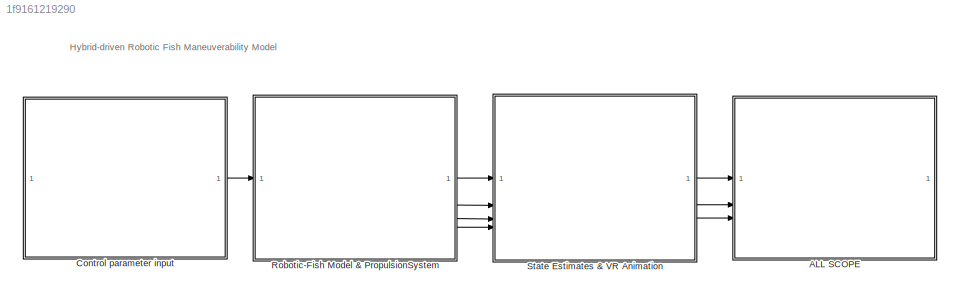
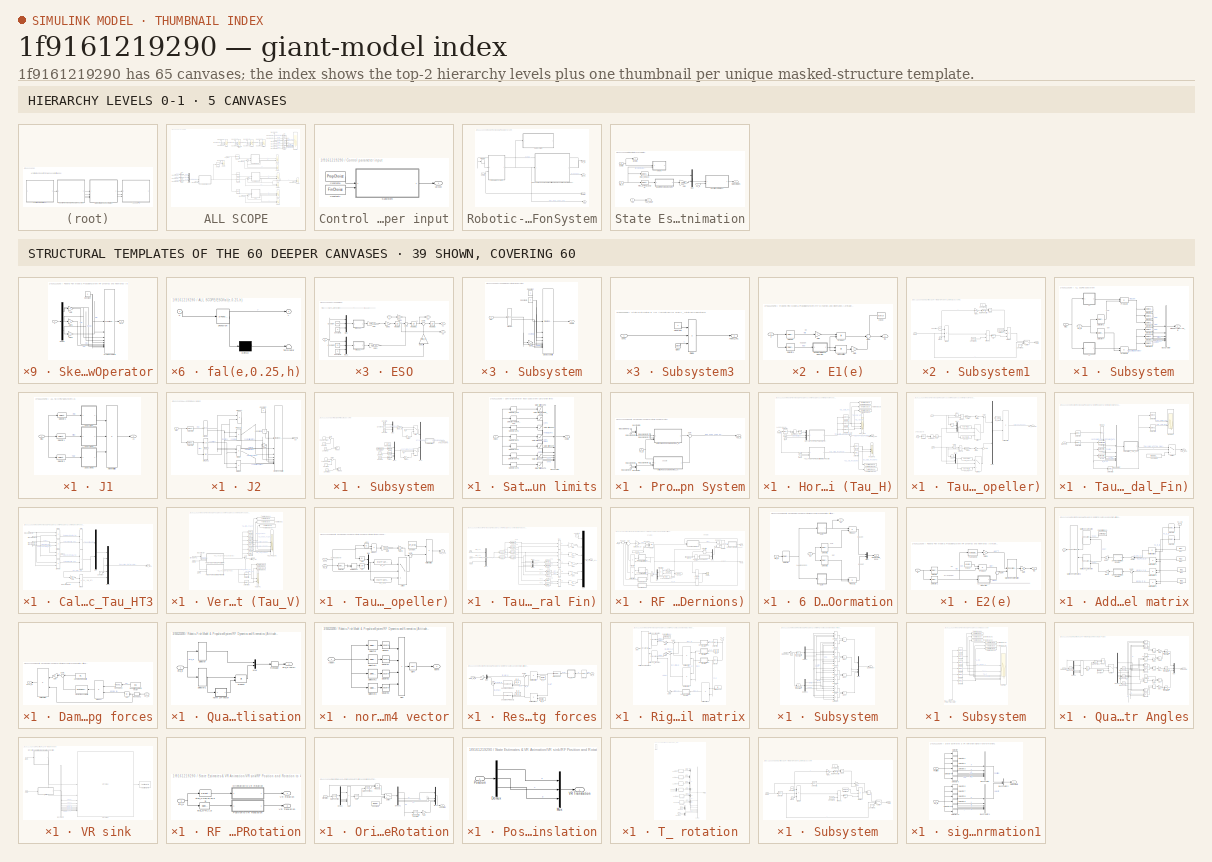
[diagram: thumbnail index - top-2 hierarchy levels (5 canvases) + 39 structural-template representatives of the remaining 60 canvases]
MODEL slx_1f9161219290
KIND model
CONFIG AbsTol = auto
CONFIG EnableMultiTasking = on
CONFIG FixedStep = 0.01
CONFIG MaxStep = auto
CONFIG MinStep = auto
CONFIG RelTol = 1e-3
CONFIG SampleTimeConstraint = Unconstrained
CONFIG SolverName = ode4
CONFIG StartTime = 0.0
CONFIG StopTime = 50
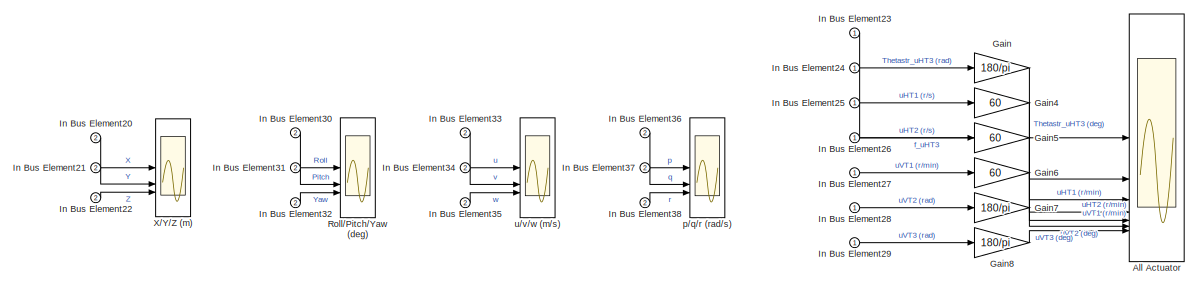
[diagram: ALL SCOPE - part 1/3, top center region]
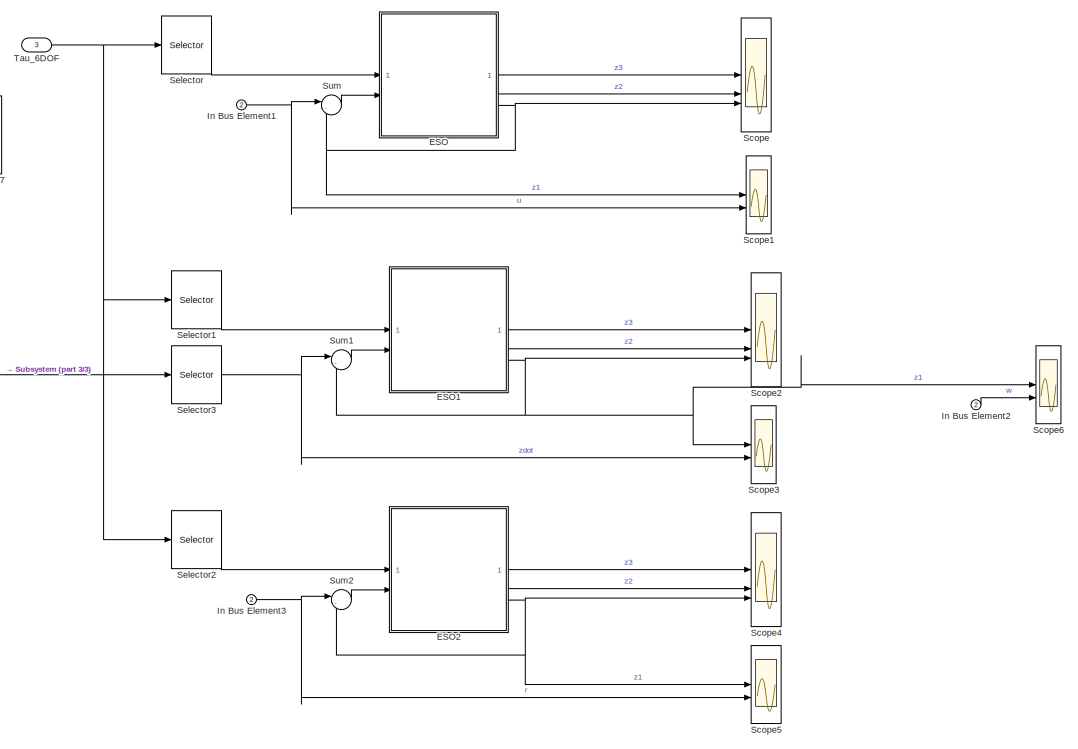
[diagram: ALL SCOPE - part 2/3, middle right region]
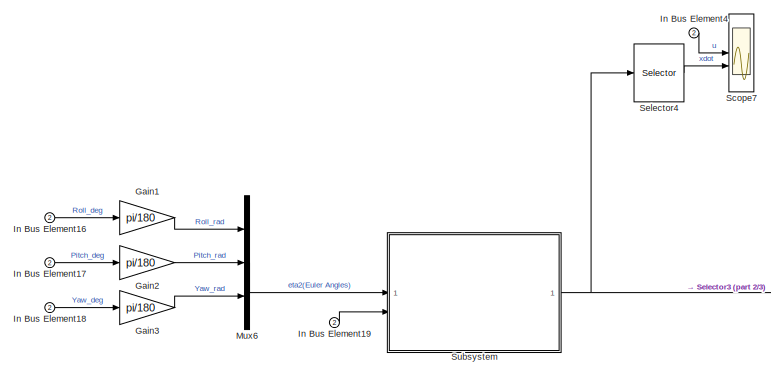
[diagram: ALL SCOPE - part 3/3, middle left region]
BLOCK [SubSystem] ALL SCOPE
BLOCK [Scope] ALL SCOPE/All Actuator
  Floating = off
  NumInputPorts = 7
  ScopeSpecificationString = Simulink.scopes.TimeScopeBlockCfg('CurrentConfiguration', extmgr.ConfigurationSet(extmgr.Configuration('Core','General UI',true,'FigureColor',[1 1 1]),extmgr.Configuration('Core','Source UI',true),extmgr.Configuration('Sources','WiredSimulink',true,'DataLoggingVariableName','ScopeData2'),extmgr.Configuration('Visuals','Time Domain',true,'SerializedDisplays',{struct('MinYLimReal','-1.00000','MaxYLi...<+8622ch>
BLOCK [SubSystem] ALL SCOPE/ESO
  NameLocation = top
BLOCK [Constant] ALL SCOPE/ESO/Constant
  Value = 0.25
BLOCK [Constant] ALL SCOPE/ESO/Constant1
  Value = h
BLOCK [Constant] ALL SCOPE/ESO/Constant2
  Value = 0.5
BLOCK [Constant] ALL SCOPE/ESO/Constant3
  Value = h
BLOCK [Gain] ALL SCOPE/ESO/Gain
  Gain = beta_03
BLOCK [Gain] ALL SCOPE/ESO/Gain1
  Gain = beta_02
BLOCK [Gain] ALL SCOPE/ESO/Gain2
  Gain = beta_01
  NameLocation = right
BLOCK [Gain] ALL SCOPE/ESO/Gain3
  Gain = -1
BLOCK [Gain] ALL SCOPE/ESO/Gain4
  Gain = b0
BLOCK [Integrator] ALL SCOPE/ESO/Integrator
BLOCK [Integrator] ALL SCOPE/ESO/Integrator1
BLOCK [Integrator] ALL SCOPE/ESO/Integrator2
BLOCK [Mux] ALL SCOPE/ESO/Mux
  DisplayOption = bar
  Inputs = [1 1 1]
BLOCK [Mux] ALL SCOPE/ESO/Mux1
  DisplayOption = bar
  Inputs = [1 1 1]
BLOCK [Sum] ALL SCOPE/ESO/Sum
  Inputs = ++-
BLOCK [Sum] ALL SCOPE/ESO/Sum1
  Inputs = |+-
BLOCK [Inport] ALL SCOPE/ESO/e
  Port = 2
BLOCK [SubSystem] ALL SCOPE/ESO/fal(e,0.25,h)
  ErrorFcn = Stateflow.Translate.translate
  PermitHierarchicalResolution = ExplicitOnly
  SFBlockType = MATLAB Function
  TreatAsAtomicUnit = on
BLOCK [Demux] ALL SCOPE/ESO/fal(e,0.25,h)/ Demux 
  Outputs = 1
BLOCK [S-Function] ALL SCOPE/ESO/fal(e,0.25,h)/ SFunction 
  EnableBusSupport = on
  FunctionName = sf_sfun
  PortCounts = [1 2]
  SFcnIsStateOwnerBlock = off
  SFunctionDeploymentMode = off
  Tag = Stateflow S-Function 3
BLOCK [Terminator] ALL SCOPE/ESO/fal(e,0.25,h)/ Terminator 
BLOCK [Inport] ALL SCOPE/ESO/fal(e,0.25,h)/u
BLOCK [Outport] ALL SCOPE/ESO/fal(e,0.25,h)/y
  VectorParamsAs1DForOutWhenUnconnected = off
BLOCK [SubSystem] ALL SCOPE/ESO/fal(e,0.5,h)
  ErrorFcn = Stateflow.Translate.translate
  PermitHierarchicalResolution = ExplicitOnly
  SFBlockType = MATLAB Function
  TreatAsAtomicUnit = on
BLOCK [Demux] ALL SCOPE/ESO/fal(e,0.5,h)/ Demux 
  Outputs = 1
BLOCK [S-Function] ALL SCOPE/ESO/fal(e,0.5,h)/ SFunction 
  EnableBusSupport = on
  FunctionName = sf_sfun
  PortCounts = [1 2]
  SFcnIsStateOwnerBlock = off
  SFunctionDeploymentMode = off
  Tag = Stateflow S-Function 4
BLOCK [Terminator] ALL SCOPE/ESO/fal(e,0.5,h)/ Terminator 
BLOCK [Inport] ALL SCOPE/ESO/fal(e,0.5,h)/u
BLOCK [Outport] ALL SCOPE/ESO/fal(e,0.5,h)/y
  VectorParamsAs1DForOutWhenUnconnected = off
BLOCK [Inport] ALL SCOPE/ESO/u
BLOCK [Outport] ALL SCOPE/ESO/z1
  Port = 3
  VectorParamsAs1DForOutWhenUnconnected = off
BLOCK [Outport] ALL SCOPE/ESO/z2
  Port = 2
  VectorParamsAs1DForOutWhenUnconnected = off
BLOCK [Outport] ALL SCOPE/ESO/z3
  NameLocation = top
  VectorParamsAs1DForOutWhenUnconnected = off
BLOCK [SubSystem] ALL SCOPE/ESO1
  NameLocation = top
BLOCK [Constant] ALL SCOPE/ESO1/Constant
  Value = 0.25
BLOCK [Constant] ALL SCOPE/ESO1/Constant1
  Value = h
BLOCK [Constant] ALL SCOPE/ESO1/Constant2
  Value = 0.5
BLOCK [Constant] ALL SCOPE/ESO1/Constant3
  Value = h
BLOCK [Gain] ALL SCOPE/ESO1/Gain
  Gain = beta_03
BLOCK [Gain] ALL SCOPE/ESO1/Gain1
  Gain = beta_02
BLOCK [Gain] ALL SCOPE/ESO1/Gain2
  Gain = beta_01
  NameLocation = right
BLOCK [Gain] ALL SCOPE/ESO1/Gain3
  Gain = -1
BLOCK [Gain] ALL SCOPE/ESO1/Gain4
  Gain = b0
BLOCK [Integrator] ALL SCOPE/ESO1/Integrator
BLOCK [Integrator] ALL SCOPE/ESO1/Integrator1
BLOCK [Integrator] ALL SCOPE/ESO1/Integrator2
BLOCK [Mux] ALL SCOPE/ESO1/Mux
  DisplayOption = bar
  Inputs = [1 1 1]
BLOCK [Mux] ALL SCOPE/ESO1/Mux1
  DisplayOption = bar
  Inputs = [1 1 1]
BLOCK [Sum] ALL SCOPE/ESO1/Sum
  Inputs = ++-
BLOCK [Sum] ALL SCOPE/ESO1/Sum1
  Inputs = |+-
BLOCK [Inport] ALL SCOPE/ESO1/e
  Port = 2
BLOCK [SubSystem] ALL SCOPE/ESO1/fal(e,0.25,h)
  ErrorFcn = Stateflow.Translate.translate
  PermitHierarchicalResolution = ExplicitOnly
  SFBlockType = MATLAB Function
  TreatAsAtomicUnit = on
BLOCK [Demux] ALL SCOPE/ESO1/fal(e,0.25,h)/ Demux 
  Outputs = 1
BLOCK [S-Function] ALL SCOPE/ESO1/fal(e,0.25,h)/ SFunction 
  EnableBusSupport = on
  FunctionName = sf_sfun
  PortCounts = [1 2]
  SFcnIsStateOwnerBlock = off
  SFunctionDeploymentMode = off
  Tag = Stateflow S-Function 1
BLOCK [Terminator] ALL SCOPE/ESO1/fal(e,0.25,h)/ Terminator 
BLOCK [Inport] ALL SCOPE/ESO1/fal(e,0.25,h)/u
BLOCK [Outport] ALL SCOPE/ESO1/fal(e,0.25,h)/y
  VectorParamsAs1DForOutWhenUnconnected = off
BLOCK [SubSystem] ALL SCOPE/ESO1/fal(e,0.5,h)
  ErrorFcn = Stateflow.Translate.translate
  PermitHierarchicalResolution = ExplicitOnly
  SFBlockType = MATLAB Function
  TreatAsAtomicUnit = on
BLOCK [Demux] ALL SCOPE/ESO1/fal(e,0.5,h)/ Demux 
  Outputs = 1
BLOCK [S-Function] ALL SCOPE/ESO1/fal(e,0.5,h)/ SFunction 
  EnableBusSupport = on
  FunctionName = sf_sfun
  PortCounts = [1 2]
  SFcnIsStateOwnerBlock = off
  SFunctionDeploymentMode = off
  Tag = Stateflow S-Function 2
BLOCK [Terminator] ALL SCOPE/ESO1/fal(e,0.5,h)/ Terminator 
BLOCK [Inport] ALL SCOPE/ESO1/fal(e,0.5,h)/u
BLOCK [Outport] ALL SCOPE/ESO1/fal(e,0.5,h)/y
  VectorParamsAs1DForOutWhenUnconnected = off
BLOCK [Inport] ALL SCOPE/ESO1/u
BLOCK [Outport] ALL SCOPE/ESO1/z1
  Port = 3
  VectorParamsAs1DForOutWhenUnconnected = off
BLOCK [Outport] ALL SCOPE/ESO1/z2
  Port = 2
  VectorParamsAs1DForOutWhenUnconnected = off
BLOCK [Outport] ALL SCOPE/ESO1/z3
  NameLocation = top
  VectorParamsAs1DForOutWhenUnconnected = off
BLOCK [SubSystem] ALL SCOPE/ESO2
  NameLocation = top
BLOCK [Constant] ALL SCOPE/ESO2/Constant
  Value = 0.25
BLOCK [Constant] ALL SCOPE/ESO2/Constant1
  Value = h
BLOCK [Constant] ALL SCOPE/ESO2/Constant2
  Value = 0.5
BLOCK [Constant] ALL SCOPE/ESO2/Constant3
  Value = h
BLOCK [Gain] ALL SCOPE/ESO2/Gain
  Gain = beta_03
BLOCK [Gain] ALL SCOPE/ESO2/Gain1
  Gain = beta_02
BLOCK [Gain] ALL SCOPE/ESO2/Gain2
  Gain = beta_01
  NameLocation = right
BLOCK [Gain] ALL SCOPE/ESO2/Gain3
  Gain = -1
BLOCK [Gain] ALL SCOPE/ESO2/Gain4
  Gain = b0
BLOCK [Integrator] ALL SCOPE/ESO2/Integrator
BLOCK [Integrator] ALL SCOPE/ESO2/Integrator1
BLOCK [Integrator] ALL SCOPE/ESO2/Integrator2
BLOCK [Mux] ALL SCOPE/ESO2/Mux
  DisplayOption = bar
  Inputs = [1 1 1]
BLOCK [Mux] ALL SCOPE/ESO2/Mux1
  DisplayOption = bar
  Inputs = [1 1 1]
BLOCK [Sum] ALL SCOPE/ESO2/Sum
  Inputs = ++-
BLOCK [Sum] ALL SCOPE/ESO2/Sum1
  Inputs = |+-
BLOCK [Inport] ALL SCOPE/ESO2/e
  Port = 2
BLOCK [SubSystem] ALL SCOPE/ESO2/fal(e,0.25,h)
  ErrorFcn = Stateflow.Translate.translate
  PermitHierarchicalResolution = ExplicitOnly
  SFBlockType = MATLAB Function
  TreatAsAtomicUnit = on
BLOCK [Demux] ALL SCOPE/ESO2/fal(e,0.25,h)/ Demux 
  Outputs = 1
BLOCK [S-Function] ALL SCOPE/ESO2/fal(e,0.25,h)/ SFunction 
  EnableBusSupport = on
  FunctionName = sf_sfun
  PortCounts = [1 2]
  SFcnIsStateOwnerBlock = off
  SFunctionDeploymentMode = off
  Tag = Stateflow S-Function 5
BLOCK [Terminator] ALL SCOPE/ESO2/fal(e,0.25,h)/ Terminator 
BLOCK [Inport] ALL SCOPE/ESO2/fal(e,0.25,h)/u
BLOCK [Outport] ALL SCOPE/ESO2/fal(e,0.25,h)/y
  VectorParamsAs1DForOutWhenUnconnected = off
BLOCK [SubSystem] ALL SCOPE/ESO2/fal(e,0.5,h)
  ErrorFcn = Stateflow.Translate.translate
  PermitHierarchicalResolution = ExplicitOnly
  SFBlockType = MATLAB Function
  TreatAsAtomicUnit = on
BLOCK [Demux] ALL SCOPE/ESO2/fal(e,0.5,h)/ Demux 
  Outputs = 1
BLOCK [S-Function] ALL SCOPE/ESO2/fal(e,0.5,h)/ SFunction 
  EnableBusSupport = on
  FunctionName = sf_sfun
  PortCounts = [1 2]
  SFcnIsStateOwnerBlock = off
  SFunctionDeploymentMode = off
  Tag = Stateflow S-Function 6
BLOCK [Terminator] ALL SCOPE/ESO2/fal(e,0.5,h)/ Terminator 
BLOCK [Inport] ALL SCOPE/ESO2/fal(e,0.5,h)/u
BLOCK [Outport] ALL SCOPE/ESO2/fal(e,0.5,h)/y
  VectorParamsAs1DForOutWhenUnconnected = off
BLOCK [Inport] ALL SCOPE/ESO2/u
BLOCK [Outport] ALL SCOPE/ESO2/z1
  Port = 3
  VectorParamsAs1DForOutWhenUnconnected = off
BLOCK [Outport] ALL SCOPE/ESO2/z2
  Port = 2
  VectorParamsAs1DForOutWhenUnconnected = off
BLOCK [Outport] ALL SCOPE/ESO2/z3
  NameLocation = top
  VectorParamsAs1DForOutWhenUnconnected = off
BLOCK [Gain] ALL SCOPE/Gain
  Gain = 180/pi
BLOCK [Gain] ALL SCOPE/Gain1
  Gain = pi/180
BLOCK [Gain] ALL SCOPE/Gain2
  Gain = pi/180
BLOCK [Gain] ALL SCOPE/Gain3
  Gain = pi/180
BLOCK [Gain] ALL SCOPE/Gain4
  Gain = 60
BLOCK [Gain] ALL SCOPE/Gain5
  Gain = 60
BLOCK [Gain] ALL SCOPE/Gain6
  Gain = 60
BLOCK [Gain] ALL SCOPE/Gain7
  Gain = 180/pi
BLOCK [Gain] ALL SCOPE/Gain8
  Gain = 180/pi
BLOCK [Inport] ALL SCOPE/In Bus Element1
  Port = 2
BLOCK [Inport] ALL SCOPE/In Bus Element16
  Port = 2
BLOCK [Inport] ALL SCOPE/In Bus Element17
  Port = 2
BLOCK [Inport] ALL SCOPE/In Bus Element18
  Port = 2
BLOCK [Inport] ALL SCOPE/In Bus Element19
  Port = 2
BLOCK [Inport] ALL SCOPE/In Bus Element2
  Port = 2
BLOCK [Inport] ALL SCOPE/In Bus Element20
  Port = 2
BLOCK [Inport] ALL SCOPE/In Bus Element21
  Port = 2
BLOCK [Inport] ALL SCOPE/In Bus Element22
  Port = 2
BLOCK [Inport] ALL SCOPE/In Bus Element23
BLOCK [Inport] ALL SCOPE/In Bus Element24
BLOCK [Inport] ALL SCOPE/In Bus Element25
BLOCK [Inport] ALL SCOPE/In Bus Element26
BLOCK [Inport] ALL SCOPE/In Bus Element27
BLOCK [Inport] ALL SCOPE/In Bus Element28
BLOCK [Inport] ALL SCOPE/In Bus Element29
BLOCK [Inport] ALL SCOPE/In Bus Element3
  Port = 2
BLOCK [Inport] ALL SCOPE/In Bus Element30
  Port = 2
BLOCK [Inport] ALL SCOPE/In Bus Element31
  Port = 2
BLOCK [Inport] ALL SCOPE/In Bus Element32
  Port = 2
BLOCK [Inport] ALL SCOPE/In Bus Element33
  Port = 2
BLOCK [Inport] ALL SCOPE/In Bus Element34
  Port = 2
BLOCK [Inport] ALL SCOPE/In Bus Element35
  Port = 2
BLOCK [Inport] ALL SCOPE/In Bus Element36
  Port = 2
BLOCK [Inport] ALL SCOPE/In Bus Element37
  Port = 2
BLOCK [Inport] ALL SCOPE/In Bus Element38
  Port = 2
BLOCK [Inport] ALL SCOPE/In Bus Element4
  Port = 2
BLOCK [Mux] ALL SCOPE/Mux6
  DisplayOption = bar
  Inputs = 3
BLOCK [Scope] ALL SCOPE/Roll//Pitch//Yaw (deg)
  Floating = off
  NameLocation = top
  NumInputPorts = 3
  ScopeSpecificationString = Simulink.scopes.TimeScopeBlockCfg('CurrentConfiguration', extmgr.ConfigurationSet(extmgr.Configuration('Core','General UI',true,'FigureColor',[1 1 1]),extmgr.Configuration('Core','Source UI',true),extmgr.Configuration('Sources','WiredSimulink',true,'DataLoggingVariableName','ScopeData1'),extmgr.Configuration('Visuals','Time Domain',true,'SerializedDisplays',{struct('MinYLimReal','-224.96762','MaxY...<+2331ch>
BLOCK [Scope] ALL SCOPE/Scope
  Floating = off
  NumInputPorts = 3
  ScopeSpecificationString = Simulink.scopes.TimeScopeBlockCfg('CurrentConfiguration', extmgr.ConfigurationSet(extmgr.Configuration('Core','General UI',true),extmgr.Configuration('Core','Source UI',true),extmgr.Configuration('Sources','WiredSimulink',true,'DataLoggingVariableName','ScopeData1'),extmgr.Configuration('Visuals','Time Domain',true,'SerializedDisplays',{struct('MinYLimReal','-74.30046','MaxYLimReal','56.08261','YL...<+1501ch>
BLOCK [Scope] ALL SCOPE/Scope1
  Floating = off
  NumInputPorts = 2
  ScopeSpecificationString = Simulink.scopes.TimeScopeBlockCfg('CurrentConfiguration', extmgr.ConfigurationSet(extmgr.Configuration('Core','General UI',true),extmgr.Configuration('Core','Source UI',true),extmgr.Configuration('Sources','WiredSimulink',true,'DataLoggingVariableName','ScopeData2'),extmgr.Configuration('Visuals','Time Domain',true,'SerializedDisplays',{struct('MinYLimReal','-0.53008','MaxYLimReal','0.99288','YLab...<+1468ch>
BLOCK [Scope] ALL SCOPE/Scope2
  Floating = off
  NumInputPorts = 3
  ScopeSpecificationString = Simulink.scopes.TimeScopeBlockCfg('CurrentConfiguration', extmgr.ConfigurationSet(extmgr.Configuration('Core','General UI',true),extmgr.Configuration('Core','Source UI',true),extmgr.Configuration('Sources','WiredSimulink',true,'DataLoggingVariableName','ScopeData3'),extmgr.Configuration('Visuals','Time Domain',true,'SerializedDisplays',{struct('MinYLimReal','-3.74047','MaxYLimReal','0.6219','YLabe...<+1425ch>
BLOCK [Scope] ALL SCOPE/Scope3
  Floating = off
  NumInputPorts = 2
  ScopeSpecificationString = Simulink.scopes.TimeScopeBlockCfg('CurrentConfiguration', extmgr.ConfigurationSet(extmgr.Configuration('Core','General UI',true),extmgr.Configuration('Core','Source UI',true),extmgr.Configuration('Sources','WiredSimulink',true,'DataLoggingVariableName','ScopeData4'),extmgr.Configuration('Visuals','Time Domain',true,'SerializedDisplays',{struct('MinYLimReal','-0.02321','MaxYLimReal','0.20887','YLab...<+1471ch>
BLOCK [Scope] ALL SCOPE/Scope4
  Floating = off
  NumInputPorts = 3
  ScopeSpecificationString = Simulink.scopes.TimeScopeBlockCfg('CurrentConfiguration', extmgr.ConfigurationSet(extmgr.Configuration('Core','General UI',true),extmgr.Configuration('Core','Source UI',true),extmgr.Configuration('Sources','WiredSimulink',true,'DataLoggingVariableName','ScopeData5'),extmgr.Configuration('Visuals','Time Domain',true,'SerializedDisplays',{struct('MinYLimReal','-118.5864','MaxYLimReal','117.7448','YL...<+1503ch>
BLOCK [Scope] ALL SCOPE/Scope5
  Floating = off
  NumInputPorts = 2
  ScopeSpecificationString = Simulink.scopes.TimeScopeBlockCfg('CurrentConfiguration', extmgr.ConfigurationSet(extmgr.Configuration('Core','General UI',true),extmgr.Configuration('Core','Source UI',true),extmgr.Configuration('Sources','WiredSimulink',true,'DataLoggingVariableName','ScopeData6'),extmgr.Configuration('Visuals','Time Domain',true,'SerializedDisplays',{struct('MinYLimReal','-1.56243','MaxYLimReal','1.4549','YLabe...<+1466ch>
BLOCK [Scope] ALL SCOPE/Scope6
  Floating = off
  NumInputPorts = 2
  ScopeSpecificationString = Simulink.scopes.TimeScopeBlockCfg('CurrentConfiguration', extmgr.ConfigurationSet(extmgr.Configuration('Core','General UI',true),extmgr.Configuration('Core','Source UI',true),extmgr.Configuration('Sources','WiredSimulink',true,'DataLoggingVariableName','ScopeData1'),extmgr.Configuration('Visuals','Time Domain',true,'SerializedDisplays',{struct('MinYLimReal','-0.02321','MaxYLimReal','0.20887','YLab...<+1468ch>
BLOCK [Scope] ALL SCOPE/Scope7
  Floating = off
  NumInputPorts = 2
  ScopeSpecificationString = Simulink.scopes.TimeScopeBlockCfg('CurrentConfiguration', extmgr.ConfigurationSet(extmgr.Configuration('Core','General UI',true),extmgr.Configuration('Core','Source UI',true),extmgr.Configuration('Sources','WiredSimulink',true,'DataLoggingVariableName','ScopeData2'),extmgr.Configuration('Visuals','Time Domain',true,'SerializedDisplays',{struct('MinYLimReal','-0.27838','MaxYLimReal','0.34035','YLab...<+1470ch>
BLOCK [Selector] ALL SCOPE/Selector
  IndexOptions = Index vector (dialog)
  Indices = [1]
  InputPortWidth = 6
  OutputSizes = 1
BLOCK [Selector] ALL SCOPE/Selector1
  IndexOptions = Index vector (dialog)
  Indices = [3]
  InputPortWidth = 6
  OutputSizes = 1
BLOCK [Selector] ALL SCOPE/Selector2
  IndexOptions = Index vector (dialog)
  Indices = [6]
  InputPortWidth = 6
  OutputSizes = 1
BLOCK [Selector] ALL SCOPE/Selector3
  IndexOptions = Index vector (dialog)
  Indices = [3]
  InputPortWidth = 6
  OutputSizes = 1
BLOCK [Selector] ALL SCOPE/Selector4
  IndexOptions = Index vector (dialog)
  Indices = [1]
  InputPortWidth = 6
  OutputSizes = 1
BLOCK [SubSystem] ALL SCOPE/Subsystem
BLOCK [BusCreator] ALL SCOPE/Subsystem/Bus Creator
  DisplayOption = bar
  InheritFromInputs = on
  Inputs = 6
  NameLocation = left
BLOCK [SubSystem] ALL SCOPE/Subsystem/J1
BLOCK [Outport] ALL SCOPE/Subsystem/J1/J1
BLOCK [Product] ALL SCOPE/Subsystem/J1/Matrix Multiply
  Inputs = 3
  Multiplication = Matrix(*)
BLOCK [Selector] ALL SCOPE/Subsystem/J1/Selector1
  IndexOptions = Index vector (dialog)
  Indices = [2]
  InputPortWidth = 3
  OutputSizes = 1
BLOCK [Selector] ALL SCOPE/Subsystem/J1/Selector2
  IndexOptions = Index vector (dialog)
  Indices = [3]
  InputPortWidth = 3
  OutputSizes = 1
BLOCK [Selector] ALL SCOPE/Subsystem/J1/Selector3
  IndexOptions = Index vector (dialog)
  Indices = [1]
  InputPortWidth = 3
  OutputSizes = 1
BLOCK [SubSystem] ALL SCOPE/Subsystem/J1/Subsystem
BLOCK [Constant] ALL SCOPE/Subsystem/J1/Subsystem/Constant
BLOCK [Constant] ALL SCOPE/Subsystem/J1/Subsystem/Constant1
  Value = 0
BLOCK [Reference] ALL SCOPE/Subsystem/J1/Subsystem/Create 3x3 Matrix  REF=sharedutil/Create 3x3 Matrix
  SourceBlock = sharedutil/Create 3x3 Matrix
  SourceType = Create 3x3 Matrix
BLOCK [Outport] ALL SCOPE/Subsystem/J1/Subsystem/Cx,Roll
BLOCK [Gain] ALL SCOPE/Subsystem/J1/Subsystem/Gain
  Gain = -1
BLOCK [Inport] ALL SCOPE/Subsystem/J1/Subsystem/Roll
BLOCK [Trigonometry] ALL SCOPE/Subsystem/J1/Subsystem/SinCos
  Operator = sincos
BLOCK [SubSystem] ALL SCOPE/Subsystem/J1/Subsystem1
BLOCK [Constant] ALL SCOPE/Subsystem/J1/Subsystem1/Constant
BLOCK [Constant] ALL SCOPE/Subsystem/J1/Subsystem1/Constant1
  Value = 0
BLOCK [Reference] ALL SCOPE/Subsystem/J1/Subsystem1/Create 3x3 Matrix  REF=sharedutil/Create 3x3 Matrix
  SourceBlock = sharedutil/Create 3x3 Matrix
  SourceType = Create 3x3 Matrix
BLOCK [Outport] ALL SCOPE/Subsystem/J1/Subsystem1/Cy,Pitch
BLOCK [Gain] ALL SCOPE/Subsystem/J1/Subsystem1/Gain
  Gain = -1
BLOCK [Inport] ALL SCOPE/Subsystem/J1/Subsystem1/Pitch
BLOCK [Trigonometry] ALL SCOPE/Subsystem/J1/Subsystem1/SinCos
  Operator = sincos
BLOCK [SubSystem] ALL SCOPE/Subsystem/J1/Subsystem2
BLOCK [Constant] ALL SCOPE/Subsystem/J1/Subsystem2/Constant
BLOCK [Constant] ALL SCOPE/Subsystem/J1/Subsystem2/Constant1
  Value = 0
BLOCK [Reference] ALL SCOPE/Subsystem/J1/Subsystem2/Create 3x3 Matrix  REF=sharedutil/Create 3x3 Matrix
  SourceBlock = sharedutil/Create 3x3 Matrix
  SourceType = Create 3x3 Matrix
BLOCK [Outport] ALL SCOPE/Subsystem/J1/Subsystem2/Cz,Yaw
BLOCK [Gain] ALL SCOPE/Subsystem/J1/Subsystem2/Gain
  Gain = -1
BLOCK [Trigonometry] ALL SCOPE/Subsystem/J1/Subsystem2/SinCos
  Operator = sincos
BLOCK [Inport] ALL SCOPE/Subsystem/J1/Subsystem2/Yaw
BLOCK [Inport] ALL SCOPE/Subsystem/J1/eta2
BLOCK [SubSystem] ALL SCOPE/Subsystem/J2
BLOCK [Constant] ALL SCOPE/Subsystem/J2/Constant
BLOCK [Constant] ALL SCOPE/Subsystem/J2/Constant1
  Value = 0
BLOCK [Reference] ALL SCOPE/Subsystem/J2/Create 3x3 Matrix  REF=sharedutil/Create 3x3 Matrix
  SourceBlock = sharedutil/Create 3x3 Matrix
  SourceType = Create 3x3 Matrix
BLOCK [Product] ALL SCOPE/Subsystem/J2/Divide
  Inputs = */
BLOCK [Product] ALL SCOPE/Subsystem/J2/Divide1
  Inputs = */
BLOCK [Gain] ALL SCOPE/Subsystem/J2/Gain
  Gain = -1
BLOCK [Outport] ALL SCOPE/Subsystem/J2/J2
BLOCK [Product] ALL SCOPE/Subsystem/J2/Product
BLOCK [Product] ALL SCOPE/Subsystem/J2/Product1
BLOCK [Selector] ALL SCOPE/Subsystem/J2/Selector1
  IndexOptions = Index vector (dialog)
  Indices = [2]
  InputPortWidth = 3
  OutputSizes = 1
BLOCK [Selector] ALL SCOPE/Subsystem/J2/Selector3
  IndexOptions = Index vector (dialog)
  Indices = [1]
  InputPortWidth = 3
  OutputSizes = 1
BLOCK [Trigonometry] ALL SCOPE/Subsystem/J2/SinCos
  Operator = sincos
BLOCK [Trigonometry] ALL SCOPE/Subsystem/J2/SinCos1
  Operator = tan
BLOCK [Trigonometry] ALL SCOPE/Subsystem/J2/SinCos2
  Operator = cos
BLOCK [Inport] ALL SCOPE/Subsystem/J2/eta2
BLOCK [Product] ALL SCOPE/Subsystem/Product2
  Inputs = **
  Multiplication = Matrix(*)
  OutDataTypeStr = Inherit: Same as first input
  SaturateOnIntegerOverflow = on
BLOCK [Product] ALL SCOPE/Subsystem/Product3
  Inputs = **
  Multiplication = Matrix(*)
  OutDataTypeStr = Inherit: Same as first input
  SaturateOnIntegerOverflow = on
BLOCK [Selector] ALL SCOPE/Subsystem/Selector1
  IndexOptions = Index vector (dialog)
  Indices = [2]
  InputPortWidth = 3
  OutputSizes = 1
BLOCK [Selector] ALL SCOPE/Subsystem/Selector2
  IndexOptions = Index vector (dialog)
  Indices = [1 2 3]
  InputPortWidth = 6
  OutputSizes = 1
BLOCK [Selector] ALL SCOPE/Subsystem/Selector3
  IndexOptions = Index vector (dialog)
  Indices = [1]
  InputPortWidth = 3
  OutputSizes = 1
BLOCK [Selector] ALL SCOPE/Subsystem/Selector4
  IndexOptions = Index vector (dialog)
  Indices = [4 5 6]
  InputPortWidth = 6
  OutputSizes = 1
BLOCK [Selector] ALL SCOPE/Subsystem/Selector5
  IndexOptions = Index vector (dialog)
  Indices = [3]
  InputPortWidth = 3
  OutputSizes = 1
BLOCK [Selector] ALL SCOPE/Subsystem/Selector6
  IndexOptions = Index vector (dialog)
  Indices = [1]
  InputPortWidth = 3
  OutputSizes = 1
BLOCK [Selector] ALL SCOPE/Subsystem/Selector7
  IndexOptions = Index vector (dialog)
  Indices = [2]
  InputPortWidth = 3
  OutputSizes = 1
BLOCK [Selector] ALL SCOPE/Subsystem/Selector8
  IndexOptions = Index vector (dialog)
  Indices = [3]
  InputPortWidth = 3
  OutputSizes = 1
BLOCK [Inport] ALL SCOPE/Subsystem/eta2
BLOCK [Outport] ALL SCOPE/Subsystem/etadot = J(eta2)*nu_B
BLOCK [Inport] ALL SCOPE/Subsystem/nu_B
  Port = 2
BLOCK [Sum] ALL SCOPE/Sum
  Inputs = |-+
BLOCK [Sum] ALL SCOPE/Sum1
  Inputs = |-+
BLOCK [Sum] ALL SCOPE/Sum2
  Inputs = |-+
BLOCK [Inport] ALL SCOPE/Tau_6DOF
  Port = 3
BLOCK [Scope] ALL SCOPE/X//Y//Z (m)
  Floating = off
  NameLocation = top
  NumInputPorts = 3
  ScopeSpecificationString = Simulink.scopes.TimeScopeBlockCfg('CurrentConfiguration', extmgr.ConfigurationSet(extmgr.Configuration('Core','General UI',true,'FigureColor',[1 1 1]),extmgr.Configuration('Core','Source UI',true),extmgr.Configuration('Sources','WiredSimulink',true,'DataLoggingVariableName','ScopeData3'),extmgr.Configuration('Visuals','Time Domain',true,'SerializedDisplays',{struct('MinYLimReal','-0.00594','MaxYLi...<+2282ch>
BLOCK [Scope] ALL SCOPE/p//q//r (rad//s)
  Floating = off
  NameLocation = top
  NumInputPorts = 3
  ScopeSpecificationString = Simulink.scopes.TimeScopeBlockCfg('CurrentConfiguration', extmgr.ConfigurationSet(extmgr.Configuration('Core','General UI',true,'FigureColor',[1 1 1]),extmgr.Configuration('Core','Source UI',true),extmgr.Configuration('Sources','WiredSimulink',true,'DataLoggingVariableName','ScopeData2'),extmgr.Configuration('Visuals','Time Domain',true,'SerializedDisplays',{struct('MinYLimReal','-1.549','MaxYLimR...<+2249ch>
BLOCK [Scope] ALL SCOPE/u//v//w (m//s)
  Floating = off
  NameLocation = top
  NumInputPorts = 3
  ScopeSpecificationString = Simulink.scopes.TimeScopeBlockCfg('CurrentConfiguration', extmgr.ConfigurationSet(extmgr.Configuration('Core','General UI',true,'FigureColor',[1 1 1]),extmgr.Configuration('Core','Source UI',true),extmgr.Configuration('Sources','WiredSimulink',true,'DataLoggingVariableName','ScopeData4'),extmgr.Configuration('Visuals','Time Domain',true,'SerializedDisplays',{struct('MinYLimReal','-0.14668','MaxYLi...<+2309ch>
BLOCK [SubSystem] Control parameter input
BLOCK [Constant] Control parameter input/Constant7
  Value = FinChoice
BLOCK [Constant] Control parameter input/Constant8
  Value = PropChoice
BLOCK [SubSystem] Control parameter input/Subsystem
BLOCK [Constant] Control parameter input/Subsystem/Constant
  Commented = on
BLOCK [Constant] Control parameter input/Subsystem/Constant1
  Commented = on
BLOCK [Constant] Control parameter input/Subsystem/Constant15
  Value = f_HT3
BLOCK [Constant] Control parameter input/Subsystem/Constant16
  Value = Thetastr_HT3
BLOCK [Constant] Control parameter input/Subsystem/Constant17
  Commented = on
  Value = uVT2
BLOCK [Constant] Control parameter input/Subsystem/Constant18
  Commented = on
  Value = uVT3
BLOCK [Constant] Control parameter input/Subsystem/Constant2
  Value = uVT3
BLOCK [Constant] Control parameter input/Subsystem/Constant3
  Value = uVT2
BLOCK [Constant] Control parameter input/Subsystem/Constant4
  Value = uVT1
BLOCK [Constant] Control parameter input/Subsystem/Constant5
  Value = uHT1
BLOCK [Constant] Control parameter input/Subsystem/Constant6
  Value = uHT2
BLOCK [Gain] Control parameter input/Subsystem/Gain10
  Gain = pi/180
BLOCK [Gain] Control parameter input/Subsystem/Gain11
  Gain = 0
BLOCK [Gain] Control parameter input/Subsystem/Gain7
  Gain = 0
BLOCK [Gain] Control parameter input/Subsystem/Gain8
  Gain = pi/180
BLOCK [Gain] Control parameter input/Subsystem/Gain9
  Gain = pi/180
BLOCK [Inport] Control parameter input/Subsystem/In1
BLOCK [Inport] Control parameter input/Subsystem/In2
  Port = 2
BLOCK [Mux] Control parameter input/Subsystem/Mux1
  DisplayOption = bar
  Inputs = 3
BLOCK [Mux] Control parameter input/Subsystem/Mux2
  DisplayOption = bar
  Inputs = 2
BLOCK [Mux] Control parameter input/Subsystem/Mux3
  DisplayOption = bar
BLOCK [Product] Control parameter input/Subsystem/Product
  Commented = on
BLOCK [Product] Control parameter input/Subsystem/Product1
  Commented = on
BLOCK [DiscretePulseGenerator] Control parameter input/Subsystem/Pulse Generator
  Amplitude = 2
  Commented = on
  Period = 100
  PulseType = Time based
  PulseWidth = 50
BLOCK [DiscretePulseGenerator] Control parameter input/Subsystem/Pulse Generator1
  Amplitude = 2
  Commented = on
  Period = 100
  PulseType = Time based
  PulseWidth = 50
BLOCK [SubSystem] Control parameter input/Subsystem/Saturation limits
BLOCK [BusCreator] Control parameter input/Subsystem/Saturation limits/Bus Creator
  DisplayOption = bar
  InheritFromInputs = on
  Inputs = 7
BLOCK [Inport] Control parameter input/Subsystem/Saturation limits/InBus
BLOCK [Saturate] Control parameter input/Subsystem/Saturation limits/Saturation Thetastr_HT3
  LowerLimit = -pi/4
  UpperLimit = pi/4
BLOCK [Saturate] Control parameter input/Subsystem/Saturation limits/Saturation f_HT3
  LowerLimit = 0
  UpperLimit = 2
BLOCK [Saturate] Control parameter input/Subsystem/Saturation limits/Saturation uHT1
  LowerLimit = -30
  UpperLimit = 30
BLOCK [Saturate] Control parameter input/Subsystem/Saturation limits/Saturation uHT2
  LowerLimit = -30
  UpperLimit = 30
BLOCK [Saturate] Control parameter input/Subsystem/Saturation limits/Saturation uVT1
  LowerLimit = -15
  UpperLimit = 15
BLOCK [Saturate] Control parameter input/Subsystem/Saturation limits/Saturation uVT2
  LowerLimit = -pi/3
  UpperLimit = pi/3
BLOCK [Saturate] Control parameter input/Subsystem/Saturation limits/Saturation uVT3
  LowerLimit = -pi/3
  UpperLimit = pi/3
BLOCK [Selector] Control parameter input/Subsystem/Saturation limits/Selector Thetastr_HT3
  IndexOptions = Index vector (dialog)
  Indices = [5]
  InputPortWidth = 7
  OutputSizes = 1
BLOCK [Selector] Control parameter input/Subsystem/Saturation limits/Selector f_HT3
  IndexOptions = Index vector (dialog)
  Indices = [4]
  InputPortWidth = 7
  OutputSizes = 1
BLOCK [Selector] Control parameter input/Subsystem/Saturation limits/Selector uHT1
  IndexOptions = Index vector (dialog)
  Indices = [1]
  InputPortWidth = 7
  OutputSizes = 1
BLOCK [Selector] Control parameter input/Subsystem/Saturation limits/Selector uHT2
  IndexOptions = Index vector (dialog)
  Indices = [2]
  InputPortWidth = 7
  OutputSizes = 1
BLOCK [Selector] Control parameter input/Subsystem/Saturation limits/Selector uVT1
  IndexOptions = Index vector (dialog)
  Indices = [3]
  InputPortWidth = 7
  OutputSizes = 1
BLOCK [Selector] Control parameter input/Subsystem/Saturation limits/Selector uVT3
  IndexOptions = Index vector (dialog)
  Indices = [7]
  InputPortWidth = 7
  OutputSizes = 1
BLOCK [Selector] Control parameter input/Subsystem/Saturation limits/Selector5 uVT2
  IndexOptions = Index vector (dialog)
  Indices = [6]
  InputPortWidth = 7
  OutputSizes = 1
BLOCK [Outport] Control parameter input/Subsystem/Saturation limits/uCMD
  VectorParamsAs1DForOutWhenUnconnected = off
BLOCK [Sum] Control parameter input/Subsystem/Sum
  Commented = on
  Inputs = |+-
BLOCK [Sum] Control parameter input/Subsystem/Sum1
  Commented = on
  Inputs = |+-
BLOCK [Switch] Control parameter input/Subsystem/Switch
  Criteria = u2 > Threshold
  InputSameDT = off
  SaturateOnIntegerOverflow = off
BLOCK [Switch] Control parameter input/Subsystem/Switch1
  Criteria = u2 > Threshold
  InputSameDT = off
  SaturateOnIntegerOverflow = off
BLOCK [Outport] Control parameter input/Subsystem/f_HT3 Thetastr_HT3 uHT1 uHT2 uVT1 uVT2 uVT3
BLOCK [Gain] Control parameter input/Subsystem/rpm_to_rps
  Gain = 1/60
BLOCK [Outport] Control parameter input/uCMD
  VectorParamsAs1DForOutWhenUnconnected = off
BLOCK [SubSystem] Robotic-Fish Model & PropulsionSystem
BLOCK [Memory] Robotic-Fish Model & PropulsionSystem/Memory
BLOCK [SubSystem] Robotic-Fish Model & PropulsionSystem/Propulsion System
BLOCK [BusCreator] Robotic-Fish Model & PropulsionSystem/Propulsion System/Bus Creator
  DisplayOption = bar
  InheritFromInputs = on
  Inputs = 2
BLOCK [BusCreator] Robotic-Fish Model & PropulsionSystem/Propulsion System/Bus Creator1
  DisplayOption = bar
  InheritFromInputs = on
  Inputs = 2
BLOCK [SubSystem] Robotic-Fish Model & PropulsionSystem/Propulsion System/Horizontal Force and Moment (Tau_H)
BLOCK [DotProduct] Robotic-Fish Model & PropulsionSystem/Propulsion System/Horizontal Force and Moment (Tau_H)/Dot Product
  OutDataTypeStr = Inherit: Inherit via internal rule
BLOCK [Scope] Robotic-Fish Model & PropulsionSystem/Propulsion System/Horizontal Force and Moment (Tau_H)/HT1&HT2
  Floating = off
  NameLocation = right
  NumInputPorts = 2
  ScopeSpecificationString = Simulink.scopes.TimeScopeBlockCfg('CurrentConfiguration', extmgr.ConfigurationSet(extmgr.Configuration('Core','General UI',true,'FigureColor',[1 1 1]),extmgr.Configuration('Core','Source UI',true),extmgr.Configuration('Sources','WiredSimulink',true,'DataLoggingVariableName','ScopeData1'),extmgr.Configuration('Visuals','Time Domain',true,'SerializedDisplays',{struct('MinYLimReal','-2.20788','MaxYLi...<+2650ch>
BLOCK [Outport] Robotic-Fish Model & PropulsionSystem/Propulsion System/Horizontal Force and Moment (Tau_H)/Horizontal _Tau
  VectorParamsAs1DForOutWhenUnconnected = off
BLOCK [Mux] Robotic-Fish Model & PropulsionSystem/Propulsion System/Horizontal Force and Moment (Tau_H)/Mux
  DisplayOption = bar
  Inputs = 3
BLOCK [Selector] Robotic-Fish Model & PropulsionSystem/Propulsion System/Horizontal Force and Moment (Tau_H)/Selector
  IndexOptions = Index vector (dialog)
  Indices = [1 2 3]
  InputPortWidth = 6
  OutputSizes = 1
BLOCK [Selector] Robotic-Fish Model & PropulsionSystem/Propulsion System/Horizontal Force and Moment (Tau_H)/Selector1
  IndexOptions = Index vector (dialog)
  Indices = [1]
  InputPortWidth = 6
  OutputSizes = 1
BLOCK [Selector] Robotic-Fish Model & PropulsionSystem/Propulsion System/Horizontal Force and Moment (Tau_H)/Selector2
  IndexOptions = Index vector (dialog)
  Indices = [6]
  InputPortWidth = 6
  OutputSizes = 1
BLOCK [Selector] Robotic-Fish Model & PropulsionSystem/Propulsion System/Horizontal Force and Moment (Tau_H)/Selector3
  IndexOptions = Index vector (dialog)
  Indices = [1]
  InputPortWidth = 6
  OutputSizes = 1
BLOCK [Selector] Robotic-Fish Model & PropulsionSystem/Propulsion System/Horizontal Force and Moment (Tau_H)/Selector5
  IndexOptions = Index vector (dialog)
  Indices = [2]
  InputPortWidth = 6
  OutputSizes = 1
BLOCK [Selector] Robotic-Fish Model & PropulsionSystem/Propulsion System/Horizontal Force and Moment (Tau_H)/Selector8
  IndexOptions = Index vector (dialog)
  Indices = [6]
  InputPortWidth = 6
  OutputSizes = 1
BLOCK [Sqrt] Robotic-Fish Model & PropulsionSystem/Propulsion System/Horizontal Force and Moment (Tau_H)/Sqrt
BLOCK [Sum] Robotic-Fish Model & PropulsionSystem/Propulsion System/Horizontal Force and Moment (Tau_H)/Sum
  Inputs = |++
BLOCK [SubSystem] Robotic-Fish Model & PropulsionSystem/Propulsion System/Horizontal Force and Moment (Tau_H)/Tau_HT1&HT2(Tau_Left&Right_Propeller)
BLOCK [Abs] Robotic-Fish Model & PropulsionSystem/Propulsion System/Horizontal Force and Moment (Tau_H)/Tau_HT1&HT2(Tau_Left&Right_Propeller)/Abs
  SaturateOnIntegerOverflow = off
BLOCK [Abs] Robotic-Fish Model & PropulsionSystem/Propulsion System/Horizontal Force and Moment (Tau_H)/Tau_HT1&HT2(Tau_Left&Right_Propeller)/Abs1
  SaturateOnIntegerOverflow = off
BLOCK [Abs] Robotic-Fish Model & PropulsionSystem/Propulsion System/Horizontal Force and Moment (Tau_H)/Tau_HT1&HT2(Tau_Left&Right_Propeller)/Abs2
  SaturateOnIntegerOverflow = off
BLOCK [Abs] Robotic-Fish Model & PropulsionSystem/Propulsion System/Horizontal Force and Moment (Tau_H)/Tau_HT1&HT2(Tau_Left&Right_Propeller)/Abs3
  SaturateOnIntegerOverflow = off
BLOCK [DotProduct] Robotic-Fish Model & PropulsionSystem/Propulsion System/Horizontal Force and Moment (Tau_H)/Tau_HT1&HT2(Tau_Left&Right_Propeller)/Dot Product
  OutDataTypeStr = Inherit: Inherit via internal rule
BLOCK [Gain] Robotic-Fish Model & PropulsionSystem/Propulsion System/Horizontal Force and Moment (Tau_H)/Tau_HT1&HT2(Tau_Left&Right_Propeller)/Gain1
  Gain = 0.4421
BLOCK [Gain] Robotic-Fish Model & PropulsionSystem/Propulsion System/Horizontal Force and Moment (Tau_H)/Tau_HT1&HT2(Tau_Left&Right_Propeller)/Gain2
  Gain = 0.4421
BLOCK [Gain] Robotic-Fish Model & PropulsionSystem/Propulsion System/Horizontal Force and Moment (Tau_H)/Tau_HT1&HT2(Tau_Left&Right_Propeller)/Gain3
  Gain = D
BLOCK [Gain] Robotic-Fish Model & PropulsionSystem/Propulsion System/Horizontal Force and Moment (Tau_H)/Tau_HT1&HT2(Tau_Left&Right_Propeller)/Gain4
  Gain = D
BLOCK [Constant] Robotic-Fish Model & PropulsionSystem/Propulsion System/Horizontal Force and Moment (Tau_H)/Tau_HT1&HT2(Tau_Left&Right_Propeller)/HT_prop
  Value = HT_prop
BLOCK [Fcn] Robotic-Fish Model & PropulsionSystem/Propulsion System/Horizontal Force and Moment (Tau_H)/Tau_HT1&HT2(Tau_Left&Right_Propeller)/KT_VT
  Expr = -0.4674*u(1)*u(2)
BLOCK [Fcn] Robotic-Fish Model & PropulsionSystem/Propulsion System/Horizontal Force and Moment (Tau_H)/Tau_HT1&HT2(Tau_Left&Right_Propeller)/KT_VT1
  Expr = -0.4674*u(1)*u(2)
BLOCK [Fcn] Robotic-Fish Model & PropulsionSystem/Propulsion System/Horizontal Force and Moment (Tau_H)/Tau_HT1&HT2(Tau_Left&Right_Propeller)/KT_VT2
  Expr = 0.4674*u(1)*u(2)
BLOCK [Fcn] Robotic-Fish Model & PropulsionSystem/Propulsion System/Horizontal Force and Moment (Tau_H)/Tau_HT1&HT2(Tau_Left&Right_Propeller)/KT_VT3
  Expr = 0.4674*u(1)*u(2)
BLOCK [Product] Robotic-Fish Model & PropulsionSystem/Propulsion System/Horizontal Force and Moment (Tau_H)/Tau_HT1&HT2(Tau_Left&Right_Propeller)/Matrix Multiply
  Multiplication = Matrix(*)
BLOCK [Mux] Robotic-Fish Model & PropulsionSystem/Propulsion System/Horizontal Force and Moment (Tau_H)/Tau_HT1&HT2(Tau_Left&Right_Propeller)/Mux1
  DisplayOption = bar
  Inputs = 2
BLOCK [Mux] Robotic-Fish Model & PropulsionSystem/Propulsion System/Horizontal Force and Moment (Tau_H)/Tau_HT1&HT2(Tau_Left&Right_Propeller)/Mux2
  DisplayOption = bar
  Inputs = 2
BLOCK [Mux] Robotic-Fish Model & PropulsionSystem/Propulsion System/Horizontal Force and Moment (Tau_H)/Tau_HT1&HT2(Tau_Left&Right_Propeller)/Mux3
  DisplayOption = bar
  Inputs = 2
BLOCK [Product] Robotic-Fish Model & PropulsionSystem/Propulsion System/Horizontal Force and Moment (Tau_H)/Tau_HT1&HT2(Tau_Left&Right_Propeller)/Product
BLOCK [Product] Robotic-Fish Model & PropulsionSystem/Propulsion System/Horizontal Force and Moment (Tau_H)/Tau_HT1&HT2(Tau_Left&Right_Propeller)/Product1
BLOCK [Selector] Robotic-Fish Model & PropulsionSystem/Propulsion System/Horizontal Force and Moment (Tau_H)/Tau_HT1&HT2(Tau_Left&Right_Propeller)/Selector
  IndexOptions = Index vector (dialog)
  Indices = [1 2 3]
  InputPortWidth = 6
  OutputSizes = 1
BLOCK [Sqrt] Robotic-Fish Model & PropulsionSystem/Propulsion System/Horizontal Force and Moment (Tau_H)/Tau_HT1&HT2(Tau_Left&Right_Propeller)/Sqrt
BLOCK [Sum] Robotic-Fish Model & PropulsionSystem/Propulsion System/Horizontal Force and Moment (Tau_H)/Tau_HT1&HT2(Tau_Left&Right_Propeller)/Sum1
  Inputs = |++
BLOCK [Sum] Robotic-Fish Model & PropulsionSystem/Propulsion System/Horizontal Force and Moment (Tau_H)/Tau_HT1&HT2(Tau_Left&Right_Propeller)/Sum2
  Inputs = |++
BLOCK [Switch] Robotic-Fish Model & PropulsionSystem/Propulsion System/Horizontal Force and Moment (Tau_H)/Tau_HT1&HT2(Tau_Left&Right_Propeller)/Switch
  Criteria = u2 > Threshold
  InputSameDT = off
  SaturateOnIntegerOverflow = off
BLOCK [Switch] Robotic-Fish Model & PropulsionSystem/Propulsion System/Horizontal Force and Moment (Tau_H)/Tau_HT1&HT2(Tau_Left&Right_Propeller)/Switch1
  Criteria = u2 > Threshold
  InputSameDT = off
  SaturateOnIntegerOverflow = off
BLOCK [Outport] Robotic-Fish Model & PropulsionSystem/Propulsion System/Horizontal Force and Moment (Tau_H)/Tau_HT1&HT2(Tau_Left&Right_Propeller)/Tau_HT1&HT2
BLOCK [Inport] Robotic-Fish Model & PropulsionSystem/Propulsion System/Horizontal Force and Moment (Tau_H)/Tau_HT1&HT2(Tau_Left&Right_Propeller)/nu_B
BLOCK [Inport] Robotic-Fish Model & PropulsionSystem/Propulsion System/Horizontal Force and Moment (Tau_H)/Tau_HT1&HT2(Tau_Left&Right_Propeller)/uHT1
  Port = 2
BLOCK [Inport] Robotic-Fish Model & PropulsionSystem/Propulsion System/Horizontal Force and Moment (Tau_H)/Tau_HT1&HT2(Tau_Left&Right_Propeller)/uHT2
  Port = 3
BLOCK [Scope] Robotic-Fish Model & PropulsionSystem/Propulsion System/Horizontal Force and Moment (Tau_H)/Tau_HT3
  Floating = off
  NumInputPorts = 3
  ScopeSpecificationString = Simulink.scopes.TimeScopeBlockCfg('CurrentConfiguration', extmgr.ConfigurationSet(extmgr.Configuration('Core','General UI',true,'FigureColor',[1 1 1]),extmgr.Configuration('Core','Source UI',true),extmgr.Configuration('Sources','WiredSimulink',true,'DataLoggingVariableName','ScopeData1'),extmgr.Configuration('Visuals','Time Domain',true,'SerializedDisplays',{struct('MinYLimReal','-0.00362','MaxYLi...<+3434ch>
BLOCK [SubSystem] Robotic-Fish Model & PropulsionSystem/Propulsion System/Horizontal Force and Moment (Tau_H)/Tau_HT3 (Tau_Caudal_Fin)
BLOCK [BusCreator] Robotic-Fish Model & PropulsionSystem/Propulsion System/Horizontal Force and Moment (Tau_H)/Tau_HT3 (Tau_Caudal_Fin)/Bus Creator
  DisplayOption = bar
  InheritFromInputs = on
  Inputs = 6
BLOCK [SubSystem] Robotic-Fish Model & PropulsionSystem/Propulsion System/Horizontal Force and Moment (Tau_H)/Tau_HT3 (Tau_Caudal_Fin)/Calculation_Tau_HT3
BLOCK [Constant] Robotic-Fish Model & PropulsionSystem/Propulsion System/Horizontal Force and Moment (Tau_H)/Tau_HT3 (Tau_Caudal_Fin)/Calculation_Tau_HT3/Constant
  Value = 0
BLOCK [Product] Robotic-Fish Model & PropulsionSystem/Propulsion System/Horizontal Force and Moment (Tau_H)/Tau_HT3 (Tau_Caudal_Fin)/Calculation_Tau_HT3/Divide
  Inputs = **
BLOCK [Product] Robotic-Fish Model & PropulsionSystem/Propulsion System/Horizontal Force and Moment (Tau_H)/Tau_HT3 (Tau_Caudal_Fin)/Calculation_Tau_HT3/Divide1
  Inputs = **
BLOCK [Product] Robotic-Fish Model & PropulsionSystem/Propulsion System/Horizontal Force and Moment (Tau_H)/Tau_HT3 (Tau_Caudal_Fin)/Calculation_Tau_HT3/Divide5
  Inputs = **
BLOCK [Product] Robotic-Fish Model & PropulsionSystem/Propulsion System/Horizontal Force and Moment (Tau_H)/Tau_HT3 (Tau_Caudal_Fin)/Calculation_Tau_HT3/Divide6
  Inputs = **
BLOCK [Gain] Robotic-Fish Model & PropulsionSystem/Propulsion System/Horizontal Force and Moment (Tau_H)/Tau_HT3 (Tau_Caudal_Fin)/Calculation_Tau_HT3/Gain
  Gain = ld
BLOCK [Inport] Robotic-Fish Model & PropulsionSystem/Propulsion System/Horizontal Force and Moment (Tau_H)/Tau_HT3 (Tau_Caudal_Fin)/Calculation_Tau_HT3/In Bus Element1
BLOCK [Inport] Robotic-Fish Model & PropulsionSystem/Propulsion System/Horizontal Force and Moment (Tau_H)/Tau_HT3 (Tau_Caudal_Fin)/Calculation_Tau_HT3/In Bus Element2
BLOCK [Inport] Robotic-Fish Model & PropulsionSystem/Propulsion System/Horizontal Force and Moment (Tau_H)/Tau_HT3 (Tau_Caudal_Fin)/Calculation_Tau_HT3/In Bus Element3
BLOCK [Inport] Robotic-Fish Model & PropulsionSystem/Propulsion System/Horizontal Force and Moment (Tau_H)/Tau_HT3 (Tau_Caudal_Fin)/Calculation_Tau_HT3/In Bus Element4
BLOCK [Inport] Robotic-Fish Model & PropulsionSystem/Propulsion System/Horizontal Force and Moment (Tau_H)/Tau_HT3 (Tau_Caudal_Fin)/Calculation_Tau_HT3/In Bus Element5
BLOCK [Sum] Robotic-Fish Model & PropulsionSystem/Propulsion System/Horizontal Force and Moment (Tau_H)/Tau_HT3 (Tau_Caudal_Fin)/Calculation_Tau_HT3/Minus
  IconShape = rectangular
  Inputs = -+
BLOCK [Mux] Robotic-Fish Model & PropulsionSystem/Propulsion System/Horizontal Force and Moment (Tau_H)/Tau_HT3 (Tau_Caudal_Fin)/Calculation_Tau_HT3/Mux
  DisplayOption = bar
  Inputs = 2
BLOCK [Mux] Robotic-Fish Model & PropulsionSystem/Propulsion System/Horizontal Force and Moment (Tau_H)/Tau_HT3 (Tau_Caudal_Fin)/Calculation_Tau_HT3/Mux1
  DisplayOption = bar
  Inputs = 5
BLOCK [Sum] Robotic-Fish Model & PropulsionSystem/Propulsion System/Horizontal Force and Moment (Tau_H)/Tau_HT3 (Tau_Caudal_Fin)/Calculation_Tau_HT3/Plus
  IconShape = rectangular
  Inputs = +-
BLOCK [Sum] Robotic-Fish Model & PropulsionSystem/Propulsion System/Horizontal Force and Moment (Tau_H)/Tau_HT3 (Tau_Caudal_Fin)/Calculation_Tau_HT3/Plus2
  IconShape = rectangular
BLOCK [Outport] Robotic-Fish Model & PropulsionSystem/Propulsion System/Horizontal Force and Moment (Tau_H)/Tau_HT3 (Tau_Caudal_Fin)/Calculation_Tau_HT3/Tau_HT3
  VectorParamsAs1DForOutWhenUnconnected = off
BLOCK [Constant] Robotic-Fish Model & PropulsionSystem/Propulsion System/Horizontal Force and Moment (Tau_H)/Tau_HT3 (Tau_Caudal_Fin)/Constant3
  Value = [0;0;0;0;0;0]
BLOCK [Fcn] Robotic-Fish Model & PropulsionSystem/Propulsion System/Horizontal Force and Moment (Tau_H)/Tau_HT3 (Tau_Caudal_Fin)/Fsurge
  Expr = (0.5*rho*S*((a0*u(1)^2+a1*u(1)*u(2)*Amp)+a2*(u(2)*Amp)^2)+(b0*u(1)^2+b1*u(1)*u(2)*Amp+b2*(u(2)*Amp)^2)*sin(4*pi*kw*u(2)*u(3)+phisurge))*(1-exp(-u(3)/0.5))
BLOCK [Fcn] Robotic-Fish Model & PropulsionSystem/Propulsion System/Horizontal Force and Moment (Tau_H)/Tau_HT3 (Tau_Caudal_Fin)/Fsway
  Expr = (0.5*rho*S*(sin(2*pi*kw*u(2)*u(3)+phisway)*c2*(u(2)*Amp)^2)*(1-exp(-u(3)/0.5)))
BLOCK [Fcn] Robotic-Fish Model & PropulsionSystem/Propulsion System/Horizontal Force and Moment (Tau_H)/Tau_HT3 (Tau_Caudal_Fin)/Myaw
  Expr = (0.5*rho*S*(sin(2*pi*kw*u(2)*u(3)+phiyaw)*d2*(u(2)*Amp)^2))*(1-exp(-u(3)/0.5))
BLOCK [Scope] Robotic-Fish Model & PropulsionSystem/Propulsion System/Horizontal Force and Moment (Tau_H)/Tau_HT3 (Tau_Caudal_Fin)/Scope1
  Floating = off
  NumInputPorts = 2
  ScopeSpecificationString = Simulink.scopes.TimeScopeBlockCfg('CurrentConfiguration', extmgr.ConfigurationSet(extmgr.Configuration('Core','General UI',true),extmgr.Configuration('Core','Source UI',true),extmgr.Configuration('Sources','WiredSimulink',true,'DataLoggingVariableName','ScopeData2'),extmgr.Configuration('Visuals','Time Domain',true,'SerializedDisplays',{struct('MinYLimReal','-103.04795','MaxYLimReal','101.76731','...<+1500ch>
BLOCK [Selector] Robotic-Fish Model & PropulsionSystem/Propulsion System/Horizontal Force and Moment (Tau_H)/Tau_HT3 (Tau_Caudal_Fin)/Selector
  IndexOptions = Index vector (dialog)
  Indices = [ 3]
  InputPortWidth = 4
  OutputSizes = 1
BLOCK [Selector] Robotic-Fish Model & PropulsionSystem/Propulsion System/Horizontal Force and Moment (Tau_H)/Tau_HT3 (Tau_Caudal_Fin)/Selector1
  IndexOptions = Index vector (dialog)
  Indices = [1 2 4]
  InputPortWidth = 4
  OutputSizes = 1
BLOCK [Selector] Robotic-Fish Model & PropulsionSystem/Propulsion System/Horizontal Force and Moment (Tau_H)/Tau_HT3 (Tau_Caudal_Fin)/Selector3
  IndexOptions = Index vector (dialog)
  Indices = [2]
  InputPortWidth = 3
  OutputSizes = 1
BLOCK [Selector] Robotic-Fish Model & PropulsionSystem/Propulsion System/Horizontal Force and Moment (Tau_H)/Tau_HT3 (Tau_Caudal_Fin)/Selector7
  IndexOptions = Index vector (dialog)
  Indices = [1]
  InputPortWidth = 6
  OutputSizes = 1
BLOCK [Selector] Robotic-Fish Model & PropulsionSystem/Propulsion System/Horizontal Force and Moment (Tau_H)/Tau_HT3 (Tau_Caudal_Fin)/Selector9
  IndexOptions = Index vector (dialog)
  Indices = [6]
  InputPortWidth = 6
  OutputSizes = 1
BLOCK [Trigonometry] Robotic-Fish Model & PropulsionSystem/Propulsion System/Horizontal Force and Moment (Tau_H)/Tau_HT3 (Tau_Caudal_Fin)/SinCos
  Operator = sincos
BLOCK [Switch] Robotic-Fish Model & PropulsionSystem/Propulsion System/Horizontal Force and Moment (Tau_H)/Tau_HT3 (Tau_Caudal_Fin)/Switch
  Criteria = u2 > Threshold
  InputSameDT = off
  SaturateOnIntegerOverflow = off
BLOCK [Outport] Robotic-Fish Model & PropulsionSystem/Propulsion System/Horizontal Force and Moment (Tau_H)/Tau_HT3 (Tau_Caudal_Fin)/Tau_HT3
  VectorParamsAs1DForOutWhenUnconnected = off
BLOCK [Inport] Robotic-Fish Model & PropulsionSystem/Propulsion System/Horizontal Force and Moment (Tau_H)/Tau_HT3 (Tau_Caudal_Fin)/[U uHT3 t]
BLOCK [ToWorkspace] Robotic-Fish Model & PropulsionSystem/Propulsion System/Horizontal Force and Moment (Tau_H)/To Workspace1
  FixptAsFi = on
  MaxDataPoints = inf
  SampleTime = -1
  VariableName = Tau_surge_HT3
BLOCK [ToWorkspace] Robotic-Fish Model & PropulsionSystem/Propulsion System/Horizontal Force and Moment (Tau_H)/To Workspace2
  FixptAsFi = on
  MaxDataPoints = inf
  SampleTime = -1
  VariableName = Tau_surge_HT1andHT2
BLOCK [ToWorkspace] Robotic-Fish Model & PropulsionSystem/Propulsion System/Horizontal Force and Moment (Tau_H)/To Workspace3
  FixptAsFi = on
  MaxDataPoints = inf
  SampleTime = -1
  VariableName = Tau_yaw_HT1andHT2
BLOCK [ToWorkspace] Robotic-Fish Model & PropulsionSystem/Propulsion System/Horizontal Force and Moment (Tau_H)/To Workspace4
  FixptAsFi = on
  MaxDataPoints = inf
  SampleTime = -1
  VariableName = Tau_yaw_HT3
BLOCK [ToWorkspace] Robotic-Fish Model & PropulsionSystem/Propulsion System/Horizontal Force and Moment (Tau_H)/To Workspace8
  FixptAsFi = on
  MaxDataPoints = inf
  SampleTime = -1
  VariableName = Tau_sway_HT3
BLOCK [Inport] Robotic-Fish Model & PropulsionSystem/Propulsion System/Horizontal Force and Moment (Tau_H)/nu_B
  Port = 4
BLOCK [Clock] Robotic-Fish Model & PropulsionSystem/Propulsion System/Horizontal Force and Moment (Tau_H)/t
BLOCK [Inport] Robotic-Fish Model & PropulsionSystem/Propulsion System/Horizontal Force and Moment (Tau_H)/uHT1
  Port = 2
BLOCK [Inport] Robotic-Fish Model & PropulsionSystem/Propulsion System/Horizontal Force and Moment (Tau_H)/uHT2
  Port = 3
BLOCK [Inport] Robotic-Fish Model & PropulsionSystem/Propulsion System/Horizontal Force and Moment (Tau_H)/uHT3
BLOCK [Inport] Robotic-Fish Model & PropulsionSystem/Propulsion System/In Bus Element1
  Port = 2
BLOCK [Inport] Robotic-Fish Model & PropulsionSystem/Propulsion System/In Bus Element2
  Port = 2
BLOCK [Inport] Robotic-Fish Model & PropulsionSystem/Propulsion System/In Bus Element4
  Port = 2
BLOCK [Inport] Robotic-Fish Model & PropulsionSystem/Propulsion System/In Bus Element5
  Port = 2
BLOCK [Inport] Robotic-Fish Model & PropulsionSystem/Propulsion System/In Bus Element6
  Port = 2
BLOCK [Inport] Robotic-Fish Model & PropulsionSystem/Propulsion System/In Bus Element7
  Port = 2
BLOCK [Inport] Robotic-Fish Model & PropulsionSystem/Propulsion System/In Bus Element8
  Port = 2
BLOCK [Sum] Robotic-Fish Model & PropulsionSystem/Propulsion System/Sum
  Inputs = |++
  NameLocation = top
BLOCK [Outport] Robotic-Fish Model & PropulsionSystem/Propulsion System/Tau_B
  VectorParamsAs1DForOutWhenUnconnected = off
BLOCK [SubSystem] Robotic-Fish Model & PropulsionSystem/Propulsion System/Vertical Force and Moment (Tau_V)
BLOCK [BusSelector] Robotic-Fish Model & PropulsionSystem/Propulsion System/Vertical Force and Moment (Tau_V)/Bus Selector
  OutputSignals = uVT2,uVT3
BLOCK [Selector] Robotic-Fish Model & PropulsionSystem/Propulsion System/Vertical Force and Moment (Tau_V)/Selector
  IndexOptions = Index vector (dialog)
  Indices = [1]
  InputPortWidth = 6
  OutputSizes = 1
BLOCK [Selector] Robotic-Fish Model & PropulsionSystem/Propulsion System/Vertical Force and Moment (Tau_V)/Selector1
  IndexOptions = Index vector (dialog)
  Indices = [4]
  InputPortWidth = 6
  OutputSizes = 1
BLOCK [Selector] Robotic-Fish Model & PropulsionSystem/Propulsion System/Vertical Force and Moment (Tau_V)/Selector10
  IndexOptions = Index vector (dialog)
  Indices = [5]
  InputPortWidth = 6
  OutputSizes = 1
BLOCK [Selector] Robotic-Fish Model & PropulsionSystem/Propulsion System/Vertical Force and Moment (Tau_V)/Selector2
  IndexOptions = Index vector (dialog)
  Indices = [2]
  InputPortWidth = 6
  OutputSizes = 1
BLOCK [Selector] Robotic-Fish Model & PropulsionSystem/Propulsion System/Vertical Force and Moment (Tau_V)/Selector3
  IndexOptions = Index vector (dialog)
  Indices = [3]
  InputPortWidth = 6
  OutputSizes = 1
BLOCK [Selector] Robotic-Fish Model & PropulsionSystem/Propulsion System/Vertical Force and Moment (Tau_V)/Selector4
  IndexOptions = Index vector (dialog)
  Indices = [5]
  InputPortWidth = 6
  OutputSizes = 1
BLOCK [Selector] Robotic-Fish Model & PropulsionSystem/Propulsion System/Vertical Force and Moment (Tau_V)/Selector5
  IndexOptions = Index vector (dialog)
  Indices = [6]
  InputPortWidth = 6
  OutputSizes = 1
BLOCK [Selector] Robotic-Fish Model & PropulsionSystem/Propulsion System/Vertical Force and Moment (Tau_V)/Selector9
  IndexOptions = Index vector (dialog)
  Indices = [3]
  InputPortWidth = 6
  OutputSizes = 1
BLOCK [Sum] Robotic-Fish Model & PropulsionSystem/Propulsion System/Vertical Force and Moment (Tau_V)/Sum
  Inputs = |++
BLOCK [Scope] Robotic-Fish Model & PropulsionSystem/Propulsion System/Vertical Force and Moment (Tau_V)/Tau_VT1
  Floating = off
  NumInputPorts = 2
  ScopeSpecificationString = Simulink.scopes.TimeScopeBlockCfg('CurrentConfiguration', extmgr.ConfigurationSet(extmgr.Configuration('Core','General UI',true,'FigureColor',[1 1 1]),extmgr.Configuration('Core','Source UI',true),extmgr.Configuration('Sources','WiredSimulink',true,'DataLoggingVariableName','ScopeData3'),extmgr.Configuration('Visuals','Time Domain',true,'SerializedDisplays',{struct('MinYLimReal','-1.05663','MaxYLi...<+2567ch>
BLOCK [SubSystem] Robotic-Fish Model & PropulsionSystem/Propulsion System/Vertical Force and Moment (Tau_V)/Tau_VT1 (Tau_Middle_Propeller)
BLOCK [Abs] Robotic-Fish Model & PropulsionSystem/Propulsion System/Vertical Force and Moment (Tau_V)/Tau_VT1 (Tau_Middle_Propeller)/Abs
  SaturateOnIntegerOverflow = off
BLOCK [Abs] Robotic-Fish Model & PropulsionSystem/Propulsion System/Vertical Force and Moment (Tau_V)/Tau_VT1 (Tau_Middle_Propeller)/Abs1
  SaturateOnIntegerOverflow = off
BLOCK [Constant] Robotic-Fish Model & PropulsionSystem/Propulsion System/Vertical Force and Moment (Tau_V)/Tau_VT1 (Tau_Middle_Propeller)/Constant
  Value = VT_prop
BLOCK [DotProduct] Robotic-Fish Model & PropulsionSystem/Propulsion System/Vertical Force and Moment (Tau_V)/Tau_VT1 (Tau_Middle_Propeller)/Dot Product
  OutDataTypeStr = Inherit: Inherit via internal rule
BLOCK [Gain] Robotic-Fish Model & PropulsionSystem/Propulsion System/Vertical Force and Moment (Tau_V)/Tau_VT1 (Tau_Middle_Propeller)/Gain
  Gain = 0.4421
BLOCK [Gain] Robotic-Fish Model & PropulsionSystem/Propulsion System/Vertical Force and Moment (Tau_V)/Tau_VT1 (Tau_Middle_Propeller)/Gain3
  Gain = D
BLOCK [Fcn] Robotic-Fish Model & PropulsionSystem/Propulsion System/Vertical Force and Moment (Tau_V)/Tau_VT1 (Tau_Middle_Propeller)/KT_VT
  Expr = -0.4674*u(1)*u(2)
BLOCK [Fcn] Robotic-Fish Model & PropulsionSystem/Propulsion System/Vertical Force and Moment (Tau_V)/Tau_VT1 (Tau_Middle_Propeller)/KT_VT1
  Expr = 0.4674*u(1)*u(2)
BLOCK [Product] Robotic-Fish Model & PropulsionSystem/Propulsion System/Vertical Force and Moment (Tau_V)/Tau_VT1 (Tau_Middle_Propeller)/Matrix Multiply
  Multiplication = Matrix(*)
BLOCK [Mux] Robotic-Fish Model & PropulsionSystem/Propulsion System/Vertical Force and Moment (Tau_V)/Tau_VT1 (Tau_Middle_Propeller)/Mux
  DisplayOption = bar
  Inputs = 2
BLOCK [Product] Robotic-Fish Model & PropulsionSystem/Propulsion System/Vertical Force and Moment (Tau_V)/Tau_VT1 (Tau_Middle_Propeller)/Product
BLOCK [Selector] Robotic-Fish Model & PropulsionSystem/Propulsion System/Vertical Force and Moment (Tau_V)/Tau_VT1 (Tau_Middle_Propeller)/Selector
  IndexOptions = Index vector (dialog)
  Indices = [1 2 3]
  InputPortWidth = 6
  OutputSizes = 1
BLOCK [Sqrt] Robotic-Fish Model & PropulsionSystem/Propulsion System/Vertical Force and Moment (Tau_V)/Tau_VT1 (Tau_Middle_Propeller)/Sqrt
BLOCK [Sum] Robotic-Fish Model & PropulsionSystem/Propulsion System/Vertical Force and Moment (Tau_V)/Tau_VT1 (Tau_Middle_Propeller)/Sum1
  Inputs = |++
BLOCK [Switch] Robotic-Fish Model & PropulsionSystem/Propulsion System/Vertical Force and Moment (Tau_V)/Tau_VT1 (Tau_Middle_Propeller)/Switch
  Criteria = u2 > Threshold
  InputSameDT = off
  SaturateOnIntegerOverflow = off
BLOCK [Outport] Robotic-Fish Model & PropulsionSystem/Propulsion System/Vertical Force and Moment (Tau_V)/Tau_VT1 (Tau_Middle_Propeller)/Tau_VT1
BLOCK [Inport] Robotic-Fish Model & PropulsionSystem/Propulsion System/Vertical Force and Moment (Tau_V)/Tau_VT1 (Tau_Middle_Propeller)/nu_B
BLOCK [Inport] Robotic-Fish Model & PropulsionSystem/Propulsion System/Vertical Force and Moment (Tau_V)/Tau_VT1 (Tau_Middle_Propeller)/uVT1
  Port = 2
BLOCK [Scope] Robotic-Fish Model & PropulsionSystem/Propulsion System/Vertical Force and Moment (Tau_V)/Tau_VT2&VT3
  Floating = off
  NumInputPorts = 6
  ScopeSpecificationString = Simulink.scopes.TimeScopeBlockCfg('CurrentConfiguration', extmgr.ConfigurationSet(extmgr.Configuration('Core','General UI',true,'FigureColor',[1 1 1]),extmgr.Configuration('Core','Source UI',true),extmgr.Configuration('Sources','WiredSimulink',true,'DataLoggingVariableName','ScopeData2'),extmgr.Configuration('Visuals','Time Domain',true,'SerializedDisplays',{struct('MinYLimReal','-1.00000','MaxYLi...<+5609ch>
BLOCK [SubSystem] Robotic-Fish Model & PropulsionSystem/Propulsion System/Vertical Force and Moment (Tau_V)/Tau_VT2&VT3 (Tau_Pectoral Fin)
BLOCK [Constant] Robotic-Fish Model & PropulsionSystem/Propulsion System/Vertical Force and Moment (Tau_V)/Tau_VT2&VT3 (Tau_Pectoral Fin)/Constant1
  Value = 0
BLOCK [Fcn] Robotic-Fish Model & PropulsionSystem/Propulsion System/Vertical Force and Moment (Tau_V)/Tau_VT2&VT3 (Tau_Pectoral Fin)/Fcn
  Expr = 0.5*1000*cL*Sfin*(u(3)^2*u(1)+u(3)*u(5)-xfin*u(3)*u(7))
BLOCK [Fcn] Robotic-Fish Model & PropulsionSystem/Propulsion System/Vertical Force and Moment (Tau_V)/Tau_VT2&VT3 (Tau_Pectoral Fin)/Fcn1
  Expr = 0.5*1000*cL*Sfin*(u(3)^2*u(2)+u(3)*u(5)-xfin*u(3)*u(7))
BLOCK [Fcn] Robotic-Fish Model & PropulsionSystem/Propulsion System/Vertical Force and Moment (Tau_V)/Tau_VT2&VT3 (Tau_Pectoral Fin)/Fcn10
  Expr = -yfin*u(1)-zfin*u(2)
BLOCK [Fcn] Robotic-Fish Model & PropulsionSystem/Propulsion System/Vertical Force and Moment (Tau_V)/Tau_VT2&VT3 (Tau_Pectoral Fin)/Fcn11
  Expr = yfin*u(1)-zfin*u(2)
BLOCK [Fcn] Robotic-Fish Model & PropulsionSystem/Propulsion System/Vertical Force and Moment (Tau_V)/Tau_VT2&VT3 (Tau_Pectoral Fin)/Fcn2
  Expr = u(1)*cos(alpha)
BLOCK [Fcn] Robotic-Fish Model & PropulsionSystem/Propulsion System/Vertical Force and Moment (Tau_V)/Tau_VT2&VT3 (Tau_Pectoral Fin)/Fcn3
  Expr = u(1)*cos(alpha)
BLOCK [Fcn] Robotic-Fish Model & PropulsionSystem/Propulsion System/Vertical Force and Moment (Tau_V)/Tau_VT2&VT3 (Tau_Pectoral Fin)/Fcn4
  Expr = u(1)*sin(alpha)
BLOCK [Fcn] Robotic-Fish Model & PropulsionSystem/Propulsion System/Vertical Force and Moment (Tau_V)/Tau_VT2&VT3 (Tau_Pectoral Fin)/Fcn5
  Expr = -u(1)*sin(alpha)
BLOCK [Fcn] Robotic-Fish Model & PropulsionSystem/Propulsion System/Vertical Force and Moment (Tau_V)/Tau_VT2&VT3 (Tau_Pectoral Fin)/Fcn6
  Expr = xfin*u(1)
BLOCK [Fcn] Robotic-Fish Model & PropulsionSystem/Propulsion System/Vertical Force and Moment (Tau_V)/Tau_VT2&VT3 (Tau_Pectoral Fin)/Fcn7
  Expr = xfin*u(1)
BLOCK [Fcn] Robotic-Fish Model & PropulsionSystem/Propulsion System/Vertical Force and Moment (Tau_V)/Tau_VT2&VT3 (Tau_Pectoral Fin)/Fcn8
  Expr = xfin*u(1)
BLOCK [Fcn] Robotic-Fish Model & PropulsionSystem/Propulsion System/Vertical Force and Moment (Tau_V)/Tau_VT2&VT3 (Tau_Pectoral Fin)/Fcn9
  Expr = xfin*u(1)
BLOCK [Gain] Robotic-Fish Model & PropulsionSystem/Propulsion System/Vertical Force and Moment (Tau_V)/Tau_VT2&VT3 (Tau_Pectoral Fin)/Gain
BLOCK [Gain] Robotic-Fish Model & PropulsionSystem/Propulsion System/Vertical Force and Moment (Tau_V)/Tau_VT2&VT3 (Tau_Pectoral Fin)/Gain1
BLOCK [Gain] Robotic-Fish Model & PropulsionSystem/Propulsion System/Vertical Force and Moment (Tau_V)/Tau_VT2&VT3 (Tau_Pectoral Fin)/Gain2
BLOCK [Gain] Robotic-Fish Model & PropulsionSystem/Propulsion System/Vertical Force and Moment (Tau_V)/Tau_VT2&VT3 (Tau_Pectoral Fin)/Gain3
BLOCK [Gain] Robotic-Fish Model & PropulsionSystem/Propulsion System/Vertical Force and Moment (Tau_V)/Tau_VT2&VT3 (Tau_Pectoral Fin)/Gain4
BLOCK [Mux] Robotic-Fish Model & PropulsionSystem/Propulsion System/Vertical Force and Moment (Tau_V)/Tau_VT2&VT3 (Tau_Pectoral Fin)/Mux
  DisplayOption = bar
  Inputs = 6
BLOCK [Mux] Robotic-Fish Model & PropulsionSystem/Propulsion System/Vertical Force and Moment (Tau_V)/Tau_VT2&VT3 (Tau_Pectoral Fin)/Mux1
  DisplayOption = bar
  Inputs = 2
BLOCK [Mux] Robotic-Fish Model & PropulsionSystem/Propulsion System/Vertical Force and Moment (Tau_V)/Tau_VT2&VT3 (Tau_Pectoral Fin)/Mux2
  DisplayOption = bar
  Inputs = 2
BLOCK [Mux] Robotic-Fish Model & PropulsionSystem/Propulsion System/Vertical Force and Moment (Tau_V)/Tau_VT2&VT3 (Tau_Pectoral Fin)/Mux3
  DisplayOption = bar
  Inputs = 3
BLOCK [Sum] Robotic-Fish Model & PropulsionSystem/Propulsion System/Vertical Force and Moment (Tau_V)/Tau_VT2&VT3 (Tau_Pectoral Fin)/Plus
  IconShape = rectangular
BLOCK [Sum] Robotic-Fish Model & PropulsionSystem/Propulsion System/Vertical Force and Moment (Tau_V)/Tau_VT2&VT3 (Tau_Pectoral Fin)/Plus1
  IconShape = rectangular
BLOCK [Sum] Robotic-Fish Model & PropulsionSystem/Propulsion System/Vertical Force and Moment (Tau_V)/Tau_VT2&VT3 (Tau_Pectoral Fin)/Plus2
  IconShape = rectangular
BLOCK [Sum] Robotic-Fish Model & PropulsionSystem/Propulsion System/Vertical Force and Moment (Tau_V)/Tau_VT2&VT3 (Tau_Pectoral Fin)/Plus3
  IconShape = rectangular
BLOCK [Sum] Robotic-Fish Model & PropulsionSystem/Propulsion System/Vertical Force and Moment (Tau_V)/Tau_VT2&VT3 (Tau_Pectoral Fin)/Plus4
  IconShape = rectangular
BLOCK [Inport] Robotic-Fish Model & PropulsionSystem/Propulsion System/Vertical Force and Moment (Tau_V)/Tau_VT2&VT3 (Tau_Pectoral Fin)/nu_B
  Port = 3
BLOCK [Outport] Robotic-Fish Model & PropulsionSystem/Propulsion System/Vertical Force and Moment (Tau_V)/Tau_VT2&VT3 (Tau_Pectoral Fin)/tau_VT2 & tau_VT3 
  VectorParamsAs1DForOutWhenUnconnected = off
BLOCK [Inport] Robotic-Fish Model & PropulsionSystem/Propulsion System/Vertical Force and Moment (Tau_V)/Tau_VT2&VT3 (Tau_Pectoral Fin)/uVT2 
BLOCK [Inport] Robotic-Fish Model & PropulsionSystem/Propulsion System/Vertical Force and Moment (Tau_V)/Tau_VT2&VT3 (Tau_Pectoral Fin)/uVT3
  Port = 2
BLOCK [ToWorkspace] Robotic-Fish Model & PropulsionSystem/Propulsion System/Vertical Force and Moment (Tau_V)/To Workspace1
  FixptAsFi = on
  MaxDataPoints = inf
  SampleTime = -1
  VariableName = Tau_heave_VT2andVT3
BLOCK [ToWorkspace] Robotic-Fish Model & PropulsionSystem/Propulsion System/Vertical Force and Moment (Tau_V)/To Workspace2
  FixptAsFi = on
  MaxDataPoints = inf
  SampleTime = -1
  VariableName = Tau_pitch_VT1
BLOCK [ToWorkspace] Robotic-Fish Model & PropulsionSystem/Propulsion System/Vertical Force and Moment (Tau_V)/To Workspace3
  FixptAsFi = on
  MaxDataPoints = inf
  SampleTime = -1
  VariableName = Tau_pitch_VT2andVT3
BLOCK [ToWorkspace] Robotic-Fish Model & PropulsionSystem/Propulsion System/Vertical Force and Moment (Tau_V)/To Workspace4
  FixptAsFi = on
  MaxDataPoints = inf
  SampleTime = -1
  VariableName = Tau_heave_VT1
BLOCK [ToWorkspace] Robotic-Fish Model & PropulsionSystem/Propulsion System/Vertical Force and Moment (Tau_V)/To Workspace5
  FixptAsFi = on
  MaxDataPoints = inf
  SampleTime = -1
  VariableName = Tau_roll_VT2andVT3
BLOCK [Outport] Robotic-Fish Model & PropulsionSystem/Propulsion System/Vertical Force and Moment (Tau_V)/Vertical_Tau
  VectorParamsAs1DForOutWhenUnconnected = off
BLOCK [Inport] Robotic-Fish Model & PropulsionSystem/Propulsion System/Vertical Force and Moment (Tau_V)/[uVT2 uVT3]
  Port = 3
BLOCK [Inport] Robotic-Fish Model & PropulsionSystem/Propulsion System/Vertical Force and Moment (Tau_V)/nu_B
BLOCK [Inport] Robotic-Fish Model & PropulsionSystem/Propulsion System/Vertical Force and Moment (Tau_V)/uVT1
  Port = 2
BLOCK [Inport] Robotic-Fish Model & PropulsionSystem/Propulsion System/nu_B
BLOCK [SubSystem] Robotic-Fish Model & PropulsionSystem/RF Dynamics and Kinematics (Attitude rappresentation: Quaternions)
BLOCK [SubSystem] Robotic-Fish Model & PropulsionSystem/RF Dynamics and Kinematics (Attitude rappresentation: Quaternions)/6 DOF transformation
BLOCK [Outport] Robotic-Fish Model & PropulsionSystem/RF Dynamics and Kinematics (Attitude rappresentation: Quaternions)/6 DOF transformation/E1
  Port = 2
  VectorParamsAs1DForOutWhenUnconnected = off
BLOCK [SubSystem] Robotic-Fish Model & PropulsionSystem/RF Dynamics and Kinematics (Attitude rappresentation: Quaternions)/6 DOF transformation/E1(e)
BLOCK [Outport] Robotic-Fish Model & PropulsionSystem/RF Dynamics and Kinematics (Attitude rappresentation: Quaternions)/6 DOF transformation/E1(e)/E1
  VectorParamsAs1DForOutWhenUnconnected = off
BLOCK [Gain] Robotic-Fish Model & PropulsionSystem/RF Dynamics and Kinematics (Attitude rappresentation: Quaternions)/6 DOF transformation/E1(e)/Gain
  Gain = 2
  OutDataTypeStr = Inherit: Same as input
  ParamDataTypeStr = Inherit: Same as input
  SaturateOnIntegerOverflow = on
BLOCK [Gain] Robotic-Fish Model & PropulsionSystem/RF Dynamics and Kinematics (Attitude rappresentation: Quaternions)/6 DOF transformation/E1(e)/Gain 
  Gain = 2
  OutDataTypeStr = Inherit: Same as input
  ParamDataTypeStr = Inherit: Same as input
  SaturateOnIntegerOverflow = on
BLOCK [Constant] Robotic-Fish Model & PropulsionSystem/RF Dynamics and Kinematics (Attitude rappresentation: Quaternions)/6 DOF transformation/E1(e)/I (3x3)
  NameLocation = top
  Value = eye(3)
BLOCK [Product] Robotic-Fish Model & PropulsionSystem/RF Dynamics and Kinematics (Attitude rappresentation: Quaternions)/6 DOF transformation/E1(e)/Matrix Multiply
  Multiplication = Matrix(*)
BLOCK [Product] Robotic-Fish Model & PropulsionSystem/RF Dynamics and Kinematics (Attitude rappresentation: Quaternions)/6 DOF transformation/E1(e)/Product
  OutDataTypeStr = Inherit: Same as first input
  SaturateOnIntegerOverflow = on
BLOCK [Selector] Robotic-Fish Model & PropulsionSystem/RF Dynamics and Kinematics (Attitude rappresentation: Quaternions)/6 DOF transformation/E1(e)/Selector
  IndexOptions = Index vector (dialog)
  Indices = [1]
  InputPortWidth = 4
  OutputSizes = 1
BLOCK [Selector] Robotic-Fish Model & PropulsionSystem/RF Dynamics and Kinematics (Attitude rappresentation: Quaternions)/6 DOF transformation/E1(e)/Selector1
  IndexOptions = Index vector (dialog)
  Indices = [2 3 4]
  InputPortWidth = 4
  OutputSizes = 1
BLOCK [SubSystem] Robotic-Fish Model & PropulsionSystem/RF Dynamics and Kinematics (Attitude rappresentation: Quaternions)/6 DOF transformation/E1(e)/Skew Symmetrical Operator
BLOCK [Constant] Robotic-Fish Model & PropulsionSystem/RF Dynamics and Kinematics (Attitude rappresentation: Quaternions)/6 DOF transformation/E1(e)/Skew Symmetrical Operator/Constant
  Value = 0
BLOCK [Reference] Robotic-Fish Model & PropulsionSystem/RF Dynamics and Kinematics (Attitude rappresentation: Quaternions)/6 DOF transformation/E1(e)/Skew Symmetrical Operator/Create 3x3 Matrix  REF=sharedutil/Create 3x3 Matrix
  SourceBlock = sharedutil/Create 3x3 Matrix
  SourceType = Create 3x3 Matrix
BLOCK [Demux] Robotic-Fish Model & PropulsionSystem/RF Dynamics and Kinematics (Attitude rappresentation: Quaternions)/6 DOF transformation/E1(e)/Skew Symmetrical Operator/Demux
  DisplayOption = none
  Outputs = 3
BLOCK [Gain] Robotic-Fish Model & PropulsionSystem/RF Dynamics and Kinematics (Attitude rappresentation: Quaternions)/6 DOF transformation/E1(e)/Skew Symmetrical Operator/Gain
  Gain = -1
  OutDataTypeStr = Inherit: Same as input
  ParamDataTypeStr = Inherit: Same as input
  SaturateOnIntegerOverflow = on
BLOCK [Gain] Robotic-Fish Model & PropulsionSystem/RF Dynamics and Kinematics (Attitude rappresentation: Quaternions)/6 DOF transformation/E1(e)/Skew Symmetrical Operator/Gain1
  Gain = -1
  OutDataTypeStr = Inherit: Same as input
  ParamDataTypeStr = Inherit: Same as input
  SaturateOnIntegerOverflow = on
BLOCK [Gain] Robotic-Fish Model & PropulsionSystem/RF Dynamics and Kinematics (Attitude rappresentation: Quaternions)/6 DOF transformation/E1(e)/Skew Symmetrical Operator/Gain2
  Gain = -1
  OutDataTypeStr = Inherit: Same as input
  ParamDataTypeStr = Inherit: Same as input
  SaturateOnIntegerOverflow = on
BLOCK [Outport] Robotic-Fish Model & PropulsionSystem/RF Dynamics and Kinematics (Attitude rappresentation: Quaternions)/6 DOF transformation/E1(e)/Skew Symmetrical Operator/S(V)
  VectorParamsAs1DForOutWhenUnconnected = off
BLOCK [Inport] Robotic-Fish Model & PropulsionSystem/RF Dynamics and Kinematics (Attitude rappresentation: Quaternions)/6 DOF transformation/E1(e)/Skew Symmetrical Operator/v
BLOCK [Sum] Robotic-Fish Model & PropulsionSystem/RF Dynamics and Kinematics (Attitude rappresentation: Quaternions)/6 DOF transformation/E1(e)/Sum
  Inputs = +++
  SaturateOnIntegerOverflow = on
BLOCK [Inport] Robotic-Fish Model & PropulsionSystem/RF Dynamics and Kinematics (Attitude rappresentation: Quaternions)/6 DOF transformation/E1(e)/e
BLOCK [SubSystem] Robotic-Fish Model & PropulsionSystem/RF Dynamics and Kinematics (Attitude rappresentation: Quaternions)/6 DOF transformation/E2(e)
BLOCK [Outport] Robotic-Fish Model & PropulsionSystem/RF Dynamics and Kinematics (Attitude rappresentation: Quaternions)/6 DOF transformation/E2(e)/E2
  VectorParamsAs1DForOutWhenUnconnected = off
BLOCK [Gain] Robotic-Fish Model & PropulsionSystem/RF Dynamics and Kinematics (Attitude rappresentation: Quaternions)/6 DOF transformation/E2(e)/Gain
  Gain = 0.5
  OutDataTypeStr = Inherit: Same as input
  ParamDataTypeStr = Inherit: Same as input
  SaturateOnIntegerOverflow = on
BLOCK [Gain] Robotic-Fish Model & PropulsionSystem/RF Dynamics and Kinematics (Attitude rappresentation: Quaternions)/6 DOF transformation/E2(e)/Gain1
  Gain = -1
  OutDataTypeStr = Inherit: Same as input
  ParamDataTypeStr = Inherit: Same as input
  SaturateOnIntegerOverflow = on
BLOCK [Constant] Robotic-Fish Model & PropulsionSystem/RF Dynamics and Kinematics (Attitude rappresentation: Quaternions)/6 DOF transformation/E2(e)/I (3x3)
  Value = eye(3)
BLOCK [Concatenate] Robotic-Fish Model & PropulsionSystem/RF Dynamics and Kinematics (Attitude rappresentation: Quaternions)/6 DOF transformation/E2(e)/Matrix Concatenation
  Mode = Multidimensional array
BLOCK [Product] Robotic-Fish Model & PropulsionSystem/RF Dynamics and Kinematics (Attitude rappresentation: Quaternions)/6 DOF transformation/E2(e)/Product
  OutDataTypeStr = Inherit: Same as first input
  SaturateOnIntegerOverflow = on
BLOCK [Selector] Robotic-Fish Model & PropulsionSystem/RF Dynamics and Kinematics (Attitude rappresentation: Quaternions)/6 DOF transformation/E2(e)/Selector
  IndexOptions = Index vector (dialog)
  Indices = [1]
  InputPortWidth = 4
  OutputSizes = 1
BLOCK [Selector] Robotic-Fish Model & PropulsionSystem/RF Dynamics and Kinematics (Attitude rappresentation: Quaternions)/6 DOF transformation/E2(e)/Selector1
  IndexOptions = Index vector (dialog)
  Indices = [2 3 4]
  InputPortWidth = 4
  OutputSizes = 1
BLOCK [SubSystem] Robotic-Fish Model & PropulsionSystem/RF Dynamics and Kinematics (Attitude rappresentation: Quaternions)/6 DOF transformation/E2(e)/Skew Symmetrical Operator
BLOCK [Constant] Robotic-Fish Model & PropulsionSystem/RF Dynamics and Kinematics (Attitude rappresentation: Quaternions)/6 DOF transformation/E2(e)/Skew Symmetrical Operator/Constant
  Value = 0
BLOCK [Reference] Robotic-Fish Model & PropulsionSystem/RF Dynamics and Kinematics (Attitude rappresentation: Quaternions)/6 DOF transformation/E2(e)/Skew Symmetrical Operator/Create 3x3 Matrix  REF=sharedutil/Create 3x3 Matrix
  SourceBlock = sharedutil/Create 3x3 Matrix
  SourceType = Create 3x3 Matrix
BLOCK [Demux] Robotic-Fish Model & PropulsionSystem/RF Dynamics and Kinematics (Attitude rappresentation: Quaternions)/6 DOF transformation/E2(e)/Skew Symmetrical Operator/Demux
  DisplayOption = none
  Outputs = 3
BLOCK [Gain] Robotic-Fish Model & PropulsionSystem/RF Dynamics and Kinematics (Attitude rappresentation: Quaternions)/6 DOF transformation/E2(e)/Skew Symmetrical Operator/Gain
  Gain = -1
  OutDataTypeStr = Inherit: Same as input
  ParamDataTypeStr = Inherit: Same as input
  SaturateOnIntegerOverflow = on
BLOCK [Gain] Robotic-Fish Model & PropulsionSystem/RF Dynamics and Kinematics (Attitude rappresentation: Quaternions)/6 DOF transformation/E2(e)/Skew Symmetrical Operator/Gain1
  Gain = -1
  OutDataTypeStr = Inherit: Same as input
  ParamDataTypeStr = Inherit: Same as input
  SaturateOnIntegerOverflow = on
BLOCK [Gain] Robotic-Fish Model & PropulsionSystem/RF Dynamics and Kinematics (Attitude rappresentation: Quaternions)/6 DOF transformation/E2(e)/Skew Symmetrical Operator/Gain2
  Gain = -1
  OutDataTypeStr = Inherit: Same as input
  ParamDataTypeStr = Inherit: Same as input
  SaturateOnIntegerOverflow = on
BLOCK [Outport] Robotic-Fish Model & PropulsionSystem/RF Dynamics and Kinematics (Attitude rappresentation: Quaternions)/6 DOF transformation/E2(e)/Skew Symmetrical Operator/S(V)
  VectorParamsAs1DForOutWhenUnconnected = off
BLOCK [Inport] Robotic-Fish Model & PropulsionSystem/RF Dynamics and Kinematics (Attitude rappresentation: Quaternions)/6 DOF transformation/E2(e)/Skew Symmetrical Operator/v
BLOCK [Sum] Robotic-Fish Model & PropulsionSystem/RF Dynamics and Kinematics (Attitude rappresentation: Quaternions)/6 DOF transformation/E2(e)/Sum
  SaturateOnIntegerOverflow = on
BLOCK [Math] Robotic-Fish Model & PropulsionSystem/RF Dynamics and Kinematics (Attitude rappresentation: Quaternions)/6 DOF transformation/E2(e)/Transpose
  Operator = transpose
  SignedPower = on
BLOCK [Inport] Robotic-Fish Model & PropulsionSystem/RF Dynamics and Kinematics (Attitude rappresentation: Quaternions)/6 DOF transformation/E2(e)/e
BLOCK [Mux] Robotic-Fish Model & PropulsionSystem/RF Dynamics and Kinematics (Attitude rappresentation: Quaternions)/6 DOF transformation/Mux
  DisplayOption = bar
  Inputs = 2
BLOCK [Product] Robotic-Fish Model & PropulsionSystem/RF Dynamics and Kinematics (Attitude rappresentation: Quaternions)/6 DOF transformation/Product
  Inputs = **
  Multiplication = Matrix(*)
  OutDataTypeStr = Inherit: Same as first input
  SaturateOnIntegerOverflow = on
BLOCK [Product] Robotic-Fish Model & PropulsionSystem/RF Dynamics and Kinematics (Attitude rappresentation: Quaternions)/6 DOF transformation/Product1
  Inputs = **
  Multiplication = Matrix(*)
  OutDataTypeStr = Inherit: Same as first input
  SaturateOnIntegerOverflow = on
BLOCK [Selector] Robotic-Fish Model & PropulsionSystem/RF Dynamics and Kinematics (Attitude rappresentation: Quaternions)/6 DOF transformation/Selector
  IndexOptions = Index vector (dialog)
  Indices = [4 5 6 7]
  InputPortWidth = 7
  OutputSizes = 1
BLOCK [Selector] Robotic-Fish Model & PropulsionSystem/RF Dynamics and Kinematics (Attitude rappresentation: Quaternions)/6 DOF transformation/Selector1
  IndexOptions = Index vector (dialog)
  Indices = [1 2 3]
  InputPortWidth = 6
  OutputSizes = 1
BLOCK [Selector] Robotic-Fish Model & PropulsionSystem/RF Dynamics and Kinematics (Attitude rappresentation: Quaternions)/6 DOF transformation/Selector2
  IndexOptions = Index vector (dialog)
  Indices = [4 5 6]
  InputPortWidth = 6
  OutputSizes = 1
BLOCK [Inport] Robotic-Fish Model & PropulsionSystem/RF Dynamics and Kinematics (Attitude rappresentation: Quaternions)/6 DOF transformation/eta_E
BLOCK [Outport] Robotic-Fish Model & PropulsionSystem/RF Dynamics and Kinematics (Attitude rappresentation: Quaternions)/6 DOF transformation/etadot = J(eta_E)*nu
  VectorParamsAs1DForOutWhenUnconnected = off
BLOCK [Inport] Robotic-Fish Model & PropulsionSystem/RF Dynamics and Kinematics (Attitude rappresentation: Quaternions)/6 DOF transformation/nu
  Port = 2
BLOCK [SubSystem] Robotic-Fish Model & PropulsionSystem/RF Dynamics and Kinematics (Attitude rappresentation: Quaternions)/Added Mass Coriolis and centripetal matrix
BLOCK [Outport] Robotic-Fish Model & PropulsionSystem/RF Dynamics and Kinematics (Attitude rappresentation: Quaternions)/Added Mass Coriolis and centripetal matrix/CA
  VectorParamsAs1DForOutWhenUnconnected = off
BLOCK [Gain] Robotic-Fish Model & PropulsionSystem/RF Dynamics and Kinematics (Attitude rappresentation: Quaternions)/Added Mass Coriolis and centripetal matrix/Gain1
  Gain = -1
  NameLocation = top
  OutDataTypeStr = Inherit: Same as input
  ParamDataTypeStr = Inherit: Same as input
  SaturateOnIntegerOverflow = on
BLOCK [Gain] Robotic-Fish Model & PropulsionSystem/RF Dynamics and Kinematics (Attitude rappresentation: Quaternions)/Added Mass Coriolis and centripetal matrix/Gain2
  Gain = -1
  NameLocation = top
  OutDataTypeStr = Inherit: Same as input
  ParamDataTypeStr = Inherit: Same as input
  SaturateOnIntegerOverflow = on
BLOCK [Constant] Robotic-Fish Model & PropulsionSystem/RF Dynamics and Kinematics (Attitude rappresentation: Quaternions)/Added Mass Coriolis and centripetal matrix/M11
  NameLocation = top
  Value = M11
BLOCK [Constant] Robotic-Fish Model & PropulsionSystem/RF Dynamics and Kinematics (Attitude rappresentation: Quaternions)/Added Mass Coriolis and centripetal matrix/M12
  NameLocation = top
  Value = M12
BLOCK [Constant] Robotic-Fish Model & PropulsionSystem/RF Dynamics and Kinematics (Attitude rappresentation: Quaternions)/Added Mass Coriolis and centripetal matrix/M21
  NameLocation = top
  Value = M21
BLOCK [Constant] Robotic-Fish Model & PropulsionSystem/RF Dynamics and Kinematics (Attitude rappresentation: Quaternions)/Added Mass Coriolis and centripetal matrix/M22
  NameLocation = top
  Value = M22
BLOCK [Concatenate] Robotic-Fish Model & PropulsionSystem/RF Dynamics and Kinematics (Attitude rappresentation: Quaternions)/Added Mass Coriolis and centripetal matrix/Matrix Concatenation
  Mode = Multidimensional array
  NameLocation = top
BLOCK [Concatenate] Robotic-Fish Model & PropulsionSystem/RF Dynamics and Kinematics (Attitude rappresentation: Quaternions)/Added Mass Coriolis and centripetal matrix/Matrix Concatenation1
  Mode = Multidimensional array
  NameLocation = top
BLOCK [Concatenate] Robotic-Fish Model & PropulsionSystem/RF Dynamics and Kinematics (Attitude rappresentation: Quaternions)/Added Mass Coriolis and centripetal matrix/Matrix Concatenation2
  ConcatenateDimension = 2
  Mode = Multidimensional array
  NameLocation = top
BLOCK [Product] Robotic-Fish Model & PropulsionSystem/RF Dynamics and Kinematics (Attitude rappresentation: Quaternions)/Added Mass Coriolis and centripetal matrix/Matrix Multiply1
  Multiplication = Matrix(*)
  NameLocation = top
BLOCK [Product] Robotic-Fish Model & PropulsionSystem/RF Dynamics and Kinematics (Attitude rappresentation: Quaternions)/Added Mass Coriolis and centripetal matrix/Matrix Multiply2
  Multiplication = Matrix(*)
  NameLocation = top
BLOCK [Product] Robotic-Fish Model & PropulsionSystem/RF Dynamics and Kinematics (Attitude rappresentation: Quaternions)/Added Mass Coriolis and centripetal matrix/Matrix Multiply3
  Multiplication = Matrix(*)
  NameLocation = top
BLOCK [Product] Robotic-Fish Model & PropulsionSystem/RF Dynamics and Kinematics (Attitude rappresentation: Quaternions)/Added Mass Coriolis and centripetal matrix/Matrix Multiply4
  Multiplication = Matrix(*)
  NameLocation = top
BLOCK [Selector] Robotic-Fish Model & PropulsionSystem/RF Dynamics and Kinematics (Attitude rappresentation: Quaternions)/Added Mass Coriolis and centripetal matrix/Selector1
  IndexOptions = Index vector (dialog)
  Indices = [1 2 3]
  InputPortWidth = 6
  NameLocation = top
  OutputSizes = 1
BLOCK [Selector] Robotic-Fish Model & PropulsionSystem/RF Dynamics and Kinematics (Attitude rappresentation: Quaternions)/Added Mass Coriolis and centripetal matrix/Selector2
  IndexOptions = Index vector (dialog)
  Indices = [4 5 6]
  InputPortWidth = 6
  NameLocation = top
  OutputSizes = 1
BLOCK [SubSystem] Robotic-Fish Model & PropulsionSystem/RF Dynamics and Kinematics (Attitude rappresentation: Quaternions)/Added Mass Coriolis and centripetal matrix/Skew Symmetrical Operator
  NameLocation = top
BLOCK [SubSystem] Robotic-Fish Model & PropulsionSystem/RF Dynamics and Kinematics (Attitude rappresentation: Quaternions)/Added Mass Coriolis and centripetal matrix/Skew Symmetrical Operator 
  NameLocation = top
BLOCK [Constant] Robotic-Fish Model & PropulsionSystem/RF Dynamics and Kinematics (Attitude rappresentation: Quaternions)/Added Mass Coriolis and centripetal matrix/Skew Symmetrical Operator /Constant
  Value = 0
BLOCK [Reference] Robotic-Fish Model & PropulsionSystem/RF Dynamics and Kinematics (Attitude rappresentation: Quaternions)/Added Mass Coriolis and centripetal matrix/Skew Symmetrical Operator /Create 3x3 Matrix  REF=sharedutil/Create 3x3 Matrix
  SourceBlock = sharedutil/Create 3x3 Matrix
  SourceType = Create 3x3 Matrix
BLOCK [Demux] Robotic-Fish Model & PropulsionSystem/RF Dynamics and Kinematics (Attitude rappresentation: Quaternions)/Added Mass Coriolis and centripetal matrix/Skew Symmetrical Operator /Demux
  DisplayOption = none
  Outputs = 3
BLOCK [Gain] Robotic-Fish Model & PropulsionSystem/RF Dynamics and Kinematics (Attitude rappresentation: Quaternions)/Added Mass Coriolis and centripetal matrix/Skew Symmetrical Operator /Gain
  Gain = -1
  OutDataTypeStr = Inherit: Same as input
  ParamDataTypeStr = Inherit: Same as input
  SaturateOnIntegerOverflow = on
BLOCK [Gain] Robotic-Fish Model & PropulsionSystem/RF Dynamics and Kinematics (Attitude rappresentation: Quaternions)/Added Mass Coriolis and centripetal matrix/Skew Symmetrical Operator /Gain1
  Gain = -1
  OutDataTypeStr = Inherit: Same as input
  ParamDataTypeStr = Inherit: Same as input
  SaturateOnIntegerOverflow = on
BLOCK [Gain] Robotic-Fish Model & PropulsionSystem/RF Dynamics and Kinematics (Attitude rappresentation: Quaternions)/Added Mass Coriolis and centripetal matrix/Skew Symmetrical Operator /Gain2
  Gain = -1
  OutDataTypeStr = Inherit: Same as input
  ParamDataTypeStr = Inherit: Same as input
  SaturateOnIntegerOverflow = on
BLOCK [Outport] Robotic-Fish Model & PropulsionSystem/RF Dynamics and Kinematics (Attitude rappresentation: Quaternions)/Added Mass Coriolis and centripetal matrix/Skew Symmetrical Operator /S(V)
  VectorParamsAs1DForOutWhenUnconnected = off
BLOCK [Inport] Robotic-Fish Model & PropulsionSystem/RF Dynamics and Kinematics (Attitude rappresentation: Quaternions)/Added Mass Coriolis and centripetal matrix/Skew Symmetrical Operator /v
BLOCK [Constant] Robotic-Fish Model & PropulsionSystem/RF Dynamics and Kinematics (Attitude rappresentation: Quaternions)/Added Mass Coriolis and centripetal matrix/Skew Symmetrical Operator/Constant
  Value = 0
BLOCK [Reference] Robotic-Fish Model & PropulsionSystem/RF Dynamics and Kinematics (Attitude rappresentation: Quaternions)/Added Mass Coriolis and centripetal matrix/Skew Symmetrical Operator/Create 3x3 Matrix  REF=sharedutil/Create 3x3 Matrix
  SourceBlock = sharedutil/Create 3x3 Matrix
  SourceType = Create 3x3 Matrix
BLOCK [Demux] Robotic-Fish Model & PropulsionSystem/RF Dynamics and Kinematics (Attitude rappresentation: Quaternions)/Added Mass Coriolis and centripetal matrix/Skew Symmetrical Operator/Demux
  DisplayOption = none
  Outputs = 3
BLOCK [Gain] Robotic-Fish Model & PropulsionSystem/RF Dynamics and Kinematics (Attitude rappresentation: Quaternions)/Added Mass Coriolis and centripetal matrix/Skew Symmetrical Operator/Gain
  Gain = -1
  OutDataTypeStr = Inherit: Same as input
  ParamDataTypeStr = Inherit: Same as input
  SaturateOnIntegerOverflow = on
BLOCK [Gain] Robotic-Fish Model & PropulsionSystem/RF Dynamics and Kinematics (Attitude rappresentation: Quaternions)/Added Mass Coriolis and centripetal matrix/Skew Symmetrical Operator/Gain1
  Gain = -1
  OutDataTypeStr = Inherit: Same as input
  ParamDataTypeStr = Inherit: Same as input
  SaturateOnIntegerOverflow = on
BLOCK [Gain] Robotic-Fish Model & PropulsionSystem/RF Dynamics and Kinematics (Attitude rappresentation: Quaternions)/Added Mass Coriolis and centripetal matrix/Skew Symmetrical Operator/Gain2
  Gain = -1
  OutDataTypeStr = Inherit: Same as input
  ParamDataTypeStr = Inherit: Same as input
  SaturateOnIntegerOverflow = on
BLOCK [Outport] Robotic-Fish Model & PropulsionSystem/RF Dynamics and Kinematics (Attitude rappresentation: Quaternions)/Added Mass Coriolis and centripetal matrix/Skew Symmetrical Operator/S(V)
  VectorParamsAs1DForOutWhenUnconnected = off
BLOCK [Inport] Robotic-Fish Model & PropulsionSystem/RF Dynamics and Kinematics (Attitude rappresentation: Quaternions)/Added Mass Coriolis and centripetal matrix/Skew Symmetrical Operator/v
BLOCK [Sum] Robotic-Fish Model & PropulsionSystem/RF Dynamics and Kinematics (Attitude rappresentation: Quaternions)/Added Mass Coriolis and centripetal matrix/Sum2
  Inputs = |++
  NameLocation = top
  SaturateOnIntegerOverflow = on
BLOCK [Sum] Robotic-Fish Model & PropulsionSystem/RF Dynamics and Kinematics (Attitude rappresentation: Quaternions)/Added Mass Coriolis and centripetal matrix/Sum3
  Inputs = |++
  NameLocation = top
  SaturateOnIntegerOverflow = on
BLOCK [Constant] Robotic-Fish Model & PropulsionSystem/RF Dynamics and Kinematics (Attitude rappresentation: Quaternions)/Added Mass Coriolis and centripetal matrix/Zero matrix (3 x 3)
  NameLocation = top
  Value = zeros(3,3)
BLOCK [Inport] Robotic-Fish Model & PropulsionSystem/RF Dynamics and Kinematics (Attitude rappresentation: Quaternions)/Added Mass Coriolis and centripetal matrix/nu_r_B
  NameLocation = right
BLOCK [Constant] Robotic-Fish Model & PropulsionSystem/RF Dynamics and Kinematics (Attitude rappresentation: Quaternions)/Constant
  NameLocation = top
  Value = [0;0;0]
BLOCK [SubSystem] Robotic-Fish Model & PropulsionSystem/RF Dynamics and Kinematics (Attitude rappresentation: Quaternions)/Damping forces
BLOCK [Abs] Robotic-Fish Model & PropulsionSystem/RF Dynamics and Kinematics (Attitude rappresentation: Quaternions)/Damping forces/Abs
  NameLocation = top
BLOCK [Reference] Robotic-Fish Model & PropulsionSystem/RF Dynamics and Kinematics (Attitude rappresentation: Quaternions)/Damping forces/Create Diagonal Matrix  REF=matrix_library/Create Diagonal
Matrix
  NameLocation = top
  SourceBlock = matrix_library/Create Diagonal\nMatrix
  SourceType = Create Diagonal Matrix
BLOCK [Outport] Robotic-Fish Model & PropulsionSystem/RF Dynamics and Kinematics (Attitude rappresentation: Quaternions)/Damping forces/D * nu_B
  VectorParamsAs1DForOutWhenUnconnected = off
BLOCK [Gain] Robotic-Fish Model & PropulsionSystem/RF Dynamics and Kinematics (Attitude rappresentation: Quaternions)/Damping forces/Gain
  Gain = -1
BLOCK [Constant] Robotic-Fish Model & PropulsionSystem/RF Dynamics and Kinematics (Attitude rappresentation: Quaternions)/Damping forces/Linear Damping Matrix
  NameLocation = top
  Value = DL
BLOCK [Product] Robotic-Fish Model & PropulsionSystem/RF Dynamics and Kinematics (Attitude rappresentation: Quaternions)/Damping forces/Matrix Multiply
  Multiplication = Matrix(*)
  NameLocation = top
BLOCK [Product] Robotic-Fish Model & PropulsionSystem/RF Dynamics and Kinematics (Attitude rappresentation: Quaternions)/Damping forces/Product
  NameLocation = top
  OutDataTypeStr = Inherit: Same as first input
  SaturateOnIntegerOverflow = on
BLOCK [Constant] Robotic-Fish Model & PropulsionSystem/RF Dynamics and Kinematics (Attitude rappresentation: Quaternions)/Damping forces/Quadratic Damping Vector
  NameLocation = top
  Value = dQ
BLOCK [Reshape] Robotic-Fish Model & PropulsionSystem/RF Dynamics and Kinematics (Attitude rappresentation: Quaternions)/Damping forces/Reshape1
  NameLocation = top
  OutputDimensionality = Column vector (2-D)
BLOCK [Reshape] Robotic-Fish Model & PropulsionSystem/RF Dynamics and Kinematics (Attitude rappresentation: Quaternions)/Damping forces/Reshape2
  NameLocation = top
  OutputDimensionality = Column vector (2-D)
  OutputDimensions = [6,6]
BLOCK [Sum] Robotic-Fish Model & PropulsionSystem/RF Dynamics and Kinematics (Attitude rappresentation: Quaternions)/Damping forces/Sum1
  Inputs = |++
  NameLocation = top
  SaturateOnIntegerOverflow = on
BLOCK [Inport] Robotic-Fish Model & PropulsionSystem/RF Dynamics and Kinematics (Attitude rappresentation: Quaternions)/Damping forces/nu_r_B
BLOCK [Selector] Robotic-Fish Model & PropulsionSystem/RF Dynamics and Kinematics (Attitude rappresentation: Quaternions)/Extract Euler angles
  IndexOptions = Index vector (dialog)
  Indices = [4 5 6]
  InputPortWidth = 6
  OutputSizes = 1
BLOCK [Selector] Robotic-Fish Model & PropulsionSystem/RF Dynamics and Kinematics (Attitude rappresentation: Quaternions)/Extract Initial Position
  IndexOptions = Index vector (dialog)
  Indices = [1 2 3]
  InputPortWidth = 6
  OutputSizes = 1
BLOCK [Integrator] Robotic-Fish Model & PropulsionSystem/RF Dynamics and Kinematics (Attitude rappresentation: Quaternions)/Integrator
  InitialConditionSource = external
BLOCK [Integrator] Robotic-Fish Model & PropulsionSystem/RF Dynamics and Kinematics (Attitude rappresentation: Quaternions)/Integrator1
  InitialConditionSource = external
BLOCK [Gain] Robotic-Fish Model & PropulsionSystem/RF Dynamics and Kinematics (Attitude rappresentation: Quaternions)/Matrix Gain (inv_M)
  Gain = inv_M
  Multiplication = Matrix(K*u)
  OutDataTypeStr = Inherit: Same as input
  ParamDataTypeStr = Inherit: Same as input
  SaturateOnIntegerOverflow = on
BLOCK [Product] Robotic-Fish Model & PropulsionSystem/RF Dynamics and Kinematics (Attitude rappresentation: Quaternions)/Matrix Multiply
  Multiplication = Matrix(*)
  NameLocation = top
BLOCK [Product] Robotic-Fish Model & PropulsionSystem/RF Dynamics and Kinematics (Attitude rappresentation: Quaternions)/Matrix Multiply1
  Multiplication = Matrix(*)
  NameLocation = top
BLOCK [Product] Robotic-Fish Model & PropulsionSystem/RF Dynamics and Kinematics (Attitude rappresentation: Quaternions)/Matrix Multiply2
  Multiplication = Matrix(*)
  NameLocation = top
BLOCK [Mux] Robotic-Fish Model & PropulsionSystem/RF Dynamics and Kinematics (Attitude rappresentation: Quaternions)/Mux
  DisplayOption = bar
  Inputs = 2
  NameLocation = top
BLOCK [Mux] Robotic-Fish Model & PropulsionSystem/RF Dynamics and Kinematics (Attitude rappresentation: Quaternions)/Mux1
  DisplayOption = bar
  Inputs = 2
BLOCK [SubSystem] Robotic-Fish Model & PropulsionSystem/RF Dynamics and Kinematics (Attitude rappresentation: Quaternions)/Quaternion normalisation
BLOCK [Mux] Robotic-Fish Model & PropulsionSystem/RF Dynamics and Kinematics (Attitude rappresentation: Quaternions)/Quaternion normalisation/Mux
  DisplayOption = bar
  Inputs = 2
BLOCK [Product] Robotic-Fish Model & PropulsionSystem/RF Dynamics and Kinematics (Attitude rappresentation: Quaternions)/Quaternion normalisation/Product
  Inputs = */
  OutDataTypeStr = Inherit: Same as first input
  SaturateOnIntegerOverflow = on
BLOCK [Reshape] Robotic-Fish Model & PropulsionSystem/RF Dynamics and Kinematics (Attitude rappresentation: Quaternions)/Quaternion normalisation/Reshape
  OutputDimensionality = Column vector (2-D)
BLOCK [Selector] Robotic-Fish Model & PropulsionSystem/RF Dynamics and Kinematics (Attitude rappresentation: Quaternions)/Quaternion normalisation/Selector
  IndexOptions = Index vector (dialog)
  Indices = [1 2 3]
  InputPortWidth = 7
  OutputSizes = 1
BLOCK [Selector] Robotic-Fish Model & PropulsionSystem/RF Dynamics and Kinematics (Attitude rappresentation: Quaternions)/Quaternion normalisation/Selector1
  IndexOptions = Index vector (dialog)
  Indices = [4 5 6 7]
  InputPortWidth = 7
  OutputSizes = 1
BLOCK [Inport] Robotic-Fish Model & PropulsionSystem/RF Dynamics and Kinematics (Attitude rappresentation: Quaternions)/Quaternion normalisation/eta_E
BLOCK [Outport] Robotic-Fish Model & PropulsionSystem/RF Dynamics and Kinematics (Attitude rappresentation: Quaternions)/Quaternion normalisation/eta_E (norm)
  VectorParamsAs1DForOutWhenUnconnected = off
BLOCK [SubSystem] Robotic-Fish Model & PropulsionSystem/RF Dynamics and Kinematics (Attitude rappresentation: Quaternions)/Quaternion normalisation/norm 1x4 vector
  ShowPortLabels = none
BLOCK [Inport] Robotic-Fish Model & PropulsionSystem/RF Dynamics and Kinematics (Attitude rappresentation: Quaternions)/Quaternion normalisation/norm 1x4 vector/Inport
BLOCK [Sum] Robotic-Fish Model & PropulsionSystem/RF Dynamics and Kinematics (Attitude rappresentation: Quaternions)/Quaternion normalisation/norm 1x4 vector/Plus
  IconShape = rectangular
  Inputs = ++++
BLOCK [Selector] Robotic-Fish Model & PropulsionSystem/RF Dynamics and Kinematics (Attitude rappresentation: Quaternions)/Quaternion normalisation/norm 1x4 vector/Selector
  IndexOptions = Index vector (dialog)
  Indices = [1]
  InputPortWidth = 4
  OutputSizes = 1
BLOCK [Selector] Robotic-Fish Model & PropulsionSystem/RF Dynamics and Kinematics (Attitude rappresentation: Quaternions)/Quaternion normalisation/norm 1x4 vector/Selector1
  IndexOptions = Index vector (dialog)
  Indices = [2]
  InputPortWidth = 4
  OutputSizes = 1
BLOCK [Selector] Robotic-Fish Model & PropulsionSystem/RF Dynamics and Kinematics (Attitude rappresentation: Quaternions)/Quaternion normalisation/norm 1x4 vector/Selector2
  IndexOptions = Index vector (dialog)
  Indices = [3]
  InputPortWidth = 4
  OutputSizes = 1
BLOCK [Selector] Robotic-Fish Model & PropulsionSystem/RF Dynamics and Kinematics (Attitude rappresentation: Quaternions)/Quaternion normalisation/norm 1x4 vector/Selector3
  IndexOptions = Index vector (dialog)
  Indices = [4]
  InputPortWidth = 4
  OutputSizes = 1
BLOCK [Sqrt] Robotic-Fish Model & PropulsionSystem/RF Dynamics and Kinematics (Attitude rappresentation: Quaternions)/Quaternion normalisation/norm 1x4 vector/Sqrt
BLOCK [Math] Robotic-Fish Model & PropulsionSystem/RF Dynamics and Kinematics (Attitude rappresentation: Quaternions)/Quaternion normalisation/norm 1x4 vector/Square
  Operator = square
  SignedPower = on
BLOCK [Math] Robotic-Fish Model & PropulsionSystem/RF Dynamics and Kinematics (Attitude rappresentation: Quaternions)/Quaternion normalisation/norm 1x4 vector/Square1
  Operator = square
  SignedPower = on
BLOCK [Math] Robotic-Fish Model & PropulsionSystem/RF Dynamics and Kinematics (Attitude rappresentation: Quaternions)/Quaternion normalisation/norm 1x4 vector/Square2
  Operator = square
  SignedPower = on
BLOCK [Math] Robotic-Fish Model & PropulsionSystem/RF Dynamics and Kinematics (Attitude rappresentation: Quaternions)/Quaternion normalisation/norm 1x4 vector/Square3
  Operator = square
  SignedPower = on
BLOCK [Outport] Robotic-Fish Model & PropulsionSystem/RF Dynamics and Kinematics (Attitude rappresentation: Quaternions)/Quaternion normalisation/norm 1x4 vector/norm
  VectorParamsAs1DForOutWhenUnconnected = off
BLOCK [Reshape] Robotic-Fish Model & PropulsionSystem/RF Dynamics and Kinematics (Attitude rappresentation: Quaternions)/Reshape
  OutputDimensionality = Column vector (2-D)
BLOCK [Reshape] Robotic-Fish Model & PropulsionSystem/RF Dynamics and Kinematics (Attitude rappresentation: Quaternions)/Reshape1
  OutputDimensionality = Column vector (2-D)
BLOCK [Reshape] Robotic-Fish Model & PropulsionSystem/RF Dynamics and Kinematics (Attitude rappresentation: Quaternions)/Reshape2
  OutputDimensionality = Column vector (2-D)
BLOCK [Reshape] Robotic-Fish Model & PropulsionSystem/RF Dynamics and Kinematics (Attitude rappresentation: Quaternions)/Reshape3
  OutputDimensionality = Column vector (2-D)
BLOCK [Reshape] Robotic-Fish Model & PropulsionSystem/RF Dynamics and Kinematics (Attitude rappresentation: Quaternions)/Reshape4
  OutputDimensionality = Column vector (2-D)
BLOCK [SubSystem] Robotic-Fish Model & PropulsionSystem/RF Dynamics and Kinematics (Attitude rappresentation: Quaternions)/Restoring forces
BLOCK [Reference] Robotic-Fish Model & PropulsionSystem/RF Dynamics and Kinematics (Attitude rappresentation: Quaternions)/Restoring forces/3x3 Cross Product  REF=sharedutil/3x3 Cross Product
  NameLocation = top
  SourceBlock = sharedutil/3x3 Cross Product
  SourceType = CrossProduct
BLOCK [Reference] Robotic-Fish Model & PropulsionSystem/RF Dynamics and Kinematics (Attitude rappresentation: Quaternions)/Restoring forces/3x3 Cross Product1  REF=sharedutil/3x3 Cross Product
  NameLocation = top
  SourceBlock = sharedutil/3x3 Cross Product
  SourceType = CrossProduct
BLOCK [SubSystem] Robotic-Fish Model & PropulsionSystem/RF Dynamics and Kinematics (Attitude rappresentation: Quaternions)/Restoring forces/E1(e)
  NameLocation = top
BLOCK [Outport] Robotic-Fish Model & PropulsionSystem/RF Dynamics and Kinematics (Attitude rappresentation: Quaternions)/Restoring forces/E1(e)/E1
  VectorParamsAs1DForOutWhenUnconnected = off
BLOCK [Gain] Robotic-Fish Model & PropulsionSystem/RF Dynamics and Kinematics (Attitude rappresentation: Quaternions)/Restoring forces/E1(e)/Gain
  Gain = 2
  OutDataTypeStr = Inherit: Same as input
  ParamDataTypeStr = Inherit: Same as input
  SaturateOnIntegerOverflow = on
BLOCK [Gain] Robotic-Fish Model & PropulsionSystem/RF Dynamics and Kinematics (Attitude rappresentation: Quaternions)/Restoring forces/E1(e)/Gain 
  Gain = 2
  OutDataTypeStr = Inherit: Same as input
  ParamDataTypeStr = Inherit: Same as input
  SaturateOnIntegerOverflow = on
BLOCK [Constant] Robotic-Fish Model & PropulsionSystem/RF Dynamics and Kinematics (Attitude rappresentation: Quaternions)/Restoring forces/E1(e)/I (3x3)
  Value = eye(3)
BLOCK [Product] Robotic-Fish Model & PropulsionSystem/RF Dynamics and Kinematics (Attitude rappresentation: Quaternions)/Restoring forces/E1(e)/Matrix Multiply
  Multiplication = Matrix(*)
BLOCK [Product] Robotic-Fish Model & PropulsionSystem/RF Dynamics and Kinematics (Attitude rappresentation: Quaternions)/Restoring forces/E1(e)/Product
  OutDataTypeStr = Inherit: Same as first input
  SaturateOnIntegerOverflow = on
BLOCK [Selector] Robotic-Fish Model & PropulsionSystem/RF Dynamics and Kinematics (Attitude rappresentation: Quaternions)/Restoring forces/E1(e)/Selector
  IndexOptions = Index vector (dialog)
  Indices = [1]
  InputPortWidth = 4
  OutputSizes = 1
BLOCK [Selector] Robotic-Fish Model & PropulsionSystem/RF Dynamics and Kinematics (Attitude rappresentation: Quaternions)/Restoring forces/E1(e)/Selector1
  IndexOptions = Index vector (dialog)
  Indices = [2 3 4]
  InputPortWidth = 4
  OutputSizes = 1
BLOCK [SubSystem] Robotic-Fish Model & PropulsionSystem/RF Dynamics and Kinematics (Attitude rappresentation: Quaternions)/Restoring forces/E1(e)/Skew Symmetrical Operator
BLOCK [Constant] Robotic-Fish Model & PropulsionSystem/RF Dynamics and Kinematics (Attitude rappresentation: Quaternions)/Restoring forces/E1(e)/Skew Symmetrical Operator/Constant
  Value = 0
BLOCK [Reference] Robotic-Fish Model & PropulsionSystem/RF Dynamics and Kinematics (Attitude rappresentation: Quaternions)/Restoring forces/E1(e)/Skew Symmetrical Operator/Create 3x3 Matrix  REF=sharedutil/Create 3x3 Matrix
  SourceBlock = sharedutil/Create 3x3 Matrix
  SourceType = Create 3x3 Matrix
BLOCK [Demux] Robotic-Fish Model & PropulsionSystem/RF Dynamics and Kinematics (Attitude rappresentation: Quaternions)/Restoring forces/E1(e)/Skew Symmetrical Operator/Demux
  DisplayOption = none
  Outputs = 3
BLOCK [Gain] Robotic-Fish Model & PropulsionSystem/RF Dynamics and Kinematics (Attitude rappresentation: Quaternions)/Restoring forces/E1(e)/Skew Symmetrical Operator/Gain
  Gain = -1
  OutDataTypeStr = Inherit: Same as input
  ParamDataTypeStr = Inherit: Same as input
  SaturateOnIntegerOverflow = on
BLOCK [Gain] Robotic-Fish Model & PropulsionSystem/RF Dynamics and Kinematics (Attitude rappresentation: Quaternions)/Restoring forces/E1(e)/Skew Symmetrical Operator/Gain1
  Gain = -1
  OutDataTypeStr = Inherit: Same as input
  ParamDataTypeStr = Inherit: Same as input
  SaturateOnIntegerOverflow = on
BLOCK [Gain] Robotic-Fish Model & PropulsionSystem/RF Dynamics and Kinematics (Attitude rappresentation: Quaternions)/Restoring forces/E1(e)/Skew Symmetrical Operator/Gain2
  Gain = -1
  OutDataTypeStr = Inherit: Same as input
  ParamDataTypeStr = Inherit: Same as input
  SaturateOnIntegerOverflow = on
BLOCK [Outport] Robotic-Fish Model & PropulsionSystem/RF Dynamics and Kinematics (Attitude rappresentation: Quaternions)/Restoring forces/E1(e)/Skew Symmetrical Operator/S(V)
  VectorParamsAs1DForOutWhenUnconnected = off
BLOCK [Inport] Robotic-Fish Model & PropulsionSystem/RF Dynamics and Kinematics (Attitude rappresentation: Quaternions)/Restoring forces/E1(e)/Skew Symmetrical Operator/v
BLOCK [Sum] Robotic-Fish Model & PropulsionSystem/RF Dynamics and Kinematics (Attitude rappresentation: Quaternions)/Restoring forces/E1(e)/Sum
  Inputs = +++
  SaturateOnIntegerOverflow = on
BLOCK [Inport] Robotic-Fish Model & PropulsionSystem/RF Dynamics and Kinematics (Attitude rappresentation: Quaternions)/Restoring forces/E1(e)/e
BLOCK [Gain] Robotic-Fish Model & PropulsionSystem/RF Dynamics and Kinematics (Attitude rappresentation: Quaternions)/Restoring forces/Gain
  Gain = -1
  NameLocation = top
  OutDataTypeStr = Inherit: Same as input
  ParamDataTypeStr = Inherit: Same as input
  SaturateOnIntegerOverflow = on
BLOCK [Product] Robotic-Fish Model & PropulsionSystem/RF Dynamics and Kinematics (Attitude rappresentation: Quaternions)/Restoring forces/Matrix Multiply
  Multiplication = Matrix(*)
  NameLocation = top
BLOCK [Product] Robotic-Fish Model & PropulsionSystem/RF Dynamics and Kinematics (Attitude rappresentation: Quaternions)/Restoring forces/Matrix Multiply1
  Multiplication = Matrix(*)
  NameLocation = top
BLOCK [Mux] Robotic-Fish Model & PropulsionSystem/RF Dynamics and Kinematics (Attitude rappresentation: Quaternions)/Restoring forces/Mux
  DisplayOption = bar
  Inputs = 2
  NameLocation = top
BLOCK [Selector] Robotic-Fish Model & PropulsionSystem/RF Dynamics and Kinematics (Attitude rappresentation: Quaternions)/Restoring forces/Selector
  IndexOptions = Index vector (dialog)
  Indices = [4 5 6 7]
  InputPortWidth = 7
  NameLocation = top
  OutputSizes = 1
BLOCK [Sum] Robotic-Fish Model & PropulsionSystem/RF Dynamics and Kinematics (Attitude rappresentation: Quaternions)/Restoring forces/Sum1
  Inputs = |++
  NameLocation = top
  SaturateOnIntegerOverflow = on
BLOCK [Sum] Robotic-Fish Model & PropulsionSystem/RF Dynamics and Kinematics (Attitude rappresentation: Quaternions)/Restoring forces/Sum2
  Inputs = |++
  NameLocation = top
  SaturateOnIntegerOverflow = on
BLOCK [Math] Robotic-Fish Model & PropulsionSystem/RF Dynamics and Kinematics (Attitude rappresentation: Quaternions)/Restoring forces/Transpose
  NameLocation = top
  Operator = transpose
  SignedPower = on
BLOCK [Inport] Robotic-Fish Model & PropulsionSystem/RF Dynamics and Kinematics (Attitude rappresentation: Quaternions)/Restoring forces/eta_E
BLOCK [Constant] Robotic-Fish Model & PropulsionSystem/RF Dynamics and Kinematics (Attitude rappresentation: Quaternions)/Restoring forces/fB_E
  NameLocation = top
  Value = [0;0;-B]
BLOCK [Constant] Robotic-Fish Model & PropulsionSystem/RF Dynamics and Kinematics (Attitude rappresentation: Quaternions)/Restoring forces/fG_E
  NameLocation = top
  Value = [0;0;W]
BLOCK [Outport] Robotic-Fish Model & PropulsionSystem/RF Dynamics and Kinematics (Attitude rappresentation: Quaternions)/Restoring forces/g(eta_E)_B
  VectorParamsAs1DForOutWhenUnconnected = off
BLOCK [Constant] Robotic-Fish Model & PropulsionSystem/RF Dynamics and Kinematics (Attitude rappresentation: Quaternions)/Restoring forces/rB_B
  NameLocation = top
  Value = rB_B
BLOCK [Constant] Robotic-Fish Model & PropulsionSystem/RF Dynamics and Kinematics (Attitude rappresentation: Quaternions)/Restoring forces/rG_B
  NameLocation = top
  Value = rG_B
BLOCK [SubSystem] Robotic-Fish Model & PropulsionSystem/RF Dynamics and Kinematics (Attitude rappresentation: Quaternions)/Rigid-body Coriolis and centripetal matrix
BLOCK [Outport] Robotic-Fish Model & PropulsionSystem/RF Dynamics and Kinematics (Attitude rappresentation: Quaternions)/Rigid-body Coriolis and centripetal matrix/CRB
  VectorParamsAs1DForOutWhenUnconnected = off
BLOCK [Gain] Robotic-Fish Model & PropulsionSystem/RF Dynamics and Kinematics (Attitude rappresentation: Quaternions)/Rigid-body Coriolis and centripetal matrix/Gain
  Gain = m
  NameLocation = top
  OutDataTypeStr = Inherit: Same as input
  ParamDataTypeStr = Inherit: Same as input
  SaturateOnIntegerOverflow = on
BLOCK [Gain] Robotic-Fish Model & PropulsionSystem/RF Dynamics and Kinematics (Attitude rappresentation: Quaternions)/Rigid-body Coriolis and centripetal matrix/Gain1
  Gain = -m
  NameLocation = top
  OutDataTypeStr = Inherit: Same as input
  ParamDataTypeStr = Inherit: Same as input
  SaturateOnIntegerOverflow = on
BLOCK [Gain] Robotic-Fish Model & PropulsionSystem/RF Dynamics and Kinematics (Attitude rappresentation: Quaternions)/Rigid-body Coriolis and centripetal matrix/Gain2
  Gain = -1
  NameLocation = top
  OutDataTypeStr = Inherit: Same as input
  ParamDataTypeStr = Inherit: Same as input
  SaturateOnIntegerOverflow = on
BLOCK [Constant] Robotic-Fish Model & PropulsionSystem/RF Dynamics and Kinematics (Attitude rappresentation: Quaternions)/Rigid-body Coriolis and centripetal matrix/Inertia Tensor
  NameLocation = top
  Value = Ib
BLOCK [Concatenate] Robotic-Fish Model & PropulsionSystem/RF Dynamics and Kinematics (Attitude rappresentation: Quaternions)/Rigid-body Coriolis and centripetal matrix/Matrix Concatenation
  Mode = Multidimensional array
  NameLocation = top
BLOCK [Concatenate] Robotic-Fish Model & PropulsionSystem/RF Dynamics and Kinematics (Attitude rappresentation: Quaternions)/Rigid-body Coriolis and centripetal matrix/Matrix Concatenation1
  Mode = Multidimensional array
  NameLocation = top
BLOCK [Concatenate] Robotic-Fish Model & PropulsionSystem/RF Dynamics and Kinematics (Attitude rappresentation: Quaternions)/Rigid-body Coriolis and centripetal matrix/Matrix Concatenation2
  ConcatenateDimension = 2
  Mode = Multidimensional array
  NameLocation = top
BLOCK [Product] Robotic-Fish Model & PropulsionSystem/RF Dynamics and Kinematics (Attitude rappresentation: Quaternions)/Rigid-body Coriolis and centripetal matrix/Matrix Multiply
  Multiplication = Matrix(*)
  NameLocation = top
BLOCK [Product] Robotic-Fish Model & PropulsionSystem/RF Dynamics and Kinematics (Attitude rappresentation: Quaternions)/Rigid-body Coriolis and centripetal matrix/Matrix Multiply1
  Multiplication = Matrix(*)
  NameLocation = top
BLOCK [Product] Robotic-Fish Model & PropulsionSystem/RF Dynamics and Kinematics (Attitude rappresentation: Quaternions)/Rigid-body Coriolis and centripetal matrix/Matrix Multiply2
  Multiplication = Matrix(*)
  NameLocation = top
BLOCK [Selector] Robotic-Fish Model & PropulsionSystem/RF Dynamics and Kinematics (Attitude rappresentation: Quaternions)/Rigid-body Coriolis and centripetal matrix/Selector
  IndexOptions = Index vector (dialog)
  Indices = [4 5 6]
  InputPortWidth = 6
  NameLocation = top
  OutputSizes = 1
BLOCK [Selector] Robotic-Fish Model & PropulsionSystem/RF Dynamics and Kinematics (Attitude rappresentation: Quaternions)/Rigid-body Coriolis and centripetal matrix/Selector1
  IndexOptions = Index vector (dialog)
  Indices = [1 2 3]
  InputPortWidth = 6
  NameLocation = top
  OutputSizes = 1
BLOCK [SubSystem] Robotic-Fish Model & PropulsionSystem/RF Dynamics and Kinematics (Attitude rappresentation: Quaternions)/Rigid-body Coriolis and centripetal matrix/Skew Symmetrical Operator
  NameLocation = top
BLOCK [SubSystem] Robotic-Fish Model & PropulsionSystem/RF Dynamics and Kinematics (Attitude rappresentation: Quaternions)/Rigid-body Coriolis and centripetal matrix/Skew Symmetrical Operator 
  NameLocation = top
BLOCK [SubSystem] Robotic-Fish Model & PropulsionSystem/RF Dynamics and Kinematics (Attitude rappresentation: Quaternions)/Rigid-body Coriolis and centripetal matrix/Skew Symmetrical Operator  
  NameLocation = top
BLOCK [Constant] Robotic-Fish Model & PropulsionSystem/RF Dynamics and Kinematics (Attitude rappresentation: Quaternions)/Rigid-body Coriolis and centripetal matrix/Skew Symmetrical Operator  /Constant
  Value = 0
BLOCK [Reference] Robotic-Fish Model & PropulsionSystem/RF Dynamics and Kinematics (Attitude rappresentation: Quaternions)/Rigid-body Coriolis and centripetal matrix/Skew Symmetrical Operator  /Create 3x3 Matrix  REF=sharedutil/Create 3x3 Matrix
  SourceBlock = sharedutil/Create 3x3 Matrix
  SourceType = Create 3x3 Matrix
BLOCK [Demux] Robotic-Fish Model & PropulsionSystem/RF Dynamics and Kinematics (Attitude rappresentation: Quaternions)/Rigid-body Coriolis and centripetal matrix/Skew Symmetrical Operator  /Demux
  DisplayOption = none
  Outputs = 3
BLOCK [Gain] Robotic-Fish Model & PropulsionSystem/RF Dynamics and Kinematics (Attitude rappresentation: Quaternions)/Rigid-body Coriolis and centripetal matrix/Skew Symmetrical Operator  /Gain
  Gain = -1
  OutDataTypeStr = Inherit: Same as input
  ParamDataTypeStr = Inherit: Same as input
  SaturateOnIntegerOverflow = on
BLOCK [Gain] Robotic-Fish Model & PropulsionSystem/RF Dynamics and Kinematics (Attitude rappresentation: Quaternions)/Rigid-body Coriolis and centripetal matrix/Skew Symmetrical Operator  /Gain1
  Gain = -1
  OutDataTypeStr = Inherit: Same as input
  ParamDataTypeStr = Inherit: Same as input
  SaturateOnIntegerOverflow = on
BLOCK [Gain] Robotic-Fish Model & PropulsionSystem/RF Dynamics and Kinematics (Attitude rappresentation: Quaternions)/Rigid-body Coriolis and centripetal matrix/Skew Symmetrical Operator  /Gain2
  Gain = -1
  OutDataTypeStr = Inherit: Same as input
  ParamDataTypeStr = Inherit: Same as input
  SaturateOnIntegerOverflow = on
BLOCK [Outport] Robotic-Fish Model & PropulsionSystem/RF Dynamics and Kinematics (Attitude rappresentation: Quaternions)/Rigid-body Coriolis and centripetal matrix/Skew Symmetrical Operator  /S(V)
  VectorParamsAs1DForOutWhenUnconnected = off
BLOCK [Inport] Robotic-Fish Model & PropulsionSystem/RF Dynamics and Kinematics (Attitude rappresentation: Quaternions)/Rigid-body Coriolis and centripetal matrix/Skew Symmetrical Operator  /v
BLOCK [Constant] Robotic-Fish Model & PropulsionSystem/RF Dynamics and Kinematics (Attitude rappresentation: Quaternions)/Rigid-body Coriolis and centripetal matrix/Skew Symmetrical Operator /Constant
  Value = 0
BLOCK [Reference] Robotic-Fish Model & PropulsionSystem/RF Dynamics and Kinematics (Attitude rappresentation: Quaternions)/Rigid-body Coriolis and centripetal matrix/Skew Symmetrical Operator /Create 3x3 Matrix  REF=sharedutil/Create 3x3 Matrix
  SourceBlock = sharedutil/Create 3x3 Matrix
  SourceType = Create 3x3 Matrix
BLOCK [Demux] Robotic-Fish Model & PropulsionSystem/RF Dynamics and Kinematics (Attitude rappresentation: Quaternions)/Rigid-body Coriolis and centripetal matrix/Skew Symmetrical Operator /Demux
  DisplayOption = none
  Outputs = 3
BLOCK [Gain] Robotic-Fish Model & PropulsionSystem/RF Dynamics and Kinematics (Attitude rappresentation: Quaternions)/Rigid-body Coriolis and centripetal matrix/Skew Symmetrical Operator /Gain
  Gain = -1
  OutDataTypeStr = Inherit: Same as input
  ParamDataTypeStr = Inherit: Same as input
  SaturateOnIntegerOverflow = on
BLOCK [Gain] Robotic-Fish Model & PropulsionSystem/RF Dynamics and Kinematics (Attitude rappresentation: Quaternions)/Rigid-body Coriolis and centripetal matrix/Skew Symmetrical Operator /Gain1
  Gain = -1
  OutDataTypeStr = Inherit: Same as input
  ParamDataTypeStr = Inherit: Same as input
  SaturateOnIntegerOverflow = on
BLOCK [Gain] Robotic-Fish Model & PropulsionSystem/RF Dynamics and Kinematics (Attitude rappresentation: Quaternions)/Rigid-body Coriolis and centripetal matrix/Skew Symmetrical Operator /Gain2
  Gain = -1
  OutDataTypeStr = Inherit: Same as input
  ParamDataTypeStr = Inherit: Same as input
  SaturateOnIntegerOverflow = on
BLOCK [Outport] Robotic-Fish Model & PropulsionSystem/RF Dynamics and Kinematics (Attitude rappresentation: Quaternions)/Rigid-body Coriolis and centripetal matrix/Skew Symmetrical Operator /S(V)
  VectorParamsAs1DForOutWhenUnconnected = off
BLOCK [Inport] Robotic-Fish Model & PropulsionSystem/RF Dynamics and Kinematics (Attitude rappresentation: Quaternions)/Rigid-body Coriolis and centripetal matrix/Skew Symmetrical Operator /v
BLOCK [Constant] Robotic-Fish Model & PropulsionSystem/RF Dynamics and Kinematics (Attitude rappresentation: Quaternions)/Rigid-body Coriolis and centripetal matrix/Skew Symmetrical Operator/Constant
  Value = 0
BLOCK [Reference] Robotic-Fish Model & PropulsionSystem/RF Dynamics and Kinematics (Attitude rappresentation: Quaternions)/Rigid-body Coriolis and centripetal matrix/Skew Symmetrical Operator/Create 3x3 Matrix  REF=sharedutil/Create 3x3 Matrix
  SourceBlock = sharedutil/Create 3x3 Matrix
  SourceType = Create 3x3 Matrix
BLOCK [Demux] Robotic-Fish Model & PropulsionSystem/RF Dynamics and Kinematics (Attitude rappresentation: Quaternions)/Rigid-body Coriolis and centripetal matrix/Skew Symmetrical Operator/Demux
  DisplayOption = none
  Outputs = 3
BLOCK [Gain] Robotic-Fish Model & PropulsionSystem/RF Dynamics and Kinematics (Attitude rappresentation: Quaternions)/Rigid-body Coriolis and centripetal matrix/Skew Symmetrical Operator/Gain
  Gain = -1
  OutDataTypeStr = Inherit: Same as input
  ParamDataTypeStr = Inherit: Same as input
  SaturateOnIntegerOverflow = on
BLOCK [Gain] Robotic-Fish Model & PropulsionSystem/RF Dynamics and Kinematics (Attitude rappresentation: Quaternions)/Rigid-body Coriolis and centripetal matrix/Skew Symmetrical Operator/Gain1
  Gain = -1
  OutDataTypeStr = Inherit: Same as input
  ParamDataTypeStr = Inherit: Same as input
  SaturateOnIntegerOverflow = on
BLOCK [Gain] Robotic-Fish Model & PropulsionSystem/RF Dynamics and Kinematics (Attitude rappresentation: Quaternions)/Rigid-body Coriolis and centripetal matrix/Skew Symmetrical Operator/Gain2
  Gain = -1
  OutDataTypeStr = Inherit: Same as input
  ParamDataTypeStr = Inherit: Same as input
  SaturateOnIntegerOverflow = on
BLOCK [Outport] Robotic-Fish Model & PropulsionSystem/RF Dynamics and Kinematics (Attitude rappresentation: Quaternions)/Rigid-body Coriolis and centripetal matrix/Skew Symmetrical Operator/S(V)
  VectorParamsAs1DForOutWhenUnconnected = off
BLOCK [Inport] Robotic-Fish Model & PropulsionSystem/RF Dynamics and Kinematics (Attitude rappresentation: Quaternions)/Rigid-body Coriolis and centripetal matrix/Skew Symmetrical Operator/v
BLOCK [Sum] Robotic-Fish Model & PropulsionSystem/RF Dynamics and Kinematics (Attitude rappresentation: Quaternions)/Rigid-body Coriolis and centripetal matrix/Sum1
  Inputs = |++
  NameLocation = top
  SaturateOnIntegerOverflow = on
BLOCK [Sum] Robotic-Fish Model & PropulsionSystem/RF Dynamics and Kinematics (Attitude rappresentation: Quaternions)/Rigid-body Coriolis and centripetal matrix/Sum2
  Inputs = |-+
  NameLocation = top
  SaturateOnIntegerOverflow = on
BLOCK [Constant] Robotic-Fish Model & PropulsionSystem/RF Dynamics and Kinematics (Attitude rappresentation: Quaternions)/Rigid-body Coriolis and centripetal matrix/Zero matrix (3 x 3)
  NameLocation = top
  Value = zeros(3,3)
BLOCK [Inport] Robotic-Fish Model & PropulsionSystem/RF Dynamics and Kinematics (Attitude rappresentation: Quaternions)/Rigid-body Coriolis and centripetal matrix/nu_B
  NameLocation = right
BLOCK [Constant] Robotic-Fish Model & PropulsionSystem/RF Dynamics and Kinematics (Attitude rappresentation: Quaternions)/Rigid-body Coriolis and centripetal matrix/rG_B
  NameLocation = top
  Value = rG_B
BLOCK [Scope] Robotic-Fish Model & PropulsionSystem/RF Dynamics and Kinematics (Attitude rappresentation: Quaternions)/Scope
  Floating = off
  NumInputPorts = 2
  ScopeSpecificationString = Simulink.scopes.TimeScopeBlockCfg('CurrentConfiguration', extmgr.ConfigurationSet(extmgr.Configuration('Core','General UI',true),extmgr.Configuration('Core','Source UI',true),extmgr.Configuration('Sources','WiredSimulink',true,'DataLoggingVariableName','ScopeData1'),extmgr.Configuration('Visuals','Time Domain',true,'SerializedDisplays',{struct('MinYLimReal','-0.04913','MaxYLimReal','0.44216','YLab...<+1413ch>
BLOCK [Selector] Robotic-Fish Model & PropulsionSystem/RF Dynamics and Kinematics (Attitude rappresentation: Quaternions)/Selector1
  IndexOptions = Index vector (dialog)
  Indices = [1 2 3]
  InputPortWidth = 6
  NameLocation = top
  OutputSizes = 1
BLOCK [Selector] Robotic-Fish Model & PropulsionSystem/RF Dynamics and Kinematics (Attitude rappresentation: Quaternions)/Selector2
  IndexOptions = Index vector (dialog)
  Indices = [1]
  InputPortWidth = 6
  NameLocation = top
  OutputSizes = 1
BLOCK [Selector] Robotic-Fish Model & PropulsionSystem/RF Dynamics and Kinematics (Attitude rappresentation: Quaternions)/Selector3
  IndexOptions = Index vector (dialog)
  Indices = [1]
  InputPortWidth = 6
  NameLocation = top
  OutputSizes = 1
BLOCK [SubSystem] Robotic-Fish Model & PropulsionSystem/RF Dynamics and Kinematics (Attitude rappresentation: Quaternions)/Subsystem
BLOCK [Sum] Robotic-Fish Model & PropulsionSystem/RF Dynamics and Kinematics (Attitude rappresentation: Quaternions)/Subsystem/Add
  IconShape = rectangular
BLOCK [Sum] Robotic-Fish Model & PropulsionSystem/RF Dynamics and Kinematics (Attitude rappresentation: Quaternions)/Subsystem/Add1
  IconShape = rectangular
  Inputs = -+
BLOCK [Sum] Robotic-Fish Model & PropulsionSystem/RF Dynamics and Kinematics (Attitude rappresentation: Quaternions)/Subsystem/Add2
  IconShape = rectangular
BLOCK [Sum] Robotic-Fish Model & PropulsionSystem/RF Dynamics and Kinematics (Attitude rappresentation: Quaternions)/Subsystem/Add3
  IconShape = rectangular
  Inputs = +-
BLOCK [Demux] Robotic-Fish Model & PropulsionSystem/RF Dynamics and Kinematics (Attitude rappresentation: Quaternions)/Subsystem/Demux
  Outputs = 3
BLOCK [Demux] Robotic-Fish Model & PropulsionSystem/RF Dynamics and Kinematics (Attitude rappresentation: Quaternions)/Subsystem/Demux1
  Outputs = 3
BLOCK [Inport] Robotic-Fish Model & PropulsionSystem/RF Dynamics and Kinematics (Attitude rappresentation: Quaternions)/Subsystem/Euler Angles 
BLOCK [Gain] Robotic-Fish Model & PropulsionSystem/RF Dynamics and Kinematics (Attitude rappresentation: Quaternions)/Subsystem/Gain
  Gain = 0.5
BLOCK [Mux] Robotic-Fish Model & PropulsionSystem/RF Dynamics and Kinematics (Attitude rappresentation: Quaternions)/Subsystem/Mux
  DisplayOption = bar
BLOCK [Product] Robotic-Fish Model & PropulsionSystem/RF Dynamics and Kinematics (Attitude rappresentation: Quaternions)/Subsystem/Product
  Inputs = 3
BLOCK [Product] Robotic-Fish Model & PropulsionSystem/RF Dynamics and Kinematics (Attitude rappresentation: Quaternions)/Subsystem/Product1
  Inputs = 3
BLOCK [Product] Robotic-Fish Model & PropulsionSystem/RF Dynamics and Kinematics (Attitude rappresentation: Quaternions)/Subsystem/Product2
  Inputs = 3
BLOCK [Product] Robotic-Fish Model & PropulsionSystem/RF Dynamics and Kinematics (Attitude rappresentation: Quaternions)/Subsystem/Product3
  Inputs = 3
BLOCK [Product] Robotic-Fish Model & PropulsionSystem/RF Dynamics and Kinematics (Attitude rappresentation: Quaternions)/Subsystem/Product4
  Inputs = 3
BLOCK [Product] Robotic-Fish Model & PropulsionSystem/RF Dynamics and Kinematics (Attitude rappresentation: Quaternions)/Subsystem/Product5
  Inputs = 3
BLOCK [Product] Robotic-Fish Model & PropulsionSystem/RF Dynamics and Kinematics (Attitude rappresentation: Quaternions)/Subsystem/Product6
  Inputs = 3
BLOCK [Product] Robotic-Fish Model & PropulsionSystem/RF Dynamics and Kinematics (Attitude rappresentation: Quaternions)/Subsystem/Product7
  Inputs = 3
BLOCK [Outport] Robotic-Fish Model & PropulsionSystem/RF Dynamics and Kinematics (Attitude rappresentation: Quaternions)/Subsystem/Quaternions
  VectorParamsAs1DForOutWhenUnconnected = off
BLOCK [Trigonometry] Robotic-Fish Model & PropulsionSystem/RF Dynamics and Kinematics (Attitude rappresentation: Quaternions)/Subsystem/Trigonometric Function
BLOCK [Trigonometry] Robotic-Fish Model & PropulsionSystem/RF Dynamics and Kinematics (Attitude rappresentation: Quaternions)/Subsystem/Trigonometric Function1
  Operator = cos
BLOCK [Sum] Robotic-Fish Model & PropulsionSystem/RF Dynamics and Kinematics (Attitude rappresentation: Quaternions)/Sum
  Inputs = |||+----
  SaturateOnIntegerOverflow = on
BLOCK [Sum] Robotic-Fish Model & PropulsionSystem/RF Dynamics and Kinematics (Attitude rappresentation: Quaternions)/Sum1
  IconShape = rectangular
  Inputs = +-
  NameLocation = top
BLOCK [Math] Robotic-Fish Model & PropulsionSystem/RF Dynamics and Kinematics (Attitude rappresentation: Quaternions)/Transpose
  NameLocation = top
  Operator = transpose
  SignedPower = on
BLOCK [Constant] Robotic-Fish Model & PropulsionSystem/RF Dynamics and Kinematics (Attitude rappresentation: Quaternions)/eta0_E
  Value = [0;0;0;0;0;0]
BLOCK [Outport] Robotic-Fish Model & PropulsionSystem/RF Dynamics and Kinematics (Attitude rappresentation: Quaternions)/eta_N
  Port = 2
  VectorParamsAs1DForOutWhenUnconnected = off
BLOCK [Constant] Robotic-Fish Model & PropulsionSystem/RF Dynamics and Kinematics (Attitude rappresentation: Quaternions)/nu0_B
  Value = [0;0;0;0;0;0]
BLOCK [Outport] Robotic-Fish Model & PropulsionSystem/RF Dynamics and Kinematics (Attitude rappresentation: Quaternions)/nu_B
  VectorParamsAs1DForOutWhenUnconnected = off
BLOCK [Constant] Robotic-Fish Model & PropulsionSystem/RF Dynamics and Kinematics (Attitude rappresentation: Quaternions)/nu_C_E
  Value = [0;0;0;0;0;0]
BLOCK [Inport] Robotic-Fish Model & PropulsionSystem/RF Dynamics and Kinematics (Attitude rappresentation: Quaternions)/tau_B
BLOCK [SubSystem] Robotic-Fish Model & PropulsionSystem/Subsystem
BLOCK [Scope] Robotic-Fish Model & PropulsionSystem/Subsystem/6dof Tau
  Floating = off
  NumInputPorts = 6
  ScopeSpecificationString = Simulink.scopes.TimeScopeBlockCfg('CurrentConfiguration', extmgr.ConfigurationSet(extmgr.Configuration('Core','General UI',true,'FigureColor',[1 1 1]),extmgr.Configuration('Core','Source UI',true),extmgr.Configuration('Sources','WiredSimulink',true,'DataLoggingVariableName','ScopeData1'),extmgr.Configuration('Visuals','Time Domain',true,'SerializedDisplays',{struct('MinYLimReal','-1.44109','MaxYLi...<+5495ch>
BLOCK [Selector] Robotic-Fish Model & PropulsionSystem/Subsystem/Selector1
  IndexOptions = Index vector (dialog)
  Indices = [3]
  InputPortWidth = 6
  OutputSizes = 1
BLOCK [Selector] Robotic-Fish Model & PropulsionSystem/Subsystem/Selector2
  IndexOptions = Index vector (dialog)
  Indices = [4]
  InputPortWidth = 6
  OutputSizes = 1
BLOCK [Selector] Robotic-Fish Model & PropulsionSystem/Subsystem/Selector3
  IndexOptions = Index vector (dialog)
  Indices = [1]
  InputPortWidth = 6
  OutputSizes = 1
BLOCK [Selector] Robotic-Fish Model & PropulsionSystem/Subsystem/Selector4
  IndexOptions = Index vector (dialog)
  Indices = [5]
  InputPortWidth = 6
  OutputSizes = 1
BLOCK [Selector] Robotic-Fish Model & PropulsionSystem/Subsystem/Selector5
  IndexOptions = Index vector (dialog)
  Indices = [2]
  InputPortWidth = 6
  OutputSizes = 1
BLOCK [Selector] Robotic-Fish Model & PropulsionSystem/Subsystem/Selector8
  IndexOptions = Index vector (dialog)
  Indices = [6]
  InputPortWidth = 6
  OutputSizes = 1
BLOCK [ToWorkspace] Robotic-Fish Model & PropulsionSystem/Subsystem/To Workspace1
  FixptAsFi = on
  MaxDataPoints = inf
  SampleTime = -1
  VariableName = Tau_Surge
BLOCK [ToWorkspace] Robotic-Fish Model & PropulsionSystem/Subsystem/To Workspace2
  FixptAsFi = on
  MaxDataPoints = inf
  SampleTime = -1
  VariableName = Tau_Sway
BLOCK [ToWorkspace] Robotic-Fish Model & PropulsionSystem/Subsystem/To Workspace3
  FixptAsFi = on
  MaxDataPoints = inf
  SampleTime = -1
  VariableName = Tau_Heave
BLOCK [ToWorkspace] Robotic-Fish Model & PropulsionSystem/Subsystem/To Workspace4
  FixptAsFi = on
  MaxDataPoints = inf
  SampleTime = -1
  VariableName = Tau_Roll
BLOCK [ToWorkspace] Robotic-Fish Model & PropulsionSystem/Subsystem/To Workspace5
  FixptAsFi = on
  MaxDataPoints = inf
  SampleTime = -1
  VariableName = Tau_Pitch
BLOCK [ToWorkspace] Robotic-Fish Model & PropulsionSystem/Subsystem/To Workspace6
  FixptAsFi = on
  MaxDataPoints = inf
  SampleTime = -1
  VariableName = Tau_Yaw
BLOCK [Inport] Robotic-Fish Model & PropulsionSystem/Subsystem/[Tau_X Tau_Y  Tau_Z  Tau_Roll  Tau_Pitch Tau_Yaw]
BLOCK [Outport] Robotic-Fish Model & PropulsionSystem/Tau
  Port = 4
BLOCK [Outport] Robotic-Fish Model & PropulsionSystem/[uCMD]
  Port = 3
BLOCK [Outport] Robotic-Fish Model & PropulsionSystem/eta_N
  VectorParamsAs1DForOutWhenUnconnected = off
BLOCK [Outport] Robotic-Fish Model & PropulsionSystem/nu_B
  Port = 2
  VectorParamsAs1DForOutWhenUnconnected = off
BLOCK [Inport] Robotic-Fish Model & PropulsionSystem/uCMD
BLOCK [SubSystem] State Estimates & VR Animation
BLOCK [Gain] State Estimates & VR Animation/Gain
  Gain = 180/pi
BLOCK [Mux] State Estimates & VR Animation/Mux
  DisplayOption = bar
  Inputs = 2
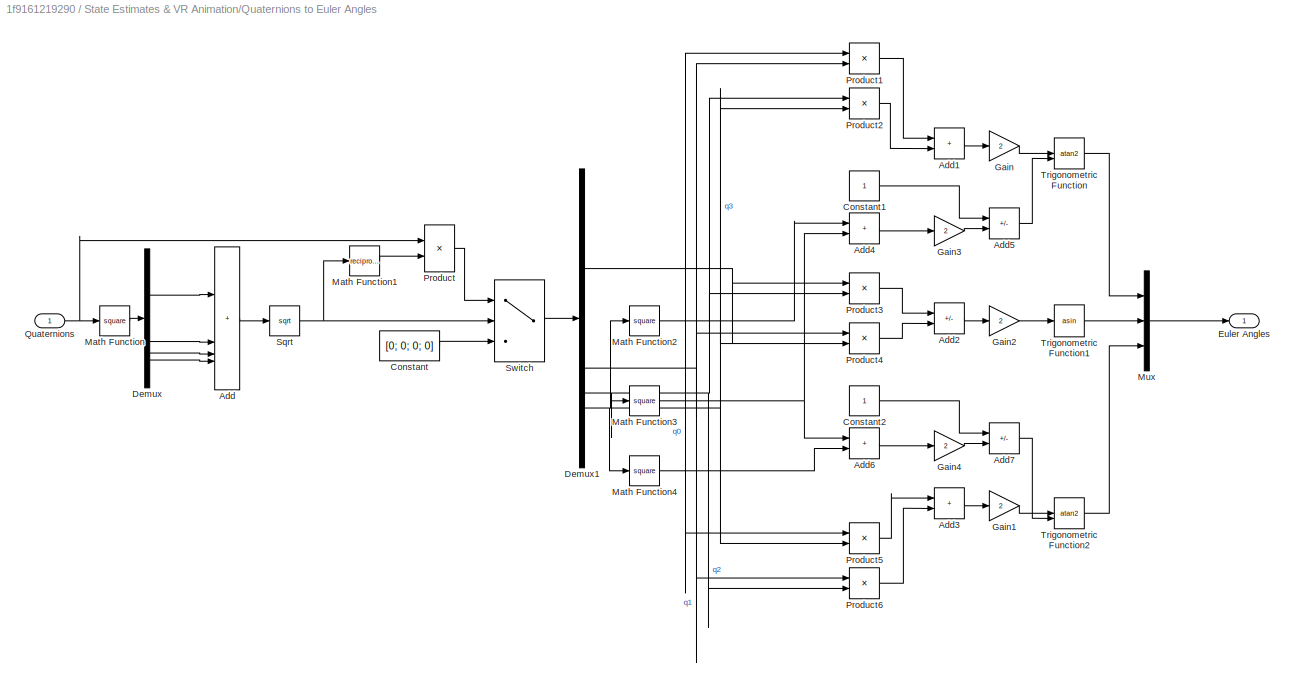
BLOCK [SubSystem] State Estimates & VR Animation/Quaternions to Euler Angles
BLOCK [Sum] State Estimates & VR Animation/Quaternions to Euler Angles/Add
  IconShape = rectangular
  Inputs = 4
BLOCK [Sum] State Estimates & VR Animation/Quaternions to Euler Angles/Add1
  IconShape = rectangular
BLOCK [Sum] State Estimates & VR Animation/Quaternions to Euler Angles/Add2
  IconShape = rectangular
  Inputs = +-
BLOCK [Sum] State Estimates & VR Animation/Quaternions to Euler Angles/Add3
  IconShape = rectangular
BLOCK [Sum] State Estimates & VR Animation/Quaternions to Euler Angles/Add4
  IconShape = rectangular
BLOCK [Sum] State Estimates & VR Animation/Quaternions to Euler Angles/Add5
  IconShape = rectangular
  Inputs = +-
BLOCK [Sum] State Estimates & VR Animation/Quaternions to Euler Angles/Add6
  IconShape = rectangular
BLOCK [Sum] State Estimates & VR Animation/Quaternions to Euler Angles/Add7
  IconShape = rectangular
  Inputs = +-
BLOCK [Constant] State Estimates & VR Animation/Quaternions to Euler Angles/Constant
  Value = [0; 0; 0; 0]
BLOCK [Constant] State Estimates & VR Animation/Quaternions to Euler Angles/Constant1
BLOCK [Constant] State Estimates & VR Animation/Quaternions to Euler Angles/Constant2
BLOCK [Demux] State Estimates & VR Animation/Quaternions to Euler Angles/Demux
BLOCK [Demux] State Estimates & VR Animation/Quaternions to Euler Angles/Demux1
BLOCK [Outport] State Estimates & VR Animation/Quaternions to Euler Angles/Euler Angles
  VectorParamsAs1DForOutWhenUnconnected = off
BLOCK [Gain] State Estimates & VR Animation/Quaternions to Euler Angles/Gain
  Gain = 2
BLOCK [Gain] State Estimates & VR Animation/Quaternions to Euler Angles/Gain1
  Gain = 2
BLOCK [Gain] State Estimates & VR Animation/Quaternions to Euler Angles/Gain2
  Gain = 2
BLOCK [Gain] State Estimates & VR Animation/Quaternions to Euler Angles/Gain3
  Gain = 2
BLOCK [Gain] State Estimates & VR Animation/Quaternions to Euler Angles/Gain4
  Gain = 2
BLOCK [Math] State Estimates & VR Animation/Quaternions to Euler Angles/Math Function
  Operator = square
  SignedPower = on
BLOCK [Math] State Estimates & VR Animation/Quaternions to Euler Angles/Math Function1
  Operator = reciprocal
  SignedPower = on
BLOCK [Math] State Estimates & VR Animation/Quaternions to Euler Angles/Math Function2
  Operator = square
  SignedPower = on
BLOCK [Math] State Estimates & VR Animation/Quaternions to Euler Angles/Math Function3
  Operator = square
  SignedPower = on
BLOCK [Math] State Estimates & VR Animation/Quaternions to Euler Angles/Math Function4
  Operator = square
  SignedPower = on
BLOCK [Mux] State Estimates & VR Animation/Quaternions to Euler Angles/Mux
  DisplayOption = bar
  Inputs = 3
BLOCK [Product] State Estimates & VR Animation/Quaternions to Euler Angles/Product
BLOCK [Product] State Estimates & VR Animation/Quaternions to Euler Angles/Product1
BLOCK [Product] State Estimates & VR Animation/Quaternions to Euler Angles/Product2
BLOCK [Product] State Estimates & VR Animation/Quaternions to Euler Angles/Product3
BLOCK [Product] State Estimates & VR Animation/Quaternions to Euler Angles/Product4
BLOCK [Product] State Estimates & VR Animation/Quaternions to Euler Angles/Product5
BLOCK [Product] State Estimates & VR Animation/Quaternions to Euler Angles/Product6
BLOCK [Inport] State Estimates & VR Animation/Quaternions to Euler Angles/Quaternions
BLOCK [Sqrt] State Estimates & VR Animation/Quaternions to Euler Angles/Sqrt
BLOCK [Switch] State Estimates & VR Animation/Quaternions to Euler Angles/Switch
  Criteria = u2 > Threshold
  InputSameDT = off
  SaturateOnIntegerOverflow = off
BLOCK [Trigonometry] State Estimates & VR Animation/Quaternions to Euler Angles/Trigonometric Function
  Operator = atan2
BLOCK [Trigonometry] State Estimates & VR Animation/Quaternions to Euler Angles/Trigonometric Function1
  Operator = asin
BLOCK [Trigonometry] State Estimates & VR Animation/Quaternions to Euler Angles/Trigonometric Function2
  Operator = atan2
BLOCK [Outport] State Estimates & VR Animation/State Estimates
  Port = 2
  VectorParamsAs1DForOutWhenUnconnected = off
BLOCK [Inport] State Estimates & VR Animation/Tau
  Port = 4
BLOCK [Outport] State Estimates & VR Animation/Tau_6DOF
  Port = 3
BLOCK [SubSystem] State Estimates & VR Animation/VR sink
BLOCK [BusSelector] State Estimates & VR Animation/VR sink/Bus Selector
  OutputSignals = uHT2,uHT1,uVT1,uHT3_1,uHT3_2,uHT3_3,uVT2,uVT3
BLOCK [SubSystem] State Estimates & VR Animation/VR sink/RF Position and Rotation to VR Translation and Rotation
BLOCK [SubSystem] State Estimates & VR Animation/VR sink/RF Position and Rotation to VR Translation and Rotation/Orientation to VR Rotation
  NameLocation = top
BLOCK [Sum] State Estimates & VR Animation/VR sink/RF Position and Rotation to VR Translation and Rotation/Orientation to VR Rotation/Add
  IconShape = rectangular
  Inputs = 4
BLOCK [Constant] State Estimates & VR Animation/VR sink/RF Position and Rotation to VR Translation and Rotation/Orientation to VR Rotation/Constant1
  Value = [0; 0; 0; 0]
BLOCK [Demux] State Estimates & VR Animation/VR sink/RF Position and Rotation to VR Translation and Rotation/Orientation to VR Rotation/Demux
BLOCK [Demux] State Estimates & VR Animation/VR sink/RF Position and Rotation to VR Translation and Rotation/Orientation to VR Rotation/Demux1
BLOCK [Gain] State Estimates & VR Animation/VR sink/RF Position and Rotation to VR Translation and Rotation/Orientation to VR Rotation/Gain
  Gain = 2
BLOCK [Math] State Estimates & VR Animation/VR sink/RF Position and Rotation to VR Translation and Rotation/Orientation to VR Rotation/Math Function
  Operator = square
  SignedPower = on
BLOCK [Math] State Estimates & VR Animation/VR sink/RF Position and Rotation to VR Translation and Rotation/Orientation to VR Rotation/Math Function1
  Operator = reciprocal
  SignedPower = on
BLOCK [Mux] State Estimates & VR Animation/VR sink/RF Position and Rotation to VR Translation and Rotation/Orientation to VR Rotation/Mux
  DisplayOption = bar
BLOCK [Inport] State Estimates & VR Animation/VR sink/RF Position and Rotation to VR Translation and Rotation/Orientation to VR Rotation/Orientation
BLOCK [Product] State Estimates & VR Animation/VR sink/RF Position and Rotation to VR Translation and Rotation/Orientation to VR Rotation/Product1
BLOCK [Sqrt] State Estimates & VR Animation/VR sink/RF Position and Rotation to VR Translation and Rotation/Orientation to VR Rotation/Sqrt
BLOCK [Switch] State Estimates & VR Animation/VR sink/RF Position and Rotation to VR Translation and Rotation/Orientation to VR Rotation/Switch
  Criteria = u2 > Threshold
  InputSameDT = off
  SaturateOnIntegerOverflow = off
BLOCK [Trigonometry] State Estimates & VR Animation/VR sink/RF Position and Rotation to VR Translation and Rotation/Orientation to VR Rotation/Trigonometric Function
  Operator = acos
BLOCK [Outport] State Estimates & VR Animation/VR sink/RF Position and Rotation to VR Translation and Rotation/Orientation to VR Rotation/VR Rotation
  VectorParamsAs1DForOutWhenUnconnected = off
BLOCK [SubSystem] State Estimates & VR Animation/VR sink/RF Position and Rotation to VR Translation and Rotation/Position to VR Translation
BLOCK [Demux] State Estimates & VR Animation/VR sink/RF Position and Rotation to VR Translation and Rotation/Position to VR Translation/Demux
  Outputs = 3
BLOCK [Mux] State Estimates & VR Animation/VR sink/RF Position and Rotation to VR Translation and Rotation/Position to VR Translation/Mux
  DisplayOption = bar
  Inputs = 3
BLOCK [Inport] State Estimates & VR Animation/VR sink/RF Position and Rotation to VR Translation and Rotation/Position to VR Translation/Position
BLOCK [Outport] State Estimates & VR Animation/VR sink/RF Position and Rotation to VR Translation and Rotation/Position to VR Translation/VR Translation
  VectorParamsAs1DForOutWhenUnconnected = off
BLOCK [Outport] State Estimates & VR Animation/VR sink/RF Position and Rotation to VR Translation and Rotation/VR Rotation
  VectorParamsAs1DForOutWhenUnconnected = off
BLOCK [Outport] State Estimates & VR Animation/VR sink/RF Position and Rotation to VR Translation and Rotation/VR Translation
  Port = 2
  VectorParamsAs1DForOutWhenUnconnected = off
BLOCK [Selector] State Estimates & VR Animation/VR sink/RF Position and Rotation to VR Translation and Rotation/eta1_N=[x,y,z]
  IndexOptions = Index vector (dialog)
  Indices = [1 2 3]
  InputPortWidth = 7
  OutputSizes = 1
BLOCK [Selector] State Estimates & VR Animation/VR sink/RF Position and Rotation to VR Translation and Rotation/eta2_N=[q0,q1,q2,q3]
  IndexOptions = Index vector (dialog)
  Indices = [4 5 6 7]
  InputPortWidth = 7
  OutputSizes = 1
BLOCK [Inport] State Estimates & VR Animation/VR sink/RF Position and Rotation to VR Translation and Rotation/eta_N
BLOCK [SubSystem] State Estimates & VR Animation/VR sink/T_ rotation
BLOCK [Constant] State Estimates & VR Animation/VR sink/T_ rotation/Axis
  NameLocation = top
  Value = [0 0 1]
BLOCK [Constant] State Estimates & VR Animation/VR sink/T_ rotation/Axis HT1
  NameLocation = top
  Value = [1;0;0]
BLOCK [Constant] State Estimates & VR Animation/VR sink/T_ rotation/Axis HT2
  NameLocation = top
  Value = [1;0;0]
BLOCK [Constant] State Estimates & VR Animation/VR sink/T_ rotation/Axis HT4
  NameLocation = top
  Value = [0 0 1]
BLOCK [Constant] State Estimates & VR Animation/VR sink/T_ rotation/Axis HT5
  NameLocation = top
  Value = [0 0 1]
BLOCK [Constant] State Estimates & VR Animation/VR sink/T_ rotation/Axis VT1
  NameLocation = top
  Value = [0;0;1]
BLOCK [Constant] State Estimates & VR Animation/VR sink/T_ rotation/Axis VT2
  NameLocation = top
  Value = [0 1 0]
BLOCK [Constant] State Estimates & VR Animation/VR sink/T_ rotation/Axis VT3
  NameLocation = top
  Value = [0 1 0]
BLOCK [BusCreator] State Estimates & VR Animation/VR sink/T_ rotation/Bus Creator
  DisplayOption = bar
  InheritFromInputs = on
  Inputs = 8
BLOCK [Inport] State Estimates & VR Animation/VR sink/T_ rotation/In Bus Element1
BLOCK [Inport] State Estimates & VR Animation/VR sink/T_ rotation/In Bus Element2
BLOCK [Inport] State Estimates & VR Animation/VR sink/T_ rotation/In Bus Element3
BLOCK [Inport] State Estimates & VR Animation/VR sink/T_ rotation/In Bus Element4
BLOCK [Inport] State Estimates & VR Animation/VR sink/T_ rotation/In Bus Element5
BLOCK [Inport] State Estimates & VR Animation/VR sink/T_ rotation/In Bus Element6
BLOCK [Inport] State Estimates & VR Animation/VR sink/T_ rotation/In Bus Element7
BLOCK [Inport] State Estimates & VR Animation/VR sink/T_ rotation/In Bus Element8
BLOCK [Inport] State Estimates & VR Animation/VR sink/T_ rotation/In Bus Element9
BLOCK [Sum] State Estimates & VR Animation/VR sink/T_ rotation/Minus1
  Commented = on
  IconShape = rectangular
BLOCK [Mux] State Estimates & VR Animation/VR sink/T_ rotation/Mux
  DisplayOption = bar
  Inputs = 2
BLOCK [Mux] State Estimates & VR Animation/VR sink/T_ rotation/Mux1
  DisplayOption = bar
  Inputs = 2
BLOCK [Mux] State Estimates & VR Animation/VR sink/T_ rotation/Mux2
  DisplayOption = bar
  Inputs = 2
BLOCK [Mux] State Estimates & VR Animation/VR sink/T_ rotation/Mux3
  DisplayOption = bar
  Inputs = 2
BLOCK [Mux] State Estimates & VR Animation/VR sink/T_ rotation/Mux4
  DisplayOption = bar
  Inputs = 2
BLOCK [Mux] State Estimates & VR Animation/VR sink/T_ rotation/Mux5
  DisplayOption = bar
  Inputs = 2
BLOCK [Mux] State Estimates & VR Animation/VR sink/T_ rotation/Mux6
  DisplayOption = bar
  Inputs = 2
BLOCK [Mux] State Estimates & VR Animation/VR sink/T_ rotation/Mux7
  DisplayOption = bar
  Inputs = 2
BLOCK [Mux] State Estimates & VR Animation/VR sink/T_ rotation/Mux8
  DisplayOption = bar
  Inputs = 2
BLOCK [SubSystem] State Estimates & VR Animation/VR sink/T_ rotation/Subsystem
BLOCK [Constant] State Estimates & VR Animation/VR sink/T_ rotation/Subsystem/Amplitude
  Value = 0.0973
BLOCK [Clock] State Estimates & VR Animation/VR sink/T_ rotation/Subsystem/Clock
BLOCK [Constant] State Estimates & VR Animation/VR sink/T_ rotation/Subsystem/Constant
  Value = 5.76
BLOCK [Constant] State Estimates & VR Animation/VR sink/T_ rotation/Subsystem/Constant1
  Value = 0
BLOCK [Constant] State Estimates & VR Animation/VR sink/T_ rotation/Subsystem/Constant2
  Value = 1.635
BLOCK [Constant] State Estimates & VR Animation/VR sink/T_ rotation/Subsystem/Constant3
BLOCK [Product] State Estimates & VR Animation/VR sink/T_ rotation/Subsystem/Divide
  Inputs = ***
BLOCK [Product] State Estimates & VR Animation/VR sink/T_ rotation/Subsystem/Divide1
  Inputs = ***
BLOCK [Gain] State Estimates & VR Animation/VR sink/T_ rotation/Subsystem/Gain1
  Gain = -1
BLOCK [Gain] State Estimates & VR Animation/VR sink/T_ rotation/Subsystem/Gain2
  Gain = -1/0.2
BLOCK [Math] State Estimates & VR Animation/VR sink/T_ rotation/Subsystem/Math Function
BLOCK [Sum] State Estimates & VR Animation/VR sink/T_ rotation/Subsystem/Minus1
  IconShape = rectangular
BLOCK [Sum] State Estimates & VR Animation/VR sink/T_ rotation/Subsystem/Plus1
  IconShape = rectangular
BLOCK [Sum] State Estimates & VR Animation/VR sink/T_ rotation/Subsystem/Plus2
  IconShape = rectangular
  Inputs = +-
BLOCK [Selector] State Estimates & VR Animation/VR sink/T_ rotation/Subsystem/Selector
  IndexOptions = Index vector (dialog)
  Indices = [1]
  InputPortWidth = 2
  OutputSizes = 1
BLOCK [Selector] State Estimates & VR Animation/VR sink/T_ rotation/Subsystem/Selector1
  IndexOptions = Index vector (dialog)
  Indices = [2]
  InputPortWidth = 2
  OutputSizes = 1
BLOCK [Trigonometry] State Estimates & VR Animation/VR sink/T_ rotation/Subsystem/Sin
BLOCK [Switch] State Estimates & VR Animation/VR sink/T_ rotation/Subsystem/Switch
  Criteria = u2 > Threshold
  InputSameDT = off
  SaturateOnIntegerOverflow = off
BLOCK [Outport] State Estimates & VR Animation/VR sink/T_ rotation/Subsystem/Theta
  VectorParamsAs1DForOutWhenUnconnected = off
BLOCK [Inport] State Estimates & VR Animation/VR sink/T_ rotation/Subsystem/uHT3
BLOCK [SubSystem] State Estimates & VR Animation/VR sink/T_ rotation/Subsystem1
BLOCK [Constant] State Estimates & VR Animation/VR sink/T_ rotation/Subsystem1/Amplitude
  Value = 0.0760
BLOCK [Clock] State Estimates & VR Animation/VR sink/T_ rotation/Subsystem1/Clock
BLOCK [Constant] State Estimates & VR Animation/VR sink/T_ rotation/Subsystem1/Constant
  Value = 5.76
BLOCK [Constant] State Estimates & VR Animation/VR sink/T_ rotation/Subsystem1/Constant1
  Value = 0
BLOCK [Constant] State Estimates & VR Animation/VR sink/T_ rotation/Subsystem1/Constant2
  Value = 2.031
BLOCK [Constant] State Estimates & VR Animation/VR sink/T_ rotation/Subsystem1/Constant3
BLOCK [Product] State Estimates & VR Animation/VR sink/T_ rotation/Subsystem1/Divide
  Inputs = ***
BLOCK [Product] State Estimates & VR Animation/VR sink/T_ rotation/Subsystem1/Divide1
  Inputs = ***
BLOCK [Gain] State Estimates & VR Animation/VR sink/T_ rotation/Subsystem1/Gain2
  Gain = -1/0.2
BLOCK [Math] State Estimates & VR Animation/VR sink/T_ rotation/Subsystem1/Math Function
BLOCK [Sum] State Estimates & VR Animation/VR sink/T_ rotation/Subsystem1/Minus1
  IconShape = rectangular
BLOCK [Sum] State Estimates & VR Animation/VR sink/T_ rotation/Subsystem1/Plus2
  IconShape = rectangular
  Inputs = +-
BLOCK [Trigonometry] State Estimates & VR Animation/VR sink/T_ rotation/Subsystem1/Sin
BLOCK [Switch] State Estimates & VR Animation/VR sink/T_ rotation/Subsystem1/Switch
  Criteria = u2 > Threshold
  InputSameDT = off
  SaturateOnIntegerOverflow = off
BLOCK [Outport] State Estimates & VR Animation/VR sink/T_ rotation/Subsystem1/Theta
  VectorParamsAs1DForOutWhenUnconnected = off
BLOCK [Inport] State Estimates & VR Animation/VR sink/T_ rotation/Subsystem1/uHT3
BLOCK [SubSystem] State Estimates & VR Animation/VR sink/T_ rotation/Subsystem2
BLOCK [Constant] State Estimates & VR Animation/VR sink/T_ rotation/Subsystem2/Amplitude
  Value = 0.134
BLOCK [Clock] State Estimates & VR Animation/VR sink/T_ rotation/Subsystem2/Clock
BLOCK [Constant] State Estimates & VR Animation/VR sink/T_ rotation/Subsystem2/Constant
  Value = 5.76
BLOCK [Constant] State Estimates & VR Animation/VR sink/T_ rotation/Subsystem2/Constant1
  Value = 0
BLOCK [Constant] State Estimates & VR Animation/VR sink/T_ rotation/Subsystem2/Constant2
  Value = 2.356
BLOCK [Constant] State Estimates & VR Animation/VR sink/T_ rotation/Subsystem2/Constant3
BLOCK [Product] State Estimates & VR Animation/VR sink/T_ rotation/Subsystem2/Divide
  Inputs = ***
BLOCK [Product] State Estimates & VR Animation/VR sink/T_ rotation/Subsystem2/Divide1
  Inputs = ***
BLOCK [Gain] State Estimates & VR Animation/VR sink/T_ rotation/Subsystem2/Gain2
  Gain = -1/0.2
BLOCK [Math] State Estimates & VR Animation/VR sink/T_ rotation/Subsystem2/Math Function
BLOCK [Sum] State Estimates & VR Animation/VR sink/T_ rotation/Subsystem2/Minus1
  IconShape = rectangular
BLOCK [Sum] State Estimates & VR Animation/VR sink/T_ rotation/Subsystem2/Plus2
  IconShape = rectangular
  Inputs = +-
BLOCK [Trigonometry] State Estimates & VR Animation/VR sink/T_ rotation/Subsystem2/Sin
BLOCK [Switch] State Estimates & VR Animation/VR sink/T_ rotation/Subsystem2/Switch
  Criteria = u2 > Threshold
  InputSameDT = off
  SaturateOnIntegerOverflow = off
BLOCK [Outport] State Estimates & VR Animation/VR sink/T_ rotation/Subsystem2/Theta
  VectorParamsAs1DForOutWhenUnconnected = off
BLOCK [Inport] State Estimates & VR Animation/VR sink/T_ rotation/Subsystem2/uHT3
BLOCK [SubSystem] State Estimates & VR Animation/VR sink/T_ rotation/Subsystem3
BLOCK [Clock] State Estimates & VR Animation/VR sink/T_ rotation/Subsystem3/Clock
BLOCK [Constant] State Estimates & VR Animation/VR sink/T_ rotation/Subsystem3/Constant
BLOCK [Product] State Estimates & VR Animation/VR sink/T_ rotation/Subsystem3/Divide
  Inputs = ***
BLOCK [Outport] State Estimates & VR Animation/VR sink/T_ rotation/Subsystem3/Theta_VT1
  VectorParamsAs1DForOutWhenUnconnected = off
BLOCK [Inport] State Estimates & VR Animation/VR sink/T_ rotation/Subsystem3/uVT1
BLOCK [SubSystem] State Estimates & VR Animation/VR sink/T_ rotation/Subsystem4
BLOCK [Clock] State Estimates & VR Animation/VR sink/T_ rotation/Subsystem4/Clock
BLOCK [Constant] State Estimates & VR Animation/VR sink/T_ rotation/Subsystem4/Constant
  Value = 2*pi
BLOCK [Product] State Estimates & VR Animation/VR sink/T_ rotation/Subsystem4/Divide
  Inputs = ***
BLOCK [Outport] State Estimates & VR Animation/VR sink/T_ rotation/Subsystem4/Theta_HT1
  VectorParamsAs1DForOutWhenUnconnected = off
BLOCK [Inport] State Estimates & VR Animation/VR sink/T_ rotation/Subsystem4/uHT1
BLOCK [SubSystem] State Estimates & VR Animation/VR sink/T_ rotation/Subsystem5
BLOCK [Clock] State Estimates & VR Animation/VR sink/T_ rotation/Subsystem5/Clock
BLOCK [Constant] State Estimates & VR Animation/VR sink/T_ rotation/Subsystem5/Constant
  Value = 2*pi
BLOCK [Product] State Estimates & VR Animation/VR sink/T_ rotation/Subsystem5/Divide
  Inputs = ***
BLOCK [Outport] State Estimates & VR Animation/VR sink/T_ rotation/Subsystem5/Theta_HT2
  VectorParamsAs1DForOutWhenUnconnected = off
BLOCK [Inport] State Estimates & VR Animation/VR sink/T_ rotation/Subsystem5/uHT2
BLOCK [Outport] State Estimates & VR Animation/VR sink/T_ rotation/T_rotation
  VectorParamsAs1DForOutWhenUnconnected = off
BLOCK [Reference] State Estimates & VR Animation/VR sink/To Multimedia File  REF=dspvision/To Multimedia File
  LibrarySourceBlock = visionsinks/To Multimedia File
  SourceBlock = dspvision/To Multimedia File
  SourceType = To Multimedia File
BLOCK [Reference] State Estimates & VR Animation/VR sink/VR To Video  REF=vrlib/VR To Video
  InstantiateOnLoad = on
  SourceBlock = vrlib/VR To Video
  SourceType = Virtual Reality Sink
BLOCK [Inport] State Estimates & VR Animation/VR sink/eta_N
  Port = 2
BLOCK [Inport] State Estimates & VR Animation/VR sink/uCMD
BLOCK [Outport] State Estimates & VR Animation/[uCMD]
  VectorParamsAs1DForOutWhenUnconnected = off
BLOCK [Selector] State Estimates & VR Animation/eta1_E=[x,y,z]
  IndexOptions = Index vector (dialog)
  Indices = [1 2 3]
  InputPortWidth = 7
  OutputSizes = 1
BLOCK [Selector] State Estimates & VR Animation/eta2_E=[q0,q1,q2,q3]
  IndexOptions = Index vector (dialog)
  Indices = [4 5 6 7]
  InputPortWidth = 7
  OutputSizes = 1
BLOCK [Inport] State Estimates & VR Animation/eta_N
BLOCK [Inport] State Estimates & VR Animation/nu_B
  Port = 2
BLOCK [SubSystem] State Estimates & VR Animation/signal transformation1
BLOCK [BusCreator] State Estimates & VR Animation/signal transformation1/Bus Creator
  DisplayOption = bar
  InheritFromInputs = on
  Inputs = 6
BLOCK [BusCreator] State Estimates & VR Animation/signal transformation1/Bus Creator1
  DisplayOption = bar
  InheritFromInputs = on
  Inputs = 6
BLOCK [BusCreator] State Estimates & VR Animation/signal transformation1/Bus Creator2
  DisplayOption = bar
  InheritFromInputs = on
  Inputs = 2
BLOCK [Inport] State Estimates & VR Animation/signal transformation1/Position
BLOCK [Selector] State Estimates & VR Animation/signal transformation1/Selector
  IndexOptions = Index vector (dialog)
  Indices = [1]
  InputPortWidth = 6
  OutputSizes = 1
BLOCK [Selector] State Estimates & VR Animation/signal transformation1/Selector1
  IndexOptions = Index vector (dialog)
  Indices = [2]
  InputPortWidth = 6
  OutputSizes = 1
BLOCK [Selector] State Estimates & VR Animation/signal transformation1/Selector10
  IndexOptions = Index vector (dialog)
  Indices = [5]
  InputPortWidth = 6
  OutputSizes = 1
BLOCK [Selector] State Estimates & VR Animation/signal transformation1/Selector11
  IndexOptions = Index vector (dialog)
  Indices = [6]
  InputPortWidth = 6
  OutputSizes = 1
BLOCK [Selector] State Estimates & VR Animation/signal transformation1/Selector2
  IndexOptions = Index vector (dialog)
  Indices = [3]
  InputPortWidth = 6
  OutputSizes = 1
BLOCK [Selector] State Estimates & VR Animation/signal transformation1/Selector3
  IndexOptions = Index vector (dialog)
  Indices = [4]
  InputPortWidth = 6
  OutputSizes = 1
BLOCK [Selector] State Estimates & VR Animation/signal transformation1/Selector4
  IndexOptions = Index vector (dialog)
  Indices = [5]
  InputPortWidth = 6
  OutputSizes = 1
BLOCK [Selector] State Estimates & VR Animation/signal transformation1/Selector5
  IndexOptions = Index vector (dialog)
  Indices = [6]
  InputPortWidth = 6
  OutputSizes = 1
BLOCK [Selector] State Estimates & VR Animation/signal transformation1/Selector6
  IndexOptions = Index vector (dialog)
  Indices = [1]
  InputPortWidth = 6
  OutputSizes = 1
BLOCK [Selector] State Estimates & VR Animation/signal transformation1/Selector7
  IndexOptions = Index vector (dialog)
  Indices = [2]
  InputPortWidth = 6
  OutputSizes = 1
BLOCK [Selector] State Estimates & VR Animation/signal transformation1/Selector8
  IndexOptions = Index vector (dialog)
  Indices = [3]
  InputPortWidth = 6
  OutputSizes = 1
BLOCK [Selector] State Estimates & VR Animation/signal transformation1/Selector9
  IndexOptions = Index vector (dialog)
  Indices = [4]
  InputPortWidth = 6
  OutputSizes = 1
BLOCK [Outport] State Estimates & VR Animation/signal transformation1/State Estimate
  VectorParamsAs1DForOutWhenUnconnected = off
BLOCK [Inport] State Estimates & VR Animation/signal transformation1/nu_B
  Port = 2
BLOCK [Inport] State Estimates & VR Animation/uCMD
  Port = 3
ANNOTATION (root): Hybrid-driven Robotic Fish Maneuverability Model
ANNOTATION ALL SCOPE/ESO: mux用作输入MATLAB Function时，若要四路输入，如果输入4，则会报错，应该输入[1 1 1 1]，就不会报错了
ANNOTATION ALL SCOPE/ESO: z2
ANNOTATION ALL SCOPE/ESO: z3
ANNOTATION ALL SCOPE/ESO1: mux用作输入MATLAB Function时，若要四路输入，如果输入4，则会报错，应该输入[1 1 1 1]，就不会报错了
ANNOTATION ALL SCOPE/ESO1: z2
ANNOTATION ALL SCOPE/ESO1: z3
ANNOTATION ALL SCOPE/ESO2: mux用作输入MATLAB Function时，若要四路输入，如果输入4，则会报错，应该输入[1 1 1 1]，就不会报错了
ANNOTATION ALL SCOPE/ESO2: z2
ANNOTATION ALL SCOPE/ESO2: z3
ANNOTATION ALL SCOPE/Subsystem: p q r
ANNOTATION ALL SCOPE/Subsystem: u v w
ANNOTATION Robotic-Fish Model & PropulsionSystem/Propulsion System: square
ANNOTATION Robotic-Fish Model & PropulsionSystem/Propulsion System/Horizontal Force and Moment (Tau_H): U=modulo(u v w)
ANNOTATION Robotic-Fish Model & PropulsionSystem/Propulsion System/Horizontal Force and Moment (Tau_H)/Tau_HT1&HT2(Tau_Left&Right_Propeller): U=modulo(u v w)
ANNOTATION Robotic-Fish Model & PropulsionSystem/Propulsion System/Horizontal Force and Moment (Tau_H)/Tau_HT3 (Tau_Caudal_Fin)/Calculation_Tau_HT3: Tau_yaw_HT3
ANNOTATION Robotic-Fish Model & PropulsionSystem/Propulsion System/Vertical Force and Moment (Tau_V): Tau_VT1=[0 0 Fvt1 0 Tvt1 0 ]
ANNOTATION Robotic-Fish Model & PropulsionSystem/Propulsion System/Vertical Force and Moment (Tau_V): Tau_VT2&VT3= [ 0 Ys Zs Ks Ms Ns ]
ANNOTATION Robotic-Fish Model & PropulsionSystem/Propulsion System/Vertical Force and Moment (Tau_V)/Tau_VT1 (Tau_Middle_Propeller): U=modulo(u v w)
ANNOTATION Robotic-Fish Model & PropulsionSystem/Propulsion System/Vertical Force and Moment (Tau_V)/Tau_VT2&VT3 (Tau_Pectoral Fin): Delta_VT2
ANNOTATION Robotic-Fish Model & PropulsionSystem/Propulsion System/Vertical Force and Moment (Tau_V)/Tau_VT2&VT3 (Tau_Pectoral Fin): Delta_VT3
ANNOTATION Robotic-Fish Model & PropulsionSystem/Propulsion System/Vertical Force and Moment (Tau_V)/Tau_VT2&VT3 (Tau_Pectoral Fin): FVT2
ANNOTATION Robotic-Fish Model & PropulsionSystem/Propulsion System/Vertical Force and Moment (Tau_V)/Tau_VT2&VT3 (Tau_Pectoral Fin): FVT3
ANNOTATION Robotic-Fish Model & PropulsionSystem/Propulsion System/Vertical Force and Moment (Tau_V)/Tau_VT2&VT3 (Tau_Pectoral Fin): KVT2
ANNOTATION Robotic-Fish Model & PropulsionSystem/Propulsion System/Vertical Force and Moment (Tau_V)/Tau_VT2&VT3 (Tau_Pectoral Fin): KVT3
ANNOTATION Robotic-Fish Model & PropulsionSystem/Propulsion System/Vertical Force and Moment (Tau_V)/Tau_VT2&VT3 (Tau_Pectoral Fin): Ks
ANNOTATION Robotic-Fish Model & PropulsionSystem/Propulsion System/Vertical Force and Moment (Tau_V)/Tau_VT2&VT3 (Tau_Pectoral Fin): Ms
ANNOTATION Robotic-Fish Model & PropulsionSystem/Propulsion System/Vertical Force and Moment (Tau_V)/Tau_VT2&VT3 (Tau_Pectoral Fin): NVT2
ANNOTATION Robotic-Fish Model & PropulsionSystem/Propulsion System/Vertical Force and Moment (Tau_V)/Tau_VT2&VT3 (Tau_Pectoral Fin): Ns
ANNOTATION Robotic-Fish Model & PropulsionSystem/Propulsion System/Vertical Force and Moment (Tau_V)/Tau_VT2&VT3 (Tau_Pectoral Fin): YVT2
ANNOTATION Robotic-Fish Model & PropulsionSystem/Propulsion System/Vertical Force and Moment (Tau_V)/Tau_VT2&VT3 (Tau_Pectoral Fin): YVT3
ANNOTATION Robotic-Fish Model & PropulsionSystem/Propulsion System/Vertical Force and Moment (Tau_V)/Tau_VT2&VT3 (Tau_Pectoral Fin): Ys
ANNOTATION Robotic-Fish Model & PropulsionSystem/Propulsion System/Vertical Force and Moment (Tau_V)/Tau_VT2&VT3 (Tau_Pectoral Fin): ZVT2
ANNOTATION Robotic-Fish Model & PropulsionSystem/Propulsion System/Vertical Force and Moment (Tau_V)/Tau_VT2&VT3 (Tau_Pectoral Fin): ZVT3
ANNOTATION Robotic-Fish Model & PropulsionSystem/Propulsion System/Vertical Force and Moment (Tau_V)/Tau_VT2&VT3 (Tau_Pectoral Fin): Zs
ANNOTATION Robotic-Fish Model & PropulsionSystem/Propulsion System/Vertical Force and Moment (Tau_V)/Tau_VT2&VT3 (Tau_Pectoral Fin): [Delta_VT2 Delta_VT3 nu_B]
ANNOTATION Robotic-Fish Model & PropulsionSystem/Propulsion System/Vertical Force and Moment (Tau_V)/Tau_VT2&VT3 (Tau_Pectoral Fin): [ZVT2 YVT2]
ANNOTATION Robotic-Fish Model & PropulsionSystem/Propulsion System/Vertical Force and Moment (Tau_V)/Tau_VT2&VT3 (Tau_Pectoral Fin): [ZVT3 YVT3]
ANNOTATION Robotic-Fish Model & PropulsionSystem/RF Dynamics and Kinematics (Attitude rappresentation: Quaternions): Environment disturbance
ANNOTATION Robotic-Fish Model & PropulsionSystem/RF Dynamics and Kinematics (Attitude rappresentation: Quaternions): Dynamics
ANNOTATION Robotic-Fish Model & PropulsionSystem/RF Dynamics and Kinematics (Attitude rappresentation: Quaternions): Kinematics
ANNOTATION Robotic-Fish Model & PropulsionSystem/RF Dynamics and Kinematics (Attitude rappresentation: Quaternions): E1
ANNOTATION Robotic-Fish Model & PropulsionSystem/RF Dynamics and Kinematics (Attitude rappresentation: Quaternions): Euler Angles to Quaternions
ANNOTATION Robotic-Fish Model & PropulsionSystem/RF Dynamics and Kinematics (Attitude rappresentation: Quaternions): [u v w p q r]
ANNOTATION Robotic-Fish Model & PropulsionSystem/RF Dynamics and Kinematics (Attitude rappresentation: Quaternions): [x y z q0 q1 q2 q3]
ANNOTATION Robotic-Fish Model & PropulsionSystem/RF Dynamics and Kinematics (Attitude rappresentation: Quaternions)/6 DOF transformation: e=[eta;e1;e2;e3]
ANNOTATION Robotic-Fish Model & PropulsionSystem/RF Dynamics and Kinematics (Attitude rappresentation: Quaternions)/6 DOF transformation: eta1dot
ANNOTATION Robotic-Fish Model & PropulsionSystem/RF Dynamics and Kinematics (Attitude rappresentation: Quaternions)/6 DOF transformation: eta2dot
ANNOTATION Robotic-Fish Model & PropulsionSystem/RF Dynamics and Kinematics (Attitude rappresentation: Quaternions)/6 DOF transformation: p q r
ANNOTATION Robotic-Fish Model & PropulsionSystem/RF Dynamics and Kinematics (Attitude rappresentation: Quaternions)/6 DOF transformation: u v w
ANNOTATION Robotic-Fish Model & PropulsionSystem/RF Dynamics and Kinematics (Attitude rappresentation: Quaternions)/6 DOF transformation/E1(e): q1,q2,q3
ANNOTATION Robotic-Fish Model & PropulsionSystem/RF Dynamics and Kinematics (Attitude rappresentation: Quaternions)/6 DOF transformation/E1(e): qo
ANNOTATION Robotic-Fish Model & PropulsionSystem/RF Dynamics and Kinematics (Attitude rappresentation: Quaternions)/6 DOF transformation/E2(e): 如果将串联维度参数设置为 1，且输入是二维矩阵，模块将执行垂直矩阵串联，并将输入矩阵上下堆叠以创建输出矩阵。
ANNOTATION Robotic-Fish Model & PropulsionSystem/RF Dynamics and Kinematics (Attitude rappresentation: Quaternions)/6 DOF transformation/E2(e): q0
ANNOTATION Robotic-Fish Model & PropulsionSystem/RF Dynamics and Kinematics (Attitude rappresentation: Quaternions)/6 DOF transformation/E2(e): q=(q1,q2,q3)
LINE ALL SCOPE/ESO/Constant1:1 -> ALL SCOPE/ESO/Mux:3
LINE ALL SCOPE/ESO/Constant2:1 -> ALL SCOPE/ESO/Mux1:2
LINE ALL SCOPE/ESO/Constant3:1 -> ALL SCOPE/ESO/Mux1:3
LINE ALL SCOPE/ESO/Constant:1 -> ALL SCOPE/ESO/Mux:2
LINE ALL SCOPE/ESO/Gain1:1 -> ALL SCOPE/ESO/Sum:3
LINE ALL SCOPE/ESO/Gain2:1 -> ALL SCOPE/ESO/Sum1:2
LINE ALL SCOPE/ESO/Gain3:1 -> ALL SCOPE/ESO/Integrator:1
LINE ALL SCOPE/ESO/Gain4:1 -> ALL SCOPE/ESO/Sum:1
LINE ALL SCOPE/ESO/Gain:1 -> ALL SCOPE/ESO/Gain3:1
NET ALL SCOPE/ESO/Integrator1:1 -> ALL SCOPE/ESO/Sum1:1, ALL SCOPE/ESO/z2:1
LINE ALL SCOPE/ESO/Integrator2:1 -> ALL SCOPE/ESO/z1:1
NET ALL SCOPE/ESO/Integrator:1 -> ALL SCOPE/ESO/Sum:2, ALL SCOPE/ESO/z3:1
LINE ALL SCOPE/ESO/Mux1:1 -> ALL SCOPE/ESO/fal(e,0.5,h):1
LINE ALL SCOPE/ESO/Mux:1 -> ALL SCOPE/ESO/fal(e,0.25,h):1
LINE ALL SCOPE/ESO/Sum1:1 -> ALL SCOPE/ESO/Integrator2:1
LINE ALL SCOPE/ESO/Sum:1 -> ALL SCOPE/ESO/Integrator1:1
NET ALL SCOPE/ESO/e:1 -> ALL SCOPE/ESO/Gain2:1, ALL SCOPE/ESO/Mux1:1, ALL SCOPE/ESO/Mux:1
LINE ALL SCOPE/ESO/fal(e,0.25,h):1 -> ALL SCOPE/ESO/Gain:1
LINE ALL SCOPE/ESO/fal(e,0.5,h):1 -> ALL SCOPE/ESO/Gain1:1
LINE ALL SCOPE/ESO/u:1 -> ALL SCOPE/ESO/Gain4:1
LINE ALL SCOPE/ESO1/Constant1:1 -> ALL SCOPE/ESO1/Mux:3
LINE ALL SCOPE/ESO1/Constant2:1 -> ALL SCOPE/ESO1/Mux1:2
LINE ALL SCOPE/ESO1/Constant3:1 -> ALL SCOPE/ESO1/Mux1:3
LINE ALL SCOPE/ESO1/Constant:1 -> ALL SCOPE/ESO1/Mux:2
LINE ALL SCOPE/ESO1/Gain1:1 -> ALL SCOPE/ESO1/Sum:3
LINE ALL SCOPE/ESO1/Gain2:1 -> ALL SCOPE/ESO1/Sum1:2
LINE ALL SCOPE/ESO1/Gain3:1 -> ALL SCOPE/ESO1/Integrator:1
LINE ALL SCOPE/ESO1/Gain4:1 -> ALL SCOPE/ESO1/Sum:1
LINE ALL SCOPE/ESO1/Gain:1 -> ALL SCOPE/ESO1/Gain3:1
NET ALL SCOPE/ESO1/Integrator1:1 -> ALL SCOPE/ESO1/Sum1:1, ALL SCOPE/ESO1/z2:1
LINE ALL SCOPE/ESO1/Integrator2:1 -> ALL SCOPE/ESO1/z1:1
NET ALL SCOPE/ESO1/Integrator:1 -> ALL SCOPE/ESO1/Sum:2, ALL SCOPE/ESO1/z3:1
LINE ALL SCOPE/ESO1/Mux1:1 -> ALL SCOPE/ESO1/fal(e,0.5,h):1
LINE ALL SCOPE/ESO1/Mux:1 -> ALL SCOPE/ESO1/fal(e,0.25,h):1
LINE ALL SCOPE/ESO1/Sum1:1 -> ALL SCOPE/ESO1/Integrator2:1
LINE ALL SCOPE/ESO1/Sum:1 -> ALL SCOPE/ESO1/Integrator1:1
NET ALL SCOPE/ESO1/e:1 -> ALL SCOPE/ESO1/Gain2:1, ALL SCOPE/ESO1/Mux1:1, ALL SCOPE/ESO1/Mux:1
LINE ALL SCOPE/ESO1/fal(e,0.25,h):1 -> ALL SCOPE/ESO1/Gain:1
LINE ALL SCOPE/ESO1/fal(e,0.5,h):1 -> ALL SCOPE/ESO1/Gain1:1
LINE ALL SCOPE/ESO1/u:1 -> ALL SCOPE/ESO1/Gain4:1
LINE ALL SCOPE/ESO1:1 -> ALL SCOPE/Scope2:1
LINE ALL SCOPE/ESO1:2 -> ALL SCOPE/Scope2:2
NET ALL SCOPE/ESO1:3 -> ALL SCOPE/Scope2:3, ALL SCOPE/Scope3:1, ALL SCOPE/Scope6:1, ALL SCOPE/Sum1:2
LINE ALL SCOPE/ESO2/Constant1:1 -> ALL SCOPE/ESO2/Mux:3
LINE ALL SCOPE/ESO2/Constant2:1 -> ALL SCOPE/ESO2/Mux1:2
LINE ALL SCOPE/ESO2/Constant3:1 -> ALL SCOPE/ESO2/Mux1:3
LINE ALL SCOPE/ESO2/Constant:1 -> ALL SCOPE/ESO2/Mux:2
LINE ALL SCOPE/ESO2/Gain1:1 -> ALL SCOPE/ESO2/Sum:3
LINE ALL SCOPE/ESO2/Gain2:1 -> ALL SCOPE/ESO2/Sum1:2
LINE ALL SCOPE/ESO2/Gain3:1 -> ALL SCOPE/ESO2/Integrator:1
LINE ALL SCOPE/ESO2/Gain4:1 -> ALL SCOPE/ESO2/Sum:1
LINE ALL SCOPE/ESO2/Gain:1 -> ALL SCOPE/ESO2/Gain3:1
NET ALL SCOPE/ESO2/Integrator1:1 -> ALL SCOPE/ESO2/Sum1:1, ALL SCOPE/ESO2/z2:1
LINE ALL SCOPE/ESO2/Integrator2:1 -> ALL SCOPE/ESO2/z1:1
NET ALL SCOPE/ESO2/Integrator:1 -> ALL SCOPE/ESO2/Sum:2, ALL SCOPE/ESO2/z3:1
LINE ALL SCOPE/ESO2/Mux1:1 -> ALL SCOPE/ESO2/fal(e,0.5,h):1
LINE ALL SCOPE/ESO2/Mux:1 -> ALL SCOPE/ESO2/fal(e,0.25,h):1
LINE ALL SCOPE/ESO2/Sum1:1 -> ALL SCOPE/ESO2/Integrator2:1
LINE ALL SCOPE/ESO2/Sum:1 -> ALL SCOPE/ESO2/Integrator1:1
NET ALL SCOPE/ESO2/e:1 -> ALL SCOPE/ESO2/Gain2:1, ALL SCOPE/ESO2/Mux1:1, ALL SCOPE/ESO2/Mux:1
LINE ALL SCOPE/ESO2/fal(e,0.25,h):1 -> ALL SCOPE/ESO2/Gain:1
LINE ALL SCOPE/ESO2/fal(e,0.5,h):1 -> ALL SCOPE/ESO2/Gain1:1
LINE ALL SCOPE/ESO2/u:1 -> ALL SCOPE/ESO2/Gain4:1
LINE ALL SCOPE/ESO2:1 -> ALL SCOPE/Scope4:1
LINE ALL SCOPE/ESO2:2 -> ALL SCOPE/Scope4:2
NET ALL SCOPE/ESO2:3 -> ALL SCOPE/Scope4:3, ALL SCOPE/Scope5:1, ALL SCOPE/Sum2:2
LINE ALL SCOPE/ESO:1 -> ALL SCOPE/Scope:1
LINE ALL SCOPE/ESO:2 -> ALL SCOPE/Scope:2
NET ALL SCOPE/ESO:3 -> ALL SCOPE/Scope1:1, ALL SCOPE/Scope:3, ALL SCOPE/Sum:2
LINE ALL SCOPE/Gain1:1 -> ALL SCOPE/Mux6:1
LINE ALL SCOPE/Gain2:1 -> ALL SCOPE/Mux6:2
LINE ALL SCOPE/Gain3:1 -> ALL SCOPE/Mux6:3
LINE ALL SCOPE/Gain4:1 -> ALL SCOPE/All Actuator:3
LINE ALL SCOPE/Gain5:1 -> ALL SCOPE/All Actuator:4
LINE ALL SCOPE/Gain6:1 -> ALL SCOPE/All Actuator:5
LINE ALL SCOPE/Gain7:1 -> ALL SCOPE/All Actuator:6
LINE ALL SCOPE/Gain8:1 -> ALL SCOPE/All Actuator:7
LINE ALL SCOPE/Gain:1 -> ALL SCOPE/All Actuator:2
LINE ALL SCOPE/In Bus Element16:1 -> ALL SCOPE/Gain1:1
LINE ALL SCOPE/In Bus Element17:1 -> ALL SCOPE/Gain2:1
LINE ALL SCOPE/In Bus Element18:1 -> ALL SCOPE/Gain3:1
LINE ALL SCOPE/In Bus Element19:1 -> ALL SCOPE/Subsystem:2
NET ALL SCOPE/In Bus Element1:1 -> ALL SCOPE/Scope1:2, ALL SCOPE/Sum:1
LINE ALL SCOPE/In Bus Element20:1 -> ALL SCOPE/X//Y//Z (m):1
LINE ALL SCOPE/In Bus Element21:1 -> ALL SCOPE/X//Y//Z (m):2
LINE ALL SCOPE/In Bus Element22:1 -> ALL SCOPE/X//Y//Z (m):3
LINE ALL SCOPE/In Bus Element23:1 -> ALL SCOPE/All Actuator:1
LINE ALL SCOPE/In Bus Element24:1 -> ALL SCOPE/Gain:1
LINE ALL SCOPE/In Bus Element25:1 -> ALL SCOPE/Gain4:1
LINE ALL SCOPE/In Bus Element26:1 -> ALL SCOPE/Gain5:1
LINE ALL SCOPE/In Bus Element27:1 -> ALL SCOPE/Gain6:1
LINE ALL SCOPE/In Bus Element28:1 -> ALL SCOPE/Gain7:1
LINE ALL SCOPE/In Bus Element29:1 -> ALL SCOPE/Gain8:1
LINE ALL SCOPE/In Bus Element2:1 -> ALL SCOPE/Scope6:2
LINE ALL SCOPE/In Bus Element30:1 -> ALL SCOPE/Roll//Pitch//Yaw (deg):1
LINE ALL SCOPE/In Bus Element31:1 -> ALL SCOPE/Roll//Pitch//Yaw (deg):2
LINE ALL SCOPE/In Bus Element32:1 -> ALL SCOPE/Roll//Pitch//Yaw (deg):3
LINE ALL SCOPE/In Bus Element33:1 -> ALL SCOPE/u//v//w (m//s):1
LINE ALL SCOPE/In Bus Element34:1 -> ALL SCOPE/u//v//w (m//s):2
LINE ALL SCOPE/In Bus Element35:1 -> ALL SCOPE/u//v//w (m//s):3
LINE ALL SCOPE/In Bus Element36:1 -> ALL SCOPE/p//q//r (rad//s):1
LINE ALL SCOPE/In Bus Element37:1 -> ALL SCOPE/p//q//r (rad//s):2
LINE ALL SCOPE/In Bus Element38:1 -> ALL SCOPE/p//q//r (rad//s):3
NET ALL SCOPE/In Bus Element3:1 -> ALL SCOPE/Scope5:2, ALL SCOPE/Sum2:1
LINE ALL SCOPE/In Bus Element4:1 -> ALL SCOPE/Scope7:1
LINE ALL SCOPE/Mux6:1 -> ALL SCOPE/Subsystem:1
LINE ALL SCOPE/Selector1:1 -> ALL SCOPE/ESO1:1
LINE ALL SCOPE/Selector2:1 -> ALL SCOPE/ESO2:1
NET ALL SCOPE/Selector3:1 -> ALL SCOPE/Scope3:2, ALL SCOPE/Sum1:1
LINE ALL SCOPE/Selector4:1 -> ALL SCOPE/Scope7:2
LINE ALL SCOPE/Selector:1 -> ALL SCOPE/ESO:1
LINE ALL SCOPE/Subsystem/Bus Creator:1 -> ALL SCOPE/Subsystem/etadot = J(eta2)*nu_B:1
LINE ALL SCOPE/Subsystem/J1/Matrix Multiply:1 -> ALL SCOPE/Subsystem/J1/J1:1
LINE ALL SCOPE/Subsystem/J1/Selector1:1 -> ALL SCOPE/Subsystem/J1/Subsystem1:1
LINE ALL SCOPE/Subsystem/J1/Selector2:1 -> ALL SCOPE/Subsystem/J1/Subsystem2:1
LINE ALL SCOPE/Subsystem/J1/Selector3:1 -> ALL SCOPE/Subsystem/J1/Subsystem:1
NET ALL SCOPE/Subsystem/J1/Subsystem/Constant1:1 -> ALL SCOPE/Subsystem/J1/Subsystem/Create 3x3 Matrix:2, ALL SCOPE/Subsystem/J1/Subsystem/Create 3x3 Matrix:3, ALL SCOPE/Subsystem/J1/Subsystem/Create 3x3 Matrix:4, ALL SCOPE/Subsystem/J1/Subsystem/Create 3x3 Matrix:7
LINE ALL SCOPE/Subsystem/J1/Subsystem/Constant:1 -> ALL SCOPE/Subsystem/J1/Subsystem/Create 3x3 Matrix:1
LINE ALL SCOPE/Subsystem/J1/Subsystem/Create 3x3 Matrix:1 -> ALL SCOPE/Subsystem/J1/Subsystem/Cx,Roll:1
LINE ALL SCOPE/Subsystem/J1/Subsystem/Gain:1 -> ALL SCOPE/Subsystem/J1/Subsystem/Create 3x3 Matrix:8
LINE ALL SCOPE/Subsystem/J1/Subsystem/Roll:1 -> ALL SCOPE/Subsystem/J1/Subsystem/SinCos:1
NET ALL SCOPE/Subsystem/J1/Subsystem/SinCos:1 -> ALL SCOPE/Subsystem/J1/Subsystem/Create 3x3 Matrix:6, ALL SCOPE/Subsystem/J1/Subsystem/Gain:1
NET ALL SCOPE/Subsystem/J1/Subsystem/SinCos:2 -> ALL SCOPE/Subsystem/J1/Subsystem/Create 3x3 Matrix:5, ALL SCOPE/Subsystem/J1/Subsystem/Create 3x3 Matrix:9
NET ALL SCOPE/Subsystem/J1/Subsystem1/Constant1:1 -> ALL SCOPE/Subsystem/J1/Subsystem1/Create 3x3 Matrix:2, ALL SCOPE/Subsystem/J1/Subsystem1/Create 3x3 Matrix:4, ALL SCOPE/Subsystem/J1/Subsystem1/Create 3x3 Matrix:6, ALL SCOPE/Subsystem/J1/Subsystem1/Create 3x3 Matrix:8
LINE ALL SCOPE/Subsystem/J1/Subsystem1/Constant:1 -> ALL SCOPE/Subsystem/J1/Subsystem1/Create 3x3 Matrix:5
LINE ALL SCOPE/Subsystem/J1/Subsystem1/Create 3x3 Matrix:1 -> ALL SCOPE/Subsystem/J1/Subsystem1/Cy,Pitch:1
LINE ALL SCOPE/Subsystem/J1/Subsystem1/Gain:1 -> ALL SCOPE/Subsystem/J1/Subsystem1/Create 3x3 Matrix:3
LINE ALL SCOPE/Subsystem/J1/Subsystem1/Pitch:1 -> ALL SCOPE/Subsystem/J1/Subsystem1/SinCos:1
NET ALL SCOPE/Subsystem/J1/Subsystem1/SinCos:1 -> ALL SCOPE/Subsystem/J1/Subsystem1/Create 3x3 Matrix:7, ALL SCOPE/Subsystem/J1/Subsystem1/Gain:1
NET ALL SCOPE/Subsystem/J1/Subsystem1/SinCos:2 -> ALL SCOPE/Subsystem/J1/Subsystem1/Create 3x3 Matrix:1, ALL SCOPE/Subsystem/J1/Subsystem1/Create 3x3 Matrix:9
LINE ALL SCOPE/Subsystem/J1/Subsystem1:1 -> ALL SCOPE/Subsystem/J1/Matrix Multiply:2
NET ALL SCOPE/Subsystem/J1/Subsystem2/Constant1:1 -> ALL SCOPE/Subsystem/J1/Subsystem2/Create 3x3 Matrix:3, ALL SCOPE/Subsystem/J1/Subsystem2/Create 3x3 Matrix:6, ALL SCOPE/Subsystem/J1/Subsystem2/Create 3x3 Matrix:7, ALL SCOPE/Subsystem/J1/Subsystem2/Create 3x3 Matrix:8
LINE ALL SCOPE/Subsystem/J1/Subsystem2/Constant:1 -> ALL SCOPE/Subsystem/J1/Subsystem2/Create 3x3 Matrix:9
LINE ALL SCOPE/Subsystem/J1/Subsystem2/Create 3x3 Matrix:1 -> ALL SCOPE/Subsystem/J1/Subsystem2/Cz,Yaw:1
LINE ALL SCOPE/Subsystem/J1/Subsystem2/Gain:1 -> ALL SCOPE/Subsystem/J1/Subsystem2/Create 3x3 Matrix:4
NET ALL SCOPE/Subsystem/J1/Subsystem2/SinCos:1 -> ALL SCOPE/Subsystem/J1/Subsystem2/Create 3x3 Matrix:2, ALL SCOPE/Subsystem/J1/Subsystem2/Gain:1
NET ALL SCOPE/Subsystem/J1/Subsystem2/SinCos:2 -> ALL SCOPE/Subsystem/J1/Subsystem2/Create 3x3 Matrix:1, ALL SCOPE/Subsystem/J1/Subsystem2/Create 3x3 Matrix:5
LINE ALL SCOPE/Subsystem/J1/Subsystem2/Yaw:1 -> ALL SCOPE/Subsystem/J1/Subsystem2/SinCos:1
LINE ALL SCOPE/Subsystem/J1/Subsystem2:1 -> ALL SCOPE/Subsystem/J1/Matrix Multiply:3
LINE ALL SCOPE/Subsystem/J1/Subsystem:1 -> ALL SCOPE/Subsystem/J1/Matrix Multiply:1
NET ALL SCOPE/Subsystem/J1/eta2:1 -> ALL SCOPE/Subsystem/J1/Selector1:1, ALL SCOPE/Subsystem/J1/Selector2:1, ALL SCOPE/Subsystem/J1/Selector3:1
LINE ALL SCOPE/Subsystem/J1:1 -> ALL SCOPE/Subsystem/Product2:1
NET ALL SCOPE/Subsystem/J2/Constant1:1 -> ALL SCOPE/Subsystem/J2/Create 3x3 Matrix:4, ALL SCOPE/Subsystem/J2/Create 3x3 Matrix:7
LINE ALL SCOPE/Subsystem/J2/Constant:1 -> ALL SCOPE/Subsystem/J2/Create 3x3 Matrix:1
LINE ALL SCOPE/Subsystem/J2/Create 3x3 Matrix:1 -> ALL SCOPE/Subsystem/J2/J2:1
LINE ALL SCOPE/Subsystem/J2/Divide1:1 -> ALL SCOPE/Subsystem/J2/Create 3x3 Matrix:9
LINE ALL SCOPE/Subsystem/J2/Divide:1 -> ALL SCOPE/Subsystem/J2/Create 3x3 Matrix:8
LINE ALL SCOPE/Subsystem/J2/Gain:1 -> ALL SCOPE/Subsystem/J2/Create 3x3 Matrix:6
LINE ALL SCOPE/Subsystem/J2/Product1:1 -> ALL SCOPE/Subsystem/J2/Create 3x3 Matrix:3
LINE ALL SCOPE/Subsystem/J2/Product:1 -> ALL SCOPE/Subsystem/J2/Create 3x3 Matrix:2
NET ALL SCOPE/Subsystem/J2/Selector1:1 -> ALL SCOPE/Subsystem/J2/SinCos1:1, ALL SCOPE/Subsystem/J2/SinCos2:1
LINE ALL SCOPE/Subsystem/J2/Selector3:1 -> ALL SCOPE/Subsystem/J2/SinCos:1
NET ALL SCOPE/Subsystem/J2/SinCos1:1 -> ALL SCOPE/Subsystem/J2/Product1:2, ALL SCOPE/Subsystem/J2/Product:2
NET ALL SCOPE/Subsystem/J2/SinCos2:1 -> ALL SCOPE/Subsystem/J2/Divide1:2, ALL SCOPE/Subsystem/J2/Divide:2
NET ALL SCOPE/Subsystem/J2/SinCos:1 -> ALL SCOPE/Subsystem/J2/Divide:1, ALL SCOPE/Subsystem/J2/Gain:1, ALL SCOPE/Subsystem/J2/Product:1
NET ALL SCOPE/Subsystem/J2/SinCos:2 -> ALL SCOPE/Subsystem/J2/Create 3x3 Matrix:5, ALL SCOPE/Subsystem/J2/Divide1:1, ALL SCOPE/Subsystem/J2/Product1:1
NET ALL SCOPE/Subsystem/J2/eta2:1 -> ALL SCOPE/Subsystem/J2/Selector1:1, ALL SCOPE/Subsystem/J2/Selector3:1
LINE ALL SCOPE/Subsystem/J2:1 -> ALL SCOPE/Subsystem/Product3:1
NET ALL SCOPE/Subsystem/Product2:1 -> ALL SCOPE/Subsystem/Selector1:1, ALL SCOPE/Subsystem/Selector3:1, ALL SCOPE/Subsystem/Selector5:1
NET ALL SCOPE/Subsystem/Product3:1 -> ALL SCOPE/Subsystem/Selector6:1, ALL SCOPE/Subsystem/Selector7:1, ALL SCOPE/Subsystem/Selector8:1
LINE ALL SCOPE/Subsystem/Selector1:1 -> ALL SCOPE/Subsystem/Bus Creator:2
LINE ALL SCOPE/Subsystem/Selector2:1 -> ALL SCOPE/Subsystem/Product2:2
LINE ALL SCOPE/Subsystem/Selector3:1 -> ALL SCOPE/Subsystem/Bus Creator:1
LINE ALL SCOPE/Subsystem/Selector4:1 -> ALL SCOPE/Subsystem/Product3:2
LINE ALL SCOPE/Subsystem/Selector5:1 -> ALL SCOPE/Subsystem/Bus Creator:3
LINE ALL SCOPE/Subsystem/Selector6:1 -> ALL SCOPE/Subsystem/Bus Creator:4
LINE ALL SCOPE/Subsystem/Selector7:1 -> ALL SCOPE/Subsystem/Bus Creator:5
LINE ALL SCOPE/Subsystem/Selector8:1 -> ALL SCOPE/Subsystem/Bus Creator:6
NET ALL SCOPE/Subsystem/eta2:1 -> ALL SCOPE/Subsystem/J1:1, ALL SCOPE/Subsystem/J2:1
NET ALL SCOPE/Subsystem/nu_B:1 -> ALL SCOPE/Subsystem/Selector2:1, ALL SCOPE/Subsystem/Selector4:1
NET ALL SCOPE/Subsystem:1 -> ALL SCOPE/Selector3:1, ALL SCOPE/Selector4:1
LINE ALL SCOPE/Sum1:1 -> ALL SCOPE/ESO1:2
LINE ALL SCOPE/Sum2:1 -> ALL SCOPE/ESO2:2
LINE ALL SCOPE/Sum:1 -> ALL SCOPE/ESO:2
NET ALL SCOPE/Tau_6DOF:1 -> ALL SCOPE/Selector1:1, ALL SCOPE/Selector2:1, ALL SCOPE/Selector:1
LINE Control parameter input/Constant7:1 -> Control parameter input/Subsystem:2
LINE Control parameter input/Constant8:1 -> Control parameter input/Subsystem:1
LINE Control parameter input/Subsystem/Constant15:1 -> Control parameter input/Subsystem/Mux3:1
LINE Control parameter input/Subsystem/Constant16:1 -> Control parameter input/Subsystem/Gain8:1
LINE Control parameter input/Subsystem/Constant17:1 -> Control parameter input/Subsystem/Product:2
LINE Control parameter input/Subsystem/Constant18:1 -> Control parameter input/Subsystem/Product1:2
LINE Control parameter input/Subsystem/Constant1:1 -> Control parameter input/Subsystem/Sum1:2
LINE Control parameter input/Subsystem/Constant2:1 -> Control parameter input/Subsystem/Gain10:1
LINE Control parameter input/Subsystem/Constant3:1 -> Control parameter input/Subsystem/Gain9:1
LINE Control parameter input/Subsystem/Constant4:1 -> Control parameter input/Subsystem/Mux1:3
LINE Control parameter input/Subsystem/Constant5:1 -> Control parameter input/Subsystem/Mux1:1
LINE Control parameter input/Subsystem/Constant6:1 -> Control parameter input/Subsystem/Mux1:2
LINE Control parameter input/Subsystem/Constant:1 -> Control parameter input/Subsystem/Sum:2
LINE Control parameter input/Subsystem/Gain10:1 -> Control parameter input/Subsystem/Mux3:4
LINE Control parameter input/Subsystem/Gain11:1 -> Control parameter input/Subsystem/Switch1:3
LINE Control parameter input/Subsystem/Gain7:1 -> Control parameter input/Subsystem/Switch:3
LINE Control parameter input/Subsystem/Gain8:1 -> Control parameter input/Subsystem/Mux3:2
LINE Control parameter input/Subsystem/Gain9:1 -> Control parameter input/Subsystem/Mux3:3
LINE Control parameter input/Subsystem/In1:1 -> Control parameter input/Subsystem/Switch:2
LINE Control parameter input/Subsystem/In2:1 -> Control parameter input/Subsystem/Switch1:2
LINE Control parameter input/Subsystem/Mux1:1 -> Control parameter input/Subsystem/rpm_to_rps:1
LINE Control parameter input/Subsystem/Mux2:1 -> Control parameter input/Subsystem/Saturation limits:1
NET Control parameter input/Subsystem/Mux3:1 -> Control parameter input/Subsystem/Gain11:1, Control parameter input/Subsystem/Switch1:1
LINE Control parameter input/Subsystem/Pulse Generator1:1 -> Control parameter input/Subsystem/Sum1:1
LINE Control parameter input/Subsystem/Pulse Generator:1 -> Control parameter input/Subsystem/Sum:1
LINE Control parameter input/Subsystem/Saturation limits/Bus Creator:1 -> Control parameter input/Subsystem/Saturation limits/uCMD:1
NET Control parameter input/Subsystem/Saturation limits/InBus:1 -> Control parameter input/Subsystem/Saturation limits/Selector Thetastr_HT3:1, Control parameter input/Subsystem/Saturation limits/Selector f_HT3:1, Control parameter input/Subsystem/Saturation limits/Selector uHT1:1, Control parameter input/Subsystem/Saturation limits/Selector uHT2:1, Control parameter input/Subsystem/Saturation limits/Selector uVT1:1, Control parameter input/Subsystem/Saturation limits/Selector uVT3:1, Control parameter input/Subsystem/Saturation limits/Selector5 uVT2:1
LINE Control parameter input/Subsystem/Saturation limits/Saturation Thetastr_HT3:1 -> Control parameter input/Subsystem/Saturation limits/Bus Creator:2
LINE Control parameter input/Subsystem/Saturation limits/Saturation f_HT3:1 -> Control parameter input/Subsystem/Saturation limits/Bus Creator:1
LINE Control parameter input/Subsystem/Saturation limits/Saturation uHT1:1 -> Control parameter input/Subsystem/Saturation limits/Bus Creator:3
LINE Control parameter input/Subsystem/Saturation limits/Saturation uHT2:1 -> Control parameter input/Subsystem/Saturation limits/Bus Creator:4
LINE Control parameter input/Subsystem/Saturation limits/Saturation uVT1:1 -> Control parameter input/Subsystem/Saturation limits/Bus Creator:5
LINE Control parameter input/Subsystem/Saturation limits/Saturation uVT2:1 -> Control parameter input/Subsystem/Saturation limits/Bus Creator:6
LINE Control parameter input/Subsystem/Saturation limits/Saturation uVT3:1 -> Control parameter input/Subsystem/Saturation limits/Bus Creator:7
LINE Control parameter input/Subsystem/Saturation limits/Selector Thetastr_HT3:1 -> Control parameter input/Subsystem/Saturation limits/Saturation Thetastr_HT3:1
LINE Control parameter input/Subsystem/Saturation limits/Selector f_HT3:1 -> Control parameter input/Subsystem/Saturation limits/Saturation f_HT3:1
LINE Control parameter input/Subsystem/Saturation limits/Selector uHT1:1 -> Control parameter input/Subsystem/Saturation limits/Saturation uHT1:1
LINE Control parameter input/Subsystem/Saturation limits/Selector uHT2:1 -> Control parameter input/Subsystem/Saturation limits/Saturation uHT2:1
LINE Control parameter input/Subsystem/Saturation limits/Selector uVT1:1 -> Control parameter input/Subsystem/Saturation limits/Saturation uVT1:1
LINE Control parameter input/Subsystem/Saturation limits/Selector uVT3:1 -> Control parameter input/Subsystem/Saturation limits/Saturation uVT3:1
LINE Control parameter input/Subsystem/Saturation limits/Selector5 uVT2:1 -> Control parameter input/Subsystem/Saturation limits/Saturation uVT2:1
LINE Control parameter input/Subsystem/Saturation limits:1 -> Control parameter input/Subsystem/f_HT3 Thetastr_HT3 uHT1 uHT2 uVT1 uVT2 uVT3:1
LINE Control parameter input/Subsystem/Sum1:1 -> Control parameter input/Subsystem/Product1:1
LINE Control parameter input/Subsystem/Sum:1 -> Control parameter input/Subsystem/Product:1
LINE Control parameter input/Subsystem/Switch1:1 -> Control parameter input/Subsystem/Mux2:2
LINE Control parameter input/Subsystem/Switch:1 -> Control parameter input/Subsystem/Mux2:1
NET Control parameter input/Subsystem/rpm_to_rps:1 -> Control parameter input/Subsystem/Gain7:1, Control parameter input/Subsystem/Switch:1
LINE Control parameter input/Subsystem:1 -> Control parameter input/uCMD:1
LINE Control parameter input:1 -> Robotic-Fish Model & PropulsionSystem:1
LINE Robotic-Fish Model & PropulsionSystem/Memory:1 -> Robotic-Fish Model & PropulsionSystem/Propulsion System:1
LINE Robotic-Fish Model & PropulsionSystem/Propulsion System/Bus Creator1:1 -> Robotic-Fish Model & PropulsionSystem/Propulsion System/Horizontal Force and Moment (Tau_H):1
LINE Robotic-Fish Model & PropulsionSystem/Propulsion System/Bus Creator:1 -> Robotic-Fish Model & PropulsionSystem/Propulsion System/Vertical Force and Moment (Tau_V):3
LINE Robotic-Fish Model & PropulsionSystem/Propulsion System/Horizontal Force and Moment (Tau_H)/Dot Product:1 -> Robotic-Fish Model & PropulsionSystem/Propulsion System/Horizontal Force and Moment (Tau_H)/Sqrt:1
LINE Robotic-Fish Model & PropulsionSystem/Propulsion System/Horizontal Force and Moment (Tau_H)/Mux:1 -> Robotic-Fish Model & PropulsionSystem/Propulsion System/Horizontal Force and Moment (Tau_H)/Tau_HT3 (Tau_Caudal_Fin):1
NET Robotic-Fish Model & PropulsionSystem/Propulsion System/Horizontal Force and Moment (Tau_H)/Selector1:1 -> Robotic-Fish Model & PropulsionSystem/Propulsion System/Horizontal Force and Moment (Tau_H)/HT1&HT2:1, Robotic-Fish Model & PropulsionSystem/Propulsion System/Horizontal Force and Moment (Tau_H)/To Workspace2:1
NET Robotic-Fish Model & PropulsionSystem/Propulsion System/Horizontal Force and Moment (Tau_H)/Selector2:1 -> Robotic-Fish Model & PropulsionSystem/Propulsion System/Horizontal Force and Moment (Tau_H)/HT1&HT2:2, Robotic-Fish Model & PropulsionSystem/Propulsion System/Horizontal Force and Moment (Tau_H)/To Workspace3:1
NET Robotic-Fish Model & PropulsionSystem/Propulsion System/Horizontal Force and Moment (Tau_H)/Selector3:1 -> Robotic-Fish Model & PropulsionSystem/Propulsion System/Horizontal Force and Moment (Tau_H)/Tau_HT3:1, Robotic-Fish Model & PropulsionSystem/Propulsion System/Horizontal Force and Moment (Tau_H)/To Workspace1:1
NET Robotic-Fish Model & PropulsionSystem/Propulsion System/Horizontal Force and Moment (Tau_H)/Selector5:1 -> Robotic-Fish Model & PropulsionSystem/Propulsion System/Horizontal Force and Moment (Tau_H)/Tau_HT3:2, Robotic-Fish Model & PropulsionSystem/Propulsion System/Horizontal Force and Moment (Tau_H)/To Workspace8:1
NET Robotic-Fish Model & PropulsionSystem/Propulsion System/Horizontal Force and Moment (Tau_H)/Selector8:1 -> Robotic-Fish Model & PropulsionSystem/Propulsion System/Horizontal Force and Moment (Tau_H)/Tau_HT3:3, Robotic-Fish Model & PropulsionSystem/Propulsion System/Horizontal Force and Moment (Tau_H)/To Workspace4:1
NET Robotic-Fish Model & PropulsionSystem/Propulsion System/Horizontal Force and Moment (Tau_H)/Selector:1 -> Robotic-Fish Model & PropulsionSystem/Propulsion System/Horizontal Force and Moment (Tau_H)/Dot Product:1, Robotic-Fish Model & PropulsionSystem/Propulsion System/Horizontal Force and Moment (Tau_H)/Dot Product:2
LINE Robotic-Fish Model & PropulsionSystem/Propulsion System/Horizontal Force and Moment (Tau_H)/Sqrt:1 -> Robotic-Fish Model & PropulsionSystem/Propulsion System/Horizontal Force and Moment (Tau_H)/Mux:1
LINE Robotic-Fish Model & PropulsionSystem/Propulsion System/Horizontal Force and Moment (Tau_H)/Sum:1 -> Robotic-Fish Model & PropulsionSystem/Propulsion System/Horizontal Force and Moment (Tau_H)/Horizontal _Tau:1
LINE Robotic-Fish Model & PropulsionSystem/Propulsion System/Horizontal Force and Moment (Tau_H)/Tau_HT1&HT2(Tau_Left&Right_Propeller)/Abs1:1 -> Robotic-Fish Model & PropulsionSystem/Propulsion System/Horizontal Force and Moment (Tau_H)/Tau_HT1&HT2(Tau_Left&Right_Propeller)/Product:1
LINE Robotic-Fish Model & PropulsionSystem/Propulsion System/Horizontal Force and Moment (Tau_H)/Tau_HT1&HT2(Tau_Left&Right_Propeller)/Abs2:1 -> Robotic-Fish Model & PropulsionSystem/Propulsion System/Horizontal Force and Moment (Tau_H)/Tau_HT1&HT2(Tau_Left&Right_Propeller)/Mux2:1
LINE Robotic-Fish Model & PropulsionSystem/Propulsion System/Horizontal Force and Moment (Tau_H)/Tau_HT1&HT2(Tau_Left&Right_Propeller)/Abs3:1 -> Robotic-Fish Model & PropulsionSystem/Propulsion System/Horizontal Force and Moment (Tau_H)/Tau_HT1&HT2(Tau_Left&Right_Propeller)/Product1:1
LINE Robotic-Fish Model & PropulsionSystem/Propulsion System/Horizontal Force and Moment (Tau_H)/Tau_HT1&HT2(Tau_Left&Right_Propeller)/Abs:1 -> Robotic-Fish Model & PropulsionSystem/Propulsion System/Horizontal Force and Moment (Tau_H)/Tau_HT1&HT2(Tau_Left&Right_Propeller)/Mux3:1
LINE Robotic-Fish Model & PropulsionSystem/Propulsion System/Horizontal Force and Moment (Tau_H)/Tau_HT1&HT2(Tau_Left&Right_Propeller)/Dot Product:1 -> Robotic-Fish Model & PropulsionSystem/Propulsion System/Horizontal Force and Moment (Tau_H)/Tau_HT1&HT2(Tau_Left&Right_Propeller)/Sqrt:1
LINE Robotic-Fish Model & PropulsionSystem/Propulsion System/Horizontal Force and Moment (Tau_H)/Tau_HT1&HT2(Tau_Left&Right_Propeller)/Gain1:1 -> Robotic-Fish Model & PropulsionSystem/Propulsion System/Horizontal Force and Moment (Tau_H)/Tau_HT1&HT2(Tau_Left&Right_Propeller)/Gain3:1
LINE Robotic-Fish Model & PropulsionSystem/Propulsion System/Horizontal Force and Moment (Tau_H)/Tau_HT1&HT2(Tau_Left&Right_Propeller)/Gain2:1 -> Robotic-Fish Model & PropulsionSystem/Propulsion System/Horizontal Force and Moment (Tau_H)/Tau_HT1&HT2(Tau_Left&Right_Propeller)/Gain4:1
LINE Robotic-Fish Model & PropulsionSystem/Propulsion System/Horizontal Force and Moment (Tau_H)/Tau_HT1&HT2(Tau_Left&Right_Propeller)/Gain3:1 -> Robotic-Fish Model & PropulsionSystem/Propulsion System/Horizontal Force and Moment (Tau_H)/Tau_HT1&HT2(Tau_Left&Right_Propeller)/Sum2:1
LINE Robotic-Fish Model & PropulsionSystem/Propulsion System/Horizontal Force and Moment (Tau_H)/Tau_HT1&HT2(Tau_Left&Right_Propeller)/Gain4:1 -> Robotic-Fish Model & PropulsionSystem/Propulsion System/Horizontal Force and Moment (Tau_H)/Tau_HT1&HT2(Tau_Left&Right_Propeller)/Sum1:1
LINE Robotic-Fish Model & PropulsionSystem/Propulsion System/Horizontal Force and Moment (Tau_H)/Tau_HT1&HT2(Tau_Left&Right_Propeller)/HT_prop:1 -> Robotic-Fish Model & PropulsionSystem/Propulsion System/Horizontal Force and Moment (Tau_H)/Tau_HT1&HT2(Tau_Left&Right_Propeller)/Matrix Multiply:1
LINE Robotic-Fish Model & PropulsionSystem/Propulsion System/Horizontal Force and Moment (Tau_H)/Tau_HT1&HT2(Tau_Left&Right_Propeller)/KT_VT1:1 -> Robotic-Fish Model & PropulsionSystem/Propulsion System/Horizontal Force and Moment (Tau_H)/Tau_HT1&HT2(Tau_Left&Right_Propeller)/Switch:1
LINE Robotic-Fish Model & PropulsionSystem/Propulsion System/Horizontal Force and Moment (Tau_H)/Tau_HT1&HT2(Tau_Left&Right_Propeller)/KT_VT2:1 -> Robotic-Fish Model & PropulsionSystem/Propulsion System/Horizontal Force and Moment (Tau_H)/Tau_HT1&HT2(Tau_Left&Right_Propeller)/Switch:3
LINE Robotic-Fish Model & PropulsionSystem/Propulsion System/Horizontal Force and Moment (Tau_H)/Tau_HT1&HT2(Tau_Left&Right_Propeller)/KT_VT3:1 -> Robotic-Fish Model & PropulsionSystem/Propulsion System/Horizontal Force and Moment (Tau_H)/Tau_HT1&HT2(Tau_Left&Right_Propeller)/Switch1:3
LINE Robotic-Fish Model & PropulsionSystem/Propulsion System/Horizontal Force and Moment (Tau_H)/Tau_HT1&HT2(Tau_Left&Right_Propeller)/KT_VT:1 -> Robotic-Fish Model & PropulsionSystem/Propulsion System/Horizontal Force and Moment (Tau_H)/Tau_HT1&HT2(Tau_Left&Right_Propeller)/Switch1:1
LINE Robotic-Fish Model & PropulsionSystem/Propulsion System/Horizontal Force and Moment (Tau_H)/Tau_HT1&HT2(Tau_Left&Right_Propeller)/Matrix Multiply:1 -> Robotic-Fish Model & PropulsionSystem/Propulsion System/Horizontal Force and Moment (Tau_H)/Tau_HT1&HT2(Tau_Left&Right_Propeller)/Tau_HT1&HT2:1
LINE Robotic-Fish Model & PropulsionSystem/Propulsion System/Horizontal Force and Moment (Tau_H)/Tau_HT1&HT2(Tau_Left&Right_Propeller)/Mux1:1 -> Robotic-Fish Model & PropulsionSystem/Propulsion System/Horizontal Force and Moment (Tau_H)/Tau_HT1&HT2(Tau_Left&Right_Propeller)/Matrix Multiply:2
NET Robotic-Fish Model & PropulsionSystem/Propulsion System/Horizontal Force and Moment (Tau_H)/Tau_HT1&HT2(Tau_Left&Right_Propeller)/Mux2:1 -> Robotic-Fish Model & PropulsionSystem/Propulsion System/Horizontal Force and Moment (Tau_H)/Tau_HT1&HT2(Tau_Left&Right_Propeller)/KT_VT3:1, Robotic-Fish Model & PropulsionSystem/Propulsion System/Horizontal Force and Moment (Tau_H)/Tau_HT1&HT2(Tau_Left&Right_Propeller)/KT_VT:1
NET Robotic-Fish Model & PropulsionSystem/Propulsion System/Horizontal Force and Moment (Tau_H)/Tau_HT1&HT2(Tau_Left&Right_Propeller)/Mux3:1 -> Robotic-Fish Model & PropulsionSystem/Propulsion System/Horizontal Force and Moment (Tau_H)/Tau_HT1&HT2(Tau_Left&Right_Propeller)/KT_VT1:1, Robotic-Fish Model & PropulsionSystem/Propulsion System/Horizontal Force and Moment (Tau_H)/Tau_HT1&HT2(Tau_Left&Right_Propeller)/KT_VT2:1
LINE Robotic-Fish Model & PropulsionSystem/Propulsion System/Horizontal Force and Moment (Tau_H)/Tau_HT1&HT2(Tau_Left&Right_Propeller)/Product1:1 -> Robotic-Fish Model & PropulsionSystem/Propulsion System/Horizontal Force and Moment (Tau_H)/Tau_HT1&HT2(Tau_Left&Right_Propeller)/Gain2:1
LINE Robotic-Fish Model & PropulsionSystem/Propulsion System/Horizontal Force and Moment (Tau_H)/Tau_HT1&HT2(Tau_Left&Right_Propeller)/Product:1 -> Robotic-Fish Model & PropulsionSystem/Propulsion System/Horizontal Force and Moment (Tau_H)/Tau_HT1&HT2(Tau_Left&Right_Propeller)/Gain1:1
NET Robotic-Fish Model & PropulsionSystem/Propulsion System/Horizontal Force and Moment (Tau_H)/Tau_HT1&HT2(Tau_Left&Right_Propeller)/Selector:1 -> Robotic-Fish Model & PropulsionSystem/Propulsion System/Horizontal Force and Moment (Tau_H)/Tau_HT1&HT2(Tau_Left&Right_Propeller)/Dot Product:1, Robotic-Fish Model & PropulsionSystem/Propulsion System/Horizontal Force and Moment (Tau_H)/Tau_HT1&HT2(Tau_Left&Right_Propeller)/Dot Product:2
NET Robotic-Fish Model & PropulsionSystem/Propulsion System/Horizontal Force and Moment (Tau_H)/Tau_HT1&HT2(Tau_Left&Right_Propeller)/Sqrt:1 -> Robotic-Fish Model & PropulsionSystem/Propulsion System/Horizontal Force and Moment (Tau_H)/Tau_HT1&HT2(Tau_Left&Right_Propeller)/Mux2:2, Robotic-Fish Model & PropulsionSystem/Propulsion System/Horizontal Force and Moment (Tau_H)/Tau_HT1&HT2(Tau_Left&Right_Propeller)/Mux3:2
LINE Robotic-Fish Model & PropulsionSystem/Propulsion System/Horizontal Force and Moment (Tau_H)/Tau_HT1&HT2(Tau_Left&Right_Propeller)/Sum1:1 -> Robotic-Fish Model & PropulsionSystem/Propulsion System/Horizontal Force and Moment (Tau_H)/Tau_HT1&HT2(Tau_Left&Right_Propeller)/Mux1:2
LINE Robotic-Fish Model & PropulsionSystem/Propulsion System/Horizontal Force and Moment (Tau_H)/Tau_HT1&HT2(Tau_Left&Right_Propeller)/Sum2:1 -> Robotic-Fish Model & PropulsionSystem/Propulsion System/Horizontal Force and Moment (Tau_H)/Tau_HT1&HT2(Tau_Left&Right_Propeller)/Mux1:1
LINE Robotic-Fish Model & PropulsionSystem/Propulsion System/Horizontal Force and Moment (Tau_H)/Tau_HT1&HT2(Tau_Left&Right_Propeller)/Switch1:1 -> Robotic-Fish Model & PropulsionSystem/Propulsion System/Horizontal Force and Moment (Tau_H)/Tau_HT1&HT2(Tau_Left&Right_Propeller)/Sum1:2
LINE Robotic-Fish Model & PropulsionSystem/Propulsion System/Horizontal Force and Moment (Tau_H)/Tau_HT1&HT2(Tau_Left&Right_Propeller)/Switch:1 -> Robotic-Fish Model & PropulsionSystem/Propulsion System/Horizontal Force and Moment (Tau_H)/Tau_HT1&HT2(Tau_Left&Right_Propeller)/Sum2:2
LINE Robotic-Fish Model & PropulsionSystem/Propulsion System/Horizontal Force and Moment (Tau_H)/Tau_HT1&HT2(Tau_Left&Right_Propeller)/nu_B:1 -> Robotic-Fish Model & PropulsionSystem/Propulsion System/Horizontal Force and Moment (Tau_H)/Tau_HT1&HT2(Tau_Left&Right_Propeller)/Selector:1
NET Robotic-Fish Model & PropulsionSystem/Propulsion System/Horizontal Force and Moment (Tau_H)/Tau_HT1&HT2(Tau_Left&Right_Propeller)/uHT1:1 -> Robotic-Fish Model & PropulsionSystem/Propulsion System/Horizontal Force and Moment (Tau_H)/Tau_HT1&HT2(Tau_Left&Right_Propeller)/Abs1:1, Robotic-Fish Model & PropulsionSystem/Propulsion System/Horizontal Force and Moment (Tau_H)/Tau_HT1&HT2(Tau_Left&Right_Propeller)/Abs:1, Robotic-Fish Model & PropulsionSystem/Propulsion System/Horizontal Force and Moment (Tau_H)/Tau_HT1&HT2(Tau_Left&Right_Propeller)/Product:2, Robotic-Fish Model & PropulsionSystem/Propulsion System/Horizontal Force and Moment (Tau_H)/Tau_HT1&HT2(Tau_Left&Right_Propeller)/Switch:2
NET Robotic-Fish Model & PropulsionSystem/Propulsion System/Horizontal Force and Moment (Tau_H)/Tau_HT1&HT2(Tau_Left&Right_Propeller)/uHT2:1 -> Robotic-Fish Model & PropulsionSystem/Propulsion System/Horizontal Force and Moment (Tau_H)/Tau_HT1&HT2(Tau_Left&Right_Propeller)/Abs2:1, Robotic-Fish Model & PropulsionSystem/Propulsion System/Horizontal Force and Moment (Tau_H)/Tau_HT1&HT2(Tau_Left&Right_Propeller)/Abs3:1, Robotic-Fish Model & PropulsionSystem/Propulsion System/Horizontal Force and Moment (Tau_H)/Tau_HT1&HT2(Tau_Left&Right_Propeller)/Product1:2, Robotic-Fish Model & PropulsionSystem/Propulsion System/Horizontal Force and Moment (Tau_H)/Tau_HT1&HT2(Tau_Left&Right_Propeller)/Switch1:2
NET Robotic-Fish Model & PropulsionSystem/Propulsion System/Horizontal Force and Moment (Tau_H)/Tau_HT1&HT2(Tau_Left&Right_Propeller):1 -> Robotic-Fish Model & PropulsionSystem/Propulsion System/Horizontal Force and Moment (Tau_H)/Selector1:1, Robotic-Fish Model & PropulsionSystem/Propulsion System/Horizontal Force and Moment (Tau_H)/Selector2:1, Robotic-Fish Model & PropulsionSystem/Propulsion System/Horizontal Force and Moment (Tau_H)/Sum:2
LINE Robotic-Fish Model & PropulsionSystem/Propulsion System/Horizontal Force and Moment (Tau_H)/Tau_HT3 (Tau_Caudal_Fin)/Bus Creator:1 -> Robotic-Fish Model & PropulsionSystem/Propulsion System/Horizontal Force and Moment (Tau_H)/Tau_HT3 (Tau_Caudal_Fin)/Calculation_Tau_HT3:1
NET Robotic-Fish Model & PropulsionSystem/Propulsion System/Horizontal Force and Moment (Tau_H)/Tau_HT3 (Tau_Caudal_Fin)/Calculation_Tau_HT3/Constant:1 -> Robotic-Fish Model & PropulsionSystem/Propulsion System/Horizontal Force and Moment (Tau_H)/Tau_HT3 (Tau_Caudal_Fin)/Calculation_Tau_HT3/Mux1:2, Robotic-Fish Model & PropulsionSystem/Propulsion System/Horizontal Force and Moment (Tau_H)/Tau_HT3 (Tau_Caudal_Fin)/Calculation_Tau_HT3/Mux1:3, Robotic-Fish Model & PropulsionSystem/Propulsion System/Horizontal Force and Moment (Tau_H)/Tau_HT3 (Tau_Caudal_Fin)/Calculation_Tau_HT3/Mux1:4
LINE Robotic-Fish Model & PropulsionSystem/Propulsion System/Horizontal Force and Moment (Tau_H)/Tau_HT3 (Tau_Caudal_Fin)/Calculation_Tau_HT3/Divide1:1 -> Robotic-Fish Model & PropulsionSystem/Propulsion System/Horizontal Force and Moment (Tau_H)/Tau_HT3 (Tau_Caudal_Fin)/Calculation_Tau_HT3/Plus:2
LINE Robotic-Fish Model & PropulsionSystem/Propulsion System/Horizontal Force and Moment (Tau_H)/Tau_HT3 (Tau_Caudal_Fin)/Calculation_Tau_HT3/Divide5:1 -> Robotic-Fish Model & PropulsionSystem/Propulsion System/Horizontal Force and Moment (Tau_H)/Tau_HT3 (Tau_Caudal_Fin)/Calculation_Tau_HT3/Plus2:2
LINE Robotic-Fish Model & PropulsionSystem/Propulsion System/Horizontal Force and Moment (Tau_H)/Tau_HT3 (Tau_Caudal_Fin)/Calculation_Tau_HT3/Divide6:1 -> Robotic-Fish Model & PropulsionSystem/Propulsion System/Horizontal Force and Moment (Tau_H)/Tau_HT3 (Tau_Caudal_Fin)/Calculation_Tau_HT3/Plus2:1
LINE Robotic-Fish Model & PropulsionSystem/Propulsion System/Horizontal Force and Moment (Tau_H)/Tau_HT3 (Tau_Caudal_Fin)/Calculation_Tau_HT3/Divide:1 -> Robotic-Fish Model & PropulsionSystem/Propulsion System/Horizontal Force and Moment (Tau_H)/Tau_HT3 (Tau_Caudal_Fin)/Calculation_Tau_HT3/Plus:1
LINE Robotic-Fish Model & PropulsionSystem/Propulsion System/Horizontal Force and Moment (Tau_H)/Tau_HT3 (Tau_Caudal_Fin)/Calculation_Tau_HT3/Gain:1 -> Robotic-Fish Model & PropulsionSystem/Propulsion System/Horizontal Force and Moment (Tau_H)/Tau_HT3 (Tau_Caudal_Fin)/Calculation_Tau_HT3/Minus:1
NET Robotic-Fish Model & PropulsionSystem/Propulsion System/Horizontal Force and Moment (Tau_H)/Tau_HT3 (Tau_Caudal_Fin)/Calculation_Tau_HT3/In Bus Element1:1 -> Robotic-Fish Model & PropulsionSystem/Propulsion System/Horizontal Force and Moment (Tau_H)/Tau_HT3 (Tau_Caudal_Fin)/Calculation_Tau_HT3/Divide1:2, Robotic-Fish Model & PropulsionSystem/Propulsion System/Horizontal Force and Moment (Tau_H)/Tau_HT3 (Tau_Caudal_Fin)/Calculation_Tau_HT3/Divide5:2
NET Robotic-Fish Model & PropulsionSystem/Propulsion System/Horizontal Force and Moment (Tau_H)/Tau_HT3 (Tau_Caudal_Fin)/Calculation_Tau_HT3/In Bus Element2:1 -> Robotic-Fish Model & PropulsionSystem/Propulsion System/Horizontal Force and Moment (Tau_H)/Tau_HT3 (Tau_Caudal_Fin)/Calculation_Tau_HT3/Divide6:2, Robotic-Fish Model & PropulsionSystem/Propulsion System/Horizontal Force and Moment (Tau_H)/Tau_HT3 (Tau_Caudal_Fin)/Calculation_Tau_HT3/Divide:2
NET Robotic-Fish Model & PropulsionSystem/Propulsion System/Horizontal Force and Moment (Tau_H)/Tau_HT3 (Tau_Caudal_Fin)/Calculation_Tau_HT3/In Bus Element3:1 -> Robotic-Fish Model & PropulsionSystem/Propulsion System/Horizontal Force and Moment (Tau_H)/Tau_HT3 (Tau_Caudal_Fin)/Calculation_Tau_HT3/Divide5:1, Robotic-Fish Model & PropulsionSystem/Propulsion System/Horizontal Force and Moment (Tau_H)/Tau_HT3 (Tau_Caudal_Fin)/Calculation_Tau_HT3/Divide:1
NET Robotic-Fish Model & PropulsionSystem/Propulsion System/Horizontal Force and Moment (Tau_H)/Tau_HT3 (Tau_Caudal_Fin)/Calculation_Tau_HT3/In Bus Element4:1 -> Robotic-Fish Model & PropulsionSystem/Propulsion System/Horizontal Force and Moment (Tau_H)/Tau_HT3 (Tau_Caudal_Fin)/Calculation_Tau_HT3/Divide1:1, Robotic-Fish Model & PropulsionSystem/Propulsion System/Horizontal Force and Moment (Tau_H)/Tau_HT3 (Tau_Caudal_Fin)/Calculation_Tau_HT3/Divide6:1
LINE Robotic-Fish Model & PropulsionSystem/Propulsion System/Horizontal Force and Moment (Tau_H)/Tau_HT3 (Tau_Caudal_Fin)/Calculation_Tau_HT3/In Bus Element5:1 -> Robotic-Fish Model & PropulsionSystem/Propulsion System/Horizontal Force and Moment (Tau_H)/Tau_HT3 (Tau_Caudal_Fin)/Calculation_Tau_HT3/Minus:2
LINE Robotic-Fish Model & PropulsionSystem/Propulsion System/Horizontal Force and Moment (Tau_H)/Tau_HT3 (Tau_Caudal_Fin)/Calculation_Tau_HT3/Minus:1 -> Robotic-Fish Model & PropulsionSystem/Propulsion System/Horizontal Force and Moment (Tau_H)/Tau_HT3 (Tau_Caudal_Fin)/Calculation_Tau_HT3/Mux1:5
LINE Robotic-Fish Model & PropulsionSystem/Propulsion System/Horizontal Force and Moment (Tau_H)/Tau_HT3 (Tau_Caudal_Fin)/Calculation_Tau_HT3/Mux1:1 -> Robotic-Fish Model & PropulsionSystem/Propulsion System/Horizontal Force and Moment (Tau_H)/Tau_HT3 (Tau_Caudal_Fin)/Calculation_Tau_HT3/Tau_HT3:1
LINE Robotic-Fish Model & PropulsionSystem/Propulsion System/Horizontal Force and Moment (Tau_H)/Tau_HT3 (Tau_Caudal_Fin)/Calculation_Tau_HT3/Mux:1 -> Robotic-Fish Model & PropulsionSystem/Propulsion System/Horizontal Force and Moment (Tau_H)/Tau_HT3 (Tau_Caudal_Fin)/Calculation_Tau_HT3/Mux1:1
NET Robotic-Fish Model & PropulsionSystem/Propulsion System/Horizontal Force and Moment (Tau_H)/Tau_HT3 (Tau_Caudal_Fin)/Calculation_Tau_HT3/Plus2:1 -> Robotic-Fish Model & PropulsionSystem/Propulsion System/Horizontal Force and Moment (Tau_H)/Tau_HT3 (Tau_Caudal_Fin)/Calculation_Tau_HT3/Gain:1, Robotic-Fish Model & PropulsionSystem/Propulsion System/Horizontal Force and Moment (Tau_H)/Tau_HT3 (Tau_Caudal_Fin)/Calculation_Tau_HT3/Mux:2
LINE Robotic-Fish Model & PropulsionSystem/Propulsion System/Horizontal Force and Moment (Tau_H)/Tau_HT3 (Tau_Caudal_Fin)/Calculation_Tau_HT3/Plus:1 -> Robotic-Fish Model & PropulsionSystem/Propulsion System/Horizontal Force and Moment (Tau_H)/Tau_HT3 (Tau_Caudal_Fin)/Calculation_Tau_HT3/Mux:1
NET Robotic-Fish Model & PropulsionSystem/Propulsion System/Horizontal Force and Moment (Tau_H)/Tau_HT3 (Tau_Caudal_Fin)/Calculation_Tau_HT3:1 -> Robotic-Fish Model & PropulsionSystem/Propulsion System/Horizontal Force and Moment (Tau_H)/Tau_HT3 (Tau_Caudal_Fin)/Selector7:1, Robotic-Fish Model & PropulsionSystem/Propulsion System/Horizontal Force and Moment (Tau_H)/Tau_HT3 (Tau_Caudal_Fin)/Selector9:1, Robotic-Fish Model & PropulsionSystem/Propulsion System/Horizontal Force and Moment (Tau_H)/Tau_HT3 (Tau_Caudal_Fin)/Switch:1
LINE Robotic-Fish Model & PropulsionSystem/Propulsion System/Horizontal Force and Moment (Tau_H)/Tau_HT3 (Tau_Caudal_Fin)/Constant3:1 -> Robotic-Fish Model & PropulsionSystem/Propulsion System/Horizontal Force and Moment (Tau_H)/Tau_HT3 (Tau_Caudal_Fin)/Switch:3
LINE Robotic-Fish Model & PropulsionSystem/Propulsion System/Horizontal Force and Moment (Tau_H)/Tau_HT3 (Tau_Caudal_Fin)/Fsurge:1 -> Robotic-Fish Model & PropulsionSystem/Propulsion System/Horizontal Force and Moment (Tau_H)/Tau_HT3 (Tau_Caudal_Fin)/Bus Creator:3
LINE Robotic-Fish Model & PropulsionSystem/Propulsion System/Horizontal Force and Moment (Tau_H)/Tau_HT3 (Tau_Caudal_Fin)/Fsway:1 -> Robotic-Fish Model & PropulsionSystem/Propulsion System/Horizontal Force and Moment (Tau_H)/Tau_HT3 (Tau_Caudal_Fin)/Bus Creator:4
LINE Robotic-Fish Model & PropulsionSystem/Propulsion System/Horizontal Force and Moment (Tau_H)/Tau_HT3 (Tau_Caudal_Fin)/Myaw:1 -> Robotic-Fish Model & PropulsionSystem/Propulsion System/Horizontal Force and Moment (Tau_H)/Tau_HT3 (Tau_Caudal_Fin)/Bus Creator:5
NET Robotic-Fish Model & PropulsionSystem/Propulsion System/Horizontal Force and Moment (Tau_H)/Tau_HT3 (Tau_Caudal_Fin)/Selector1:1 -> Robotic-Fish Model & PropulsionSystem/Propulsion System/Horizontal Force and Moment (Tau_H)/Tau_HT3 (Tau_Caudal_Fin)/Bus Creator:6, Robotic-Fish Model & PropulsionSystem/Propulsion System/Horizontal Force and Moment (Tau_H)/Tau_HT3 (Tau_Caudal_Fin)/Fsurge:1, Robotic-Fish Model & PropulsionSystem/Propulsion System/Horizontal Force and Moment (Tau_H)/Tau_HT3 (Tau_Caudal_Fin)/Fsway:1, Robotic-Fish Model & PropulsionSystem/Propulsion System/Horizontal Force and Moment (Tau_H)/Tau_HT3 (Tau_Caudal_Fin)/Myaw:1, Robotic-Fish Model & PropulsionSystem/Propulsion System/Horizontal Force and Moment (Tau_H)/Tau_HT3 (Tau_Caudal_Fin)/Selector3:1
LINE Robotic-Fish Model & PropulsionSystem/Propulsion System/Horizontal Force and Moment (Tau_H)/Tau_HT3 (Tau_Caudal_Fin)/Selector3:1 -> Robotic-Fish Model & PropulsionSystem/Propulsion System/Horizontal Force and Moment (Tau_H)/Tau_HT3 (Tau_Caudal_Fin)/Switch:2
LINE Robotic-Fish Model & PropulsionSystem/Propulsion System/Horizontal Force and Moment (Tau_H)/Tau_HT3 (Tau_Caudal_Fin)/Selector7:1 -> Robotic-Fish Model & PropulsionSystem/Propulsion System/Horizontal Force and Moment (Tau_H)/Tau_HT3 (Tau_Caudal_Fin)/Scope1:1
LINE Robotic-Fish Model & PropulsionSystem/Propulsion System/Horizontal Force and Moment (Tau_H)/Tau_HT3 (Tau_Caudal_Fin)/Selector9:1 -> Robotic-Fish Model & PropulsionSystem/Propulsion System/Horizontal Force and Moment (Tau_H)/Tau_HT3 (Tau_Caudal_Fin)/Scope1:2
LINE Robotic-Fish Model & PropulsionSystem/Propulsion System/Horizontal Force and Moment (Tau_H)/Tau_HT3 (Tau_Caudal_Fin)/Selector:1 -> Robotic-Fish Model & PropulsionSystem/Propulsion System/Horizontal Force and Moment (Tau_H)/Tau_HT3 (Tau_Caudal_Fin)/SinCos:1
LINE Robotic-Fish Model & PropulsionSystem/Propulsion System/Horizontal Force and Moment (Tau_H)/Tau_HT3 (Tau_Caudal_Fin)/SinCos:1 -> Robotic-Fish Model & PropulsionSystem/Propulsion System/Horizontal Force and Moment (Tau_H)/Tau_HT3 (Tau_Caudal_Fin)/Bus Creator:1
LINE Robotic-Fish Model & PropulsionSystem/Propulsion System/Horizontal Force and Moment (Tau_H)/Tau_HT3 (Tau_Caudal_Fin)/SinCos:2 -> Robotic-Fish Model & PropulsionSystem/Propulsion System/Horizontal Force and Moment (Tau_H)/Tau_HT3 (Tau_Caudal_Fin)/Bus Creator:2
LINE Robotic-Fish Model & PropulsionSystem/Propulsion System/Horizontal Force and Moment (Tau_H)/Tau_HT3 (Tau_Caudal_Fin)/Switch:1 -> Robotic-Fish Model & PropulsionSystem/Propulsion System/Horizontal Force and Moment (Tau_H)/Tau_HT3 (Tau_Caudal_Fin)/Tau_HT3:1
NET Robotic-Fish Model & PropulsionSystem/Propulsion System/Horizontal Force and Moment (Tau_H)/Tau_HT3 (Tau_Caudal_Fin)/[U uHT3 t]:1 -> Robotic-Fish Model & PropulsionSystem/Propulsion System/Horizontal Force and Moment (Tau_H)/Tau_HT3 (Tau_Caudal_Fin)/Selector1:1, Robotic-Fish Model & PropulsionSystem/Propulsion System/Horizontal Force and Moment (Tau_H)/Tau_HT3 (Tau_Caudal_Fin)/Selector:1
NET Robotic-Fish Model & PropulsionSystem/Propulsion System/Horizontal Force and Moment (Tau_H)/Tau_HT3 (Tau_Caudal_Fin):1 -> Robotic-Fish Model & PropulsionSystem/Propulsion System/Horizontal Force and Moment (Tau_H)/Selector3:1, Robotic-Fish Model & PropulsionSystem/Propulsion System/Horizontal Force and Moment (Tau_H)/Selector5:1, Robotic-Fish Model & PropulsionSystem/Propulsion System/Horizontal Force and Moment (Tau_H)/Selector8:1, Robotic-Fish Model & PropulsionSystem/Propulsion System/Horizontal Force and Moment (Tau_H)/Sum:1
NET Robotic-Fish Model & PropulsionSystem/Propulsion System/Horizontal Force and Moment (Tau_H)/nu_B:1 -> Robotic-Fish Model & PropulsionSystem/Propulsion System/Horizontal Force and Moment (Tau_H)/Selector:1, Robotic-Fish Model & PropulsionSystem/Propulsion System/Horizontal Force and Moment (Tau_H)/Tau_HT1&HT2(Tau_Left&Right_Propeller):1
LINE Robotic-Fish Model & PropulsionSystem/Propulsion System/Horizontal Force and Moment (Tau_H)/t:1 -> Robotic-Fish Model & PropulsionSystem/Propulsion System/Horizontal Force and Moment (Tau_H)/Mux:3
LINE Robotic-Fish Model & PropulsionSystem/Propulsion System/Horizontal Force and Moment (Tau_H)/uHT1:1 -> Robotic-Fish Model & PropulsionSystem/Propulsion System/Horizontal Force and Moment (Tau_H)/Tau_HT1&HT2(Tau_Left&Right_Propeller):2
LINE Robotic-Fish Model & PropulsionSystem/Propulsion System/Horizontal Force and Moment (Tau_H)/uHT2:1 -> Robotic-Fish Model & PropulsionSystem/Propulsion System/Horizontal Force and Moment (Tau_H)/Tau_HT1&HT2(Tau_Left&Right_Propeller):3
LINE Robotic-Fish Model & PropulsionSystem/Propulsion System/Horizontal Force and Moment (Tau_H)/uHT3:1 -> Robotic-Fish Model & PropulsionSystem/Propulsion System/Horizontal Force and Moment (Tau_H)/Mux:2
LINE Robotic-Fish Model & PropulsionSystem/Propulsion System/Horizontal Force and Moment (Tau_H):1 -> Robotic-Fish Model & PropulsionSystem/Propulsion System/Sum:1
LINE Robotic-Fish Model & PropulsionSystem/Propulsion System/In Bus Element1:1 -> Robotic-Fish Model & PropulsionSystem/Propulsion System/Bus Creator1:1
LINE Robotic-Fish Model & PropulsionSystem/Propulsion System/In Bus Element2:1 -> Robotic-Fish Model & PropulsionSystem/Propulsion System/Horizontal Force and Moment (Tau_H):2
LINE Robotic-Fish Model & PropulsionSystem/Propulsion System/In Bus Element4:1 -> Robotic-Fish Model & PropulsionSystem/Propulsion System/Horizontal Force and Moment (Tau_H):3
LINE Robotic-Fish Model & PropulsionSystem/Propulsion System/In Bus Element5:1 -> Robotic-Fish Model & PropulsionSystem/Propulsion System/Vertical Force and Moment (Tau_V):2
LINE Robotic-Fish Model & PropulsionSystem/Propulsion System/In Bus Element6:1 -> Robotic-Fish Model & PropulsionSystem/Propulsion System/Bus Creator:1
LINE Robotic-Fish Model & PropulsionSystem/Propulsion System/In Bus Element7:1 -> Robotic-Fish Model & PropulsionSystem/Propulsion System/Bus Creator:2
LINE Robotic-Fish Model & PropulsionSystem/Propulsion System/In Bus Element8:1 -> Robotic-Fish Model & PropulsionSystem/Propulsion System/Bus Creator1:2
LINE Robotic-Fish Model & PropulsionSystem/Propulsion System/Sum:1 -> Robotic-Fish Model & PropulsionSystem/Propulsion System/Tau_B:1
LINE Robotic-Fish Model & PropulsionSystem/Propulsion System/Vertical Force and Moment (Tau_V)/Bus Selector:1 -> Robotic-Fish Model & PropulsionSystem/Propulsion System/Vertical Force and Moment (Tau_V)/Tau_VT2&VT3 (Tau_Pectoral Fin):1
LINE Robotic-Fish Model & PropulsionSystem/Propulsion System/Vertical Force and Moment (Tau_V)/Bus Selector:2 -> Robotic-Fish Model & PropulsionSystem/Propulsion System/Vertical Force and Moment (Tau_V)/Tau_VT2&VT3 (Tau_Pectoral Fin):2
NET Robotic-Fish Model & PropulsionSystem/Propulsion System/Vertical Force and Moment (Tau_V)/Selector10:1 -> Robotic-Fish Model & PropulsionSystem/Propulsion System/Vertical Force and Moment (Tau_V)/Tau_VT1:2, Robotic-Fish Model & PropulsionSystem/Propulsion System/Vertical Force and Moment (Tau_V)/To Workspace2:1
NET Robotic-Fish Model & PropulsionSystem/Propulsion System/Vertical Force and Moment (Tau_V)/Selector1:1 -> Robotic-Fish Model & PropulsionSystem/Propulsion System/Vertical Force and Moment (Tau_V)/Tau_VT2&VT3:4, Robotic-Fish Model & PropulsionSystem/Propulsion System/Vertical Force and Moment (Tau_V)/To Workspace5:1
LINE Robotic-Fish Model & PropulsionSystem/Propulsion System/Vertical Force and Moment (Tau_V)/Selector2:1 -> Robotic-Fish Model & PropulsionSystem/Propulsion System/Vertical Force and Moment (Tau_V)/Tau_VT2&VT3:2
NET Robotic-Fish Model & PropulsionSystem/Propulsion System/Vertical Force and Moment (Tau_V)/Selector3:1 -> Robotic-Fish Model & PropulsionSystem/Propulsion System/Vertical Force and Moment (Tau_V)/Tau_VT2&VT3:3, Robotic-Fish Model & PropulsionSystem/Propulsion System/Vertical Force and Moment (Tau_V)/To Workspace1:1
NET Robotic-Fish Model & PropulsionSystem/Propulsion System/Vertical Force and Moment (Tau_V)/Selector4:1 -> Robotic-Fish Model & PropulsionSystem/Propulsion System/Vertical Force and Moment (Tau_V)/Tau_VT2&VT3:5, Robotic-Fish Model & PropulsionSystem/Propulsion System/Vertical Force and Moment (Tau_V)/To Workspace3:1
LINE Robotic-Fish Model & PropulsionSystem/Propulsion System/Vertical Force and Moment (Tau_V)/Selector5:1 -> Robotic-Fish Model & PropulsionSystem/Propulsion System/Vertical Force and Moment (Tau_V)/Tau_VT2&VT3:6
NET Robotic-Fish Model & PropulsionSystem/Propulsion System/Vertical Force and Moment (Tau_V)/Selector9:1 -> Robotic-Fish Model & PropulsionSystem/Propulsion System/Vertical Force and Moment (Tau_V)/Tau_VT1:1, Robotic-Fish Model & PropulsionSystem/Propulsion System/Vertical Force and Moment (Tau_V)/To Workspace4:1
LINE Robotic-Fish Model & PropulsionSystem/Propulsion System/Vertical Force and Moment (Tau_V)/Selector:1 -> Robotic-Fish Model & PropulsionSystem/Propulsion System/Vertical Force and Moment (Tau_V)/Tau_VT2&VT3:1
LINE Robotic-Fish Model & PropulsionSystem/Propulsion System/Vertical Force and Moment (Tau_V)/Sum:1 -> Robotic-Fish Model & PropulsionSystem/Propulsion System/Vertical Force and Moment (Tau_V)/Vertical_Tau:1
LINE Robotic-Fish Model & PropulsionSystem/Propulsion System/Vertical Force and Moment (Tau_V)/Tau_VT1 (Tau_Middle_Propeller)/Abs1:1 -> Robotic-Fish Model & PropulsionSystem/Propulsion System/Vertical Force and Moment (Tau_V)/Tau_VT1 (Tau_Middle_Propeller)/Product:1
LINE Robotic-Fish Model & PropulsionSystem/Propulsion System/Vertical Force and Moment (Tau_V)/Tau_VT1 (Tau_Middle_Propeller)/Abs:1 -> Robotic-Fish Model & PropulsionSystem/Propulsion System/Vertical Force and Moment (Tau_V)/Tau_VT1 (Tau_Middle_Propeller)/Mux:1
LINE Robotic-Fish Model & PropulsionSystem/Propulsion System/Vertical Force and Moment (Tau_V)/Tau_VT1 (Tau_Middle_Propeller)/Constant:1 -> Robotic-Fish Model & PropulsionSystem/Propulsion System/Vertical Force and Moment (Tau_V)/Tau_VT1 (Tau_Middle_Propeller)/Matrix Multiply:1
LINE Robotic-Fish Model & PropulsionSystem/Propulsion System/Vertical Force and Moment (Tau_V)/Tau_VT1 (Tau_Middle_Propeller)/Dot Product:1 -> Robotic-Fish Model & PropulsionSystem/Propulsion System/Vertical Force and Moment (Tau_V)/Tau_VT1 (Tau_Middle_Propeller)/Sqrt:1
LINE Robotic-Fish Model & PropulsionSystem/Propulsion System/Vertical Force and Moment (Tau_V)/Tau_VT1 (Tau_Middle_Propeller)/Gain3:1 -> Robotic-Fish Model & PropulsionSystem/Propulsion System/Vertical Force and Moment (Tau_V)/Tau_VT1 (Tau_Middle_Propeller)/Sum1:1
LINE Robotic-Fish Model & PropulsionSystem/Propulsion System/Vertical Force and Moment (Tau_V)/Tau_VT1 (Tau_Middle_Propeller)/Gain:1 -> Robotic-Fish Model & PropulsionSystem/Propulsion System/Vertical Force and Moment (Tau_V)/Tau_VT1 (Tau_Middle_Propeller)/Gain3:1
LINE Robotic-Fish Model & PropulsionSystem/Propulsion System/Vertical Force and Moment (Tau_V)/Tau_VT1 (Tau_Middle_Propeller)/KT_VT1:1 -> Robotic-Fish Model & PropulsionSystem/Propulsion System/Vertical Force and Moment (Tau_V)/Tau_VT1 (Tau_Middle_Propeller)/Switch:3
LINE Robotic-Fish Model & PropulsionSystem/Propulsion System/Vertical Force and Moment (Tau_V)/Tau_VT1 (Tau_Middle_Propeller)/KT_VT:1 -> Robotic-Fish Model & PropulsionSystem/Propulsion System/Vertical Force and Moment (Tau_V)/Tau_VT1 (Tau_Middle_Propeller)/Switch:1
LINE Robotic-Fish Model & PropulsionSystem/Propulsion System/Vertical Force and Moment (Tau_V)/Tau_VT1 (Tau_Middle_Propeller)/Matrix Multiply:1 -> Robotic-Fish Model & PropulsionSystem/Propulsion System/Vertical Force and Moment (Tau_V)/Tau_VT1 (Tau_Middle_Propeller)/Tau_VT1:1
NET Robotic-Fish Model & PropulsionSystem/Propulsion System/Vertical Force and Moment (Tau_V)/Tau_VT1 (Tau_Middle_Propeller)/Mux:1 -> Robotic-Fish Model & PropulsionSystem/Propulsion System/Vertical Force and Moment (Tau_V)/Tau_VT1 (Tau_Middle_Propeller)/KT_VT1:1, Robotic-Fish Model & PropulsionSystem/Propulsion System/Vertical Force and Moment (Tau_V)/Tau_VT1 (Tau_Middle_Propeller)/KT_VT:1
LINE Robotic-Fish Model & PropulsionSystem/Propulsion System/Vertical Force and Moment (Tau_V)/Tau_VT1 (Tau_Middle_Propeller)/Product:1 -> Robotic-Fish Model & PropulsionSystem/Propulsion System/Vertical Force and Moment (Tau_V)/Tau_VT1 (Tau_Middle_Propeller)/Gain:1
NET Robotic-Fish Model & PropulsionSystem/Propulsion System/Vertical Force and Moment (Tau_V)/Tau_VT1 (Tau_Middle_Propeller)/Selector:1 -> Robotic-Fish Model & PropulsionSystem/Propulsion System/Vertical Force and Moment (Tau_V)/Tau_VT1 (Tau_Middle_Propeller)/Dot Product:1, Robotic-Fish Model & PropulsionSystem/Propulsion System/Vertical Force and Moment (Tau_V)/Tau_VT1 (Tau_Middle_Propeller)/Dot Product:2
LINE Robotic-Fish Model & PropulsionSystem/Propulsion System/Vertical Force and Moment (Tau_V)/Tau_VT1 (Tau_Middle_Propeller)/Sqrt:1 -> Robotic-Fish Model & PropulsionSystem/Propulsion System/Vertical Force and Moment (Tau_V)/Tau_VT1 (Tau_Middle_Propeller)/Mux:2
LINE Robotic-Fish Model & PropulsionSystem/Propulsion System/Vertical Force and Moment (Tau_V)/Tau_VT1 (Tau_Middle_Propeller)/Sum1:1 -> Robotic-Fish Model & PropulsionSystem/Propulsion System/Vertical Force and Moment (Tau_V)/Tau_VT1 (Tau_Middle_Propeller)/Matrix Multiply:2
LINE Robotic-Fish Model & PropulsionSystem/Propulsion System/Vertical Force and Moment (Tau_V)/Tau_VT1 (Tau_Middle_Propeller)/Switch:1 -> Robotic-Fish Model & PropulsionSystem/Propulsion System/Vertical Force and Moment (Tau_V)/Tau_VT1 (Tau_Middle_Propeller)/Sum1:2
LINE Robotic-Fish Model & PropulsionSystem/Propulsion System/Vertical Force and Moment (Tau_V)/Tau_VT1 (Tau_Middle_Propeller)/nu_B:1 -> Robotic-Fish Model & PropulsionSystem/Propulsion System/Vertical Force and Moment (Tau_V)/Tau_VT1 (Tau_Middle_Propeller)/Selector:1
NET Robotic-Fish Model & PropulsionSystem/Propulsion System/Vertical Force and Moment (Tau_V)/Tau_VT1 (Tau_Middle_Propeller)/uVT1:1 -> Robotic-Fish Model & PropulsionSystem/Propulsion System/Vertical Force and Moment (Tau_V)/Tau_VT1 (Tau_Middle_Propeller)/Abs1:1, Robotic-Fish Model & PropulsionSystem/Propulsion System/Vertical Force and Moment (Tau_V)/Tau_VT1 (Tau_Middle_Propeller)/Abs:1, Robotic-Fish Model & PropulsionSystem/Propulsion System/Vertical Force and Moment (Tau_V)/Tau_VT1 (Tau_Middle_Propeller)/Product:2, Robotic-Fish Model & PropulsionSystem/Propulsion System/Vertical Force and Moment (Tau_V)/Tau_VT1 (Tau_Middle_Propeller)/Switch:2
NET Robotic-Fish Model & PropulsionSystem/Propulsion System/Vertical Force and Moment (Tau_V)/Tau_VT1 (Tau_Middle_Propeller):1 -> Robotic-Fish Model & PropulsionSystem/Propulsion System/Vertical Force and Moment (Tau_V)/Selector10:1, Robotic-Fish Model & PropulsionSystem/Propulsion System/Vertical Force and Moment (Tau_V)/Selector9:1, Robotic-Fish Model & PropulsionSystem/Propulsion System/Vertical Force and Moment (Tau_V)/Sum:2
LINE Robotic-Fish Model & PropulsionSystem/Propulsion System/Vertical Force and Moment (Tau_V)/Tau_VT2&VT3 (Tau_Pectoral Fin)/Constant1:1 -> Robotic-Fish Model & PropulsionSystem/Propulsion System/Vertical Force and Moment (Tau_V)/Tau_VT2&VT3 (Tau_Pectoral Fin)/Mux:1
LINE Robotic-Fish Model & PropulsionSystem/Propulsion System/Vertical Force and Moment (Tau_V)/Tau_VT2&VT3 (Tau_Pectoral Fin)/Fcn10:1 -> Robotic-Fish Model & PropulsionSystem/Propulsion System/Vertical Force and Moment (Tau_V)/Tau_VT2&VT3 (Tau_Pectoral Fin)/Plus4:1
LINE Robotic-Fish Model & PropulsionSystem/Propulsion System/Vertical Force and Moment (Tau_V)/Tau_VT2&VT3 (Tau_Pectoral Fin)/Fcn11:1 -> Robotic-Fish Model & PropulsionSystem/Propulsion System/Vertical Force and Moment (Tau_V)/Tau_VT2&VT3 (Tau_Pectoral Fin)/Plus4:2
NET Robotic-Fish Model & PropulsionSystem/Propulsion System/Vertical Force and Moment (Tau_V)/Tau_VT2&VT3 (Tau_Pectoral Fin)/Fcn1:1 -> Robotic-Fish Model & PropulsionSystem/Propulsion System/Vertical Force and Moment (Tau_V)/Tau_VT2&VT3 (Tau_Pectoral Fin)/Fcn3:1, Robotic-Fish Model & PropulsionSystem/Propulsion System/Vertical Force and Moment (Tau_V)/Tau_VT2&VT3 (Tau_Pectoral Fin)/Fcn5:1
NET Robotic-Fish Model & PropulsionSystem/Propulsion System/Vertical Force and Moment (Tau_V)/Tau_VT2&VT3 (Tau_Pectoral Fin)/Fcn2:1 -> Robotic-Fish Model & PropulsionSystem/Propulsion System/Vertical Force and Moment (Tau_V)/Tau_VT2&VT3 (Tau_Pectoral Fin)/Fcn6:1, Robotic-Fish Model & PropulsionSystem/Propulsion System/Vertical Force and Moment (Tau_V)/Tau_VT2&VT3 (Tau_Pectoral Fin)/Mux1:1, Robotic-Fish Model & PropulsionSystem/Propulsion System/Vertical Force and Moment (Tau_V)/Tau_VT2&VT3 (Tau_Pectoral Fin)/Plus1:1
NET Robotic-Fish Model & PropulsionSystem/Propulsion System/Vertical Force and Moment (Tau_V)/Tau_VT2&VT3 (Tau_Pectoral Fin)/Fcn3:1 -> Robotic-Fish Model & PropulsionSystem/Propulsion System/Vertical Force and Moment (Tau_V)/Tau_VT2&VT3 (Tau_Pectoral Fin)/Fcn7:1, Robotic-Fish Model & PropulsionSystem/Propulsion System/Vertical Force and Moment (Tau_V)/Tau_VT2&VT3 (Tau_Pectoral Fin)/Mux2:1, Robotic-Fish Model & PropulsionSystem/Propulsion System/Vertical Force and Moment (Tau_V)/Tau_VT2&VT3 (Tau_Pectoral Fin)/Plus1:2
NET Robotic-Fish Model & PropulsionSystem/Propulsion System/Vertical Force and Moment (Tau_V)/Tau_VT2&VT3 (Tau_Pectoral Fin)/Fcn4:1 -> Robotic-Fish Model & PropulsionSystem/Propulsion System/Vertical Force and Moment (Tau_V)/Tau_VT2&VT3 (Tau_Pectoral Fin)/Fcn8:1, Robotic-Fish Model & PropulsionSystem/Propulsion System/Vertical Force and Moment (Tau_V)/Tau_VT2&VT3 (Tau_Pectoral Fin)/Mux1:2, Robotic-Fish Model & PropulsionSystem/Propulsion System/Vertical Force and Moment (Tau_V)/Tau_VT2&VT3 (Tau_Pectoral Fin)/Plus:1
NET Robotic-Fish Model & PropulsionSystem/Propulsion System/Vertical Force and Moment (Tau_V)/Tau_VT2&VT3 (Tau_Pectoral Fin)/Fcn5:1 -> Robotic-Fish Model & PropulsionSystem/Propulsion System/Vertical Force and Moment (Tau_V)/Tau_VT2&VT3 (Tau_Pectoral Fin)/Fcn9:1, Robotic-Fish Model & PropulsionSystem/Propulsion System/Vertical Force and Moment (Tau_V)/Tau_VT2&VT3 (Tau_Pectoral Fin)/Mux2:2, Robotic-Fish Model & PropulsionSystem/Propulsion System/Vertical Force and Moment (Tau_V)/Tau_VT2&VT3 (Tau_Pectoral Fin)/Plus:2
LINE Robotic-Fish Model & PropulsionSystem/Propulsion System/Vertical Force and Moment (Tau_V)/Tau_VT2&VT3 (Tau_Pectoral Fin)/Fcn6:1 -> Robotic-Fish Model & PropulsionSystem/Propulsion System/Vertical Force and Moment (Tau_V)/Tau_VT2&VT3 (Tau_Pectoral Fin)/Plus2:1
LINE Robotic-Fish Model & PropulsionSystem/Propulsion System/Vertical Force and Moment (Tau_V)/Tau_VT2&VT3 (Tau_Pectoral Fin)/Fcn7:1 -> Robotic-Fish Model & PropulsionSystem/Propulsion System/Vertical Force and Moment (Tau_V)/Tau_VT2&VT3 (Tau_Pectoral Fin)/Plus2:2
LINE Robotic-Fish Model & PropulsionSystem/Propulsion System/Vertical Force and Moment (Tau_V)/Tau_VT2&VT3 (Tau_Pectoral Fin)/Fcn8:1 -> Robotic-Fish Model & PropulsionSystem/Propulsion System/Vertical Force and Moment (Tau_V)/Tau_VT2&VT3 (Tau_Pectoral Fin)/Plus3:1
LINE Robotic-Fish Model & PropulsionSystem/Propulsion System/Vertical Force and Moment (Tau_V)/Tau_VT2&VT3 (Tau_Pectoral Fin)/Fcn9:1 -> Robotic-Fish Model & PropulsionSystem/Propulsion System/Vertical Force and Moment (Tau_V)/Tau_VT2&VT3 (Tau_Pectoral Fin)/Plus3:2
NET Robotic-Fish Model & PropulsionSystem/Propulsion System/Vertical Force and Moment (Tau_V)/Tau_VT2&VT3 (Tau_Pectoral Fin)/Fcn:1 -> Robotic-Fish Model & PropulsionSystem/Propulsion System/Vertical Force and Moment (Tau_V)/Tau_VT2&VT3 (Tau_Pectoral Fin)/Fcn2:1, Robotic-Fish Model & PropulsionSystem/Propulsion System/Vertical Force and Moment (Tau_V)/Tau_VT2&VT3 (Tau_Pectoral Fin)/Fcn4:1
LINE Robotic-Fish Model & PropulsionSystem/Propulsion System/Vertical Force and Moment (Tau_V)/Tau_VT2&VT3 (Tau_Pectoral Fin)/Gain1:1 -> Robotic-Fish Model & PropulsionSystem/Propulsion System/Vertical Force and Moment (Tau_V)/Tau_VT2&VT3 (Tau_Pectoral Fin)/Mux:3
LINE Robotic-Fish Model & PropulsionSystem/Propulsion System/Vertical Force and Moment (Tau_V)/Tau_VT2&VT3 (Tau_Pectoral Fin)/Gain2:1 -> Robotic-Fish Model & PropulsionSystem/Propulsion System/Vertical Force and Moment (Tau_V)/Tau_VT2&VT3 (Tau_Pectoral Fin)/Mux:4
LINE Robotic-Fish Model & PropulsionSystem/Propulsion System/Vertical Force and Moment (Tau_V)/Tau_VT2&VT3 (Tau_Pectoral Fin)/Gain3:1 -> Robotic-Fish Model & PropulsionSystem/Propulsion System/Vertical Force and Moment (Tau_V)/Tau_VT2&VT3 (Tau_Pectoral Fin)/Mux:5
LINE Robotic-Fish Model & PropulsionSystem/Propulsion System/Vertical Force and Moment (Tau_V)/Tau_VT2&VT3 (Tau_Pectoral Fin)/Gain4:1 -> Robotic-Fish Model & PropulsionSystem/Propulsion System/Vertical Force and Moment (Tau_V)/Tau_VT2&VT3 (Tau_Pectoral Fin)/Mux:6
LINE Robotic-Fish Model & PropulsionSystem/Propulsion System/Vertical Force and Moment (Tau_V)/Tau_VT2&VT3 (Tau_Pectoral Fin)/Gain:1 -> Robotic-Fish Model & PropulsionSystem/Propulsion System/Vertical Force and Moment (Tau_V)/Tau_VT2&VT3 (Tau_Pectoral Fin)/Mux:2
LINE Robotic-Fish Model & PropulsionSystem/Propulsion System/Vertical Force and Moment (Tau_V)/Tau_VT2&VT3 (Tau_Pectoral Fin)/Mux1:1 -> Robotic-Fish Model & PropulsionSystem/Propulsion System/Vertical Force and Moment (Tau_V)/Tau_VT2&VT3 (Tau_Pectoral Fin)/Fcn10:1
LINE Robotic-Fish Model & PropulsionSystem/Propulsion System/Vertical Force and Moment (Tau_V)/Tau_VT2&VT3 (Tau_Pectoral Fin)/Mux2:1 -> Robotic-Fish Model & PropulsionSystem/Propulsion System/Vertical Force and Moment (Tau_V)/Tau_VT2&VT3 (Tau_Pectoral Fin)/Fcn11:1
NET Robotic-Fish Model & PropulsionSystem/Propulsion System/Vertical Force and Moment (Tau_V)/Tau_VT2&VT3 (Tau_Pectoral Fin)/Mux3:1 -> Robotic-Fish Model & PropulsionSystem/Propulsion System/Vertical Force and Moment (Tau_V)/Tau_VT2&VT3 (Tau_Pectoral Fin)/Fcn1:1, Robotic-Fish Model & PropulsionSystem/Propulsion System/Vertical Force and Moment (Tau_V)/Tau_VT2&VT3 (Tau_Pectoral Fin)/Fcn:1
LINE Robotic-Fish Model & PropulsionSystem/Propulsion System/Vertical Force and Moment (Tau_V)/Tau_VT2&VT3 (Tau_Pectoral Fin)/Mux:1 -> Robotic-Fish Model & PropulsionSystem/Propulsion System/Vertical Force and Moment (Tau_V)/Tau_VT2&VT3 (Tau_Pectoral Fin)/tau_VT2 & tau_VT3 :1
LINE Robotic-Fish Model & PropulsionSystem/Propulsion System/Vertical Force and Moment (Tau_V)/Tau_VT2&VT3 (Tau_Pectoral Fin)/Plus1:1 -> Robotic-Fish Model & PropulsionSystem/Propulsion System/Vertical Force and Moment (Tau_V)/Tau_VT2&VT3 (Tau_Pectoral Fin)/Gain1:1
LINE Robotic-Fish Model & PropulsionSystem/Propulsion System/Vertical Force and Moment (Tau_V)/Tau_VT2&VT3 (Tau_Pectoral Fin)/Plus2:1 -> Robotic-Fish Model & PropulsionSystem/Propulsion System/Vertical Force and Moment (Tau_V)/Tau_VT2&VT3 (Tau_Pectoral Fin)/Gain3:1
LINE Robotic-Fish Model & PropulsionSystem/Propulsion System/Vertical Force and Moment (Tau_V)/Tau_VT2&VT3 (Tau_Pectoral Fin)/Plus3:1 -> Robotic-Fish Model & PropulsionSystem/Propulsion System/Vertical Force and Moment (Tau_V)/Tau_VT2&VT3 (Tau_Pectoral Fin)/Gain4:1
LINE Robotic-Fish Model & PropulsionSystem/Propulsion System/Vertical Force and Moment (Tau_V)/Tau_VT2&VT3 (Tau_Pectoral Fin)/Plus4:1 -> Robotic-Fish Model & PropulsionSystem/Propulsion System/Vertical Force and Moment (Tau_V)/Tau_VT2&VT3 (Tau_Pectoral Fin)/Gain2:1
LINE Robotic-Fish Model & PropulsionSystem/Propulsion System/Vertical Force and Moment (Tau_V)/Tau_VT2&VT3 (Tau_Pectoral Fin)/Plus:1 -> Robotic-Fish Model & PropulsionSystem/Propulsion System/Vertical Force and Moment (Tau_V)/Tau_VT2&VT3 (Tau_Pectoral Fin)/Gain:1
LINE Robotic-Fish Model & PropulsionSystem/Propulsion System/Vertical Force and Moment (Tau_V)/Tau_VT2&VT3 (Tau_Pectoral Fin)/nu_B:1 -> Robotic-Fish Model & PropulsionSystem/Propulsion System/Vertical Force and Moment (Tau_V)/Tau_VT2&VT3 (Tau_Pectoral Fin)/Mux3:3
LINE Robotic-Fish Model & PropulsionSystem/Propulsion System/Vertical Force and Moment (Tau_V)/Tau_VT2&VT3 (Tau_Pectoral Fin)/uVT2 :1 -> Robotic-Fish Model & PropulsionSystem/Propulsion System/Vertical Force and Moment (Tau_V)/Tau_VT2&VT3 (Tau_Pectoral Fin)/Mux3:1
LINE Robotic-Fish Model & PropulsionSystem/Propulsion System/Vertical Force and Moment (Tau_V)/Tau_VT2&VT3 (Tau_Pectoral Fin)/uVT3:1 -> Robotic-Fish Model & PropulsionSystem/Propulsion System/Vertical Force and Moment (Tau_V)/Tau_VT2&VT3 (Tau_Pectoral Fin)/Mux3:2
NET Robotic-Fish Model & PropulsionSystem/Propulsion System/Vertical Force and Moment (Tau_V)/Tau_VT2&VT3 (Tau_Pectoral Fin):1 -> Robotic-Fish Model & PropulsionSystem/Propulsion System/Vertical Force and Moment (Tau_V)/Selector1:1, Robotic-Fish Model & PropulsionSystem/Propulsion System/Vertical Force and Moment (Tau_V)/Selector2:1, Robotic-Fish Model & PropulsionSystem/Propulsion System/Vertical Force and Moment (Tau_V)/Selector3:1, Robotic-Fish Model & PropulsionSystem/Propulsion System/Vertical Force and Moment (Tau_V)/Selector4:1, Robotic-Fish Model & PropulsionSystem/Propulsion System/Vertical Force and Moment (Tau_V)/Selector5:1, Robotic-Fish Model & PropulsionSystem/Propulsion System/Vertical Force and Moment (Tau_V)/Selector:1, Robotic-Fish Model & PropulsionSystem/Propulsion System/Vertical Force and Moment (Tau_V)/Sum:1
LINE Robotic-Fish Model & PropulsionSystem/Propulsion System/Vertical Force and Moment (Tau_V)/[uVT2 uVT3]:1 -> Robotic-Fish Model & PropulsionSystem/Propulsion System/Vertical Force and Moment (Tau_V)/Bus Selector:1
NET Robotic-Fish Model & PropulsionSystem/Propulsion System/Vertical Force and Moment (Tau_V)/nu_B:1 -> Robotic-Fish Model & PropulsionSystem/Propulsion System/Vertical Force and Moment (Tau_V)/Tau_VT1 (Tau_Middle_Propeller):1, Robotic-Fish Model & PropulsionSystem/Propulsion System/Vertical Force and Moment (Tau_V)/Tau_VT2&VT3 (Tau_Pectoral Fin):3
LINE Robotic-Fish Model & PropulsionSystem/Propulsion System/Vertical Force and Moment (Tau_V)/uVT1:1 -> Robotic-Fish Model & PropulsionSystem/Propulsion System/Vertical Force and Moment (Tau_V)/Tau_VT1 (Tau_Middle_Propeller):2
LINE Robotic-Fish Model & PropulsionSystem/Propulsion System/Vertical Force and Moment (Tau_V):1 -> Robotic-Fish Model & PropulsionSystem/Propulsion System/Sum:2
NET Robotic-Fish Model & PropulsionSystem/Propulsion System/nu_B:1 -> Robotic-Fish Model & PropulsionSystem/Propulsion System/Horizontal Force and Moment (Tau_H):4, Robotic-Fish Model & PropulsionSystem/Propulsion System/Vertical Force and Moment (Tau_V):1
NET Robotic-Fish Model & PropulsionSystem/Propulsion System:1 -> Robotic-Fish Model & PropulsionSystem/RF Dynamics and Kinematics (Attitude rappresentation: Quaternions):1, Robotic-Fish Model & PropulsionSystem/Subsystem:1, Robotic-Fish Model & PropulsionSystem/Tau:1
LINE Robotic-Fish Model & PropulsionSystem/RF Dynamics and Kinematics (Attitude rappresentation: Quaternions)/6 DOF transformation/E1(e)/Gain :1 -> Robotic-Fish Model & PropulsionSystem/RF Dynamics and Kinematics (Attitude rappresentation: Quaternions)/6 DOF transformation/E1(e)/Product:1
LINE Robotic-Fish Model & PropulsionSystem/RF Dynamics and Kinematics (Attitude rappresentation: Quaternions)/6 DOF transformation/E1(e)/Gain:1 -> Robotic-Fish Model & PropulsionSystem/RF Dynamics and Kinematics (Attitude rappresentation: Quaternions)/6 DOF transformation/E1(e)/Sum:3
LINE Robotic-Fish Model & PropulsionSystem/RF Dynamics and Kinematics (Attitude rappresentation: Quaternions)/6 DOF transformation/E1(e)/I (3x3):1 -> Robotic-Fish Model & PropulsionSystem/RF Dynamics and Kinematics (Attitude rappresentation: Quaternions)/6 DOF transformation/E1(e)/Sum:1
LINE Robotic-Fish Model & PropulsionSystem/RF Dynamics and Kinematics (Attitude rappresentation: Quaternions)/6 DOF transformation/E1(e)/Matrix Multiply:1 -> Robotic-Fish Model & PropulsionSystem/RF Dynamics and Kinematics (Attitude rappresentation: Quaternions)/6 DOF transformation/E1(e)/Gain:1
LINE Robotic-Fish Model & PropulsionSystem/RF Dynamics and Kinematics (Attitude rappresentation: Quaternions)/6 DOF transformation/E1(e)/Product:1 -> Robotic-Fish Model & PropulsionSystem/RF Dynamics and Kinematics (Attitude rappresentation: Quaternions)/6 DOF transformation/E1(e)/Sum:2
LINE Robotic-Fish Model & PropulsionSystem/RF Dynamics and Kinematics (Attitude rappresentation: Quaternions)/6 DOF transformation/E1(e)/Selector1:1 -> Robotic-Fish Model & PropulsionSystem/RF Dynamics and Kinematics (Attitude rappresentation: Quaternions)/6 DOF transformation/E1(e)/Skew Symmetrical Operator:1
LINE Robotic-Fish Model & PropulsionSystem/RF Dynamics and Kinematics (Attitude rappresentation: Quaternions)/6 DOF transformation/E1(e)/Selector:1 -> Robotic-Fish Model & PropulsionSystem/RF Dynamics and Kinematics (Attitude rappresentation: Quaternions)/6 DOF transformation/E1(e)/Gain :1
NET Robotic-Fish Model & PropulsionSystem/RF Dynamics and Kinematics (Attitude rappresentation: Quaternions)/6 DOF transformation/E1(e)/Skew Symmetrical Operator/Constant:1 -> Robotic-Fish Model & PropulsionSystem/RF Dynamics and Kinematics (Attitude rappresentation: Quaternions)/6 DOF transformation/E1(e)/Skew Symmetrical Operator/Create 3x3 Matrix:1, Robotic-Fish Model & PropulsionSystem/RF Dynamics and Kinematics (Attitude rappresentation: Quaternions)/6 DOF transformation/E1(e)/Skew Symmetrical Operator/Create 3x3 Matrix:5, Robotic-Fish Model & PropulsionSystem/RF Dynamics and Kinematics (Attitude rappresentation: Quaternions)/6 DOF transformation/E1(e)/Skew Symmetrical Operator/Create 3x3 Matrix:9
LINE Robotic-Fish Model & PropulsionSystem/RF Dynamics and Kinematics (Attitude rappresentation: Quaternions)/6 DOF transformation/E1(e)/Skew Symmetrical Operator/Create 3x3 Matrix:1 -> Robotic-Fish Model & PropulsionSystem/RF Dynamics and Kinematics (Attitude rappresentation: Quaternions)/6 DOF transformation/E1(e)/Skew Symmetrical Operator/S(V):1
NET Robotic-Fish Model & PropulsionSystem/RF Dynamics and Kinematics (Attitude rappresentation: Quaternions)/6 DOF transformation/E1(e)/Skew Symmetrical Operator/Demux:1 -> Robotic-Fish Model & PropulsionSystem/RF Dynamics and Kinematics (Attitude rappresentation: Quaternions)/6 DOF transformation/E1(e)/Skew Symmetrical Operator/Create 3x3 Matrix:8, Robotic-Fish Model & PropulsionSystem/RF Dynamics and Kinematics (Attitude rappresentation: Quaternions)/6 DOF transformation/E1(e)/Skew Symmetrical Operator/Gain:1
NET Robotic-Fish Model & PropulsionSystem/RF Dynamics and Kinematics (Attitude rappresentation: Quaternions)/6 DOF transformation/E1(e)/Skew Symmetrical Operator/Demux:2 -> Robotic-Fish Model & PropulsionSystem/RF Dynamics and Kinematics (Attitude rappresentation: Quaternions)/6 DOF transformation/E1(e)/Skew Symmetrical Operator/Create 3x3 Matrix:3, Robotic-Fish Model & PropulsionSystem/RF Dynamics and Kinematics (Attitude rappresentation: Quaternions)/6 DOF transformation/E1(e)/Skew Symmetrical Operator/Gain1:1
NET Robotic-Fish Model & PropulsionSystem/RF Dynamics and Kinematics (Attitude rappresentation: Quaternions)/6 DOF transformation/E1(e)/Skew Symmetrical Operator/Demux:3 -> Robotic-Fish Model & PropulsionSystem/RF Dynamics and Kinematics (Attitude rappresentation: Quaternions)/6 DOF transformation/E1(e)/Skew Symmetrical Operator/Create 3x3 Matrix:4, Robotic-Fish Model & PropulsionSystem/RF Dynamics and Kinematics (Attitude rappresentation: Quaternions)/6 DOF transformation/E1(e)/Skew Symmetrical Operator/Gain2:1
LINE Robotic-Fish Model & PropulsionSystem/RF Dynamics and Kinematics (Attitude rappresentation: Quaternions)/6 DOF transformation/E1(e)/Skew Symmetrical Operator/Gain1:1 -> Robotic-Fish Model & PropulsionSystem/RF Dynamics and Kinematics (Attitude rappresentation: Quaternions)/6 DOF transformation/E1(e)/Skew Symmetrical Operator/Create 3x3 Matrix:7
LINE Robotic-Fish Model & PropulsionSystem/RF Dynamics and Kinematics (Attitude rappresentation: Quaternions)/6 DOF transformation/E1(e)/Skew Symmetrical Operator/Gain2:1 -> Robotic-Fish Model & PropulsionSystem/RF Dynamics and Kinematics (Attitude rappresentation: Quaternions)/6 DOF transformation/E1(e)/Skew Symmetrical Operator/Create 3x3 Matrix:2
LINE Robotic-Fish Model & PropulsionSystem/RF Dynamics and Kinematics (Attitude rappresentation: Quaternions)/6 DOF transformation/E1(e)/Skew Symmetrical Operator/Gain:1 -> Robotic-Fish Model & PropulsionSystem/RF Dynamics and Kinematics (Attitude rappresentation: Quaternions)/6 DOF transformation/E1(e)/Skew Symmetrical Operator/Create 3x3 Matrix:6
LINE Robotic-Fish Model & PropulsionSystem/RF Dynamics and Kinematics (Attitude rappresentation: Quaternions)/6 DOF transformation/E1(e)/Skew Symmetrical Operator/v:1 -> Robotic-Fish Model & PropulsionSystem/RF Dynamics and Kinematics (Attitude rappresentation: Quaternions)/6 DOF transformation/E1(e)/Skew Symmetrical Operator/Demux:1
NET Robotic-Fish Model & PropulsionSystem/RF Dynamics and Kinematics (Attitude rappresentation: Quaternions)/6 DOF transformation/E1(e)/Skew Symmetrical Operator:1 -> Robotic-Fish Model & PropulsionSystem/RF Dynamics and Kinematics (Attitude rappresentation: Quaternions)/6 DOF transformation/E1(e)/Matrix Multiply:1, Robotic-Fish Model & PropulsionSystem/RF Dynamics and Kinematics (Attitude rappresentation: Quaternions)/6 DOF transformation/E1(e)/Matrix Multiply:2, Robotic-Fish Model & PropulsionSystem/RF Dynamics and Kinematics (Attitude rappresentation: Quaternions)/6 DOF transformation/E1(e)/Product:2
LINE Robotic-Fish Model & PropulsionSystem/RF Dynamics and Kinematics (Attitude rappresentation: Quaternions)/6 DOF transformation/E1(e)/Sum:1 -> Robotic-Fish Model & PropulsionSystem/RF Dynamics and Kinematics (Attitude rappresentation: Quaternions)/6 DOF transformation/E1(e)/E1:1
NET Robotic-Fish Model & PropulsionSystem/RF Dynamics and Kinematics (Attitude rappresentation: Quaternions)/6 DOF transformation/E1(e)/e:1 -> Robotic-Fish Model & PropulsionSystem/RF Dynamics and Kinematics (Attitude rappresentation: Quaternions)/6 DOF transformation/E1(e)/Selector1:1, Robotic-Fish Model & PropulsionSystem/RF Dynamics and Kinematics (Attitude rappresentation: Quaternions)/6 DOF transformation/E1(e)/Selector:1
NET Robotic-Fish Model & PropulsionSystem/RF Dynamics and Kinematics (Attitude rappresentation: Quaternions)/6 DOF transformation/E1(e):1 -> Robotic-Fish Model & PropulsionSystem/RF Dynamics and Kinematics (Attitude rappresentation: Quaternions)/6 DOF transformation/E1:1, Robotic-Fish Model & PropulsionSystem/RF Dynamics and Kinematics (Attitude rappresentation: Quaternions)/6 DOF transformation/Product:1
LINE Robotic-Fish Model & PropulsionSystem/RF Dynamics and Kinematics (Attitude rappresentation: Quaternions)/6 DOF transformation/E2(e)/Gain1:1 -> Robotic-Fish Model & PropulsionSystem/RF Dynamics and Kinematics (Attitude rappresentation: Quaternions)/6 DOF transformation/E2(e)/Matrix Concatenation:1
LINE Robotic-Fish Model & PropulsionSystem/RF Dynamics and Kinematics (Attitude rappresentation: Quaternions)/6 DOF transformation/E2(e)/Gain:1 -> Robotic-Fish Model & PropulsionSystem/RF Dynamics and Kinematics (Attitude rappresentation: Quaternions)/6 DOF transformation/E2(e)/E2:1
LINE Robotic-Fish Model & PropulsionSystem/RF Dynamics and Kinematics (Attitude rappresentation: Quaternions)/6 DOF transformation/E2(e)/I (3x3):1 -> Robotic-Fish Model & PropulsionSystem/RF Dynamics and Kinematics (Attitude rappresentation: Quaternions)/6 DOF transformation/E2(e)/Product:1
LINE Robotic-Fish Model & PropulsionSystem/RF Dynamics and Kinematics (Attitude rappresentation: Quaternions)/6 DOF transformation/E2(e)/Matrix Concatenation:1 -> Robotic-Fish Model & PropulsionSystem/RF Dynamics and Kinematics (Attitude rappresentation: Quaternions)/6 DOF transformation/E2(e)/Gain:1
LINE Robotic-Fish Model & PropulsionSystem/RF Dynamics and Kinematics (Attitude rappresentation: Quaternions)/6 DOF transformation/E2(e)/Product:1 -> Robotic-Fish Model & PropulsionSystem/RF Dynamics and Kinematics (Attitude rappresentation: Quaternions)/6 DOF transformation/E2(e)/Sum:1
NET Robotic-Fish Model & PropulsionSystem/RF Dynamics and Kinematics (Attitude rappresentation: Quaternions)/6 DOF transformation/E2(e)/Selector1:1 -> Robotic-Fish Model & PropulsionSystem/RF Dynamics and Kinematics (Attitude rappresentation: Quaternions)/6 DOF transformation/E2(e)/Skew Symmetrical Operator:1, Robotic-Fish Model & PropulsionSystem/RF Dynamics and Kinematics (Attitude rappresentation: Quaternions)/6 DOF transformation/E2(e)/Transpose:1
LINE Robotic-Fish Model & PropulsionSystem/RF Dynamics and Kinematics (Attitude rappresentation: Quaternions)/6 DOF transformation/E2(e)/Selector:1 -> Robotic-Fish Model & PropulsionSystem/RF Dynamics and Kinematics (Attitude rappresentation: Quaternions)/6 DOF transformation/E2(e)/Product:2
NET Robotic-Fish Model & PropulsionSystem/RF Dynamics and Kinematics (Attitude rappresentation: Quaternions)/6 DOF transformation/E2(e)/Skew Symmetrical Operator/Constant:1 -> Robotic-Fish Model & PropulsionSystem/RF Dynamics and Kinematics (Attitude rappresentation: Quaternions)/6 DOF transformation/E2(e)/Skew Symmetrical Operator/Create 3x3 Matrix:1, Robotic-Fish Model & PropulsionSystem/RF Dynamics and Kinematics (Attitude rappresentation: Quaternions)/6 DOF transformation/E2(e)/Skew Symmetrical Operator/Create 3x3 Matrix:5, Robotic-Fish Model & PropulsionSystem/RF Dynamics and Kinematics (Attitude rappresentation: Quaternions)/6 DOF transformation/E2(e)/Skew Symmetrical Operator/Create 3x3 Matrix:9
LINE Robotic-Fish Model & PropulsionSystem/RF Dynamics and Kinematics (Attitude rappresentation: Quaternions)/6 DOF transformation/E2(e)/Skew Symmetrical Operator/Create 3x3 Matrix:1 -> Robotic-Fish Model & PropulsionSystem/RF Dynamics and Kinematics (Attitude rappresentation: Quaternions)/6 DOF transformation/E2(e)/Skew Symmetrical Operator/S(V):1
NET Robotic-Fish Model & PropulsionSystem/RF Dynamics and Kinematics (Attitude rappresentation: Quaternions)/6 DOF transformation/E2(e)/Skew Symmetrical Operator/Demux:1 -> Robotic-Fish Model & PropulsionSystem/RF Dynamics and Kinematics (Attitude rappresentation: Quaternions)/6 DOF transformation/E2(e)/Skew Symmetrical Operator/Create 3x3 Matrix:8, Robotic-Fish Model & PropulsionSystem/RF Dynamics and Kinematics (Attitude rappresentation: Quaternions)/6 DOF transformation/E2(e)/Skew Symmetrical Operator/Gain:1
NET Robotic-Fish Model & PropulsionSystem/RF Dynamics and Kinematics (Attitude rappresentation: Quaternions)/6 DOF transformation/E2(e)/Skew Symmetrical Operator/Demux:2 -> Robotic-Fish Model & PropulsionSystem/RF Dynamics and Kinematics (Attitude rappresentation: Quaternions)/6 DOF transformation/E2(e)/Skew Symmetrical Operator/Create 3x3 Matrix:3, Robotic-Fish Model & PropulsionSystem/RF Dynamics and Kinematics (Attitude rappresentation: Quaternions)/6 DOF transformation/E2(e)/Skew Symmetrical Operator/Gain1:1
NET Robotic-Fish Model & PropulsionSystem/RF Dynamics and Kinematics (Attitude rappresentation: Quaternions)/6 DOF transformation/E2(e)/Skew Symmetrical Operator/Demux:3 -> Robotic-Fish Model & PropulsionSystem/RF Dynamics and Kinematics (Attitude rappresentation: Quaternions)/6 DOF transformation/E2(e)/Skew Symmetrical Operator/Create 3x3 Matrix:4, Robotic-Fish Model & PropulsionSystem/RF Dynamics and Kinematics (Attitude rappresentation: Quaternions)/6 DOF transformation/E2(e)/Skew Symmetrical Operator/Gain2:1
LINE Robotic-Fish Model & PropulsionSystem/RF Dynamics and Kinematics (Attitude rappresentation: Quaternions)/6 DOF transformation/E2(e)/Skew Symmetrical Operator/Gain1:1 -> Robotic-Fish Model & PropulsionSystem/RF Dynamics and Kinematics (Attitude rappresentation: Quaternions)/6 DOF transformation/E2(e)/Skew Symmetrical Operator/Create 3x3 Matrix:7
LINE Robotic-Fish Model & PropulsionSystem/RF Dynamics and Kinematics (Attitude rappresentation: Quaternions)/6 DOF transformation/E2(e)/Skew Symmetrical Operator/Gain2:1 -> Robotic-Fish Model & PropulsionSystem/RF Dynamics and Kinematics (Attitude rappresentation: Quaternions)/6 DOF transformation/E2(e)/Skew Symmetrical Operator/Create 3x3 Matrix:2
LINE Robotic-Fish Model & PropulsionSystem/RF Dynamics and Kinematics (Attitude rappresentation: Quaternions)/6 DOF transformation/E2(e)/Skew Symmetrical Operator/Gain:1 -> Robotic-Fish Model & PropulsionSystem/RF Dynamics and Kinematics (Attitude rappresentation: Quaternions)/6 DOF transformation/E2(e)/Skew Symmetrical Operator/Create 3x3 Matrix:6
LINE Robotic-Fish Model & PropulsionSystem/RF Dynamics and Kinematics (Attitude rappresentation: Quaternions)/6 DOF transformation/E2(e)/Skew Symmetrical Operator/v:1 -> Robotic-Fish Model & PropulsionSystem/RF Dynamics and Kinematics (Attitude rappresentation: Quaternions)/6 DOF transformation/E2(e)/Skew Symmetrical Operator/Demux:1
LINE Robotic-Fish Model & PropulsionSystem/RF Dynamics and Kinematics (Attitude rappresentation: Quaternions)/6 DOF transformation/E2(e)/Skew Symmetrical Operator:1 -> Robotic-Fish Model & PropulsionSystem/RF Dynamics and Kinematics (Attitude rappresentation: Quaternions)/6 DOF transformation/E2(e)/Sum:2
LINE Robotic-Fish Model & PropulsionSystem/RF Dynamics and Kinematics (Attitude rappresentation: Quaternions)/6 DOF transformation/E2(e)/Sum:1 -> Robotic-Fish Model & PropulsionSystem/RF Dynamics and Kinematics (Attitude rappresentation: Quaternions)/6 DOF transformation/E2(e)/Matrix Concatenation:2
LINE Robotic-Fish Model & PropulsionSystem/RF Dynamics and Kinematics (Attitude rappresentation: Quaternions)/6 DOF transformation/E2(e)/Transpose:1 -> Robotic-Fish Model & PropulsionSystem/RF Dynamics and Kinematics (Attitude rappresentation: Quaternions)/6 DOF transformation/E2(e)/Gain1:1
NET Robotic-Fish Model & PropulsionSystem/RF Dynamics and Kinematics (Attitude rappresentation: Quaternions)/6 DOF transformation/E2(e)/e:1 -> Robotic-Fish Model & PropulsionSystem/RF Dynamics and Kinematics (Attitude rappresentation: Quaternions)/6 DOF transformation/E2(e)/Selector1:1, Robotic-Fish Model & PropulsionSystem/RF Dynamics and Kinematics (Attitude rappresentation: Quaternions)/6 DOF transformation/E2(e)/Selector:1
LINE Robotic-Fish Model & PropulsionSystem/RF Dynamics and Kinematics (Attitude rappresentation: Quaternions)/6 DOF transformation/E2(e):1 -> Robotic-Fish Model & PropulsionSystem/RF Dynamics and Kinematics (Attitude rappresentation: Quaternions)/6 DOF transformation/Product1:1
LINE Robotic-Fish Model & PropulsionSystem/RF Dynamics and Kinematics (Attitude rappresentation: Quaternions)/6 DOF transformation/Mux:1 -> Robotic-Fish Model & PropulsionSystem/RF Dynamics and Kinematics (Attitude rappresentation: Quaternions)/6 DOF transformation/etadot = J(eta_E)*nu:1
LINE Robotic-Fish Model & PropulsionSystem/RF Dynamics and Kinematics (Attitude rappresentation: Quaternions)/6 DOF transformation/Product1:1 -> Robotic-Fish Model & PropulsionSystem/RF Dynamics and Kinematics (Attitude rappresentation: Quaternions)/6 DOF transformation/Mux:2
LINE Robotic-Fish Model & PropulsionSystem/RF Dynamics and Kinematics (Attitude rappresentation: Quaternions)/6 DOF transformation/Product:1 -> Robotic-Fish Model & PropulsionSystem/RF Dynamics and Kinematics (Attitude rappresentation: Quaternions)/6 DOF transformation/Mux:1
LINE Robotic-Fish Model & PropulsionSystem/RF Dynamics and Kinematics (Attitude rappresentation: Quaternions)/6 DOF transformation/Selector1:1 -> Robotic-Fish Model & PropulsionSystem/RF Dynamics and Kinematics (Attitude rappresentation: Quaternions)/6 DOF transformation/Product:2
LINE Robotic-Fish Model & PropulsionSystem/RF Dynamics and Kinematics (Attitude rappresentation: Quaternions)/6 DOF transformation/Selector2:1 -> Robotic-Fish Model & PropulsionSystem/RF Dynamics and Kinematics (Attitude rappresentation: Quaternions)/6 DOF transformation/Product1:2
NET Robotic-Fish Model & PropulsionSystem/RF Dynamics and Kinematics (Attitude rappresentation: Quaternions)/6 DOF transformation/Selector:1 -> Robotic-Fish Model & PropulsionSystem/RF Dynamics and Kinematics (Attitude rappresentation: Quaternions)/6 DOF transformation/E1(e):1, Robotic-Fish Model & PropulsionSystem/RF Dynamics and Kinematics (Attitude rappresentation: Quaternions)/6 DOF transformation/E2(e):1
LINE Robotic-Fish Model & PropulsionSystem/RF Dynamics and Kinematics (Attitude rappresentation: Quaternions)/6 DOF transformation/eta_E:1 -> Robotic-Fish Model & PropulsionSystem/RF Dynamics and Kinematics (Attitude rappresentation: Quaternions)/6 DOF transformation/Selector:1
NET Robotic-Fish Model & PropulsionSystem/RF Dynamics and Kinematics (Attitude rappresentation: Quaternions)/6 DOF transformation/nu:1 -> Robotic-Fish Model & PropulsionSystem/RF Dynamics and Kinematics (Attitude rappresentation: Quaternions)/6 DOF transformation/Selector1:1, Robotic-Fish Model & PropulsionSystem/RF Dynamics and Kinematics (Attitude rappresentation: Quaternions)/6 DOF transformation/Selector2:1
LINE Robotic-Fish Model & PropulsionSystem/RF Dynamics and Kinematics (Attitude rappresentation: Quaternions)/6 DOF transformation:1 -> Robotic-Fish Model & PropulsionSystem/RF Dynamics and Kinematics (Attitude rappresentation: Quaternions)/Reshape3:1
LINE Robotic-Fish Model & PropulsionSystem/RF Dynamics and Kinematics (Attitude rappresentation: Quaternions)/6 DOF transformation:2 -> Robotic-Fish Model & PropulsionSystem/RF Dynamics and Kinematics (Attitude rappresentation: Quaternions)/Transpose:1
NET Robotic-Fish Model & PropulsionSystem/RF Dynamics and Kinematics (Attitude rappresentation: Quaternions)/Added Mass Coriolis and centripetal matrix/Gain1:1 -> Robotic-Fish Model & PropulsionSystem/RF Dynamics and Kinematics (Attitude rappresentation: Quaternions)/Added Mass Coriolis and centripetal matrix/Matrix Concatenation1:1, Robotic-Fish Model & PropulsionSystem/RF Dynamics and Kinematics (Attitude rappresentation: Quaternions)/Added Mass Coriolis and centripetal matrix/Matrix Concatenation:2
LINE Robotic-Fish Model & PropulsionSystem/RF Dynamics and Kinematics (Attitude rappresentation: Quaternions)/Added Mass Coriolis and centripetal matrix/Gain2:1 -> Robotic-Fish Model & PropulsionSystem/RF Dynamics and Kinematics (Attitude rappresentation: Quaternions)/Added Mass Coriolis and centripetal matrix/Matrix Concatenation1:2
LINE Robotic-Fish Model & PropulsionSystem/RF Dynamics and Kinematics (Attitude rappresentation: Quaternions)/Added Mass Coriolis and centripetal matrix/M11:1 -> Robotic-Fish Model & PropulsionSystem/RF Dynamics and Kinematics (Attitude rappresentation: Quaternions)/Added Mass Coriolis and centripetal matrix/Matrix Multiply2:1
LINE Robotic-Fish Model & PropulsionSystem/RF Dynamics and Kinematics (Attitude rappresentation: Quaternions)/Added Mass Coriolis and centripetal matrix/M12:1 -> Robotic-Fish Model & PropulsionSystem/RF Dynamics and Kinematics (Attitude rappresentation: Quaternions)/Added Mass Coriolis and centripetal matrix/Matrix Multiply1:1
LINE Robotic-Fish Model & PropulsionSystem/RF Dynamics and Kinematics (Attitude rappresentation: Quaternions)/Added Mass Coriolis and centripetal matrix/M21:1 -> Robotic-Fish Model & PropulsionSystem/RF Dynamics and Kinematics (Attitude rappresentation: Quaternions)/Added Mass Coriolis and centripetal matrix/Matrix Multiply3:1
LINE Robotic-Fish Model & PropulsionSystem/RF Dynamics and Kinematics (Attitude rappresentation: Quaternions)/Added Mass Coriolis and centripetal matrix/M22:1 -> Robotic-Fish Model & PropulsionSystem/RF Dynamics and Kinematics (Attitude rappresentation: Quaternions)/Added Mass Coriolis and centripetal matrix/Matrix Multiply4:1
LINE Robotic-Fish Model & PropulsionSystem/RF Dynamics and Kinematics (Attitude rappresentation: Quaternions)/Added Mass Coriolis and centripetal matrix/Matrix Concatenation1:1 -> Robotic-Fish Model & PropulsionSystem/RF Dynamics and Kinematics (Attitude rappresentation: Quaternions)/Added Mass Coriolis and centripetal matrix/Matrix Concatenation2:2
LINE Robotic-Fish Model & PropulsionSystem/RF Dynamics and Kinematics (Attitude rappresentation: Quaternions)/Added Mass Coriolis and centripetal matrix/Matrix Concatenation2:1 -> Robotic-Fish Model & PropulsionSystem/RF Dynamics and Kinematics (Attitude rappresentation: Quaternions)/Added Mass Coriolis and centripetal matrix/CA:1
LINE Robotic-Fish Model & PropulsionSystem/RF Dynamics and Kinematics (Attitude rappresentation: Quaternions)/Added Mass Coriolis and centripetal matrix/Matrix Concatenation:1 -> Robotic-Fish Model & PropulsionSystem/RF Dynamics and Kinematics (Attitude rappresentation: Quaternions)/Added Mass Coriolis and centripetal matrix/Matrix Concatenation2:1
LINE Robotic-Fish Model & PropulsionSystem/RF Dynamics and Kinematics (Attitude rappresentation: Quaternions)/Added Mass Coriolis and centripetal matrix/Matrix Multiply1:1 -> Robotic-Fish Model & PropulsionSystem/RF Dynamics and Kinematics (Attitude rappresentation: Quaternions)/Added Mass Coriolis and centripetal matrix/Sum2:2
LINE Robotic-Fish Model & PropulsionSystem/RF Dynamics and Kinematics (Attitude rappresentation: Quaternions)/Added Mass Coriolis and centripetal matrix/Matrix Multiply2:1 -> Robotic-Fish Model & PropulsionSystem/RF Dynamics and Kinematics (Attitude rappresentation: Quaternions)/Added Mass Coriolis and centripetal matrix/Sum2:1
LINE Robotic-Fish Model & PropulsionSystem/RF Dynamics and Kinematics (Attitude rappresentation: Quaternions)/Added Mass Coriolis and centripetal matrix/Matrix Multiply3:1 -> Robotic-Fish Model & PropulsionSystem/RF Dynamics and Kinematics (Attitude rappresentation: Quaternions)/Added Mass Coriolis and centripetal matrix/Sum3:1
LINE Robotic-Fish Model & PropulsionSystem/RF Dynamics and Kinematics (Attitude rappresentation: Quaternions)/Added Mass Coriolis and centripetal matrix/Matrix Multiply4:1 -> Robotic-Fish Model & PropulsionSystem/RF Dynamics and Kinematics (Attitude rappresentation: Quaternions)/Added Mass Coriolis and centripetal matrix/Sum3:2
NET Robotic-Fish Model & PropulsionSystem/RF Dynamics and Kinematics (Attitude rappresentation: Quaternions)/Added Mass Coriolis and centripetal matrix/Selector1:1 -> Robotic-Fish Model & PropulsionSystem/RF Dynamics and Kinematics (Attitude rappresentation: Quaternions)/Added Mass Coriolis and centripetal matrix/Matrix Multiply2:2, Robotic-Fish Model & PropulsionSystem/RF Dynamics and Kinematics (Attitude rappresentation: Quaternions)/Added Mass Coriolis and centripetal matrix/Matrix Multiply3:2
NET Robotic-Fish Model & PropulsionSystem/RF Dynamics and Kinematics (Attitude rappresentation: Quaternions)/Added Mass Coriolis and centripetal matrix/Selector2:1 -> Robotic-Fish Model & PropulsionSystem/RF Dynamics and Kinematics (Attitude rappresentation: Quaternions)/Added Mass Coriolis and centripetal matrix/Matrix Multiply1:2, Robotic-Fish Model & PropulsionSystem/RF Dynamics and Kinematics (Attitude rappresentation: Quaternions)/Added Mass Coriolis and centripetal matrix/Matrix Multiply4:2
NET Robotic-Fish Model & PropulsionSystem/RF Dynamics and Kinematics (Attitude rappresentation: Quaternions)/Added Mass Coriolis and centripetal matrix/Skew Symmetrical Operator /Constant:1 -> Robotic-Fish Model & PropulsionSystem/RF Dynamics and Kinematics (Attitude rappresentation: Quaternions)/Added Mass Coriolis and centripetal matrix/Skew Symmetrical Operator /Create 3x3 Matrix:1, Robotic-Fish Model & PropulsionSystem/RF Dynamics and Kinematics (Attitude rappresentation: Quaternions)/Added Mass Coriolis and centripetal matrix/Skew Symmetrical Operator /Create 3x3 Matrix:5, Robotic-Fish Model & PropulsionSystem/RF Dynamics and Kinematics (Attitude rappresentation: Quaternions)/Added Mass Coriolis and centripetal matrix/Skew Symmetrical Operator /Create 3x3 Matrix:9
LINE Robotic-Fish Model & PropulsionSystem/RF Dynamics and Kinematics (Attitude rappresentation: Quaternions)/Added Mass Coriolis and centripetal matrix/Skew Symmetrical Operator /Create 3x3 Matrix:1 -> Robotic-Fish Model & PropulsionSystem/RF Dynamics and Kinematics (Attitude rappresentation: Quaternions)/Added Mass Coriolis and centripetal matrix/Skew Symmetrical Operator /S(V):1
NET Robotic-Fish Model & PropulsionSystem/RF Dynamics and Kinematics (Attitude rappresentation: Quaternions)/Added Mass Coriolis and centripetal matrix/Skew Symmetrical Operator /Demux:1 -> Robotic-Fish Model & PropulsionSystem/RF Dynamics and Kinematics (Attitude rappresentation: Quaternions)/Added Mass Coriolis and centripetal matrix/Skew Symmetrical Operator /Create 3x3 Matrix:8, Robotic-Fish Model & PropulsionSystem/RF Dynamics and Kinematics (Attitude rappresentation: Quaternions)/Added Mass Coriolis and centripetal matrix/Skew Symmetrical Operator /Gain:1
NET Robotic-Fish Model & PropulsionSystem/RF Dynamics and Kinematics (Attitude rappresentation: Quaternions)/Added Mass Coriolis and centripetal matrix/Skew Symmetrical Operator /Demux:2 -> Robotic-Fish Model & PropulsionSystem/RF Dynamics and Kinematics (Attitude rappresentation: Quaternions)/Added Mass Coriolis and centripetal matrix/Skew Symmetrical Operator /Create 3x3 Matrix:3, Robotic-Fish Model & PropulsionSystem/RF Dynamics and Kinematics (Attitude rappresentation: Quaternions)/Added Mass Coriolis and centripetal matrix/Skew Symmetrical Operator /Gain1:1
NET Robotic-Fish Model & PropulsionSystem/RF Dynamics and Kinematics (Attitude rappresentation: Quaternions)/Added Mass Coriolis and centripetal matrix/Skew Symmetrical Operator /Demux:3 -> Robotic-Fish Model & PropulsionSystem/RF Dynamics and Kinematics (Attitude rappresentation: Quaternions)/Added Mass Coriolis and centripetal matrix/Skew Symmetrical Operator /Create 3x3 Matrix:4, Robotic-Fish Model & PropulsionSystem/RF Dynamics and Kinematics (Attitude rappresentation: Quaternions)/Added Mass Coriolis and centripetal matrix/Skew Symmetrical Operator /Gain2:1
LINE Robotic-Fish Model & PropulsionSystem/RF Dynamics and Kinematics (Attitude rappresentation: Quaternions)/Added Mass Coriolis and centripetal matrix/Skew Symmetrical Operator /Gain1:1 -> Robotic-Fish Model & PropulsionSystem/RF Dynamics and Kinematics (Attitude rappresentation: Quaternions)/Added Mass Coriolis and centripetal matrix/Skew Symmetrical Operator /Create 3x3 Matrix:7
LINE Robotic-Fish Model & PropulsionSystem/RF Dynamics and Kinematics (Attitude rappresentation: Quaternions)/Added Mass Coriolis and centripetal matrix/Skew Symmetrical Operator /Gain2:1 -> Robotic-Fish Model & PropulsionSystem/RF Dynamics and Kinematics (Attitude rappresentation: Quaternions)/Added Mass Coriolis and centripetal matrix/Skew Symmetrical Operator /Create 3x3 Matrix:2
LINE Robotic-Fish Model & PropulsionSystem/RF Dynamics and Kinematics (Attitude rappresentation: Quaternions)/Added Mass Coriolis and centripetal matrix/Skew Symmetrical Operator /Gain:1 -> Robotic-Fish Model & PropulsionSystem/RF Dynamics and Kinematics (Attitude rappresentation: Quaternions)/Added Mass Coriolis and centripetal matrix/Skew Symmetrical Operator /Create 3x3 Matrix:6
LINE Robotic-Fish Model & PropulsionSystem/RF Dynamics and Kinematics (Attitude rappresentation: Quaternions)/Added Mass Coriolis and centripetal matrix/Skew Symmetrical Operator /v:1 -> Robotic-Fish Model & PropulsionSystem/RF Dynamics and Kinematics (Attitude rappresentation: Quaternions)/Added Mass Coriolis and centripetal matrix/Skew Symmetrical Operator /Demux:1
LINE Robotic-Fish Model & PropulsionSystem/RF Dynamics and Kinematics (Attitude rappresentation: Quaternions)/Added Mass Coriolis and centripetal matrix/Skew Symmetrical Operator :1 -> Robotic-Fish Model & PropulsionSystem/RF Dynamics and Kinematics (Attitude rappresentation: Quaternions)/Added Mass Coriolis and centripetal matrix/Gain1:1
NET Robotic-Fish Model & PropulsionSystem/RF Dynamics and Kinematics (Attitude rappresentation: Quaternions)/Added Mass Coriolis and centripetal matrix/Skew Symmetrical Operator/Constant:1 -> Robotic-Fish Model & PropulsionSystem/RF Dynamics and Kinematics (Attitude rappresentation: Quaternions)/Added Mass Coriolis and centripetal matrix/Skew Symmetrical Operator/Create 3x3 Matrix:1, Robotic-Fish Model & PropulsionSystem/RF Dynamics and Kinematics (Attitude rappresentation: Quaternions)/Added Mass Coriolis and centripetal matrix/Skew Symmetrical Operator/Create 3x3 Matrix:5, Robotic-Fish Model & PropulsionSystem/RF Dynamics and Kinematics (Attitude rappresentation: Quaternions)/Added Mass Coriolis and centripetal matrix/Skew Symmetrical Operator/Create 3x3 Matrix:9
LINE Robotic-Fish Model & PropulsionSystem/RF Dynamics and Kinematics (Attitude rappresentation: Quaternions)/Added Mass Coriolis and centripetal matrix/Skew Symmetrical Operator/Create 3x3 Matrix:1 -> Robotic-Fish Model & PropulsionSystem/RF Dynamics and Kinematics (Attitude rappresentation: Quaternions)/Added Mass Coriolis and centripetal matrix/Skew Symmetrical Operator/S(V):1
NET Robotic-Fish Model & PropulsionSystem/RF Dynamics and Kinematics (Attitude rappresentation: Quaternions)/Added Mass Coriolis and centripetal matrix/Skew Symmetrical Operator/Demux:1 -> Robotic-Fish Model & PropulsionSystem/RF Dynamics and Kinematics (Attitude rappresentation: Quaternions)/Added Mass Coriolis and centripetal matrix/Skew Symmetrical Operator/Create 3x3 Matrix:8, Robotic-Fish Model & PropulsionSystem/RF Dynamics and Kinematics (Attitude rappresentation: Quaternions)/Added Mass Coriolis and centripetal matrix/Skew Symmetrical Operator/Gain:1
NET Robotic-Fish Model & PropulsionSystem/RF Dynamics and Kinematics (Attitude rappresentation: Quaternions)/Added Mass Coriolis and centripetal matrix/Skew Symmetrical Operator/Demux:2 -> Robotic-Fish Model & PropulsionSystem/RF Dynamics and Kinematics (Attitude rappresentation: Quaternions)/Added Mass Coriolis and centripetal matrix/Skew Symmetrical Operator/Create 3x3 Matrix:3, Robotic-Fish Model & PropulsionSystem/RF Dynamics and Kinematics (Attitude rappresentation: Quaternions)/Added Mass Coriolis and centripetal matrix/Skew Symmetrical Operator/Gain1:1
NET Robotic-Fish Model & PropulsionSystem/RF Dynamics and Kinematics (Attitude rappresentation: Quaternions)/Added Mass Coriolis and centripetal matrix/Skew Symmetrical Operator/Demux:3 -> Robotic-Fish Model & PropulsionSystem/RF Dynamics and Kinematics (Attitude rappresentation: Quaternions)/Added Mass Coriolis and centripetal matrix/Skew Symmetrical Operator/Create 3x3 Matrix:4, Robotic-Fish Model & PropulsionSystem/RF Dynamics and Kinematics (Attitude rappresentation: Quaternions)/Added Mass Coriolis and centripetal matrix/Skew Symmetrical Operator/Gain2:1
LINE Robotic-Fish Model & PropulsionSystem/RF Dynamics and Kinematics (Attitude rappresentation: Quaternions)/Added Mass Coriolis and centripetal matrix/Skew Symmetrical Operator/Gain1:1 -> Robotic-Fish Model & PropulsionSystem/RF Dynamics and Kinematics (Attitude rappresentation: Quaternions)/Added Mass Coriolis and centripetal matrix/Skew Symmetrical Operator/Create 3x3 Matrix:7
LINE Robotic-Fish Model & PropulsionSystem/RF Dynamics and Kinematics (Attitude rappresentation: Quaternions)/Added Mass Coriolis and centripetal matrix/Skew Symmetrical Operator/Gain2:1 -> Robotic-Fish Model & PropulsionSystem/RF Dynamics and Kinematics (Attitude rappresentation: Quaternions)/Added Mass Coriolis and centripetal matrix/Skew Symmetrical Operator/Create 3x3 Matrix:2
LINE Robotic-Fish Model & PropulsionSystem/RF Dynamics and Kinematics (Attitude rappresentation: Quaternions)/Added Mass Coriolis and centripetal matrix/Skew Symmetrical Operator/Gain:1 -> Robotic-Fish Model & PropulsionSystem/RF Dynamics and Kinematics (Attitude rappresentation: Quaternions)/Added Mass Coriolis and centripetal matrix/Skew Symmetrical Operator/Create 3x3 Matrix:6
LINE Robotic-Fish Model & PropulsionSystem/RF Dynamics and Kinematics (Attitude rappresentation: Quaternions)/Added Mass Coriolis and centripetal matrix/Skew Symmetrical Operator/v:1 -> Robotic-Fish Model & PropulsionSystem/RF Dynamics and Kinematics (Attitude rappresentation: Quaternions)/Added Mass Coriolis and centripetal matrix/Skew Symmetrical Operator/Demux:1
LINE Robotic-Fish Model & PropulsionSystem/RF Dynamics and Kinematics (Attitude rappresentation: Quaternions)/Added Mass Coriolis and centripetal matrix/Skew Symmetrical Operator:1 -> Robotic-Fish Model & PropulsionSystem/RF Dynamics and Kinematics (Attitude rappresentation: Quaternions)/Added Mass Coriolis and centripetal matrix/Gain2:1
LINE Robotic-Fish Model & PropulsionSystem/RF Dynamics and Kinematics (Attitude rappresentation: Quaternions)/Added Mass Coriolis and centripetal matrix/Sum2:1 -> Robotic-Fish Model & PropulsionSystem/RF Dynamics and Kinematics (Attitude rappresentation: Quaternions)/Added Mass Coriolis and centripetal matrix/Skew Symmetrical Operator :1
LINE Robotic-Fish Model & PropulsionSystem/RF Dynamics and Kinematics (Attitude rappresentation: Quaternions)/Added Mass Coriolis and centripetal matrix/Sum3:1 -> Robotic-Fish Model & PropulsionSystem/RF Dynamics and Kinematics (Attitude rappresentation: Quaternions)/Added Mass Coriolis and centripetal matrix/Skew Symmetrical Operator:1
LINE Robotic-Fish Model & PropulsionSystem/RF Dynamics and Kinematics (Attitude rappresentation: Quaternions)/Added Mass Coriolis and centripetal matrix/Zero matrix (3 x 3):1 -> Robotic-Fish Model & PropulsionSystem/RF Dynamics and Kinematics (Attitude rappresentation: Quaternions)/Added Mass Coriolis and centripetal matrix/Matrix Concatenation:1
NET Robotic-Fish Model & PropulsionSystem/RF Dynamics and Kinematics (Attitude rappresentation: Quaternions)/Added Mass Coriolis and centripetal matrix/nu_r_B:1 -> Robotic-Fish Model & PropulsionSystem/RF Dynamics and Kinematics (Attitude rappresentation: Quaternions)/Added Mass Coriolis and centripetal matrix/Selector1:1, Robotic-Fish Model & PropulsionSystem/RF Dynamics and Kinematics (Attitude rappresentation: Quaternions)/Added Mass Coriolis and centripetal matrix/Selector2:1
LINE Robotic-Fish Model & PropulsionSystem/RF Dynamics and Kinematics (Attitude rappresentation: Quaternions)/Added Mass Coriolis and centripetal matrix:1 -> Robotic-Fish Model & PropulsionSystem/RF Dynamics and Kinematics (Attitude rappresentation: Quaternions)/Matrix Multiply2:1
LINE Robotic-Fish Model & PropulsionSystem/RF Dynamics and Kinematics (Attitude rappresentation: Quaternions)/Constant:1 -> Robotic-Fish Model & PropulsionSystem/RF Dynamics and Kinematics (Attitude rappresentation: Quaternions)/Mux:2
LINE Robotic-Fish Model & PropulsionSystem/RF Dynamics and Kinematics (Attitude rappresentation: Quaternions)/Damping forces/Abs:1 -> Robotic-Fish Model & PropulsionSystem/RF Dynamics and Kinematics (Attitude rappresentation: Quaternions)/Damping forces/Product:2
LINE Robotic-Fish Model & PropulsionSystem/RF Dynamics and Kinematics (Attitude rappresentation: Quaternions)/Damping forces/Create Diagonal Matrix:1 -> Robotic-Fish Model & PropulsionSystem/RF Dynamics and Kinematics (Attitude rappresentation: Quaternions)/Damping forces/Sum1:2
LINE Robotic-Fish Model & PropulsionSystem/RF Dynamics and Kinematics (Attitude rappresentation: Quaternions)/Damping forces/Gain:1 -> Robotic-Fish Model & PropulsionSystem/RF Dynamics and Kinematics (Attitude rappresentation: Quaternions)/Damping forces/Matrix Multiply:1
LINE Robotic-Fish Model & PropulsionSystem/RF Dynamics and Kinematics (Attitude rappresentation: Quaternions)/Damping forces/Linear Damping Matrix:1 -> Robotic-Fish Model & PropulsionSystem/RF Dynamics and Kinematics (Attitude rappresentation: Quaternions)/Damping forces/Sum1:1
LINE Robotic-Fish Model & PropulsionSystem/RF Dynamics and Kinematics (Attitude rappresentation: Quaternions)/Damping forces/Matrix Multiply:1 -> Robotic-Fish Model & PropulsionSystem/RF Dynamics and Kinematics (Attitude rappresentation: Quaternions)/Damping forces/D * nu_B:1
LINE Robotic-Fish Model & PropulsionSystem/RF Dynamics and Kinematics (Attitude rappresentation: Quaternions)/Damping forces/Product:1 -> Robotic-Fish Model & PropulsionSystem/RF Dynamics and Kinematics (Attitude rappresentation: Quaternions)/Damping forces/Create Diagonal Matrix:1
LINE Robotic-Fish Model & PropulsionSystem/RF Dynamics and Kinematics (Attitude rappresentation: Quaternions)/Damping forces/Quadratic Damping Vector:1 -> Robotic-Fish Model & PropulsionSystem/RF Dynamics and Kinematics (Attitude rappresentation: Quaternions)/Damping forces/Reshape2:1
NET Robotic-Fish Model & PropulsionSystem/RF Dynamics and Kinematics (Attitude rappresentation: Quaternions)/Damping forces/Reshape1:1 -> Robotic-Fish Model & PropulsionSystem/RF Dynamics and Kinematics (Attitude rappresentation: Quaternions)/Damping forces/Abs:1, Robotic-Fish Model & PropulsionSystem/RF Dynamics and Kinematics (Attitude rappresentation: Quaternions)/Damping forces/Matrix Multiply:2
LINE Robotic-Fish Model & PropulsionSystem/RF Dynamics and Kinematics (Attitude rappresentation: Quaternions)/Damping forces/Reshape2:1 -> Robotic-Fish Model & PropulsionSystem/RF Dynamics and Kinematics (Attitude rappresentation: Quaternions)/Damping forces/Product:1
LINE Robotic-Fish Model & PropulsionSystem/RF Dynamics and Kinematics (Attitude rappresentation: Quaternions)/Damping forces/Sum1:1 -> Robotic-Fish Model & PropulsionSystem/RF Dynamics and Kinematics (Attitude rappresentation: Quaternions)/Damping forces/Gain:1
LINE Robotic-Fish Model & PropulsionSystem/RF Dynamics and Kinematics (Attitude rappresentation: Quaternions)/Damping forces/nu_r_B:1 -> Robotic-Fish Model & PropulsionSystem/RF Dynamics and Kinematics (Attitude rappresentation: Quaternions)/Damping forces/Reshape1:1
LINE Robotic-Fish Model & PropulsionSystem/RF Dynamics and Kinematics (Attitude rappresentation: Quaternions)/Damping forces:1 -> Robotic-Fish Model & PropulsionSystem/RF Dynamics and Kinematics (Attitude rappresentation: Quaternions)/Sum:3
LINE Robotic-Fish Model & PropulsionSystem/RF Dynamics and Kinematics (Attitude rappresentation: Quaternions)/Extract Euler angles:1 -> Robotic-Fish Model & PropulsionSystem/RF Dynamics and Kinematics (Attitude rappresentation: Quaternions)/Subsystem:1
LINE Robotic-Fish Model & PropulsionSystem/RF Dynamics and Kinematics (Attitude rappresentation: Quaternions)/Extract Initial Position:1 -> Robotic-Fish Model & PropulsionSystem/RF Dynamics and Kinematics (Attitude rappresentation: Quaternions)/Mux1:1
LINE Robotic-Fish Model & PropulsionSystem/RF Dynamics and Kinematics (Attitude rappresentation: Quaternions)/Integrator1:1 -> Robotic-Fish Model & PropulsionSystem/RF Dynamics and Kinematics (Attitude rappresentation: Quaternions)/Quaternion normalisation:1
NET Robotic-Fish Model & PropulsionSystem/RF Dynamics and Kinematics (Attitude rappresentation: Quaternions)/Integrator:1 -> Robotic-Fish Model & PropulsionSystem/RF Dynamics and Kinematics (Attitude rappresentation: Quaternions)/6 DOF transformation:2, Robotic-Fish Model & PropulsionSystem/RF Dynamics and Kinematics (Attitude rappresentation: Quaternions)/Matrix Multiply:2, Robotic-Fish Model & PropulsionSystem/RF Dynamics and Kinematics (Attitude rappresentation: Quaternions)/Rigid-body Coriolis and centripetal matrix:1, Robotic-Fish Model & PropulsionSystem/RF Dynamics and Kinematics (Attitude rappresentation: Quaternions)/Selector3:1, Robotic-Fish Model & PropulsionSystem/RF Dynamics and Kinematics (Attitude rappresentation: Quaternions)/Sum1:1, Robotic-Fish Model & PropulsionSystem/RF Dynamics and Kinematics (Attitude rappresentation: Quaternions)/nu_B:1
LINE Robotic-Fish Model & PropulsionSystem/RF Dynamics and Kinematics (Attitude rappresentation: Quaternions)/Matrix Gain (inv_M):1 -> Robotic-Fish Model & PropulsionSystem/RF Dynamics and Kinematics (Attitude rappresentation: Quaternions)/Reshape1:1
LINE Robotic-Fish Model & PropulsionSystem/RF Dynamics and Kinematics (Attitude rappresentation: Quaternions)/Matrix Multiply1:1 -> Robotic-Fish Model & PropulsionSystem/RF Dynamics and Kinematics (Attitude rappresentation: Quaternions)/Mux:1
LINE Robotic-Fish Model & PropulsionSystem/RF Dynamics and Kinematics (Attitude rappresentation: Quaternions)/Matrix Multiply2:1 -> Robotic-Fish Model & PropulsionSystem/RF Dynamics and Kinematics (Attitude rappresentation: Quaternions)/Sum:4
LINE Robotic-Fish Model & PropulsionSystem/RF Dynamics and Kinematics (Attitude rappresentation: Quaternions)/Matrix Multiply:1 -> Robotic-Fish Model & PropulsionSystem/RF Dynamics and Kinematics (Attitude rappresentation: Quaternions)/Sum:5
LINE Robotic-Fish Model & PropulsionSystem/RF Dynamics and Kinematics (Attitude rappresentation: Quaternions)/Mux1:1 -> Robotic-Fish Model & PropulsionSystem/RF Dynamics and Kinematics (Attitude rappresentation: Quaternions)/Reshape4:1
LINE Robotic-Fish Model & PropulsionSystem/RF Dynamics and Kinematics (Attitude rappresentation: Quaternions)/Mux:1 -> Robotic-Fish Model & PropulsionSystem/RF Dynamics and Kinematics (Attitude rappresentation: Quaternions)/Sum1:2
LINE Robotic-Fish Model & PropulsionSystem/RF Dynamics and Kinematics (Attitude rappresentation: Quaternions)/Quaternion normalisation/Mux:1 -> Robotic-Fish Model & PropulsionSystem/RF Dynamics and Kinematics (Attitude rappresentation: Quaternions)/Quaternion normalisation/Reshape:1
LINE Robotic-Fish Model & PropulsionSystem/RF Dynamics and Kinematics (Attitude rappresentation: Quaternions)/Quaternion normalisation/Product:1 -> Robotic-Fish Model & PropulsionSystem/RF Dynamics and Kinematics (Attitude rappresentation: Quaternions)/Quaternion normalisation/Mux:2
LINE Robotic-Fish Model & PropulsionSystem/RF Dynamics and Kinematics (Attitude rappresentation: Quaternions)/Quaternion normalisation/Reshape:1 -> Robotic-Fish Model & PropulsionSystem/RF Dynamics and Kinematics (Attitude rappresentation: Quaternions)/Quaternion normalisation/eta_E (norm):1
NET Robotic-Fish Model & PropulsionSystem/RF Dynamics and Kinematics (Attitude rappresentation: Quaternions)/Quaternion normalisation/Selector1:1 -> Robotic-Fish Model & PropulsionSystem/RF Dynamics and Kinematics (Attitude rappresentation: Quaternions)/Quaternion normalisation/Product:1, Robotic-Fish Model & PropulsionSystem/RF Dynamics and Kinematics (Attitude rappresentation: Quaternions)/Quaternion normalisation/norm 1x4 vector:1
LINE Robotic-Fish Model & PropulsionSystem/RF Dynamics and Kinematics (Attitude rappresentation: Quaternions)/Quaternion normalisation/Selector:1 -> Robotic-Fish Model & PropulsionSystem/RF Dynamics and Kinematics (Attitude rappresentation: Quaternions)/Quaternion normalisation/Mux:1
NET Robotic-Fish Model & PropulsionSystem/RF Dynamics and Kinematics (Attitude rappresentation: Quaternions)/Quaternion normalisation/eta_E:1 -> Robotic-Fish Model & PropulsionSystem/RF Dynamics and Kinematics (Attitude rappresentation: Quaternions)/Quaternion normalisation/Selector1:1, Robotic-Fish Model & PropulsionSystem/RF Dynamics and Kinematics (Attitude rappresentation: Quaternions)/Quaternion normalisation/Selector:1
NET Robotic-Fish Model & PropulsionSystem/RF Dynamics and Kinematics (Attitude rappresentation: Quaternions)/Quaternion normalisation/norm 1x4 vector/Inport:1 -> Robotic-Fish Model & PropulsionSystem/RF Dynamics and Kinematics (Attitude rappresentation: Quaternions)/Quaternion normalisation/norm 1x4 vector/Selector1:1, Robotic-Fish Model & PropulsionSystem/RF Dynamics and Kinematics (Attitude rappresentation: Quaternions)/Quaternion normalisation/norm 1x4 vector/Selector2:1, Robotic-Fish Model & PropulsionSystem/RF Dynamics and Kinematics (Attitude rappresentation: Quaternions)/Quaternion normalisation/norm 1x4 vector/Selector3:1, Robotic-Fish Model & PropulsionSystem/RF Dynamics and Kinematics (Attitude rappresentation: Quaternions)/Quaternion normalisation/norm 1x4 vector/Selector:1
LINE Robotic-Fish Model & PropulsionSystem/RF Dynamics and Kinematics (Attitude rappresentation: Quaternions)/Quaternion normalisation/norm 1x4 vector/Plus:1 -> Robotic-Fish Model & PropulsionSystem/RF Dynamics and Kinematics (Attitude rappresentation: Quaternions)/Quaternion normalisation/norm 1x4 vector/Sqrt:1
LINE Robotic-Fish Model & PropulsionSystem/RF Dynamics and Kinematics (Attitude rappresentation: Quaternions)/Quaternion normalisation/norm 1x4 vector/Selector1:1 -> Robotic-Fish Model & PropulsionSystem/RF Dynamics and Kinematics (Attitude rappresentation: Quaternions)/Quaternion normalisation/norm 1x4 vector/Square1:1
LINE Robotic-Fish Model & PropulsionSystem/RF Dynamics and Kinematics (Attitude rappresentation: Quaternions)/Quaternion normalisation/norm 1x4 vector/Selector2:1 -> Robotic-Fish Model & PropulsionSystem/RF Dynamics and Kinematics (Attitude rappresentation: Quaternions)/Quaternion normalisation/norm 1x4 vector/Square2:1
LINE Robotic-Fish Model & PropulsionSystem/RF Dynamics and Kinematics (Attitude rappresentation: Quaternions)/Quaternion normalisation/norm 1x4 vector/Selector3:1 -> Robotic-Fish Model & PropulsionSystem/RF Dynamics and Kinematics (Attitude rappresentation: Quaternions)/Quaternion normalisation/norm 1x4 vector/Square3:1
LINE Robotic-Fish Model & PropulsionSystem/RF Dynamics and Kinematics (Attitude rappresentation: Quaternions)/Quaternion normalisation/norm 1x4 vector/Selector:1 -> Robotic-Fish Model & PropulsionSystem/RF Dynamics and Kinematics (Attitude rappresentation: Quaternions)/Quaternion normalisation/norm 1x4 vector/Square:1
LINE Robotic-Fish Model & PropulsionSystem/RF Dynamics and Kinematics (Attitude rappresentation: Quaternions)/Quaternion normalisation/norm 1x4 vector/Sqrt:1 -> Robotic-Fish Model & PropulsionSystem/RF Dynamics and Kinematics (Attitude rappresentation: Quaternions)/Quaternion normalisation/norm 1x4 vector/norm:1
LINE Robotic-Fish Model & PropulsionSystem/RF Dynamics and Kinematics (Attitude rappresentation: Quaternions)/Quaternion normalisation/norm 1x4 vector/Square1:1 -> Robotic-Fish Model & PropulsionSystem/RF Dynamics and Kinematics (Attitude rappresentation: Quaternions)/Quaternion normalisation/norm 1x4 vector/Plus:2
LINE Robotic-Fish Model & PropulsionSystem/RF Dynamics and Kinematics (Attitude rappresentation: Quaternions)/Quaternion normalisation/norm 1x4 vector/Square2:1 -> Robotic-Fish Model & PropulsionSystem/RF Dynamics and Kinematics (Attitude rappresentation: Quaternions)/Quaternion normalisation/norm 1x4 vector/Plus:3
LINE Robotic-Fish Model & PropulsionSystem/RF Dynamics and Kinematics (Attitude rappresentation: Quaternions)/Quaternion normalisation/norm 1x4 vector/Square3:1 -> Robotic-Fish Model & PropulsionSystem/RF Dynamics and Kinematics (Attitude rappresentation: Quaternions)/Quaternion normalisation/norm 1x4 vector/Plus:4
LINE Robotic-Fish Model & PropulsionSystem/RF Dynamics and Kinematics (Attitude rappresentation: Quaternions)/Quaternion normalisation/norm 1x4 vector/Square:1 -> Robotic-Fish Model & PropulsionSystem/RF Dynamics and Kinematics (Attitude rappresentation: Quaternions)/Quaternion normalisation/norm 1x4 vector/Plus:1
LINE Robotic-Fish Model & PropulsionSystem/RF Dynamics and Kinematics (Attitude rappresentation: Quaternions)/Quaternion normalisation/norm 1x4 vector:1 -> Robotic-Fish Model & PropulsionSystem/RF Dynamics and Kinematics (Attitude rappresentation: Quaternions)/Quaternion normalisation/Product:2
NET Robotic-Fish Model & PropulsionSystem/RF Dynamics and Kinematics (Attitude rappresentation: Quaternions)/Quaternion normalisation:1 -> Robotic-Fish Model & PropulsionSystem/RF Dynamics and Kinematics (Attitude rappresentation: Quaternions)/6 DOF transformation:1, Robotic-Fish Model & PropulsionSystem/RF Dynamics and Kinematics (Attitude rappresentation: Quaternions)/Restoring forces:1, Robotic-Fish Model & PropulsionSystem/RF Dynamics and Kinematics (Attitude rappresentation: Quaternions)/eta_N:1
LINE Robotic-Fish Model & PropulsionSystem/RF Dynamics and Kinematics (Attitude rappresentation: Quaternions)/Reshape1:1 -> Robotic-Fish Model & PropulsionSystem/RF Dynamics and Kinematics (Attitude rappresentation: Quaternions)/Integrator:1
LINE Robotic-Fish Model & PropulsionSystem/RF Dynamics and Kinematics (Attitude rappresentation: Quaternions)/Reshape2:1 -> Robotic-Fish Model & PropulsionSystem/RF Dynamics and Kinematics (Attitude rappresentation: Quaternions)/Integrator:2
LINE Robotic-Fish Model & PropulsionSystem/RF Dynamics and Kinematics (Attitude rappresentation: Quaternions)/Reshape3:1 -> Robotic-Fish Model & PropulsionSystem/RF Dynamics and Kinematics (Attitude rappresentation: Quaternions)/Integrator1:1
LINE Robotic-Fish Model & PropulsionSystem/RF Dynamics and Kinematics (Attitude rappresentation: Quaternions)/Reshape4:1 -> Robotic-Fish Model & PropulsionSystem/RF Dynamics and Kinematics (Attitude rappresentation: Quaternions)/Integrator1:2
LINE Robotic-Fish Model & PropulsionSystem/RF Dynamics and Kinematics (Attitude rappresentation: Quaternions)/Reshape:1 -> Robotic-Fish Model & PropulsionSystem/RF Dynamics and Kinematics (Attitude rappresentation: Quaternions)/Sum:1
LINE Robotic-Fish Model & PropulsionSystem/RF Dynamics and Kinematics (Attitude rappresentation: Quaternions)/Restoring forces/3x3 Cross Product1:1 -> Robotic-Fish Model & PropulsionSystem/RF Dynamics and Kinematics (Attitude rappresentation: Quaternions)/Restoring forces/Sum2:2
LINE Robotic-Fish Model & PropulsionSystem/RF Dynamics and Kinematics (Attitude rappresentation: Quaternions)/Restoring forces/3x3 Cross Product:1 -> Robotic-Fish Model & PropulsionSystem/RF Dynamics and Kinematics (Attitude rappresentation: Quaternions)/Restoring forces/Sum2:1
LINE Robotic-Fish Model & PropulsionSystem/RF Dynamics and Kinematics (Attitude rappresentation: Quaternions)/Restoring forces/E1(e)/Gain :1 -> Robotic-Fish Model & PropulsionSystem/RF Dynamics and Kinematics (Attitude rappresentation: Quaternions)/Restoring forces/E1(e)/Product:1
LINE Robotic-Fish Model & PropulsionSystem/RF Dynamics and Kinematics (Attitude rappresentation: Quaternions)/Restoring forces/E1(e)/Gain:1 -> Robotic-Fish Model & PropulsionSystem/RF Dynamics and Kinematics (Attitude rappresentation: Quaternions)/Restoring forces/E1(e)/Sum:3
LINE Robotic-Fish Model & PropulsionSystem/RF Dynamics and Kinematics (Attitude rappresentation: Quaternions)/Restoring forces/E1(e)/I (3x3):1 -> Robotic-Fish Model & PropulsionSystem/RF Dynamics and Kinematics (Attitude rappresentation: Quaternions)/Restoring forces/E1(e)/Sum:1
LINE Robotic-Fish Model & PropulsionSystem/RF Dynamics and Kinematics (Attitude rappresentation: Quaternions)/Restoring forces/E1(e)/Matrix Multiply:1 -> Robotic-Fish Model & PropulsionSystem/RF Dynamics and Kinematics (Attitude rappresentation: Quaternions)/Restoring forces/E1(e)/Gain:1
LINE Robotic-Fish Model & PropulsionSystem/RF Dynamics and Kinematics (Attitude rappresentation: Quaternions)/Restoring forces/E1(e)/Product:1 -> Robotic-Fish Model & PropulsionSystem/RF Dynamics and Kinematics (Attitude rappresentation: Quaternions)/Restoring forces/E1(e)/Sum:2
LINE Robotic-Fish Model & PropulsionSystem/RF Dynamics and Kinematics (Attitude rappresentation: Quaternions)/Restoring forces/E1(e)/Selector1:1 -> Robotic-Fish Model & PropulsionSystem/RF Dynamics and Kinematics (Attitude rappresentation: Quaternions)/Restoring forces/E1(e)/Skew Symmetrical Operator:1
LINE Robotic-Fish Model & PropulsionSystem/RF Dynamics and Kinematics (Attitude rappresentation: Quaternions)/Restoring forces/E1(e)/Selector:1 -> Robotic-Fish Model & PropulsionSystem/RF Dynamics and Kinematics (Attitude rappresentation: Quaternions)/Restoring forces/E1(e)/Gain :1
NET Robotic-Fish Model & PropulsionSystem/RF Dynamics and Kinematics (Attitude rappresentation: Quaternions)/Restoring forces/E1(e)/Skew Symmetrical Operator/Constant:1 -> Robotic-Fish Model & PropulsionSystem/RF Dynamics and Kinematics (Attitude rappresentation: Quaternions)/Restoring forces/E1(e)/Skew Symmetrical Operator/Create 3x3 Matrix:1, Robotic-Fish Model & PropulsionSystem/RF Dynamics and Kinematics (Attitude rappresentation: Quaternions)/Restoring forces/E1(e)/Skew Symmetrical Operator/Create 3x3 Matrix:5, Robotic-Fish Model & PropulsionSystem/RF Dynamics and Kinematics (Attitude rappresentation: Quaternions)/Restoring forces/E1(e)/Skew Symmetrical Operator/Create 3x3 Matrix:9
LINE Robotic-Fish Model & PropulsionSystem/RF Dynamics and Kinematics (Attitude rappresentation: Quaternions)/Restoring forces/E1(e)/Skew Symmetrical Operator/Create 3x3 Matrix:1 -> Robotic-Fish Model & PropulsionSystem/RF Dynamics and Kinematics (Attitude rappresentation: Quaternions)/Restoring forces/E1(e)/Skew Symmetrical Operator/S(V):1
NET Robotic-Fish Model & PropulsionSystem/RF Dynamics and Kinematics (Attitude rappresentation: Quaternions)/Restoring forces/E1(e)/Skew Symmetrical Operator/Demux:1 -> Robotic-Fish Model & PropulsionSystem/RF Dynamics and Kinematics (Attitude rappresentation: Quaternions)/Restoring forces/E1(e)/Skew Symmetrical Operator/Create 3x3 Matrix:8, Robotic-Fish Model & PropulsionSystem/RF Dynamics and Kinematics (Attitude rappresentation: Quaternions)/Restoring forces/E1(e)/Skew Symmetrical Operator/Gain:1
NET Robotic-Fish Model & PropulsionSystem/RF Dynamics and Kinematics (Attitude rappresentation: Quaternions)/Restoring forces/E1(e)/Skew Symmetrical Operator/Demux:2 -> Robotic-Fish Model & PropulsionSystem/RF Dynamics and Kinematics (Attitude rappresentation: Quaternions)/Restoring forces/E1(e)/Skew Symmetrical Operator/Create 3x3 Matrix:3, Robotic-Fish Model & PropulsionSystem/RF Dynamics and Kinematics (Attitude rappresentation: Quaternions)/Restoring forces/E1(e)/Skew Symmetrical Operator/Gain1:1
NET Robotic-Fish Model & PropulsionSystem/RF Dynamics and Kinematics (Attitude rappresentation: Quaternions)/Restoring forces/E1(e)/Skew Symmetrical Operator/Demux:3 -> Robotic-Fish Model & PropulsionSystem/RF Dynamics and Kinematics (Attitude rappresentation: Quaternions)/Restoring forces/E1(e)/Skew Symmetrical Operator/Create 3x3 Matrix:4, Robotic-Fish Model & PropulsionSystem/RF Dynamics and Kinematics (Attitude rappresentation: Quaternions)/Restoring forces/E1(e)/Skew Symmetrical Operator/Gain2:1
LINE Robotic-Fish Model & PropulsionSystem/RF Dynamics and Kinematics (Attitude rappresentation: Quaternions)/Restoring forces/E1(e)/Skew Symmetrical Operator/Gain1:1 -> Robotic-Fish Model & PropulsionSystem/RF Dynamics and Kinematics (Attitude rappresentation: Quaternions)/Restoring forces/E1(e)/Skew Symmetrical Operator/Create 3x3 Matrix:7
LINE Robotic-Fish Model & PropulsionSystem/RF Dynamics and Kinematics (Attitude rappresentation: Quaternions)/Restoring forces/E1(e)/Skew Symmetrical Operator/Gain2:1 -> Robotic-Fish Model & PropulsionSystem/RF Dynamics and Kinematics (Attitude rappresentation: Quaternions)/Restoring forces/E1(e)/Skew Symmetrical Operator/Create 3x3 Matrix:2
LINE Robotic-Fish Model & PropulsionSystem/RF Dynamics and Kinematics (Attitude rappresentation: Quaternions)/Restoring forces/E1(e)/Skew Symmetrical Operator/Gain:1 -> Robotic-Fish Model & PropulsionSystem/RF Dynamics and Kinematics (Attitude rappresentation: Quaternions)/Restoring forces/E1(e)/Skew Symmetrical Operator/Create 3x3 Matrix:6
LINE Robotic-Fish Model & PropulsionSystem/RF Dynamics and Kinematics (Attitude rappresentation: Quaternions)/Restoring forces/E1(e)/Skew Symmetrical Operator/v:1 -> Robotic-Fish Model & PropulsionSystem/RF Dynamics and Kinematics (Attitude rappresentation: Quaternions)/Restoring forces/E1(e)/Skew Symmetrical Operator/Demux:1
NET Robotic-Fish Model & PropulsionSystem/RF Dynamics and Kinematics (Attitude rappresentation: Quaternions)/Restoring forces/E1(e)/Skew Symmetrical Operator:1 -> Robotic-Fish Model & PropulsionSystem/RF Dynamics and Kinematics (Attitude rappresentation: Quaternions)/Restoring forces/E1(e)/Matrix Multiply:1, Robotic-Fish Model & PropulsionSystem/RF Dynamics and Kinematics (Attitude rappresentation: Quaternions)/Restoring forces/E1(e)/Matrix Multiply:2, Robotic-Fish Model & PropulsionSystem/RF Dynamics and Kinematics (Attitude rappresentation: Quaternions)/Restoring forces/E1(e)/Product:2
LINE Robotic-Fish Model & PropulsionSystem/RF Dynamics and Kinematics (Attitude rappresentation: Quaternions)/Restoring forces/E1(e)/Sum:1 -> Robotic-Fish Model & PropulsionSystem/RF Dynamics and Kinematics (Attitude rappresentation: Quaternions)/Restoring forces/E1(e)/E1:1
NET Robotic-Fish Model & PropulsionSystem/RF Dynamics and Kinematics (Attitude rappresentation: Quaternions)/Restoring forces/E1(e)/e:1 -> Robotic-Fish Model & PropulsionSystem/RF Dynamics and Kinematics (Attitude rappresentation: Quaternions)/Restoring forces/E1(e)/Selector1:1, Robotic-Fish Model & PropulsionSystem/RF Dynamics and Kinematics (Attitude rappresentation: Quaternions)/Restoring forces/E1(e)/Selector:1
LINE Robotic-Fish Model & PropulsionSystem/RF Dynamics and Kinematics (Attitude rappresentation: Quaternions)/Restoring forces/E1(e):1 -> Robotic-Fish Model & PropulsionSystem/RF Dynamics and Kinematics (Attitude rappresentation: Quaternions)/Restoring forces/Transpose:1
LINE Robotic-Fish Model & PropulsionSystem/RF Dynamics and Kinematics (Attitude rappresentation: Quaternions)/Restoring forces/Gain:1 -> Robotic-Fish Model & PropulsionSystem/RF Dynamics and Kinematics (Attitude rappresentation: Quaternions)/Restoring forces/g(eta_E)_B:1
NET Robotic-Fish Model & PropulsionSystem/RF Dynamics and Kinematics (Attitude rappresentation: Quaternions)/Restoring forces/Matrix Multiply1:1 -> Robotic-Fish Model & PropulsionSystem/RF Dynamics and Kinematics (Attitude rappresentation: Quaternions)/Restoring forces/3x3 Cross Product1:2, Robotic-Fish Model & PropulsionSystem/RF Dynamics and Kinematics (Attitude rappresentation: Quaternions)/Restoring forces/Sum1:2
NET Robotic-Fish Model & PropulsionSystem/RF Dynamics and Kinematics (Attitude rappresentation: Quaternions)/Restoring forces/Matrix Multiply:1 -> Robotic-Fish Model & PropulsionSystem/RF Dynamics and Kinematics (Attitude rappresentation: Quaternions)/Restoring forces/3x3 Cross Product:2, Robotic-Fish Model & PropulsionSystem/RF Dynamics and Kinematics (Attitude rappresentation: Quaternions)/Restoring forces/Sum1:1
LINE Robotic-Fish Model & PropulsionSystem/RF Dynamics and Kinematics (Attitude rappresentation: Quaternions)/Restoring forces/Mux:1 -> Robotic-Fish Model & PropulsionSystem/RF Dynamics and Kinematics (Attitude rappresentation: Quaternions)/Restoring forces/Gain:1
LINE Robotic-Fish Model & PropulsionSystem/RF Dynamics and Kinematics (Attitude rappresentation: Quaternions)/Restoring forces/Selector:1 -> Robotic-Fish Model & PropulsionSystem/RF Dynamics and Kinematics (Attitude rappresentation: Quaternions)/Restoring forces/E1(e):1
LINE Robotic-Fish Model & PropulsionSystem/RF Dynamics and Kinematics (Attitude rappresentation: Quaternions)/Restoring forces/Sum1:1 -> Robotic-Fish Model & PropulsionSystem/RF Dynamics and Kinematics (Attitude rappresentation: Quaternions)/Restoring forces/Mux:1
LINE Robotic-Fish Model & PropulsionSystem/RF Dynamics and Kinematics (Attitude rappresentation: Quaternions)/Restoring forces/Sum2:1 -> Robotic-Fish Model & PropulsionSystem/RF Dynamics and Kinematics (Attitude rappresentation: Quaternions)/Restoring forces/Mux:2
NET Robotic-Fish Model & PropulsionSystem/RF Dynamics and Kinematics (Attitude rappresentation: Quaternions)/Restoring forces/Transpose:1 -> Robotic-Fish Model & PropulsionSystem/RF Dynamics and Kinematics (Attitude rappresentation: Quaternions)/Restoring forces/Matrix Multiply1:1, Robotic-Fish Model & PropulsionSystem/RF Dynamics and Kinematics (Attitude rappresentation: Quaternions)/Restoring forces/Matrix Multiply:1
LINE Robotic-Fish Model & PropulsionSystem/RF Dynamics and Kinematics (Attitude rappresentation: Quaternions)/Restoring forces/eta_E:1 -> Robotic-Fish Model & PropulsionSystem/RF Dynamics and Kinematics (Attitude rappresentation: Quaternions)/Restoring forces/Selector:1
LINE Robotic-Fish Model & PropulsionSystem/RF Dynamics and Kinematics (Attitude rappresentation: Quaternions)/Restoring forces/fB_E:1 -> Robotic-Fish Model & PropulsionSystem/RF Dynamics and Kinematics (Attitude rappresentation: Quaternions)/Restoring forces/Matrix Multiply1:2
LINE Robotic-Fish Model & PropulsionSystem/RF Dynamics and Kinematics (Attitude rappresentation: Quaternions)/Restoring forces/fG_E:1 -> Robotic-Fish Model & PropulsionSystem/RF Dynamics and Kinematics (Attitude rappresentation: Quaternions)/Restoring forces/Matrix Multiply:2
LINE Robotic-Fish Model & PropulsionSystem/RF Dynamics and Kinematics (Attitude rappresentation: Quaternions)/Restoring forces/rB_B:1 -> Robotic-Fish Model & PropulsionSystem/RF Dynamics and Kinematics (Attitude rappresentation: Quaternions)/Restoring forces/3x3 Cross Product1:1
LINE Robotic-Fish Model & PropulsionSystem/RF Dynamics and Kinematics (Attitude rappresentation: Quaternions)/Restoring forces/rG_B:1 -> Robotic-Fish Model & PropulsionSystem/RF Dynamics and Kinematics (Attitude rappresentation: Quaternions)/Restoring forces/3x3 Cross Product:1
LINE Robotic-Fish Model & PropulsionSystem/RF Dynamics and Kinematics (Attitude rappresentation: Quaternions)/Restoring forces:1 -> Robotic-Fish Model & PropulsionSystem/RF Dynamics and Kinematics (Attitude rappresentation: Quaternions)/Sum:2
LINE Robotic-Fish Model & PropulsionSystem/RF Dynamics and Kinematics (Attitude rappresentation: Quaternions)/Rigid-body Coriolis and centripetal matrix/Gain1:1 -> Robotic-Fish Model & PropulsionSystem/RF Dynamics and Kinematics (Attitude rappresentation: Quaternions)/Rigid-body Coriolis and centripetal matrix/Matrix Concatenation1:1
LINE Robotic-Fish Model & PropulsionSystem/RF Dynamics and Kinematics (Attitude rappresentation: Quaternions)/Rigid-body Coriolis and centripetal matrix/Gain2:1 -> Robotic-Fish Model & PropulsionSystem/RF Dynamics and Kinematics (Attitude rappresentation: Quaternions)/Rigid-body Coriolis and centripetal matrix/Matrix Concatenation1:2
LINE Robotic-Fish Model & PropulsionSystem/RF Dynamics and Kinematics (Attitude rappresentation: Quaternions)/Rigid-body Coriolis and centripetal matrix/Gain:1 -> Robotic-Fish Model & PropulsionSystem/RF Dynamics and Kinematics (Attitude rappresentation: Quaternions)/Rigid-body Coriolis and centripetal matrix/Matrix Concatenation:2
LINE Robotic-Fish Model & PropulsionSystem/RF Dynamics and Kinematics (Attitude rappresentation: Quaternions)/Rigid-body Coriolis and centripetal matrix/Inertia Tensor:1 -> Robotic-Fish Model & PropulsionSystem/RF Dynamics and Kinematics (Attitude rappresentation: Quaternions)/Rigid-body Coriolis and centripetal matrix/Matrix Multiply2:1
LINE Robotic-Fish Model & PropulsionSystem/RF Dynamics and Kinematics (Attitude rappresentation: Quaternions)/Rigid-body Coriolis and centripetal matrix/Matrix Concatenation1:1 -> Robotic-Fish Model & PropulsionSystem/RF Dynamics and Kinematics (Attitude rappresentation: Quaternions)/Rigid-body Coriolis and centripetal matrix/Matrix Concatenation2:2
LINE Robotic-Fish Model & PropulsionSystem/RF Dynamics and Kinematics (Attitude rappresentation: Quaternions)/Rigid-body Coriolis and centripetal matrix/Matrix Concatenation2:1 -> Robotic-Fish Model & PropulsionSystem/RF Dynamics and Kinematics (Attitude rappresentation: Quaternions)/Rigid-body Coriolis and centripetal matrix/CRB:1
LINE Robotic-Fish Model & PropulsionSystem/RF Dynamics and Kinematics (Attitude rappresentation: Quaternions)/Rigid-body Coriolis and centripetal matrix/Matrix Concatenation:1 -> Robotic-Fish Model & PropulsionSystem/RF Dynamics and Kinematics (Attitude rappresentation: Quaternions)/Rigid-body Coriolis and centripetal matrix/Matrix Concatenation2:1
LINE Robotic-Fish Model & PropulsionSystem/RF Dynamics and Kinematics (Attitude rappresentation: Quaternions)/Rigid-body Coriolis and centripetal matrix/Matrix Multiply1:1 -> Robotic-Fish Model & PropulsionSystem/RF Dynamics and Kinematics (Attitude rappresentation: Quaternions)/Rigid-body Coriolis and centripetal matrix/Sum1:2
LINE Robotic-Fish Model & PropulsionSystem/RF Dynamics and Kinematics (Attitude rappresentation: Quaternions)/Rigid-body Coriolis and centripetal matrix/Matrix Multiply2:1 -> Robotic-Fish Model & PropulsionSystem/RF Dynamics and Kinematics (Attitude rappresentation: Quaternions)/Rigid-body Coriolis and centripetal matrix/Skew Symmetrical Operator :1
LINE Robotic-Fish Model & PropulsionSystem/RF Dynamics and Kinematics (Attitude rappresentation: Quaternions)/Rigid-body Coriolis and centripetal matrix/Matrix Multiply:1 -> Robotic-Fish Model & PropulsionSystem/RF Dynamics and Kinematics (Attitude rappresentation: Quaternions)/Rigid-body Coriolis and centripetal matrix/Sum2:2
LINE Robotic-Fish Model & PropulsionSystem/RF Dynamics and Kinematics (Attitude rappresentation: Quaternions)/Rigid-body Coriolis and centripetal matrix/Selector1:1 -> Robotic-Fish Model & PropulsionSystem/RF Dynamics and Kinematics (Attitude rappresentation: Quaternions)/Rigid-body Coriolis and centripetal matrix/Skew Symmetrical Operator:1
NET Robotic-Fish Model & PropulsionSystem/RF Dynamics and Kinematics (Attitude rappresentation: Quaternions)/Rigid-body Coriolis and centripetal matrix/Selector:1 -> Robotic-Fish Model & PropulsionSystem/RF Dynamics and Kinematics (Attitude rappresentation: Quaternions)/Rigid-body Coriolis and centripetal matrix/Matrix Multiply2:2, Robotic-Fish Model & PropulsionSystem/RF Dynamics and Kinematics (Attitude rappresentation: Quaternions)/Rigid-body Coriolis and centripetal matrix/Skew Symmetrical Operator :1
NET Robotic-Fish Model & PropulsionSystem/RF Dynamics and Kinematics (Attitude rappresentation: Quaternions)/Rigid-body Coriolis and centripetal matrix/Skew Symmetrical Operator  /Constant:1 -> Robotic-Fish Model & PropulsionSystem/RF Dynamics and Kinematics (Attitude rappresentation: Quaternions)/Rigid-body Coriolis and centripetal matrix/Skew Symmetrical Operator  /Create 3x3 Matrix:1, Robotic-Fish Model & PropulsionSystem/RF Dynamics and Kinematics (Attitude rappresentation: Quaternions)/Rigid-body Coriolis and centripetal matrix/Skew Symmetrical Operator  /Create 3x3 Matrix:5, Robotic-Fish Model & PropulsionSystem/RF Dynamics and Kinematics (Attitude rappresentation: Quaternions)/Rigid-body Coriolis and centripetal matrix/Skew Symmetrical Operator  /Create 3x3 Matrix:9
LINE Robotic-Fish Model & PropulsionSystem/RF Dynamics and Kinematics (Attitude rappresentation: Quaternions)/Rigid-body Coriolis and centripetal matrix/Skew Symmetrical Operator  /Create 3x3 Matrix:1 -> Robotic-Fish Model & PropulsionSystem/RF Dynamics and Kinematics (Attitude rappresentation: Quaternions)/Rigid-body Coriolis and centripetal matrix/Skew Symmetrical Operator  /S(V):1
NET Robotic-Fish Model & PropulsionSystem/RF Dynamics and Kinematics (Attitude rappresentation: Quaternions)/Rigid-body Coriolis and centripetal matrix/Skew Symmetrical Operator  /Demux:1 -> Robotic-Fish Model & PropulsionSystem/RF Dynamics and Kinematics (Attitude rappresentation: Quaternions)/Rigid-body Coriolis and centripetal matrix/Skew Symmetrical Operator  /Create 3x3 Matrix:8, Robotic-Fish Model & PropulsionSystem/RF Dynamics and Kinematics (Attitude rappresentation: Quaternions)/Rigid-body Coriolis and centripetal matrix/Skew Symmetrical Operator  /Gain:1
NET Robotic-Fish Model & PropulsionSystem/RF Dynamics and Kinematics (Attitude rappresentation: Quaternions)/Rigid-body Coriolis and centripetal matrix/Skew Symmetrical Operator  /Demux:2 -> Robotic-Fish Model & PropulsionSystem/RF Dynamics and Kinematics (Attitude rappresentation: Quaternions)/Rigid-body Coriolis and centripetal matrix/Skew Symmetrical Operator  /Create 3x3 Matrix:3, Robotic-Fish Model & PropulsionSystem/RF Dynamics and Kinematics (Attitude rappresentation: Quaternions)/Rigid-body Coriolis and centripetal matrix/Skew Symmetrical Operator  /Gain1:1
NET Robotic-Fish Model & PropulsionSystem/RF Dynamics and Kinematics (Attitude rappresentation: Quaternions)/Rigid-body Coriolis and centripetal matrix/Skew Symmetrical Operator  /Demux:3 -> Robotic-Fish Model & PropulsionSystem/RF Dynamics and Kinematics (Attitude rappresentation: Quaternions)/Rigid-body Coriolis and centripetal matrix/Skew Symmetrical Operator  /Create 3x3 Matrix:4, Robotic-Fish Model & PropulsionSystem/RF Dynamics and Kinematics (Attitude rappresentation: Quaternions)/Rigid-body Coriolis and centripetal matrix/Skew Symmetrical Operator  /Gain2:1
LINE Robotic-Fish Model & PropulsionSystem/RF Dynamics and Kinematics (Attitude rappresentation: Quaternions)/Rigid-body Coriolis and centripetal matrix/Skew Symmetrical Operator  /Gain1:1 -> Robotic-Fish Model & PropulsionSystem/RF Dynamics and Kinematics (Attitude rappresentation: Quaternions)/Rigid-body Coriolis and centripetal matrix/Skew Symmetrical Operator  /Create 3x3 Matrix:7
LINE Robotic-Fish Model & PropulsionSystem/RF Dynamics and Kinematics (Attitude rappresentation: Quaternions)/Rigid-body Coriolis and centripetal matrix/Skew Symmetrical Operator  /Gain2:1 -> Robotic-Fish Model & PropulsionSystem/RF Dynamics and Kinematics (Attitude rappresentation: Quaternions)/Rigid-body Coriolis and centripetal matrix/Skew Symmetrical Operator  /Create 3x3 Matrix:2
LINE Robotic-Fish Model & PropulsionSystem/RF Dynamics and Kinematics (Attitude rappresentation: Quaternions)/Rigid-body Coriolis and centripetal matrix/Skew Symmetrical Operator  /Gain:1 -> Robotic-Fish Model & PropulsionSystem/RF Dynamics and Kinematics (Attitude rappresentation: Quaternions)/Rigid-body Coriolis and centripetal matrix/Skew Symmetrical Operator  /Create 3x3 Matrix:6
LINE Robotic-Fish Model & PropulsionSystem/RF Dynamics and Kinematics (Attitude rappresentation: Quaternions)/Rigid-body Coriolis and centripetal matrix/Skew Symmetrical Operator  /v:1 -> Robotic-Fish Model & PropulsionSystem/RF Dynamics and Kinematics (Attitude rappresentation: Quaternions)/Rigid-body Coriolis and centripetal matrix/Skew Symmetrical Operator  /Demux:1
NET Robotic-Fish Model & PropulsionSystem/RF Dynamics and Kinematics (Attitude rappresentation: Quaternions)/Rigid-body Coriolis and centripetal matrix/Skew Symmetrical Operator  :1 -> Robotic-Fish Model & PropulsionSystem/RF Dynamics and Kinematics (Attitude rappresentation: Quaternions)/Rigid-body Coriolis and centripetal matrix/Matrix Multiply1:2, Robotic-Fish Model & PropulsionSystem/RF Dynamics and Kinematics (Attitude rappresentation: Quaternions)/Rigid-body Coriolis and centripetal matrix/Matrix Multiply:1
NET Robotic-Fish Model & PropulsionSystem/RF Dynamics and Kinematics (Attitude rappresentation: Quaternions)/Rigid-body Coriolis and centripetal matrix/Skew Symmetrical Operator /Constant:1 -> Robotic-Fish Model & PropulsionSystem/RF Dynamics and Kinematics (Attitude rappresentation: Quaternions)/Rigid-body Coriolis and centripetal matrix/Skew Symmetrical Operator /Create 3x3 Matrix:1, Robotic-Fish Model & PropulsionSystem/RF Dynamics and Kinematics (Attitude rappresentation: Quaternions)/Rigid-body Coriolis and centripetal matrix/Skew Symmetrical Operator /Create 3x3 Matrix:5, Robotic-Fish Model & PropulsionSystem/RF Dynamics and Kinematics (Attitude rappresentation: Quaternions)/Rigid-body Coriolis and centripetal matrix/Skew Symmetrical Operator /Create 3x3 Matrix:9
LINE Robotic-Fish Model & PropulsionSystem/RF Dynamics and Kinematics (Attitude rappresentation: Quaternions)/Rigid-body Coriolis and centripetal matrix/Skew Symmetrical Operator /Create 3x3 Matrix:1 -> Robotic-Fish Model & PropulsionSystem/RF Dynamics and Kinematics (Attitude rappresentation: Quaternions)/Rigid-body Coriolis and centripetal matrix/Skew Symmetrical Operator /S(V):1
NET Robotic-Fish Model & PropulsionSystem/RF Dynamics and Kinematics (Attitude rappresentation: Quaternions)/Rigid-body Coriolis and centripetal matrix/Skew Symmetrical Operator /Demux:1 -> Robotic-Fish Model & PropulsionSystem/RF Dynamics and Kinematics (Attitude rappresentation: Quaternions)/Rigid-body Coriolis and centripetal matrix/Skew Symmetrical Operator /Create 3x3 Matrix:8, Robotic-Fish Model & PropulsionSystem/RF Dynamics and Kinematics (Attitude rappresentation: Quaternions)/Rigid-body Coriolis and centripetal matrix/Skew Symmetrical Operator /Gain:1
NET Robotic-Fish Model & PropulsionSystem/RF Dynamics and Kinematics (Attitude rappresentation: Quaternions)/Rigid-body Coriolis and centripetal matrix/Skew Symmetrical Operator /Demux:2 -> Robotic-Fish Model & PropulsionSystem/RF Dynamics and Kinematics (Attitude rappresentation: Quaternions)/Rigid-body Coriolis and centripetal matrix/Skew Symmetrical Operator /Create 3x3 Matrix:3, Robotic-Fish Model & PropulsionSystem/RF Dynamics and Kinematics (Attitude rappresentation: Quaternions)/Rigid-body Coriolis and centripetal matrix/Skew Symmetrical Operator /Gain1:1
NET Robotic-Fish Model & PropulsionSystem/RF Dynamics and Kinematics (Attitude rappresentation: Quaternions)/Rigid-body Coriolis and centripetal matrix/Skew Symmetrical Operator /Demux:3 -> Robotic-Fish Model & PropulsionSystem/RF Dynamics and Kinematics (Attitude rappresentation: Quaternions)/Rigid-body Coriolis and centripetal matrix/Skew Symmetrical Operator /Create 3x3 Matrix:4, Robotic-Fish Model & PropulsionSystem/RF Dynamics and Kinematics (Attitude rappresentation: Quaternions)/Rigid-body Coriolis and centripetal matrix/Skew Symmetrical Operator /Gain2:1
LINE Robotic-Fish Model & PropulsionSystem/RF Dynamics and Kinematics (Attitude rappresentation: Quaternions)/Rigid-body Coriolis and centripetal matrix/Skew Symmetrical Operator /Gain1:1 -> Robotic-Fish Model & PropulsionSystem/RF Dynamics and Kinematics (Attitude rappresentation: Quaternions)/Rigid-body Coriolis and centripetal matrix/Skew Symmetrical Operator /Create 3x3 Matrix:7
LINE Robotic-Fish Model & PropulsionSystem/RF Dynamics and Kinematics (Attitude rappresentation: Quaternions)/Rigid-body Coriolis and centripetal matrix/Skew Symmetrical Operator /Gain2:1 -> Robotic-Fish Model & PropulsionSystem/RF Dynamics and Kinematics (Attitude rappresentation: Quaternions)/Rigid-body Coriolis and centripetal matrix/Skew Symmetrical Operator /Create 3x3 Matrix:2
LINE Robotic-Fish Model & PropulsionSystem/RF Dynamics and Kinematics (Attitude rappresentation: Quaternions)/Rigid-body Coriolis and centripetal matrix/Skew Symmetrical Operator /Gain:1 -> Robotic-Fish Model & PropulsionSystem/RF Dynamics and Kinematics (Attitude rappresentation: Quaternions)/Rigid-body Coriolis and centripetal matrix/Skew Symmetrical Operator /Create 3x3 Matrix:6
LINE Robotic-Fish Model & PropulsionSystem/RF Dynamics and Kinematics (Attitude rappresentation: Quaternions)/Rigid-body Coriolis and centripetal matrix/Skew Symmetrical Operator /v:1 -> Robotic-Fish Model & PropulsionSystem/RF Dynamics and Kinematics (Attitude rappresentation: Quaternions)/Rigid-body Coriolis and centripetal matrix/Skew Symmetrical Operator /Demux:1
NET Robotic-Fish Model & PropulsionSystem/RF Dynamics and Kinematics (Attitude rappresentation: Quaternions)/Rigid-body Coriolis and centripetal matrix/Skew Symmetrical Operator :1 -> Robotic-Fish Model & PropulsionSystem/RF Dynamics and Kinematics (Attitude rappresentation: Quaternions)/Rigid-body Coriolis and centripetal matrix/Gain2:1, Robotic-Fish Model & PropulsionSystem/RF Dynamics and Kinematics (Attitude rappresentation: Quaternions)/Rigid-body Coriolis and centripetal matrix/Matrix Multiply1:1, Robotic-Fish Model & PropulsionSystem/RF Dynamics and Kinematics (Attitude rappresentation: Quaternions)/Rigid-body Coriolis and centripetal matrix/Matrix Multiply:2
NET Robotic-Fish Model & PropulsionSystem/RF Dynamics and Kinematics (Attitude rappresentation: Quaternions)/Rigid-body Coriolis and centripetal matrix/Skew Symmetrical Operator/Constant:1 -> Robotic-Fish Model & PropulsionSystem/RF Dynamics and Kinematics (Attitude rappresentation: Quaternions)/Rigid-body Coriolis and centripetal matrix/Skew Symmetrical Operator/Create 3x3 Matrix:1, Robotic-Fish Model & PropulsionSystem/RF Dynamics and Kinematics (Attitude rappresentation: Quaternions)/Rigid-body Coriolis and centripetal matrix/Skew Symmetrical Operator/Create 3x3 Matrix:5, Robotic-Fish Model & PropulsionSystem/RF Dynamics and Kinematics (Attitude rappresentation: Quaternions)/Rigid-body Coriolis and centripetal matrix/Skew Symmetrical Operator/Create 3x3 Matrix:9
LINE Robotic-Fish Model & PropulsionSystem/RF Dynamics and Kinematics (Attitude rappresentation: Quaternions)/Rigid-body Coriolis and centripetal matrix/Skew Symmetrical Operator/Create 3x3 Matrix:1 -> Robotic-Fish Model & PropulsionSystem/RF Dynamics and Kinematics (Attitude rappresentation: Quaternions)/Rigid-body Coriolis and centripetal matrix/Skew Symmetrical Operator/S(V):1
NET Robotic-Fish Model & PropulsionSystem/RF Dynamics and Kinematics (Attitude rappresentation: Quaternions)/Rigid-body Coriolis and centripetal matrix/Skew Symmetrical Operator/Demux:1 -> Robotic-Fish Model & PropulsionSystem/RF Dynamics and Kinematics (Attitude rappresentation: Quaternions)/Rigid-body Coriolis and centripetal matrix/Skew Symmetrical Operator/Create 3x3 Matrix:8, Robotic-Fish Model & PropulsionSystem/RF Dynamics and Kinematics (Attitude rappresentation: Quaternions)/Rigid-body Coriolis and centripetal matrix/Skew Symmetrical Operator/Gain:1
NET Robotic-Fish Model & PropulsionSystem/RF Dynamics and Kinematics (Attitude rappresentation: Quaternions)/Rigid-body Coriolis and centripetal matrix/Skew Symmetrical Operator/Demux:2 -> Robotic-Fish Model & PropulsionSystem/RF Dynamics and Kinematics (Attitude rappresentation: Quaternions)/Rigid-body Coriolis and centripetal matrix/Skew Symmetrical Operator/Create 3x3 Matrix:3, Robotic-Fish Model & PropulsionSystem/RF Dynamics and Kinematics (Attitude rappresentation: Quaternions)/Rigid-body Coriolis and centripetal matrix/Skew Symmetrical Operator/Gain1:1
NET Robotic-Fish Model & PropulsionSystem/RF Dynamics and Kinematics (Attitude rappresentation: Quaternions)/Rigid-body Coriolis and centripetal matrix/Skew Symmetrical Operator/Demux:3 -> Robotic-Fish Model & PropulsionSystem/RF Dynamics and Kinematics (Attitude rappresentation: Quaternions)/Rigid-body Coriolis and centripetal matrix/Skew Symmetrical Operator/Create 3x3 Matrix:4, Robotic-Fish Model & PropulsionSystem/RF Dynamics and Kinematics (Attitude rappresentation: Quaternions)/Rigid-body Coriolis and centripetal matrix/Skew Symmetrical Operator/Gain2:1
LINE Robotic-Fish Model & PropulsionSystem/RF Dynamics and Kinematics (Attitude rappresentation: Quaternions)/Rigid-body Coriolis and centripetal matrix/Skew Symmetrical Operator/Gain1:1 -> Robotic-Fish Model & PropulsionSystem/RF Dynamics and Kinematics (Attitude rappresentation: Quaternions)/Rigid-body Coriolis and centripetal matrix/Skew Symmetrical Operator/Create 3x3 Matrix:7
LINE Robotic-Fish Model & PropulsionSystem/RF Dynamics and Kinematics (Attitude rappresentation: Quaternions)/Rigid-body Coriolis and centripetal matrix/Skew Symmetrical Operator/Gain2:1 -> Robotic-Fish Model & PropulsionSystem/RF Dynamics and Kinematics (Attitude rappresentation: Quaternions)/Rigid-body Coriolis and centripetal matrix/Skew Symmetrical Operator/Create 3x3 Matrix:2
LINE Robotic-Fish Model & PropulsionSystem/RF Dynamics and Kinematics (Attitude rappresentation: Quaternions)/Rigid-body Coriolis and centripetal matrix/Skew Symmetrical Operator/Gain:1 -> Robotic-Fish Model & PropulsionSystem/RF Dynamics and Kinematics (Attitude rappresentation: Quaternions)/Rigid-body Coriolis and centripetal matrix/Skew Symmetrical Operator/Create 3x3 Matrix:6
LINE Robotic-Fish Model & PropulsionSystem/RF Dynamics and Kinematics (Attitude rappresentation: Quaternions)/Rigid-body Coriolis and centripetal matrix/Skew Symmetrical Operator/v:1 -> Robotic-Fish Model & PropulsionSystem/RF Dynamics and Kinematics (Attitude rappresentation: Quaternions)/Rigid-body Coriolis and centripetal matrix/Skew Symmetrical Operator/Demux:1
NET Robotic-Fish Model & PropulsionSystem/RF Dynamics and Kinematics (Attitude rappresentation: Quaternions)/Rigid-body Coriolis and centripetal matrix/Skew Symmetrical Operator:1 -> Robotic-Fish Model & PropulsionSystem/RF Dynamics and Kinematics (Attitude rappresentation: Quaternions)/Rigid-body Coriolis and centripetal matrix/Sum1:1, Robotic-Fish Model & PropulsionSystem/RF Dynamics and Kinematics (Attitude rappresentation: Quaternions)/Rigid-body Coriolis and centripetal matrix/Sum2:1
LINE Robotic-Fish Model & PropulsionSystem/RF Dynamics and Kinematics (Attitude rappresentation: Quaternions)/Rigid-body Coriolis and centripetal matrix/Sum1:1 -> Robotic-Fish Model & PropulsionSystem/RF Dynamics and Kinematics (Attitude rappresentation: Quaternions)/Rigid-body Coriolis and centripetal matrix/Gain1:1
LINE Robotic-Fish Model & PropulsionSystem/RF Dynamics and Kinematics (Attitude rappresentation: Quaternions)/Rigid-body Coriolis and centripetal matrix/Sum2:1 -> Robotic-Fish Model & PropulsionSystem/RF Dynamics and Kinematics (Attitude rappresentation: Quaternions)/Rigid-body Coriolis and centripetal matrix/Gain:1
LINE Robotic-Fish Model & PropulsionSystem/RF Dynamics and Kinematics (Attitude rappresentation: Quaternions)/Rigid-body Coriolis and centripetal matrix/Zero matrix (3 x 3):1 -> Robotic-Fish Model & PropulsionSystem/RF Dynamics and Kinematics (Attitude rappresentation: Quaternions)/Rigid-body Coriolis and centripetal matrix/Matrix Concatenation:1
NET Robotic-Fish Model & PropulsionSystem/RF Dynamics and Kinematics (Attitude rappresentation: Quaternions)/Rigid-body Coriolis and centripetal matrix/nu_B:1 -> Robotic-Fish Model & PropulsionSystem/RF Dynamics and Kinematics (Attitude rappresentation: Quaternions)/Rigid-body Coriolis and centripetal matrix/Selector1:1, Robotic-Fish Model & PropulsionSystem/RF Dynamics and Kinematics (Attitude rappresentation: Quaternions)/Rigid-body Coriolis and centripetal matrix/Selector:1
LINE Robotic-Fish Model & PropulsionSystem/RF Dynamics and Kinematics (Attitude rappresentation: Quaternions)/Rigid-body Coriolis and centripetal matrix/rG_B:1 -> Robotic-Fish Model & PropulsionSystem/RF Dynamics and Kinematics (Attitude rappresentation: Quaternions)/Rigid-body Coriolis and centripetal matrix/Skew Symmetrical Operator  :1
LINE Robotic-Fish Model & PropulsionSystem/RF Dynamics and Kinematics (Attitude rappresentation: Quaternions)/Rigid-body Coriolis and centripetal matrix:1 -> Robotic-Fish Model & PropulsionSystem/RF Dynamics and Kinematics (Attitude rappresentation: Quaternions)/Matrix Multiply:1
LINE Robotic-Fish Model & PropulsionSystem/RF Dynamics and Kinematics (Attitude rappresentation: Quaternions)/Selector1:1 -> Robotic-Fish Model & PropulsionSystem/RF Dynamics and Kinematics (Attitude rappresentation: Quaternions)/Matrix Multiply1:2
LINE Robotic-Fish Model & PropulsionSystem/RF Dynamics and Kinematics (Attitude rappresentation: Quaternions)/Selector2:1 -> Robotic-Fish Model & PropulsionSystem/RF Dynamics and Kinematics (Attitude rappresentation: Quaternions)/Scope:2
LINE Robotic-Fish Model & PropulsionSystem/RF Dynamics and Kinematics (Attitude rappresentation: Quaternions)/Selector3:1 -> Robotic-Fish Model & PropulsionSystem/RF Dynamics and Kinematics (Attitude rappresentation: Quaternions)/Scope:1
LINE Robotic-Fish Model & PropulsionSystem/RF Dynamics and Kinematics (Attitude rappresentation: Quaternions)/Subsystem/Add1:1 -> Robotic-Fish Model & PropulsionSystem/RF Dynamics and Kinematics (Attitude rappresentation: Quaternions)/Subsystem/Mux:2
LINE Robotic-Fish Model & PropulsionSystem/RF Dynamics and Kinematics (Attitude rappresentation: Quaternions)/Subsystem/Add2:1 -> Robotic-Fish Model & PropulsionSystem/RF Dynamics and Kinematics (Attitude rappresentation: Quaternions)/Subsystem/Mux:3
LINE Robotic-Fish Model & PropulsionSystem/RF Dynamics and Kinematics (Attitude rappresentation: Quaternions)/Subsystem/Add3:1 -> Robotic-Fish Model & PropulsionSystem/RF Dynamics and Kinematics (Attitude rappresentation: Quaternions)/Subsystem/Mux:4
LINE Robotic-Fish Model & PropulsionSystem/RF Dynamics and Kinematics (Attitude rappresentation: Quaternions)/Subsystem/Add:1 -> Robotic-Fish Model & PropulsionSystem/RF Dynamics and Kinematics (Attitude rappresentation: Quaternions)/Subsystem/Mux:1
NET Robotic-Fish Model & PropulsionSystem/RF Dynamics and Kinematics (Attitude rappresentation: Quaternions)/Subsystem/Demux1:1 -> Robotic-Fish Model & PropulsionSystem/RF Dynamics and Kinematics (Attitude rappresentation: Quaternions)/Subsystem/Product1:1, Robotic-Fish Model & PropulsionSystem/RF Dynamics and Kinematics (Attitude rappresentation: Quaternions)/Subsystem/Product2:1, Robotic-Fish Model & PropulsionSystem/RF Dynamics and Kinematics (Attitude rappresentation: Quaternions)/Subsystem/Product5:1, Robotic-Fish Model & PropulsionSystem/RF Dynamics and Kinematics (Attitude rappresentation: Quaternions)/Subsystem/Product6:1
NET Robotic-Fish Model & PropulsionSystem/RF Dynamics and Kinematics (Attitude rappresentation: Quaternions)/Subsystem/Demux1:2 -> Robotic-Fish Model & PropulsionSystem/RF Dynamics and Kinematics (Attitude rappresentation: Quaternions)/Subsystem/Product1:2, Robotic-Fish Model & PropulsionSystem/RF Dynamics and Kinematics (Attitude rappresentation: Quaternions)/Subsystem/Product3:2, Robotic-Fish Model & PropulsionSystem/RF Dynamics and Kinematics (Attitude rappresentation: Quaternions)/Subsystem/Product4:2, Robotic-Fish Model & PropulsionSystem/RF Dynamics and Kinematics (Attitude rappresentation: Quaternions)/Subsystem/Product6:2
NET Robotic-Fish Model & PropulsionSystem/RF Dynamics and Kinematics (Attitude rappresentation: Quaternions)/Subsystem/Demux1:3 -> Robotic-Fish Model & PropulsionSystem/RF Dynamics and Kinematics (Attitude rappresentation: Quaternions)/Subsystem/Product1:3, Robotic-Fish Model & PropulsionSystem/RF Dynamics and Kinematics (Attitude rappresentation: Quaternions)/Subsystem/Product3:3, Robotic-Fish Model & PropulsionSystem/RF Dynamics and Kinematics (Attitude rappresentation: Quaternions)/Subsystem/Product5:3, Robotic-Fish Model & PropulsionSystem/RF Dynamics and Kinematics (Attitude rappresentation: Quaternions)/Subsystem/Product7:3
NET Robotic-Fish Model & PropulsionSystem/RF Dynamics and Kinematics (Attitude rappresentation: Quaternions)/Subsystem/Demux:1 -> Robotic-Fish Model & PropulsionSystem/RF Dynamics and Kinematics (Attitude rappresentation: Quaternions)/Subsystem/Product3:1, Robotic-Fish Model & PropulsionSystem/RF Dynamics and Kinematics (Attitude rappresentation: Quaternions)/Subsystem/Product4:1, Robotic-Fish Model & PropulsionSystem/RF Dynamics and Kinematics (Attitude rappresentation: Quaternions)/Subsystem/Product7:1, Robotic-Fish Model & PropulsionSystem/RF Dynamics and Kinematics (Attitude rappresentation: Quaternions)/Subsystem/Product:1
NET Robotic-Fish Model & PropulsionSystem/RF Dynamics and Kinematics (Attitude rappresentation: Quaternions)/Subsystem/Demux:2 -> Robotic-Fish Model & PropulsionSystem/RF Dynamics and Kinematics (Attitude rappresentation: Quaternions)/Subsystem/Product2:2, Robotic-Fish Model & PropulsionSystem/RF Dynamics and Kinematics (Attitude rappresentation: Quaternions)/Subsystem/Product5:2, Robotic-Fish Model & PropulsionSystem/RF Dynamics and Kinematics (Attitude rappresentation: Quaternions)/Subsystem/Product7:2, Robotic-Fish Model & PropulsionSystem/RF Dynamics and Kinematics (Attitude rappresentation: Quaternions)/Subsystem/Product:2
NET Robotic-Fish Model & PropulsionSystem/RF Dynamics and Kinematics (Attitude rappresentation: Quaternions)/Subsystem/Demux:3 -> Robotic-Fish Model & PropulsionSystem/RF Dynamics and Kinematics (Attitude rappresentation: Quaternions)/Subsystem/Product2:3, Robotic-Fish Model & PropulsionSystem/RF Dynamics and Kinematics (Attitude rappresentation: Quaternions)/Subsystem/Product4:3, Robotic-Fish Model & PropulsionSystem/RF Dynamics and Kinematics (Attitude rappresentation: Quaternions)/Subsystem/Product6:3, Robotic-Fish Model & PropulsionSystem/RF Dynamics and Kinematics (Attitude rappresentation: Quaternions)/Subsystem/Product:3
LINE Robotic-Fish Model & PropulsionSystem/RF Dynamics and Kinematics (Attitude rappresentation: Quaternions)/Subsystem/Euler Angles :1 -> Robotic-Fish Model & PropulsionSystem/RF Dynamics and Kinematics (Attitude rappresentation: Quaternions)/Subsystem/Gain:1
NET Robotic-Fish Model & PropulsionSystem/RF Dynamics and Kinematics (Attitude rappresentation: Quaternions)/Subsystem/Gain:1 -> Robotic-Fish Model & PropulsionSystem/RF Dynamics and Kinematics (Attitude rappresentation: Quaternions)/Subsystem/Trigonometric Function1:1, Robotic-Fish Model & PropulsionSystem/RF Dynamics and Kinematics (Attitude rappresentation: Quaternions)/Subsystem/Trigonometric Function:1
LINE Robotic-Fish Model & PropulsionSystem/RF Dynamics and Kinematics (Attitude rappresentation: Quaternions)/Subsystem/Mux:1 -> Robotic-Fish Model & PropulsionSystem/RF Dynamics and Kinematics (Attitude rappresentation: Quaternions)/Subsystem/Quaternions:1
LINE Robotic-Fish Model & PropulsionSystem/RF Dynamics and Kinematics (Attitude rappresentation: Quaternions)/Subsystem/Product1:1 -> Robotic-Fish Model & PropulsionSystem/RF Dynamics and Kinematics (Attitude rappresentation: Quaternions)/Subsystem/Add:2
LINE Robotic-Fish Model & PropulsionSystem/RF Dynamics and Kinematics (Attitude rappresentation: Quaternions)/Subsystem/Product2:1 -> Robotic-Fish Model & PropulsionSystem/RF Dynamics and Kinematics (Attitude rappresentation: Quaternions)/Subsystem/Add1:1
LINE Robotic-Fish Model & PropulsionSystem/RF Dynamics and Kinematics (Attitude rappresentation: Quaternions)/Subsystem/Product3:1 -> Robotic-Fish Model & PropulsionSystem/RF Dynamics and Kinematics (Attitude rappresentation: Quaternions)/Subsystem/Add1:2
LINE Robotic-Fish Model & PropulsionSystem/RF Dynamics and Kinematics (Attitude rappresentation: Quaternions)/Subsystem/Product4:1 -> Robotic-Fish Model & PropulsionSystem/RF Dynamics and Kinematics (Attitude rappresentation: Quaternions)/Subsystem/Add2:1
LINE Robotic-Fish Model & PropulsionSystem/RF Dynamics and Kinematics (Attitude rappresentation: Quaternions)/Subsystem/Product5:1 -> Robotic-Fish Model & PropulsionSystem/RF Dynamics and Kinematics (Attitude rappresentation: Quaternions)/Subsystem/Add2:2
LINE Robotic-Fish Model & PropulsionSystem/RF Dynamics and Kinematics (Attitude rappresentation: Quaternions)/Subsystem/Product6:1 -> Robotic-Fish Model & PropulsionSystem/RF Dynamics and Kinematics (Attitude rappresentation: Quaternions)/Subsystem/Add3:1
LINE Robotic-Fish Model & PropulsionSystem/RF Dynamics and Kinematics (Attitude rappresentation: Quaternions)/Subsystem/Product7:1 -> Robotic-Fish Model & PropulsionSystem/RF Dynamics and Kinematics (Attitude rappresentation: Quaternions)/Subsystem/Add3:2
LINE Robotic-Fish Model & PropulsionSystem/RF Dynamics and Kinematics (Attitude rappresentation: Quaternions)/Subsystem/Product:1 -> Robotic-Fish Model & PropulsionSystem/RF Dynamics and Kinematics (Attitude rappresentation: Quaternions)/Subsystem/Add:1
LINE Robotic-Fish Model & PropulsionSystem/RF Dynamics and Kinematics (Attitude rappresentation: Quaternions)/Subsystem/Trigonometric Function1:1 -> Robotic-Fish Model & PropulsionSystem/RF Dynamics and Kinematics (Attitude rappresentation: Quaternions)/Subsystem/Demux1:1
LINE Robotic-Fish Model & PropulsionSystem/RF Dynamics and Kinematics (Attitude rappresentation: Quaternions)/Subsystem/Trigonometric Function:1 -> Robotic-Fish Model & PropulsionSystem/RF Dynamics and Kinematics (Attitude rappresentation: Quaternions)/Subsystem/Demux:1
LINE Robotic-Fish Model & PropulsionSystem/RF Dynamics and Kinematics (Attitude rappresentation: Quaternions)/Subsystem:1 -> Robotic-Fish Model & PropulsionSystem/RF Dynamics and Kinematics (Attitude rappresentation: Quaternions)/Mux1:2
NET Robotic-Fish Model & PropulsionSystem/RF Dynamics and Kinematics (Attitude rappresentation: Quaternions)/Sum1:1 -> Robotic-Fish Model & PropulsionSystem/RF Dynamics and Kinematics (Attitude rappresentation: Quaternions)/Added Mass Coriolis and centripetal matrix:1, Robotic-Fish Model & PropulsionSystem/RF Dynamics and Kinematics (Attitude rappresentation: Quaternions)/Damping forces:1, Robotic-Fish Model & PropulsionSystem/RF Dynamics and Kinematics (Attitude rappresentation: Quaternions)/Matrix Multiply2:2, Robotic-Fish Model & PropulsionSystem/RF Dynamics and Kinematics (Attitude rappresentation: Quaternions)/Selector2:1
LINE Robotic-Fish Model & PropulsionSystem/RF Dynamics and Kinematics (Attitude rappresentation: Quaternions)/Sum:1 -> Robotic-Fish Model & PropulsionSystem/RF Dynamics and Kinematics (Attitude rappresentation: Quaternions)/Matrix Gain (inv_M):1
LINE Robotic-Fish Model & PropulsionSystem/RF Dynamics and Kinematics (Attitude rappresentation: Quaternions)/Transpose:1 -> Robotic-Fish Model & PropulsionSystem/RF Dynamics and Kinematics (Attitude rappresentation: Quaternions)/Matrix Multiply1:1
NET Robotic-Fish Model & PropulsionSystem/RF Dynamics and Kinematics (Attitude rappresentation: Quaternions)/eta0_E:1 -> Robotic-Fish Model & PropulsionSystem/RF Dynamics and Kinematics (Attitude rappresentation: Quaternions)/Extract Euler angles:1, Robotic-Fish Model & PropulsionSystem/RF Dynamics and Kinematics (Attitude rappresentation: Quaternions)/Extract Initial Position:1
LINE Robotic-Fish Model & PropulsionSystem/RF Dynamics and Kinematics (Attitude rappresentation: Quaternions)/nu0_B:1 -> Robotic-Fish Model & PropulsionSystem/RF Dynamics and Kinematics (Attitude rappresentation: Quaternions)/Reshape2:1
LINE Robotic-Fish Model & PropulsionSystem/RF Dynamics and Kinematics (Attitude rappresentation: Quaternions)/nu_C_E:1 -> Robotic-Fish Model & PropulsionSystem/RF Dynamics and Kinematics (Attitude rappresentation: Quaternions)/Selector1:1
LINE Robotic-Fish Model & PropulsionSystem/RF Dynamics and Kinematics (Attitude rappresentation: Quaternions)/tau_B:1 -> Robotic-Fish Model & PropulsionSystem/RF Dynamics and Kinematics (Attitude rappresentation: Quaternions)/Reshape:1
NET Robotic-Fish Model & PropulsionSystem/RF Dynamics and Kinematics (Attitude rappresentation: Quaternions):1 -> Robotic-Fish Model & PropulsionSystem/Memory:1, Robotic-Fish Model & PropulsionSystem/nu_B:1
LINE Robotic-Fish Model & PropulsionSystem/RF Dynamics and Kinematics (Attitude rappresentation: Quaternions):2 -> Robotic-Fish Model & PropulsionSystem/eta_N:1
NET Robotic-Fish Model & PropulsionSystem/Subsystem/Selector1:1 -> Robotic-Fish Model & PropulsionSystem/Subsystem/6dof Tau:3, Robotic-Fish Model & PropulsionSystem/Subsystem/To Workspace3:1
NET Robotic-Fish Model & PropulsionSystem/Subsystem/Selector2:1 -> Robotic-Fish Model & PropulsionSystem/Subsystem/6dof Tau:4, Robotic-Fish Model & PropulsionSystem/Subsystem/To Workspace4:1
NET Robotic-Fish Model & PropulsionSystem/Subsystem/Selector3:1 -> Robotic-Fish Model & PropulsionSystem/Subsystem/6dof Tau:1, Robotic-Fish Model & PropulsionSystem/Subsystem/To Workspace1:1
NET Robotic-Fish Model & PropulsionSystem/Subsystem/Selector4:1 -> Robotic-Fish Model & PropulsionSystem/Subsystem/6dof Tau:5, Robotic-Fish Model & PropulsionSystem/Subsystem/To Workspace5:1
NET Robotic-Fish Model & PropulsionSystem/Subsystem/Selector5:1 -> Robotic-Fish Model & PropulsionSystem/Subsystem/6dof Tau:2, Robotic-Fish Model & PropulsionSystem/Subsystem/To Workspace2:1
NET Robotic-Fish Model & PropulsionSystem/Subsystem/Selector8:1 -> Robotic-Fish Model & PropulsionSystem/Subsystem/6dof Tau:6, Robotic-Fish Model & PropulsionSystem/Subsystem/To Workspace6:1
NET Robotic-Fish Model & PropulsionSystem/Subsystem/[Tau_X Tau_Y  Tau_Z  Tau_Roll  Tau_Pitch Tau_Yaw]:1 -> Robotic-Fish Model & PropulsionSystem/Subsystem/Selector1:1, Robotic-Fish Model & PropulsionSystem/Subsystem/Selector2:1, Robotic-Fish Model & PropulsionSystem/Subsystem/Selector3:1, Robotic-Fish Model & PropulsionSystem/Subsystem/Selector4:1, Robotic-Fish Model & PropulsionSystem/Subsystem/Selector5:1, Robotic-Fish Model & PropulsionSystem/Subsystem/Selector8:1
NET Robotic-Fish Model & PropulsionSystem/uCMD:1 -> Robotic-Fish Model & PropulsionSystem/Propulsion System:2, Robotic-Fish Model & PropulsionSystem/[uCMD]:1
LINE Robotic-Fish Model & PropulsionSystem:1 -> State Estimates & VR Animation:1
LINE Robotic-Fish Model & PropulsionSystem:2 -> State Estimates & VR Animation:2
LINE Robotic-Fish Model & PropulsionSystem:3 -> State Estimates & VR Animation:3
LINE Robotic-Fish Model & PropulsionSystem:4 -> State Estimates & VR Animation:4
LINE State Estimates & VR Animation/Gain:1 -> State Estimates & VR Animation/Mux:2
LINE State Estimates & VR Animation/Mux:1 -> State Estimates & VR Animation/signal transformation1:1
LINE State Estimates & VR Animation/Quaternions to Euler Angles/Add1:1 -> State Estimates & VR Animation/Quaternions to Euler Angles/Gain:1
LINE State Estimates & VR Animation/Quaternions to Euler Angles/Add2:1 -> State Estimates & VR Animation/Quaternions to Euler Angles/Gain2:1
LINE State Estimates & VR Animation/Quaternions to Euler Angles/Add3:1 -> State Estimates & VR Animation/Quaternions to Euler Angles/Gain1:1
LINE State Estimates & VR Animation/Quaternions to Euler Angles/Add4:1 -> State Estimates & VR Animation/Quaternions to Euler Angles/Gain3:1
LINE State Estimates & VR Animation/Quaternions to Euler Angles/Add5:1 -> State Estimates & VR Animation/Quaternions to Euler Angles/Trigonometric Function:2
LINE State Estimates & VR Animation/Quaternions to Euler Angles/Add6:1 -> State Estimates & VR Animation/Quaternions to Euler Angles/Gain4:1
LINE State Estimates & VR Animation/Quaternions to Euler Angles/Add7:1 -> State Estimates & VR Animation/Quaternions to Euler Angles/Trigonometric Function2:2
LINE State Estimates & VR Animation/Quaternions to Euler Angles/Add:1 -> State Estimates & VR Animation/Quaternions to Euler Angles/Sqrt:1
LINE State Estimates & VR Animation/Quaternions to Euler Angles/Constant1:1 -> State Estimates & VR Animation/Quaternions to Euler Angles/Add5:1
LINE State Estimates & VR Animation/Quaternions to Euler Angles/Constant2:1 -> State Estimates & VR Animation/Quaternions to Euler Angles/Add7:1
LINE State Estimates & VR Animation/Quaternions to Euler Angles/Constant:1 -> State Estimates & VR Animation/Quaternions to Euler Angles/Switch:3
NET State Estimates & VR Animation/Quaternions to Euler Angles/Demux1:1 -> State Estimates & VR Animation/Quaternions to Euler Angles/Product1:1, State Estimates & VR Animation/Quaternions to Euler Angles/Product3:1, State Estimates & VR Animation/Quaternions to Euler Angles/Product5:1
NET State Estimates & VR Animation/Quaternions to Euler Angles/Demux1:2 -> State Estimates & VR Animation/Quaternions to Euler Angles/Math Function2:1, State Estimates & VR Animation/Quaternions to Euler Angles/Product1:2, State Estimates & VR Animation/Quaternions to Euler Angles/Product4:1, State Estimates & VR Animation/Quaternions to Euler Angles/Product6:1
NET State Estimates & VR Animation/Quaternions to Euler Angles/Demux1:3 -> State Estimates & VR Animation/Quaternions to Euler Angles/Math Function3:1, State Estimates & VR Animation/Quaternions to Euler Angles/Product2:1, State Estimates & VR Animation/Quaternions to Euler Angles/Product3:2, State Estimates & VR Animation/Quaternions to Euler Angles/Product6:2
NET State Estimates & VR Animation/Quaternions to Euler Angles/Demux1:4 -> State Estimates & VR Animation/Quaternions to Euler Angles/Math Function4:1, State Estimates & VR Animation/Quaternions to Euler Angles/Product2:2, State Estimates & VR Animation/Quaternions to Euler Angles/Product4:2, State Estimates & VR Animation/Quaternions to Euler Angles/Product5:2
LINE State Estimates & VR Animation/Quaternions to Euler Angles/Demux:1 -> State Estimates & VR Animation/Quaternions to Euler Angles/Add:1
LINE State Estimates & VR Animation/Quaternions to Euler Angles/Demux:2 -> State Estimates & VR Animation/Quaternions to Euler Angles/Add:2
LINE State Estimates & VR Animation/Quaternions to Euler Angles/Demux:3 -> State Estimates & VR Animation/Quaternions to Euler Angles/Add:3
LINE State Estimates & VR Animation/Quaternions to Euler Angles/Demux:4 -> State Estimates & VR Animation/Quaternions to Euler Angles/Add:4
LINE State Estimates & VR Animation/Quaternions to Euler Angles/Gain1:1 -> State Estimates & VR Animation/Quaternions to Euler Angles/Trigonometric Function2:1
LINE State Estimates & VR Animation/Quaternions to Euler Angles/Gain2:1 -> State Estimates & VR Animation/Quaternions to Euler Angles/Trigonometric Function1:1
LINE State Estimates & VR Animation/Quaternions to Euler Angles/Gain3:1 -> State Estimates & VR Animation/Quaternions to Euler Angles/Add5:2
LINE State Estimates & VR Animation/Quaternions to Euler Angles/Gain4:1 -> State Estimates & VR Animation/Quaternions to Euler Angles/Add7:2
LINE State Estimates & VR Animation/Quaternions to Euler Angles/Gain:1 -> State Estimates & VR Animation/Quaternions to Euler Angles/Trigonometric Function:1
LINE State Estimates & VR Animation/Quaternions to Euler Angles/Math Function1:1 -> State Estimates & VR Animation/Quaternions to Euler Angles/Product:2
LINE State Estimates & VR Animation/Quaternions to Euler Angles/Math Function2:1 -> State Estimates & VR Animation/Quaternions to Euler Angles/Add4:1
NET State Estimates & VR Animation/Quaternions to Euler Angles/Math Function3:1 -> State Estimates & VR Animation/Quaternions to Euler Angles/Add4:2, State Estimates & VR Animation/Quaternions to Euler Angles/Add6:1
LINE State Estimates & VR Animation/Quaternions to Euler Angles/Math Function4:1 -> State Estimates & VR Animation/Quaternions to Euler Angles/Add6:2
LINE State Estimates & VR Animation/Quaternions to Euler Angles/Math Function:1 -> State Estimates & VR Animation/Quaternions to Euler Angles/Demux:1
LINE State Estimates & VR Animation/Quaternions to Euler Angles/Mux:1 -> State Estimates & VR Animation/Quaternions to Euler Angles/Euler Angles:1
LINE State Estimates & VR Animation/Quaternions to Euler Angles/Product1:1 -> State Estimates & VR Animation/Quaternions to Euler Angles/Add1:1
LINE State Estimates & VR Animation/Quaternions to Euler Angles/Product2:1 -> State Estimates & VR Animation/Quaternions to Euler Angles/Add1:2
LINE State Estimates & VR Animation/Quaternions to Euler Angles/Product3:1 -> State Estimates & VR Animation/Quaternions to Euler Angles/Add2:1
LINE State Estimates & VR Animation/Quaternions to Euler Angles/Product4:1 -> State Estimates & VR Animation/Quaternions to Euler Angles/Add2:2
LINE State Estimates & VR Animation/Quaternions to Euler Angles/Product5:1 -> State Estimates & VR Animation/Quaternions to Euler Angles/Add3:1
LINE State Estimates & VR Animation/Quaternions to Euler Angles/Product6:1 -> State Estimates & VR Animation/Quaternions to Euler Angles/Add3:2
LINE State Estimates & VR Animation/Quaternions to Euler Angles/Product:1 -> State Estimates & VR Animation/Quaternions to Euler Angles/Switch:1
NET State Estimates & VR Animation/Quaternions to Euler Angles/Quaternions:1 -> State Estimates & VR Animation/Quaternions to Euler Angles/Math Function:1, State Estimates & VR Animation/Quaternions to Euler Angles/Product:1
NET State Estimates & VR Animation/Quaternions to Euler Angles/Sqrt:1 -> State Estimates & VR Animation/Quaternions to Euler Angles/Math Function1:1, State Estimates & VR Animation/Quaternions to Euler Angles/Switch:2
LINE State Estimates & VR Animation/Quaternions to Euler Angles/Switch:1 -> State Estimates & VR Animation/Quaternions to Euler Angles/Demux1:1
LINE State Estimates & VR Animation/Quaternions to Euler Angles/Trigonometric Function1:1 -> State Estimates & VR Animation/Quaternions to Euler Angles/Mux:2
LINE State Estimates & VR Animation/Quaternions to Euler Angles/Trigonometric Function2:1 -> State Estimates & VR Animation/Quaternions to Euler Angles/Mux:3
LINE State Estimates & VR Animation/Quaternions to Euler Angles/Trigonometric Function:1 -> State Estimates & VR Animation/Quaternions to Euler Angles/Mux:1
LINE State Estimates & VR Animation/Quaternions to Euler Angles:1 -> State Estimates & VR Animation/Gain:1
LINE State Estimates & VR Animation/Tau:1 -> State Estimates & VR Animation/Tau_6DOF:1
LINE State Estimates & VR Animation/VR sink/Bus Selector:1 -> State Estimates & VR Animation/VR sink/VR To Video:3
LINE State Estimates & VR Animation/VR sink/Bus Selector:2 -> State Estimates & VR Animation/VR sink/VR To Video:4
LINE State Estimates & VR Animation/VR sink/Bus Selector:3 -> State Estimates & VR Animation/VR sink/VR To Video:5
LINE State Estimates & VR Animation/VR sink/Bus Selector:4 -> State Estimates & VR Animation/VR sink/VR To Video:6
LINE State Estimates & VR Animation/VR sink/Bus Selector:5 -> State Estimates & VR Animation/VR sink/VR To Video:7
LINE State Estimates & VR Animation/VR sink/Bus Selector:6 -> State Estimates & VR Animation/VR sink/VR To Video:8
LINE State Estimates & VR Animation/VR sink/Bus Selector:7 -> State Estimates & VR Animation/VR sink/VR To Video:9
LINE State Estimates & VR Animation/VR sink/Bus Selector:8 -> State Estimates & VR Animation/VR sink/VR To Video:10
LINE State Estimates & VR Animation/VR sink/RF Position and Rotation to VR Translation and Rotation/Orientation to VR Rotation/Add:1 -> State Estimates & VR Animation/VR sink/RF Position and Rotation to VR Translation and Rotation/Orientation to VR Rotation/Sqrt:1
LINE State Estimates & VR Animation/VR sink/RF Position and Rotation to VR Translation and Rotation/Orientation to VR Rotation/Constant1:1 -> State Estimates & VR Animation/VR sink/RF Position and Rotation to VR Translation and Rotation/Orientation to VR Rotation/Switch:3
LINE State Estimates & VR Animation/VR sink/RF Position and Rotation to VR Translation and Rotation/Orientation to VR Rotation/Demux1:1 -> State Estimates & VR Animation/VR sink/RF Position and Rotation to VR Translation and Rotation/Orientation to VR Rotation/Trigonometric Function:1
LINE State Estimates & VR Animation/VR sink/RF Position and Rotation to VR Translation and Rotation/Orientation to VR Rotation/Demux1:2 -> State Estimates & VR Animation/VR sink/RF Position and Rotation to VR Translation and Rotation/Orientation to VR Rotation/Mux:1
LINE State Estimates & VR Animation/VR sink/RF Position and Rotation to VR Translation and Rotation/Orientation to VR Rotation/Demux1:3 -> State Estimates & VR Animation/VR sink/RF Position and Rotation to VR Translation and Rotation/Orientation to VR Rotation/Mux:2
LINE State Estimates & VR Animation/VR sink/RF Position and Rotation to VR Translation and Rotation/Orientation to VR Rotation/Demux1:4 -> State Estimates & VR Animation/VR sink/RF Position and Rotation to VR Translation and Rotation/Orientation to VR Rotation/Mux:3
LINE State Estimates & VR Animation/VR sink/RF Position and Rotation to VR Translation and Rotation/Orientation to VR Rotation/Demux:1 -> State Estimates & VR Animation/VR sink/RF Position and Rotation to VR Translation and Rotation/Orientation to VR Rotation/Add:1
LINE State Estimates & VR Animation/VR sink/RF Position and Rotation to VR Translation and Rotation/Orientation to VR Rotation/Demux:2 -> State Estimates & VR Animation/VR sink/RF Position and Rotation to VR Translation and Rotation/Orientation to VR Rotation/Add:2
LINE State Estimates & VR Animation/VR sink/RF Position and Rotation to VR Translation and Rotation/Orientation to VR Rotation/Demux:3 -> State Estimates & VR Animation/VR sink/RF Position and Rotation to VR Translation and Rotation/Orientation to VR Rotation/Add:3
LINE State Estimates & VR Animation/VR sink/RF Position and Rotation to VR Translation and Rotation/Orientation to VR Rotation/Demux:4 -> State Estimates & VR Animation/VR sink/RF Position and Rotation to VR Translation and Rotation/Orientation to VR Rotation/Add:4
LINE State Estimates & VR Animation/VR sink/RF Position and Rotation to VR Translation and Rotation/Orientation to VR Rotation/Gain:1 -> State Estimates & VR Animation/VR sink/RF Position and Rotation to VR Translation and Rotation/Orientation to VR Rotation/Mux:4
LINE State Estimates & VR Animation/VR sink/RF Position and Rotation to VR Translation and Rotation/Orientation to VR Rotation/Math Function1:1 -> State Estimates & VR Animation/VR sink/RF Position and Rotation to VR Translation and Rotation/Orientation to VR Rotation/Product1:2
LINE State Estimates & VR Animation/VR sink/RF Position and Rotation to VR Translation and Rotation/Orientation to VR Rotation/Math Function:1 -> State Estimates & VR Animation/VR sink/RF Position and Rotation to VR Translation and Rotation/Orientation to VR Rotation/Demux:1
LINE State Estimates & VR Animation/VR sink/RF Position and Rotation to VR Translation and Rotation/Orientation to VR Rotation/Mux:1 -> State Estimates & VR Animation/VR sink/RF Position and Rotation to VR Translation and Rotation/Orientation to VR Rotation/VR Rotation:1
NET State Estimates & VR Animation/VR sink/RF Position and Rotation to VR Translation and Rotation/Orientation to VR Rotation/Orientation:1 -> State Estimates & VR Animation/VR sink/RF Position and Rotation to VR Translation and Rotation/Orientation to VR Rotation/Math Function:1, State Estimates & VR Animation/VR sink/RF Position and Rotation to VR Translation and Rotation/Orientation to VR Rotation/Product1:1
LINE State Estimates & VR Animation/VR sink/RF Position and Rotation to VR Translation and Rotation/Orientation to VR Rotation/Product1:1 -> State Estimates & VR Animation/VR sink/RF Position and Rotation to VR Translation and Rotation/Orientation to VR Rotation/Switch:1
NET State Estimates & VR Animation/VR sink/RF Position and Rotation to VR Translation and Rotation/Orientation to VR Rotation/Sqrt:1 -> State Estimates & VR Animation/VR sink/RF Position and Rotation to VR Translation and Rotation/Orientation to VR Rotation/Math Function1:1, State Estimates & VR Animation/VR sink/RF Position and Rotation to VR Translation and Rotation/Orientation to VR Rotation/Switch:2
LINE State Estimates & VR Animation/VR sink/RF Position and Rotation to VR Translation and Rotation/Orientation to VR Rotation/Switch:1 -> State Estimates & VR Animation/VR sink/RF Position and Rotation to VR Translation and Rotation/Orientation to VR Rotation/Demux1:1
LINE State Estimates & VR Animation/VR sink/RF Position and Rotation to VR Translation and Rotation/Orientation to VR Rotation/Trigonometric Function:1 -> State Estimates & VR Animation/VR sink/RF Position and Rotation to VR Translation and Rotation/Orientation to VR Rotation/Gain:1
LINE State Estimates & VR Animation/VR sink/RF Position and Rotation to VR Translation and Rotation/Orientation to VR Rotation:1 -> State Estimates & VR Animation/VR sink/RF Position and Rotation to VR Translation and Rotation/VR Rotation:1
LINE State Estimates & VR Animation/VR sink/RF Position and Rotation to VR Translation and Rotation/Position to VR Translation/Demux:1 -> State Estimates & VR Animation/VR sink/RF Position and Rotation to VR Translation and Rotation/Position to VR Translation/Mux:1
LINE State Estimates & VR Animation/VR sink/RF Position and Rotation to VR Translation and Rotation/Position to VR Translation/Demux:2 -> State Estimates & VR Animation/VR sink/RF Position and Rotation to VR Translation and Rotation/Position to VR Translation/Mux:2
LINE State Estimates & VR Animation/VR sink/RF Position and Rotation to VR Translation and Rotation/Position to VR Translation/Demux:3 -> State Estimates & VR Animation/VR sink/RF Position and Rotation to VR Translation and Rotation/Position to VR Translation/Mux:3
LINE State Estimates & VR Animation/VR sink/RF Position and Rotation to VR Translation and Rotation/Position to VR Translation/Mux:1 -> State Estimates & VR Animation/VR sink/RF Position and Rotation to VR Translation and Rotation/Position to VR Translation/VR Translation:1
LINE State Estimates & VR Animation/VR sink/RF Position and Rotation to VR Translation and Rotation/Position to VR Translation/Position:1 -> State Estimates & VR Animation/VR sink/RF Position and Rotation to VR Translation and Rotation/Position to VR Translation/Demux:1
LINE State Estimates & VR Animation/VR sink/RF Position and Rotation to VR Translation and Rotation/Position to VR Translation:1 -> State Estimates & VR Animation/VR sink/RF Position and Rotation to VR Translation and Rotation/VR Translation:1
LINE State Estimates & VR Animation/VR sink/RF Position and Rotation to VR Translation and Rotation/eta1_N=[x,y,z]:1 -> State Estimates & VR Animation/VR sink/RF Position and Rotation to VR Translation and Rotation/Position to VR Translation:1
LINE State Estimates & VR Animation/VR sink/RF Position and Rotation to VR Translation and Rotation/eta2_N=[q0,q1,q2,q3]:1 -> State Estimates & VR Animation/VR sink/RF Position and Rotation to VR Translation and Rotation/Orientation to VR Rotation:1
NET State Estimates & VR Animation/VR sink/RF Position and Rotation to VR Translation and Rotation/eta_N:1 -> State Estimates & VR Animation/VR sink/RF Position and Rotation to VR Translation and Rotation/eta1_N=[x,y,z]:1, State Estimates & VR Animation/VR sink/RF Position and Rotation to VR Translation and Rotation/eta2_N=[q0,q1,q2,q3]:1
LINE State Estimates & VR Animation/VR sink/RF Position and Rotation to VR Translation and Rotation:1 -> State Estimates & VR Animation/VR sink/VR To Video:1
LINE State Estimates & VR Animation/VR sink/RF Position and Rotation to VR Translation and Rotation:2 -> State Estimates & VR Animation/VR sink/VR To Video:2
LINE State Estimates & VR Animation/VR sink/T_ rotation/Axis HT1:1 -> State Estimates & VR Animation/VR sink/T_ rotation/Mux2:1
LINE State Estimates & VR Animation/VR sink/T_ rotation/Axis HT2:1 -> State Estimates & VR Animation/VR sink/T_ rotation/Mux3:1
LINE State Estimates & VR Animation/VR sink/T_ rotation/Axis HT4:1 -> State Estimates & VR Animation/VR sink/T_ rotation/Mux8:1
LINE State Estimates & VR Animation/VR sink/T_ rotation/Axis HT5:1 -> State Estimates & VR Animation/VR sink/T_ rotation/Mux7:1
LINE State Estimates & VR Animation/VR sink/T_ rotation/Axis VT1:1 -> State Estimates & VR Animation/VR sink/T_ rotation/Mux1:1
LINE State Estimates & VR Animation/VR sink/T_ rotation/Axis VT2:1 -> State Estimates & VR Animation/VR sink/T_ rotation/Mux6:1
LINE State Estimates & VR Animation/VR sink/T_ rotation/Axis VT3:1 -> State Estimates & VR Animation/VR sink/T_ rotation/Mux5:1
LINE State Estimates & VR Animation/VR sink/T_ rotation/Axis:1 -> State Estimates & VR Animation/VR sink/T_ rotation/Mux4:1
LINE State Estimates & VR Animation/VR sink/T_ rotation/Bus Creator:1 -> State Estimates & VR Animation/VR sink/T_ rotation/T_rotation:1
LINE State Estimates & VR Animation/VR sink/T_ rotation/In Bus Element1:1 -> State Estimates & VR Animation/VR sink/T_ rotation/Mux:1
LINE State Estimates & VR Animation/VR sink/T_ rotation/In Bus Element2:1 -> State Estimates & VR Animation/VR sink/T_ rotation/Mux:2
LINE State Estimates & VR Animation/VR sink/T_ rotation/In Bus Element3:1 -> State Estimates & VR Animation/VR sink/T_ rotation/Subsystem4:1
LINE State Estimates & VR Animation/VR sink/T_ rotation/In Bus Element4:1 -> State Estimates & VR Animation/VR sink/T_ rotation/Subsystem5:1
LINE State Estimates & VR Animation/VR sink/T_ rotation/In Bus Element5:1 -> State Estimates & VR Animation/VR sink/T_ rotation/Subsystem3:1
LINE State Estimates & VR Animation/VR sink/T_ rotation/In Bus Element6:1 -> State Estimates & VR Animation/VR sink/T_ rotation/Mux6:2
LINE State Estimates & VR Animation/VR sink/T_ rotation/In Bus Element7:1 -> State Estimates & VR Animation/VR sink/T_ rotation/Mux5:2
LINE State Estimates & VR Animation/VR sink/T_ rotation/In Bus Element8:1 -> State Estimates & VR Animation/VR sink/T_ rotation/Subsystem1:1
LINE State Estimates & VR Animation/VR sink/T_ rotation/In Bus Element9:1 -> State Estimates & VR Animation/VR sink/T_ rotation/Subsystem2:1
LINE State Estimates & VR Animation/VR sink/T_ rotation/Mux1:1 -> State Estimates & VR Animation/VR sink/T_ rotation/Bus Creator:3
LINE State Estimates & VR Animation/VR sink/T_ rotation/Mux2:1 -> State Estimates & VR Animation/VR sink/T_ rotation/Bus Creator:2
LINE State Estimates & VR Animation/VR sink/T_ rotation/Mux3:1 -> State Estimates & VR Animation/VR sink/T_ rotation/Bus Creator:1
LINE State Estimates & VR Animation/VR sink/T_ rotation/Mux4:1 -> State Estimates & VR Animation/VR sink/T_ rotation/Bus Creator:4
LINE State Estimates & VR Animation/VR sink/T_ rotation/Mux5:1 -> State Estimates & VR Animation/VR sink/T_ rotation/Bus Creator:8
LINE State Estimates & VR Animation/VR sink/T_ rotation/Mux6:1 -> State Estimates & VR Animation/VR sink/T_ rotation/Bus Creator:7
LINE State Estimates & VR Animation/VR sink/T_ rotation/Mux7:1 -> State Estimates & VR Animation/VR sink/T_ rotation/Bus Creator:6
LINE State Estimates & VR Animation/VR sink/T_ rotation/Mux8:1 -> State Estimates & VR Animation/VR sink/T_ rotation/Bus Creator:5
LINE State Estimates & VR Animation/VR sink/T_ rotation/Mux:1 -> State Estimates & VR Animation/VR sink/T_ rotation/Subsystem:1
LINE State Estimates & VR Animation/VR sink/T_ rotation/Subsystem/Amplitude:1 -> State Estimates & VR Animation/VR sink/T_ rotation/Subsystem/Divide1:2
NET State Estimates & VR Animation/VR sink/T_ rotation/Subsystem/Clock:1 -> State Estimates & VR Animation/VR sink/T_ rotation/Subsystem/Divide:3, State Estimates & VR Animation/VR sink/T_ rotation/Subsystem/Gain2:1
LINE State Estimates & VR Animation/VR sink/T_ rotation/Subsystem/Constant1:1 -> State Estimates & VR Animation/VR sink/T_ rotation/Subsystem/Switch:3
LINE State Estimates & VR Animation/VR sink/T_ rotation/Subsystem/Constant2:1 -> State Estimates & VR Animation/VR sink/T_ rotation/Subsystem/Minus1:2
LINE State Estimates & VR Animation/VR sink/T_ rotation/Subsystem/Constant3:1 -> State Estimates & VR Animation/VR sink/T_ rotation/Subsystem/Plus2:1
LINE State Estimates & VR Animation/VR sink/T_ rotation/Subsystem/Constant:1 -> State Estimates & VR Animation/VR sink/T_ rotation/Subsystem/Divide:1
LINE State Estimates & VR Animation/VR sink/T_ rotation/Subsystem/Divide1:1 -> State Estimates & VR Animation/VR sink/T_ rotation/Subsystem/Plus1:2
LINE State Estimates & VR Animation/VR sink/T_ rotation/Subsystem/Divide:1 -> State Estimates & VR Animation/VR sink/T_ rotation/Subsystem/Minus1:1
LINE State Estimates & VR Animation/VR sink/T_ rotation/Subsystem/Gain1:1 -> State Estimates & VR Animation/VR sink/T_ rotation/Subsystem/Plus1:1
LINE State Estimates & VR Animation/VR sink/T_ rotation/Subsystem/Gain2:1 -> State Estimates & VR Animation/VR sink/T_ rotation/Subsystem/Math Function:1
LINE State Estimates & VR Animation/VR sink/T_ rotation/Subsystem/Math Function:1 -> State Estimates & VR Animation/VR sink/T_ rotation/Subsystem/Plus2:2
LINE State Estimates & VR Animation/VR sink/T_ rotation/Subsystem/Minus1:1 -> State Estimates & VR Animation/VR sink/T_ rotation/Subsystem/Sin:1
LINE State Estimates & VR Animation/VR sink/T_ rotation/Subsystem/Plus1:1 -> State Estimates & VR Animation/VR sink/T_ rotation/Subsystem/Switch:1
LINE State Estimates & VR Animation/VR sink/T_ rotation/Subsystem/Plus2:1 -> State Estimates & VR Animation/VR sink/T_ rotation/Subsystem/Divide1:1
LINE State Estimates & VR Animation/VR sink/T_ rotation/Subsystem/Selector1:1 -> State Estimates & VR Animation/VR sink/T_ rotation/Subsystem/Gain1:1
NET State Estimates & VR Animation/VR sink/T_ rotation/Subsystem/Selector:1 -> State Estimates & VR Animation/VR sink/T_ rotation/Subsystem/Divide:2, State Estimates & VR Animation/VR sink/T_ rotation/Subsystem/Switch:2
LINE State Estimates & VR Animation/VR sink/T_ rotation/Subsystem/Sin:1 -> State Estimates & VR Animation/VR sink/T_ rotation/Subsystem/Divide1:3
LINE State Estimates & VR Animation/VR sink/T_ rotation/Subsystem/Switch:1 -> State Estimates & VR Animation/VR sink/T_ rotation/Subsystem/Theta:1
NET State Estimates & VR Animation/VR sink/T_ rotation/Subsystem/uHT3:1 -> State Estimates & VR Animation/VR sink/T_ rotation/Subsystem/Selector1:1, State Estimates & VR Animation/VR sink/T_ rotation/Subsystem/Selector:1
LINE State Estimates & VR Animation/VR sink/T_ rotation/Subsystem1/Amplitude:1 -> State Estimates & VR Animation/VR sink/T_ rotation/Subsystem1/Divide1:2
NET State Estimates & VR Animation/VR sink/T_ rotation/Subsystem1/Clock:1 -> State Estimates & VR Animation/VR sink/T_ rotation/Subsystem1/Divide:3, State Estimates & VR Animation/VR sink/T_ rotation/Subsystem1/Gain2:1
LINE State Estimates & VR Animation/VR sink/T_ rotation/Subsystem1/Constant1:1 -> State Estimates & VR Animation/VR sink/T_ rotation/Subsystem1/Switch:3
LINE State Estimates & VR Animation/VR sink/T_ rotation/Subsystem1/Constant2:1 -> State Estimates & VR Animation/VR sink/T_ rotation/Subsystem1/Minus1:2
LINE State Estimates & VR Animation/VR sink/T_ rotation/Subsystem1/Constant3:1 -> State Estimates & VR Animation/VR sink/T_ rotation/Subsystem1/Plus2:1
LINE State Estimates & VR Animation/VR sink/T_ rotation/Subsystem1/Constant:1 -> State Estimates & VR Animation/VR sink/T_ rotation/Subsystem1/Divide:1
LINE State Estimates & VR Animation/VR sink/T_ rotation/Subsystem1/Divide1:1 -> State Estimates & VR Animation/VR sink/T_ rotation/Subsystem1/Switch:1
LINE State Estimates & VR Animation/VR sink/T_ rotation/Subsystem1/Divide:1 -> State Estimates & VR Animation/VR sink/T_ rotation/Subsystem1/Minus1:1
LINE State Estimates & VR Animation/VR sink/T_ rotation/Subsystem1/Gain2:1 -> State Estimates & VR Animation/VR sink/T_ rotation/Subsystem1/Math Function:1
LINE State Estimates & VR Animation/VR sink/T_ rotation/Subsystem1/Math Function:1 -> State Estimates & VR Animation/VR sink/T_ rotation/Subsystem1/Plus2:2
LINE State Estimates & VR Animation/VR sink/T_ rotation/Subsystem1/Minus1:1 -> State Estimates & VR Animation/VR sink/T_ rotation/Subsystem1/Sin:1
LINE State Estimates & VR Animation/VR sink/T_ rotation/Subsystem1/Plus2:1 -> State Estimates & VR Animation/VR sink/T_ rotation/Subsystem1/Divide1:1
LINE State Estimates & VR Animation/VR sink/T_ rotation/Subsystem1/Sin:1 -> State Estimates & VR Animation/VR sink/T_ rotation/Subsystem1/Divide1:3
LINE State Estimates & VR Animation/VR sink/T_ rotation/Subsystem1/Switch:1 -> State Estimates & VR Animation/VR sink/T_ rotation/Subsystem1/Theta:1
NET State Estimates & VR Animation/VR sink/T_ rotation/Subsystem1/uHT3:1 -> State Estimates & VR Animation/VR sink/T_ rotation/Subsystem1/Divide:2, State Estimates & VR Animation/VR sink/T_ rotation/Subsystem1/Switch:2
LINE State Estimates & VR Animation/VR sink/T_ rotation/Subsystem1:1 -> State Estimates & VR Animation/VR sink/T_ rotation/Mux8:2
LINE State Estimates & VR Animation/VR sink/T_ rotation/Subsystem2/Amplitude:1 -> State Estimates & VR Animation/VR sink/T_ rotation/Subsystem2/Divide1:2
NET State Estimates & VR Animation/VR sink/T_ rotation/Subsystem2/Clock:1 -> State Estimates & VR Animation/VR sink/T_ rotation/Subsystem2/Divide:3, State Estimates & VR Animation/VR sink/T_ rotation/Subsystem2/Gain2:1
LINE State Estimates & VR Animation/VR sink/T_ rotation/Subsystem2/Constant1:1 -> State Estimates & VR Animation/VR sink/T_ rotation/Subsystem2/Switch:3
LINE State Estimates & VR Animation/VR sink/T_ rotation/Subsystem2/Constant2:1 -> State Estimates & VR Animation/VR sink/T_ rotation/Subsystem2/Minus1:2
LINE State Estimates & VR Animation/VR sink/T_ rotation/Subsystem2/Constant3:1 -> State Estimates & VR Animation/VR sink/T_ rotation/Subsystem2/Plus2:1
LINE State Estimates & VR Animation/VR sink/T_ rotation/Subsystem2/Constant:1 -> State Estimates & VR Animation/VR sink/T_ rotation/Subsystem2/Divide:1
LINE State Estimates & VR Animation/VR sink/T_ rotation/Subsystem2/Divide1:1 -> State Estimates & VR Animation/VR sink/T_ rotation/Subsystem2/Switch:1
LINE State Estimates & VR Animation/VR sink/T_ rotation/Subsystem2/Divide:1 -> State Estimates & VR Animation/VR sink/T_ rotation/Subsystem2/Minus1:1
LINE State Estimates & VR Animation/VR sink/T_ rotation/Subsystem2/Gain2:1 -> State Estimates & VR Animation/VR sink/T_ rotation/Subsystem2/Math Function:1
LINE State Estimates & VR Animation/VR sink/T_ rotation/Subsystem2/Math Function:1 -> State Estimates & VR Animation/VR sink/T_ rotation/Subsystem2/Plus2:2
LINE State Estimates & VR Animation/VR sink/T_ rotation/Subsystem2/Minus1:1 -> State Estimates & VR Animation/VR sink/T_ rotation/Subsystem2/Sin:1
LINE State Estimates & VR Animation/VR sink/T_ rotation/Subsystem2/Plus2:1 -> State Estimates & VR Animation/VR sink/T_ rotation/Subsystem2/Divide1:1
LINE State Estimates & VR Animation/VR sink/T_ rotation/Subsystem2/Sin:1 -> State Estimates & VR Animation/VR sink/T_ rotation/Subsystem2/Divide1:3
LINE State Estimates & VR Animation/VR sink/T_ rotation/Subsystem2/Switch:1 -> State Estimates & VR Animation/VR sink/T_ rotation/Subsystem2/Theta:1
NET State Estimates & VR Animation/VR sink/T_ rotation/Subsystem2/uHT3:1 -> State Estimates & VR Animation/VR sink/T_ rotation/Subsystem2/Divide:2, State Estimates & VR Animation/VR sink/T_ rotation/Subsystem2/Switch:2
LINE State Estimates & VR Animation/VR sink/T_ rotation/Subsystem2:1 -> State Estimates & VR Animation/VR sink/T_ rotation/Mux7:2
LINE State Estimates & VR Animation/VR sink/T_ rotation/Subsystem3/Clock:1 -> State Estimates & VR Animation/VR sink/T_ rotation/Subsystem3/Divide:3
LINE State Estimates & VR Animation/VR sink/T_ rotation/Subsystem3/Constant:1 -> State Estimates & VR Animation/VR sink/T_ rotation/Subsystem3/Divide:1
LINE State Estimates & VR Animation/VR sink/T_ rotation/Subsystem3/Divide:1 -> State Estimates & VR Animation/VR sink/T_ rotation/Subsystem3/Theta_VT1:1
LINE State Estimates & VR Animation/VR sink/T_ rotation/Subsystem3/uVT1:1 -> State Estimates & VR Animation/VR sink/T_ rotation/Subsystem3/Divide:2
LINE State Estimates & VR Animation/VR sink/T_ rotation/Subsystem3:1 -> State Estimates & VR Animation/VR sink/T_ rotation/Mux1:2
LINE State Estimates & VR Animation/VR sink/T_ rotation/Subsystem4/Clock:1 -> State Estimates & VR Animation/VR sink/T_ rotation/Subsystem4/Divide:3
LINE State Estimates & VR Animation/VR sink/T_ rotation/Subsystem4/Constant:1 -> State Estimates & VR Animation/VR sink/T_ rotation/Subsystem4/Divide:1
LINE State Estimates & VR Animation/VR sink/T_ rotation/Subsystem4/Divide:1 -> State Estimates & VR Animation/VR sink/T_ rotation/Subsystem4/Theta_HT1:1
LINE State Estimates & VR Animation/VR sink/T_ rotation/Subsystem4/uHT1:1 -> State Estimates & VR Animation/VR sink/T_ rotation/Subsystem4/Divide:2
LINE State Estimates & VR Animation/VR sink/T_ rotation/Subsystem4:1 -> State Estimates & VR Animation/VR sink/T_ rotation/Mux2:2
LINE State Estimates & VR Animation/VR sink/T_ rotation/Subsystem5/Clock:1 -> State Estimates & VR Animation/VR sink/T_ rotation/Subsystem5/Divide:3
LINE State Estimates & VR Animation/VR sink/T_ rotation/Subsystem5/Constant:1 -> State Estimates & VR Animation/VR sink/T_ rotation/Subsystem5/Divide:1
LINE State Estimates & VR Animation/VR sink/T_ rotation/Subsystem5/Divide:1 -> State Estimates & VR Animation/VR sink/T_ rotation/Subsystem5/Theta_HT2:1
LINE State Estimates & VR Animation/VR sink/T_ rotation/Subsystem5/uHT2:1 -> State Estimates & VR Animation/VR sink/T_ rotation/Subsystem5/Divide:2
LINE State Estimates & VR Animation/VR sink/T_ rotation/Subsystem5:1 -> State Estimates & VR Animation/VR sink/T_ rotation/Mux3:2
LINE State Estimates & VR Animation/VR sink/T_ rotation/Subsystem:1 -> State Estimates & VR Animation/VR sink/T_ rotation/Mux4:2
LINE State Estimates & VR Animation/VR sink/T_ rotation:1 -> State Estimates & VR Animation/VR sink/Bus Selector:1
LINE State Estimates & VR Animation/VR sink/VR To Video:1 -> State Estimates & VR Animation/VR sink/To Multimedia File:1
LINE State Estimates & VR Animation/VR sink/eta_N:1 -> State Estimates & VR Animation/VR sink/RF Position and Rotation to VR Translation and Rotation:1
LINE State Estimates & VR Animation/VR sink/uCMD:1 -> State Estimates & VR Animation/VR sink/T_ rotation:1
LINE State Estimates & VR Animation/eta1_E=[x,y,z]:1 -> State Estimates & VR Animation/Mux:1
LINE State Estimates & VR Animation/eta2_E=[q0,q1,q2,q3]:1 -> State Estimates & VR Animation/Quaternions to Euler Angles:1
NET State Estimates & VR Animation/eta_N:1 -> State Estimates & VR Animation/VR sink:2, State Estimates & VR Animation/eta1_E=[x,y,z]:1, State Estimates & VR Animation/eta2_E=[q0,q1,q2,q3]:1
LINE State Estimates & VR Animation/nu_B:1 -> State Estimates & VR Animation/signal transformation1:2
LINE State Estimates & VR Animation/signal transformation1/Bus Creator1:1 -> State Estimates & VR Animation/signal transformation1/Bus Creator2:2
LINE State Estimates & VR Animation/signal transformation1/Bus Creator2:1 -> State Estimates & VR Animation/signal transformation1/State Estimate:1
LINE State Estimates & VR Animation/signal transformation1/Bus Creator:1 -> State Estimates & VR Animation/signal transformation1/Bus Creator2:1
NET State Estimates & VR Animation/signal transformation1/Position:1 -> State Estimates & VR Animation/signal transformation1/Selector1:1, State Estimates & VR Animation/signal transformation1/Selector2:1, State Estimates & VR Animation/signal transformation1/Selector3:1, State Estimates & VR Animation/signal transformation1/Selector4:1, State Estimates & VR Animation/signal transformation1/Selector5:1, State Estimates & VR Animation/signal transformation1/Selector:1
LINE State Estimates & VR Animation/signal transformation1/Selector10:1 -> State Estimates & VR Animation/signal transformation1/Bus Creator1:5
LINE State Estimates & VR Animation/signal transformation1/Selector11:1 -> State Estimates & VR Animation/signal transformation1/Bus Creator1:6
LINE State Estimates & VR Animation/signal transformation1/Selector1:1 -> State Estimates & VR Animation/signal transformation1/Bus Creator:2
LINE State Estimates & VR Animation/signal transformation1/Selector2:1 -> State Estimates & VR Animation/signal transformation1/Bus Creator:3
LINE State Estimates & VR Animation/signal transformation1/Selector3:1 -> State Estimates & VR Animation/signal transformation1/Bus Creator:4
LINE State Estimates & VR Animation/signal transformation1/Selector4:1 -> State Estimates & VR Animation/signal transformation1/Bus Creator:5
LINE State Estimates & VR Animation/signal transformation1/Selector5:1 -> State Estimates & VR Animation/signal transformation1/Bus Creator:6
LINE State Estimates & VR Animation/signal transformation1/Selector6:1 -> State Estimates & VR Animation/signal transformation1/Bus Creator1:1
LINE State Estimates & VR Animation/signal transformation1/Selector7:1 -> State Estimates & VR Animation/signal transformation1/Bus Creator1:2
LINE State Estimates & VR Animation/signal transformation1/Selector8:1 -> State Estimates & VR Animation/signal transformation1/Bus Creator1:3
LINE State Estimates & VR Animation/signal transformation1/Selector9:1 -> State Estimates & VR Animation/signal transformation1/Bus Creator1:4
LINE State Estimates & VR Animation/signal transformation1/Selector:1 -> State Estimates & VR Animation/signal transformation1/Bus Creator:1
NET State Estimates & VR Animation/signal transformation1/nu_B:1 -> State Estimates & VR Animation/signal transformation1/Selector10:1, State Estimates & VR Animation/signal transformation1/Selector11:1, State Estimates & VR Animation/signal transformation1/Selector6:1, State Estimates & VR Animation/signal transformation1/Selector7:1, State Estimates & VR Animation/signal transformation1/Selector8:1, State Estimates & VR Animation/signal transformation1/Selector9:1
LINE State Estimates & VR Animation/signal transformation1:1 -> State Estimates & VR Animation/State Estimates:1
NET State Estimates & VR Animation/uCMD:1 -> State Estimates & VR Animation/VR sink:1, State Estimates & VR Animation/[uCMD]:1
LINE State Estimates & VR Animation:1 -> ALL SCOPE:1
LINE State Estimates & VR Animation:2 -> ALL SCOPE:2
LINE State Estimates & VR Animation:3 -> ALL SCOPE:3
note: NET lines group one-source signal fan-out (src -> all destinations, sorted); 1:1 wires keep LINE
CHART ALL SCOPE/ESO1/fal(e,0.5,h) states=1 transitions=1
  STATE_LABEL 'eML_blk_kernel()'
  STATE_LABEL 'SCRIPT:\nfunction y = fcn(u)\n%#codegen 非线性函数fal(x,α,d)\nx = u(1);\nalpha = u(2);\nd = u(3);\n\nif abs(x) <= d\n    y = x / (d ^ (1 - alpha));\nelse \n    y = abs(x) ^ alpha * sign(x);\nend'  <repeated x6 — deduplicated; at blocks: fal(e,0.5,h), fal(e,0.25,h)>
CHART ALL SCOPE/ESO/fal(e,0.25,h) states=1 transitions=1
  STATE_LABEL 'eML_blk_kernel()'
CHART ALL SCOPE/ESO/fal(e,0.5,h) states=1 transitions=1
  STATE_LABEL 'eML_blk_kernel()'
CHART ALL SCOPE/ESO2/fal(e,0.25,h) states=1 transitions=1
  STATE_LABEL 'eML_blk_kernel()'
CHART ALL SCOPE/ESO2/fal(e,0.5,h) states=1 transitions=1
  STATE_LABEL 'eML_blk_kernel()'
CHART ALL SCOPE/ESO1/fal(e,0.25,h) states=1 transitions=1
  STATE_LABEL 'eML_blk_kernel()'
CHART  states=0 transitions=0
CHART  states=0 transitions=0
CHART  states=0 transitions=0
CHART  states=0 transitions=0
CHART  states=0 transitions=0
CHART  states=0 transitions=0
